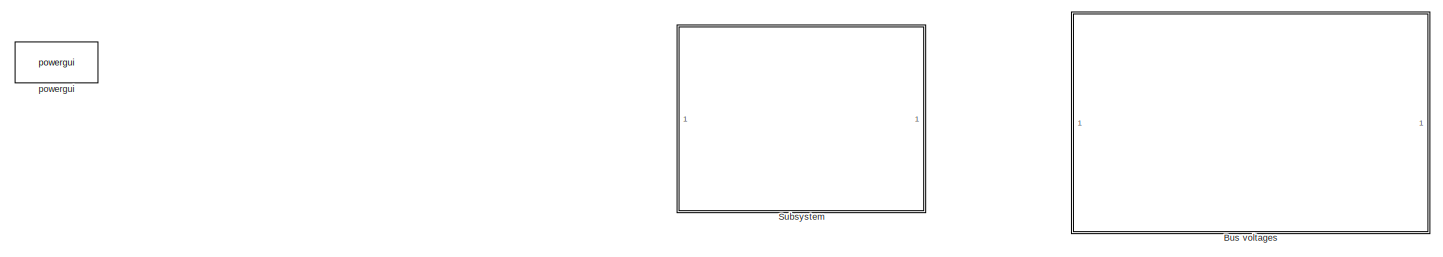
[diagram: root canvas - part 1/6, top left region]
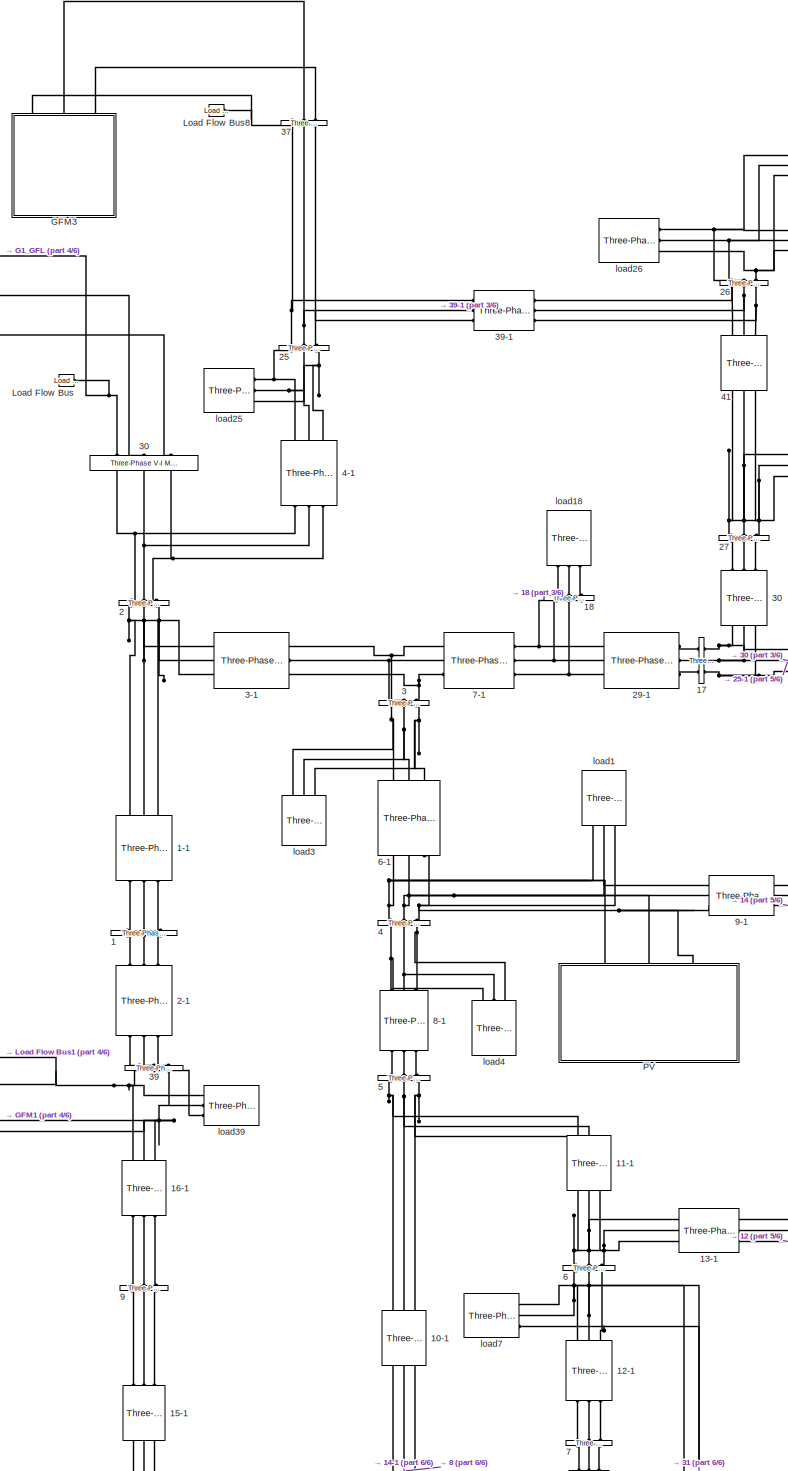
[diagram: root canvas - part 2/6, central region]
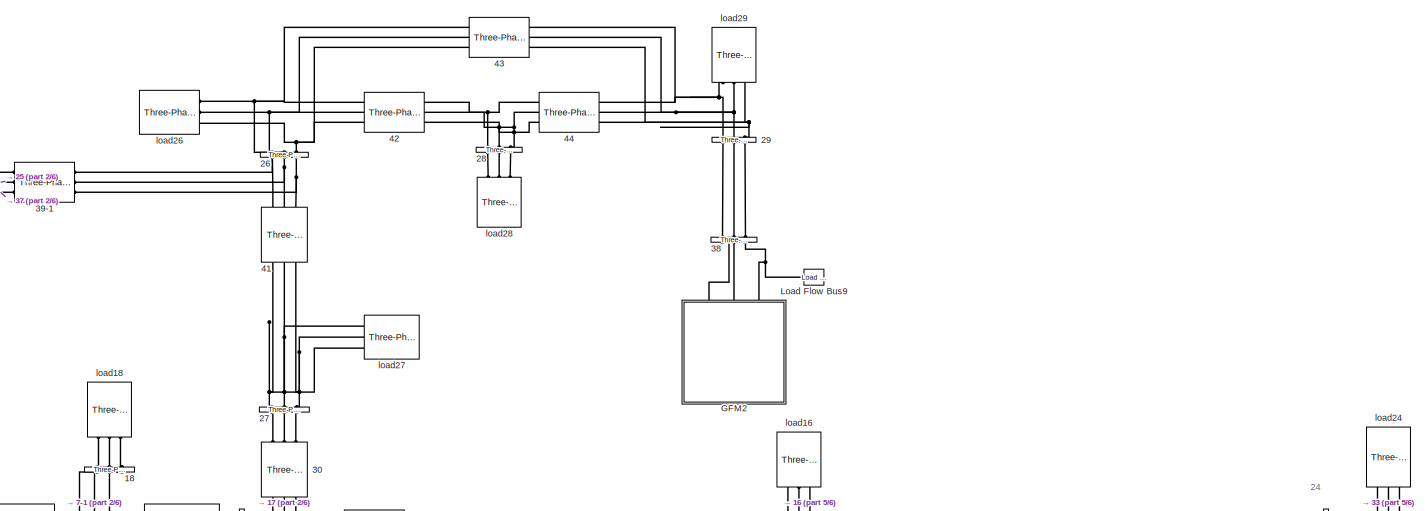
[diagram: root canvas - part 3/6, middle right region]
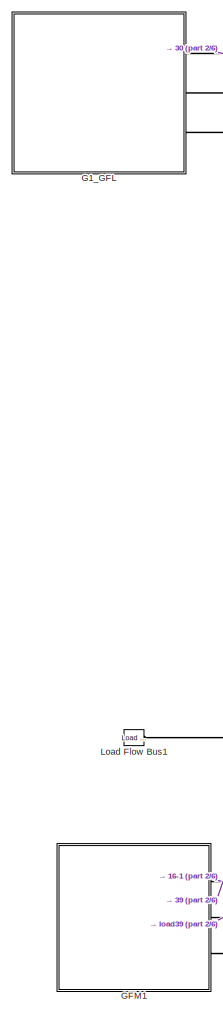
[diagram: root canvas - part 4/6, middle left region]
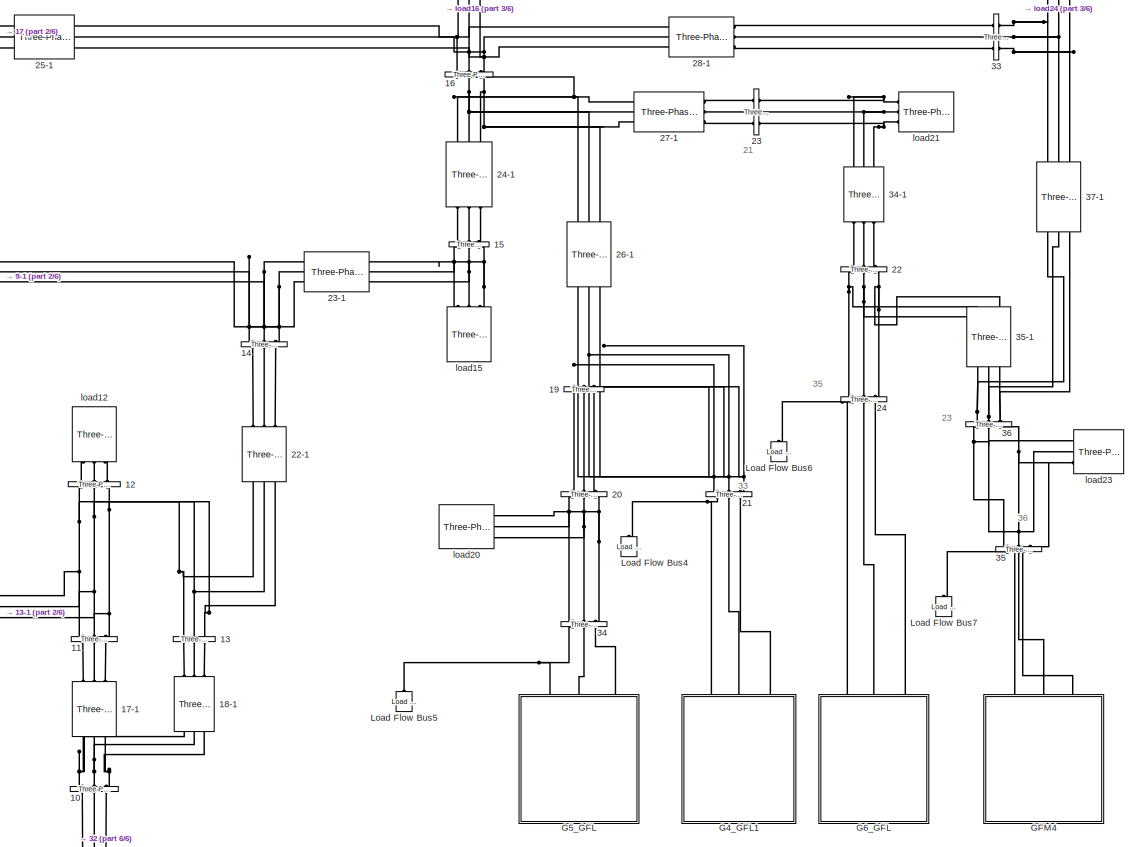
[diagram: root canvas - part 5/6, middle right region]
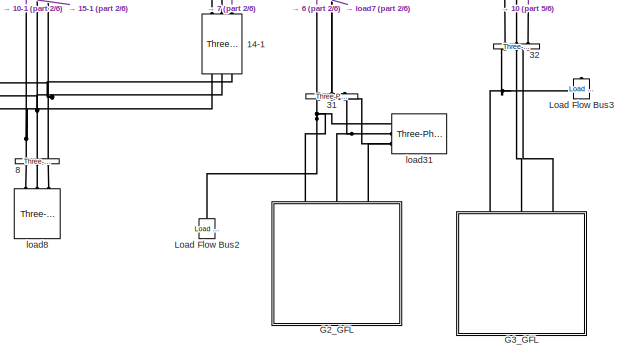
[diagram: root canvas - part 6/6, bottom center region]
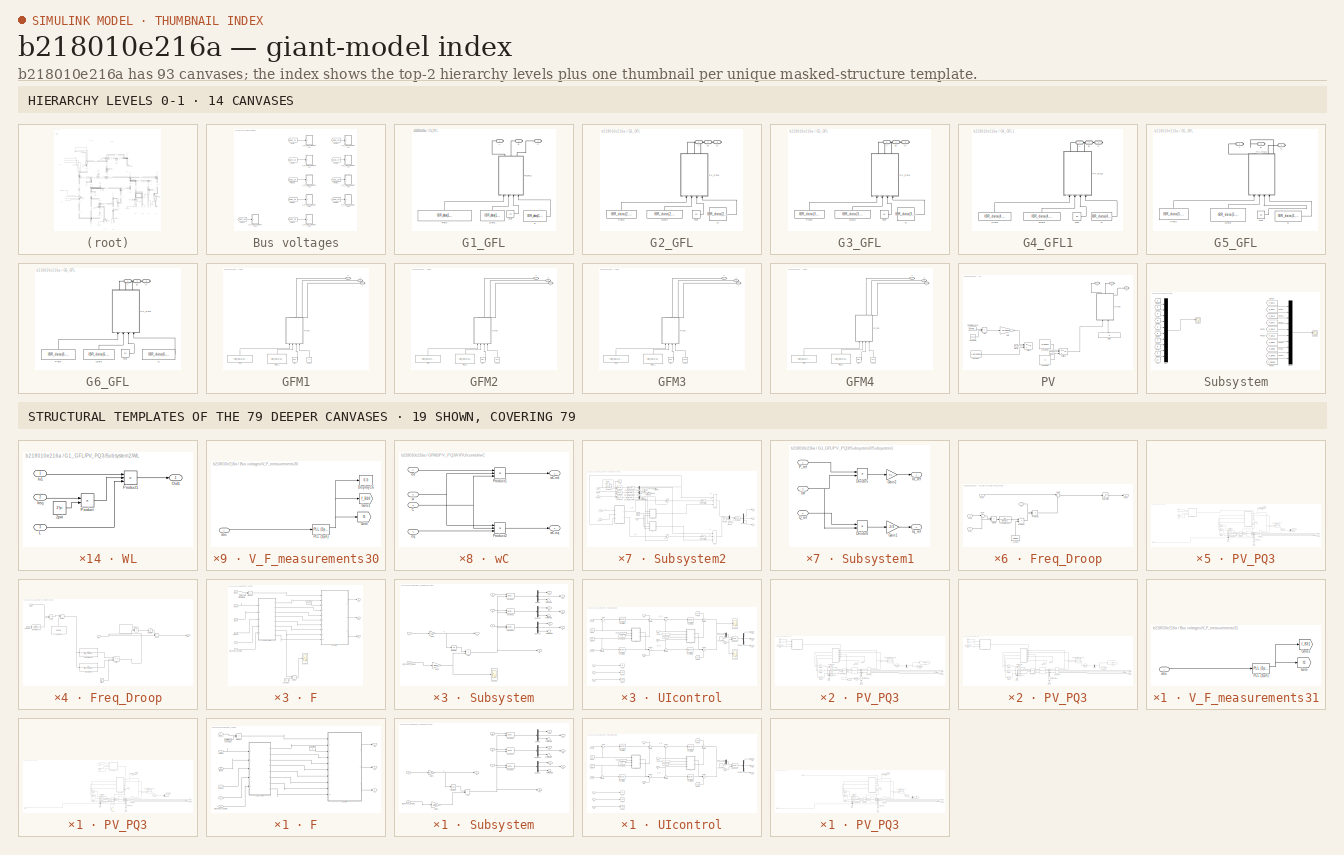
[diagram: thumbnail index - top-2 hierarchy levels (14 canvases) + 19 structural-template representatives of the remaining 79 canvases]
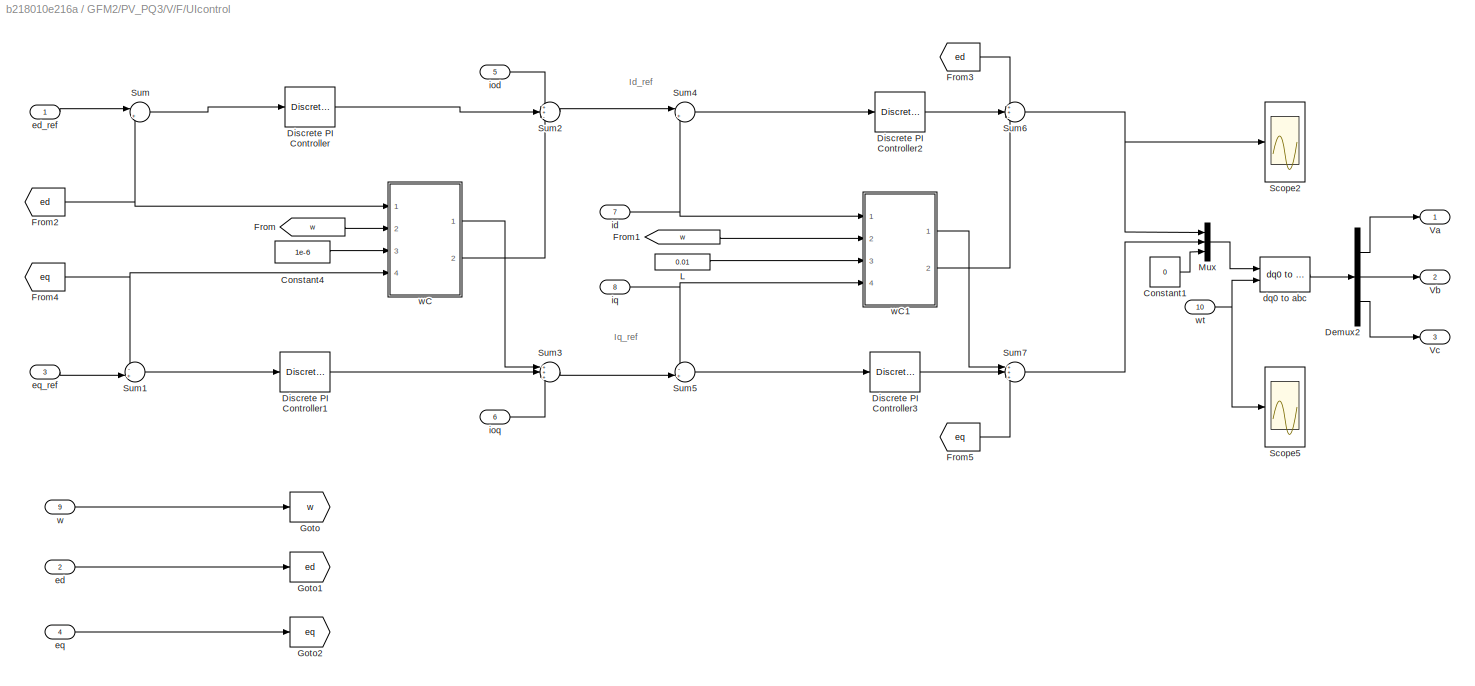
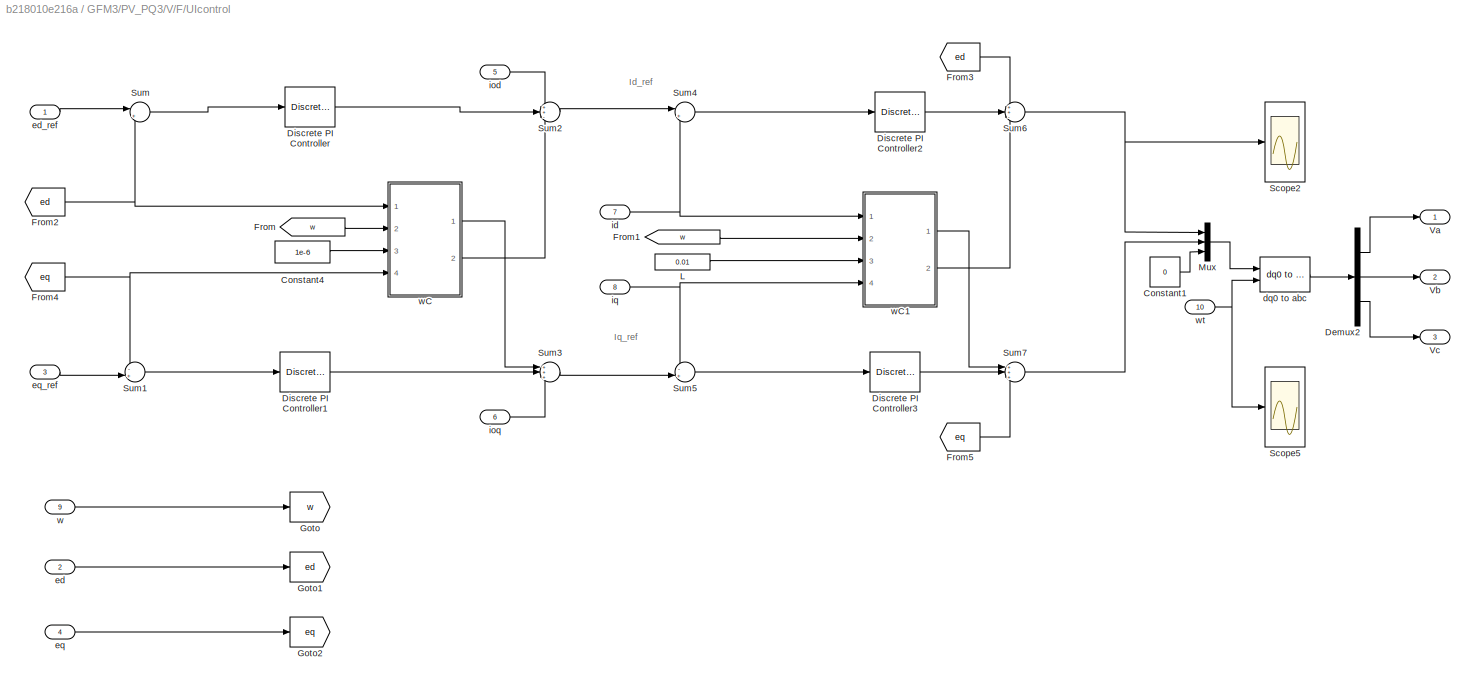
MODEL slx_b218010e216a
KIND model
CONFIG AbsTol = auto
CONFIG EnableMultiTasking = off
CONFIG FixedStep = auto
CONFIG InitFcn = IEEE39data_FrencyControl_primary;
CONFIG MaxStep = auto
CONFIG MinStep = auto
CONFIG RelTol = 1e-3
CONFIG SampleTimeConstraint = Unconstrained
CONFIG SolverName = VariableStepAuto
CONFIG StartTime = 0.0
CONFIG StopTime = 30
BLOCK [Reference]  30  REF=spsThreePhasePISectionLineLib/Three-Phase
PI Section Line
  AttributesFormatString = \n
  NameLocation = left
  Ports = [0, 0, 0, 0, 0, 3, 3]
  SourceBlock = spsThreePhasePISectionLineLib/Three-Phase\nPI Section Line
  SourceType = Three-Phase PI Section Line
BLOCK [Reference] 1  REF=spsThreePhaseVIMeasurementLib/Three-Phase
V-I Measurement
  NameLocation = left
  Ports = [0, 0, 0, 0, 0, 3, 3]
  SourceBlock = spsThreePhaseVIMeasurementLib/Three-Phase\nV-I Measurement
  SourceType = Three-Phase VI Measurement
BLOCK [Reference] 1-1  REF=spsThreePhasePISectionLineLib/Three-Phase
PI Section Line
  AttributesFormatString = \n
  NameLocation = left
  Ports = [0, 0, 0, 0, 0, 3, 3]
  SourceBlock = spsThreePhasePISectionLineLib/Three-Phase\nPI Section Line
  SourceType = Three-Phase PI Section Line
BLOCK [Reference] 10  REF=spsThreePhaseVIMeasurementLib/Three-Phase
V-I Measurement
  NameLocation = left
  Ports = [0, 0, 0, 0, 0, 3, 3]
  SourceBlock = spsThreePhaseVIMeasurementLib/Three-Phase\nV-I Measurement
  SourceType = Three-Phase VI Measurement
BLOCK [Reference] 10-1  REF=spsThreePhasePISectionLineLib/Three-Phase
PI Section Line
  AttributesFormatString = \n
  NameLocation = left
  Ports = [0, 0, 0, 0, 0, 3, 3]
  SourceBlock = spsThreePhasePISectionLineLib/Three-Phase\nPI Section Line
  SourceType = Three-Phase PI Section Line
BLOCK [Reference] 11  REF=spsThreePhaseVIMeasurementLib/Three-Phase
V-I Measurement
  NameLocation = left
  Ports = [0, 0, 0, 0, 0, 3, 3]
  SourceBlock = spsThreePhaseVIMeasurementLib/Three-Phase\nV-I Measurement
  SourceType = Three-Phase VI Measurement
BLOCK [Reference] 11-1  REF=spsThreePhasePISectionLineLib/Three-Phase
PI Section Line
  AttributesFormatString = \n
  NameLocation = left
  Ports = [0, 0, 0, 0, 0, 3, 3]
  SourceBlock = spsThreePhasePISectionLineLib/Three-Phase\nPI Section Line
  SourceType = Three-Phase PI Section Line
BLOCK [Reference] 12  REF=spsThreePhaseVIMeasurementLib/Three-Phase
V-I Measurement
  NameLocation = left
  Ports = [0, 0, 0, 0, 0, 3, 3]
  SourceBlock = spsThreePhaseVIMeasurementLib/Three-Phase\nV-I Measurement
  SourceType = Three-Phase VI Measurement
BLOCK [Reference] 12-1  REF=spsThreePhasePISectionLineLib/Three-Phase
PI Section Line
  AttributesFormatString = \n
  NameLocation = left
  Ports = [0, 0, 0, 0, 0, 3, 3]
  SourceBlock = spsThreePhasePISectionLineLib/Three-Phase\nPI Section Line
  SourceType = Three-Phase PI Section Line
BLOCK [Reference] 13  REF=spsThreePhaseVIMeasurementLib/Three-Phase
V-I Measurement
  NameLocation = left
  Ports = [0, 0, 0, 0, 0, 3, 3]
  SourceBlock = spsThreePhaseVIMeasurementLib/Three-Phase\nV-I Measurement
  SourceType = Three-Phase VI Measurement
BLOCK [Reference] 13-1  REF=spsThreePhasePISectionLineLib/Three-Phase
PI Section Line
  AttributesFormatString = \n
  Ports = [0, 0, 0, 0, 0, 3, 3]
  SourceBlock = spsThreePhasePISectionLineLib/Three-Phase\nPI Section Line
  SourceType = Three-Phase PI Section Line
BLOCK [Reference] 14  REF=spsThreePhaseVIMeasurementLib/Three-Phase
V-I Measurement
  NameLocation = right
  Ports = [0, 0, 0, 0, 0, 3, 3]
  SourceBlock = spsThreePhaseVIMeasurementLib/Three-Phase\nV-I Measurement
  SourceType = Three-Phase VI Measurement
BLOCK [Reference] 14-1  REF=spsThreePhasePISectionLineLib/Three-Phase
PI Section Line
  AttributesFormatString = \n
  NameLocation = left
  Ports = [0, 0, 0, 0, 0, 3, 3]
  SourceBlock = spsThreePhasePISectionLineLib/Three-Phase\nPI Section Line
  SourceType = Three-Phase PI Section Line
BLOCK [Reference] 15  REF=spsThreePhaseVIMeasurementLib/Three-Phase
V-I Measurement
  NameLocation = left
  Ports = [0, 0, 0, 0, 0, 3, 3]
  SourceBlock = spsThreePhaseVIMeasurementLib/Three-Phase\nV-I Measurement
  SourceType = Three-Phase VI Measurement
BLOCK [Reference] 15-1  REF=spsThreePhasePISectionLineLib/Three-Phase
PI Section Line
  AttributesFormatString = \n
  NameLocation = right
  Ports = [0, 0, 0, 0, 0, 3, 3]
  SourceBlock = spsThreePhasePISectionLineLib/Three-Phase\nPI Section Line
  SourceType = Three-Phase PI Section Line
BLOCK [Reference] 16  REF=spsThreePhaseVIMeasurementLib/Three-Phase
V-I Measurement
  NameLocation = right
  Ports = [0, 0, 0, 0, 0, 3, 3]
  SourceBlock = spsThreePhaseVIMeasurementLib/Three-Phase\nV-I Measurement
  SourceType = Three-Phase VI Measurement
BLOCK [Reference] 16-1  REF=spsThreePhasePISectionLineLib/Three-Phase
PI Section Line
  AttributesFormatString = \n
  NameLocation = left
  Ports = [0, 0, 0, 0, 0, 3, 3]
  SourceBlock = spsThreePhasePISectionLineLib/Three-Phase\nPI Section Line
  SourceType = Three-Phase PI Section Line
BLOCK [Reference] 17  REF=spsThreePhaseVIMeasurementLib/Three-Phase
V-I Measurement
  NameLocation = top
  Ports = [0, 0, 0, 0, 0, 3, 3]
  SourceBlock = spsThreePhaseVIMeasurementLib/Three-Phase\nV-I Measurement
  SourceType = Three-Phase VI Measurement
BLOCK [Reference] 17-1  REF=spsThreePhasePISectionLineLib/Three-Phase
PI Section Line
  AttributesFormatString = \n
  NameLocation = left
  Ports = [0, 0, 0, 0, 0, 3, 3]
  SourceBlock = spsThreePhasePISectionLineLib/Three-Phase\nPI Section Line
  SourceType = Three-Phase PI Section Line
BLOCK [Reference] 18  REF=spsThreePhaseVIMeasurementLib/Three-Phase
V-I Measurement
  NameLocation = left
  Ports = [0, 0, 0, 0, 0, 3, 3]
  SourceBlock = spsThreePhaseVIMeasurementLib/Three-Phase\nV-I Measurement
  SourceType = Three-Phase VI Measurement
BLOCK [Reference] 18-1  REF=spsThreePhasePISectionLineLib/Three-Phase
PI Section Line
  AttributesFormatString = \n
  NameLocation = left
  Ports = [0, 0, 0, 0, 0, 3, 3]
  SourceBlock = spsThreePhasePISectionLineLib/Three-Phase\nPI Section Line
  SourceType = Three-Phase PI Section Line
BLOCK [Reference] 19  REF=spsThreePhaseVIMeasurementLib/Three-Phase
V-I Measurement
  NameLocation = left
  Ports = [0, 0, 0, 0, 0, 3, 3]
  SourceBlock = spsThreePhaseVIMeasurementLib/Three-Phase\nV-I Measurement
  SourceType = Three-Phase VI Measurement
BLOCK [Reference] 2  REF=spsThreePhaseVIMeasurementLib/Three-Phase
V-I Measurement
  NameLocation = left
  Ports = [0, 0, 0, 0, 0, 3, 3]
  SourceBlock = spsThreePhaseVIMeasurementLib/Three-Phase\nV-I Measurement
  SourceType = Three-Phase VI Measurement
BLOCK [Reference] 2-1  REF=spsThreePhasePISectionLineLib/Three-Phase
PI Section Line
  AttributesFormatString = \n
  NameLocation = left
  Ports = [0, 0, 0, 0, 0, 3, 3]
  SourceBlock = spsThreePhasePISectionLineLib/Three-Phase\nPI Section Line
  SourceType = Three-Phase PI Section Line
BLOCK [Reference] 20  REF=spsThreePhaseVIMeasurementLib/Three-Phase
V-I Measurement
  NameLocation = left
  Ports = [0, 0, 0, 0, 0, 3, 3]
  SourceBlock = spsThreePhaseVIMeasurementLib/Three-Phase\nV-I Measurement
  SourceType = Three-Phase VI Measurement
BLOCK [Reference] 21  REF=spsThreePhaseVIMeasurementLib/Three-Phase
V-I Measurement
  NameLocation = right
  Ports = [0, 0, 0, 0, 0, 3, 3]
  SourceBlock = spsThreePhaseVIMeasurementLib/Three-Phase\nV-I Measurement
  SourceType = Three-Phase VI Measurement
BLOCK [Reference] 22  REF=spsThreePhaseVIMeasurementLib/Three-Phase
V-I Measurement
  NameLocation = left
  Ports = [0, 0, 0, 0, 0, 3, 3]
  SourceBlock = spsThreePhaseVIMeasurementLib/Three-Phase\nV-I Measurement
  SourceType = Three-Phase VI Measurement
BLOCK [Reference] 22-1  REF=spsThreePhasePISectionLineLib/Three-Phase
PI Section Line
  AttributesFormatString = \n
  NameLocation = left
  Ports = [0, 0, 0, 0, 0, 3, 3]
  SourceBlock = spsThreePhasePISectionLineLib/Three-Phase\nPI Section Line
  SourceType = Three-Phase PI Section Line
BLOCK [Reference] 23  REF=spsThreePhaseVIMeasurementLib/Three-Phase
V-I Measurement
  Ports = [0, 0, 0, 0, 0, 3, 3]
  SourceBlock = spsThreePhaseVIMeasurementLib/Three-Phase\nV-I Measurement
  SourceType = Three-Phase VI Measurement
BLOCK [Reference] 23-1  REF=spsThreePhasePISectionLineLib/Three-Phase
PI Section Line
  AttributesFormatString = \n
  NameLocation = top
  Ports = [0, 0, 0, 0, 0, 3, 3]
  SourceBlock = spsThreePhasePISectionLineLib/Three-Phase\nPI Section Line
  SourceType = Three-Phase PI Section Line
BLOCK [Reference] 24  REF=spsThreePhaseVIMeasurementLib/Three-Phase
V-I Measurement
  NameLocation = left
  Ports = [0, 0, 0, 0, 0, 3, 3]
  SourceBlock = spsThreePhaseVIMeasurementLib/Three-Phase\nV-I Measurement
  SourceType = Three-Phase VI Measurement
BLOCK [Reference] 24-1  REF=spsThreePhasePISectionLineLib/Three-Phase
PI Section Line
  AttributesFormatString = \n
  NameLocation = left
  Ports = [0, 0, 0, 0, 0, 3, 3]
  SourceBlock = spsThreePhasePISectionLineLib/Three-Phase\nPI Section Line
  SourceType = Three-Phase PI Section Line
BLOCK [Reference] 25  REF=spsThreePhaseVIMeasurementLib/Three-Phase
V-I Measurement
  NameLocation = left
  Ports = [0, 0, 0, 0, 0, 3, 3]
  SourceBlock = spsThreePhaseVIMeasurementLib/Three-Phase\nV-I Measurement
  SourceType = Three-Phase VI Measurement
BLOCK [Reference] 25-1  REF=spsThreePhasePISectionLineLib/Three-Phase
PI Section Line
  AttributesFormatString = \n
  NameLocation = top
  Ports = [0, 0, 0, 0, 0, 3, 3]
  SourceBlock = spsThreePhasePISectionLineLib/Three-Phase\nPI Section Line
  SourceType = Three-Phase PI Section Line
BLOCK [Reference] 26  REF=spsThreePhaseVIMeasurementLib/Three-Phase
V-I Measurement
  NameLocation = left
  Ports = [0, 0, 0, 0, 0, 3, 3]
  SourceBlock = spsThreePhaseVIMeasurementLib/Three-Phase\nV-I Measurement
  SourceType = Three-Phase VI Measurement
BLOCK [Reference] 26-1  REF=spsThreePhasePISectionLineLib/Three-Phase
PI Section Line
  AttributesFormatString = \n
  NameLocation = left
  Ports = [0, 0, 0, 0, 0, 3, 3]
  SourceBlock = spsThreePhasePISectionLineLib/Three-Phase\nPI Section Line
  SourceType = Three-Phase PI Section Line
BLOCK [Reference] 27  REF=spsThreePhaseVIMeasurementLib/Three-Phase
V-I Measurement
  NameLocation = left
  Ports = [0, 0, 0, 0, 0, 3, 3]
  SourceBlock = spsThreePhaseVIMeasurementLib/Three-Phase\nV-I Measurement
  SourceType = Three-Phase VI Measurement
BLOCK [Reference] 27-1  REF=spsThreePhasePISectionLineLib/Three-Phase
PI Section Line
  AttributesFormatString = \n
  NameLocation = top
  Ports = [0, 0, 0, 0, 0, 3, 3]
  SourceBlock = spsThreePhasePISectionLineLib/Three-Phase\nPI Section Line
  SourceType = Three-Phase PI Section Line
BLOCK [Reference] 28  REF=spsThreePhaseVIMeasurementLib/Three-Phase
V-I Measurement
  NameLocation = right
  Ports = [0, 0, 0, 0, 0, 3, 3]
  SourceBlock = spsThreePhaseVIMeasurementLib/Three-Phase\nV-I Measurement
  SourceType = Three-Phase VI Measurement
BLOCK [Reference] 28-1  REF=spsThreePhasePISectionLineLib/Three-Phase
PI Section Line
  AttributesFormatString = \n
  NameLocation = top
  Ports = [0, 0, 0, 0, 0, 3, 3]
  SourceBlock = spsThreePhasePISectionLineLib/Three-Phase\nPI Section Line
  SourceType = Three-Phase PI Section Line
BLOCK [Reference] 29  REF=spsThreePhaseVIMeasurementLib/Three-Phase
V-I Measurement
  NameLocation = right
  Ports = [0, 0, 0, 0, 0, 3, 3]
  SourceBlock = spsThreePhaseVIMeasurementLib/Three-Phase\nV-I Measurement
  SourceType = Three-Phase VI Measurement
BLOCK [Reference] 29-1  REF=spsThreePhasePISectionLineLib/Three-Phase
PI Section Line
  AttributesFormatString = \n
  NameLocation = top
  Ports = [0, 0, 0, 0, 0, 3, 3]
  SourceBlock = spsThreePhasePISectionLineLib/Three-Phase\nPI Section Line
  SourceType = Three-Phase PI Section Line
BLOCK [Reference] 3  REF=spsThreePhaseVIMeasurementLib/Three-Phase
V-I Measurement
  NameLocation = left
  Ports = [0, 0, 0, 0, 0, 3, 3]
  SourceBlock = spsThreePhaseVIMeasurementLib/Three-Phase\nV-I Measurement
  SourceType = Three-Phase VI Measurement
BLOCK [Reference] 3-1  REF=spsThreePhasePISectionLineLib/Three-Phase
PI Section Line
  AttributesFormatString = \n
  NameLocation = top
  Ports = [0, 0, 0, 0, 0, 3, 3]
  SourceBlock = spsThreePhasePISectionLineLib/Three-Phase\nPI Section Line
  SourceType = Three-Phase PI Section Line
BLOCK [Reference] 30  REF=spsThreePhaseVIMeasurementLib/Three-Phase
V-I Measurement
  NameLocation = left
  Ports = [0, 0, 0, 0, 0, 3, 3]
  SourceBlock = spsThreePhaseVIMeasurementLib/Three-Phase\nV-I Measurement
  SourceType = Three-Phase VI Measurement
BLOCK [Reference] 31  REF=spsThreePhaseVIMeasurementLib/Three-Phase
V-I Measurement
  NameLocation = left
  Ports = [0, 0, 0, 0, 0, 3, 3]
  SourceBlock = spsThreePhaseVIMeasurementLib/Three-Phase\nV-I Measurement
  SourceType = Three-Phase VI Measurement
BLOCK [Reference] 32  REF=spsThreePhaseVIMeasurementLib/Three-Phase
V-I Measurement
  NameLocation = left
  Ports = [0, 0, 0, 0, 0, 3, 3]
  SourceBlock = spsThreePhaseVIMeasurementLib/Three-Phase\nV-I Measurement
  SourceType = Three-Phase VI Measurement
BLOCK [Reference] 33  REF=spsThreePhaseVIMeasurementLib/Three-Phase
V-I Measurement
  Ports = [0, 0, 0, 0, 0, 3, 3]
  SourceBlock = spsThreePhaseVIMeasurementLib/Three-Phase\nV-I Measurement
  SourceType = Three-Phase VI Measurement
BLOCK [Reference] 34  REF=spsThreePhaseVIMeasurementLib/Three-Phase
V-I Measurement
  NameLocation = left
  Ports = [0, 0, 0, 0, 0, 3, 3]
  SourceBlock = spsThreePhaseVIMeasurementLib/Three-Phase\nV-I Measurement
  SourceType = Three-Phase VI Measurement
BLOCK [Reference] 34-1  REF=spsThreePhasePISectionLineLib/Three-Phase
PI Section Line
  AttributesFormatString = \n
  NameLocation = left
  Ports = [0, 0, 0, 0, 0, 3, 3]
  SourceBlock = spsThreePhasePISectionLineLib/Three-Phase\nPI Section Line
  SourceType = Three-Phase PI Section Line
BLOCK [Reference] 35  REF=spsThreePhaseVIMeasurementLib/Three-Phase
V-I Measurement
  NameLocation = left
  Ports = [0, 0, 0, 0, 0, 3, 3]
  SourceBlock = spsThreePhaseVIMeasurementLib/Three-Phase\nV-I Measurement
  SourceType = Three-Phase VI Measurement
BLOCK [Reference] 35-1  REF=spsThreePhasePISectionLineLib/Three-Phase
PI Section Line
  AttributesFormatString = \n
  NameLocation = left
  Ports = [0, 0, 0, 0, 0, 3, 3]
  SourceBlock = spsThreePhasePISectionLineLib/Three-Phase\nPI Section Line
  SourceType = Three-Phase PI Section Line
BLOCK [Reference] 36  REF=spsThreePhaseVIMeasurementLib/Three-Phase
V-I Measurement
  NameLocation = left
  Ports = [0, 0, 0, 0, 0, 3, 3]
  SourceBlock = spsThreePhaseVIMeasurementLib/Three-Phase\nV-I Measurement
  SourceType = Three-Phase VI Measurement
BLOCK [Reference] 37  REF=spsThreePhaseVIMeasurementLib/Three-Phase
V-I Measurement
  NameLocation = left
  Ports = [0, 0, 0, 0, 0, 3, 3]
  SourceBlock = spsThreePhaseVIMeasurementLib/Three-Phase\nV-I Measurement
  SourceType = Three-Phase VI Measurement
BLOCK [Reference] 37-1  REF=spsThreePhasePISectionLineLib/Three-Phase
PI Section Line
  AttributesFormatString = \n
  NameLocation = left
  Ports = [0, 0, 0, 0, 0, 3, 3]
  SourceBlock = spsThreePhasePISectionLineLib/Three-Phase\nPI Section Line
  SourceType = Three-Phase PI Section Line
BLOCK [Reference] 38  REF=spsThreePhaseVIMeasurementLib/Three-Phase
V-I Measurement
  NameLocation = left
  Ports = [0, 0, 0, 0, 0, 3, 3]
  SourceBlock = spsThreePhaseVIMeasurementLib/Three-Phase\nV-I Measurement
  SourceType = Three-Phase VI Measurement
BLOCK [Reference] 39  REF=spsThreePhaseVIMeasurementLib/Three-Phase
V-I Measurement
  NameLocation = left
  Ports = [0, 0, 0, 0, 0, 3, 3]
  SourceBlock = spsThreePhaseVIMeasurementLib/Three-Phase\nV-I Measurement
  SourceType = Three-Phase VI Measurement
BLOCK [Reference] 39-1  REF=spsThreePhasePISectionLineLib/Three-Phase
PI Section Line
  AttributesFormatString = \n
  NameLocation = top
  Ports = [0, 0, 0, 0, 0, 3, 3]
  SourceBlock = spsThreePhasePISectionLineLib/Three-Phase\nPI Section Line
  SourceType = Three-Phase PI Section Line
BLOCK [Reference] 4  REF=spsThreePhaseVIMeasurementLib/Three-Phase
V-I Measurement
  NameLocation = left
  Ports = [0, 0, 0, 0, 0, 3, 3]
  SourceBlock = spsThreePhaseVIMeasurementLib/Three-Phase\nV-I Measurement
  SourceType = Three-Phase VI Measurement
BLOCK [Reference] 4-1  REF=spsThreePhasePISectionLineLib/Three-Phase
PI Section Line
  AttributesFormatString = \n
  NameLocation = left
  Ports = [0, 0, 0, 0, 0, 3, 3]
  SourceBlock = spsThreePhasePISectionLineLib/Three-Phase\nPI Section Line
  SourceType = Three-Phase PI Section Line
BLOCK [Reference] 41  REF=spsThreePhasePISectionLineLib/Three-Phase
PI Section Line
  AttributesFormatString = \n
  NameLocation = right
  Ports = [0, 0, 0, 0, 0, 3, 3]
  SourceBlock = spsThreePhasePISectionLineLib/Three-Phase\nPI Section Line
  SourceType = Three-Phase PI Section Line
BLOCK [Reference] 42  REF=spsThreePhasePISectionLineLib/Three-Phase
PI Section Line
  AttributesFormatString = \n
  NameLocation = top
  Ports = [0, 0, 0, 0, 0, 3, 3]
  SourceBlock = spsThreePhasePISectionLineLib/Three-Phase\nPI Section Line
  SourceType = Three-Phase PI Section Line
BLOCK [Reference] 43  REF=spsThreePhasePISectionLineLib/Three-Phase
PI Section Line
  AttributesFormatString = \n
  NameLocation = top
  Ports = [0, 0, 0, 0, 0, 3, 3]
  SourceBlock = spsThreePhasePISectionLineLib/Three-Phase\nPI Section Line
  SourceType = Three-Phase PI Section Line
BLOCK [Reference] 44  REF=spsThreePhasePISectionLineLib/Three-Phase
PI Section Line
  AttributesFormatString = \n
  NameLocation = top
  Ports = [0, 0, 0, 0, 0, 3, 3]
  SourceBlock = spsThreePhasePISectionLineLib/Three-Phase\nPI Section Line
  SourceType = Three-Phase PI Section Line
BLOCK [Reference] 5  REF=spsThreePhaseVIMeasurementLib/Three-Phase
V-I Measurement
  NameLocation = left
  Ports = [0, 0, 0, 0, 0, 3, 3]
  SourceBlock = spsThreePhaseVIMeasurementLib/Three-Phase\nV-I Measurement
  SourceType = Three-Phase VI Measurement
BLOCK [Reference] 6  REF=spsThreePhaseVIMeasurementLib/Three-Phase
V-I Measurement
  NameLocation = left
  Ports = [0, 0, 0, 0, 0, 3, 3]
  SourceBlock = spsThreePhaseVIMeasurementLib/Three-Phase\nV-I Measurement
  SourceType = Three-Phase VI Measurement
BLOCK [Reference] 6-1  REF=spsThreePhasePISectionLineLib/Three-Phase
PI Section Line
  AttributesFormatString = \n
  NameLocation = left
  Ports = [0, 0, 0, 0, 0, 3, 3]
  SourceBlock = spsThreePhasePISectionLineLib/Three-Phase\nPI Section Line
  SourceType = Three-Phase PI Section Line
BLOCK [Reference] 7  REF=spsThreePhaseVIMeasurementLib/Three-Phase
V-I Measurement
  NameLocation = right
  Ports = [0, 0, 0, 0, 0, 3, 3]
  SourceBlock = spsThreePhaseVIMeasurementLib/Three-Phase\nV-I Measurement
  SourceType = Three-Phase VI Measurement
BLOCK [Reference] 7-1  REF=spsThreePhasePISectionLineLib/Three-Phase
PI Section Line
  AttributesFormatString = \n
  NameLocation = top
  Ports = [0, 0, 0, 0, 0, 3, 3]
  SourceBlock = spsThreePhasePISectionLineLib/Three-Phase\nPI Section Line
  SourceType = Three-Phase PI Section Line
BLOCK [Reference] 8  REF=spsThreePhaseVIMeasurementLib/Three-Phase
V-I Measurement
  NameLocation = left
  Ports = [0, 0, 0, 0, 0, 3, 3]
  SourceBlock = spsThreePhaseVIMeasurementLib/Three-Phase\nV-I Measurement
  SourceType = Three-Phase VI Measurement
BLOCK [Reference] 8-1  REF=spsThreePhasePISectionLineLib/Three-Phase
PI Section Line
  AttributesFormatString = \n
  NameLocation = left
  Ports = [0, 0, 0, 0, 0, 3, 3]
  SourceBlock = spsThreePhasePISectionLineLib/Three-Phase\nPI Section Line
  SourceType = Three-Phase PI Section Line
BLOCK [Reference] 9  REF=spsThreePhaseVIMeasurementLib/Three-Phase
V-I Measurement
  NameLocation = left
  Ports = [0, 0, 0, 0, 0, 3, 3]
  SourceBlock = spsThreePhaseVIMeasurementLib/Three-Phase\nV-I Measurement
  SourceType = Three-Phase VI Measurement
BLOCK [Reference] 9-1  REF=spsThreePhasePISectionLineLib/Three-Phase
PI Section Line
  AttributesFormatString = \n
  NameLocation = top
  Ports = [0, 0, 0, 0, 0, 3, 3]
  SourceBlock = spsThreePhasePISectionLineLib/Three-Phase\nPI Section Line
  SourceType = Three-Phase PI Section Line
BLOCK [SubSystem] Bus voltages
  Ports = []
BLOCK [From] Bus voltages/From10
  CloseFcn = tagdialog Close
  GotoTag = Vabc_33
  TagVisibility = global
BLOCK [From] Bus voltages/From30
  CloseFcn = tagdialog Close
  GotoTag = Vabc_30
  TagVisibility = global
BLOCK [From] Bus voltages/From31
  CloseFcn = tagdialog Close
  GotoTag = Vabc_38
  TagVisibility = global
BLOCK [From] Bus voltages/From32
  CloseFcn = tagdialog Close
  GotoTag = Vabc_39
  TagVisibility = global
BLOCK [From] Bus voltages/From34
  CloseFcn = tagdialog Close
  GotoTag = Vabc_36
  TagVisibility = global
BLOCK [From] Bus voltages/From35
  CloseFcn = tagdialog Close
  GotoTag = Vabc_37
  TagVisibility = global
BLOCK [From] Bus voltages/From39
  CloseFcn = tagdialog Close
  GotoTag = Vabc_34
  TagVisibility = global
BLOCK [From] Bus voltages/From40
  CloseFcn = tagdialog Close
  GotoTag = Vabc_35
  TagVisibility = global
BLOCK [From] Bus voltages/From5
  CloseFcn = tagdialog Close
  GotoTag = Vabc_31
  TagVisibility = global
BLOCK [From] Bus voltages/From6
  CloseFcn = tagdialog Close
  GotoTag = Vabc_32
  TagVisibility = global
BLOCK [SubSystem] Bus voltages/V_F_measurements30
  Ports = [1]
BLOCK [Display] Bus voltages/V_F_measurements30/Display16
  Decimation = 1
  Format = bank
  Ports = [1]
BLOCK [Goto] Bus voltages/V_F_measurements30/Goto
  GotoTag = f1
  TagVisibility = global
BLOCK [Goto] Bus voltages/V_F_measurements30/Goto1
  GotoTag = f_B30
  TagVisibility = global
BLOCK [Reference] Bus voltages/V_F_measurements30/PLL (3ph)  REF=spsPLL3phLib/PLL
(3ph)
  Ports = [1, 2]
  SourceBlock = spsPLL3phLib/PLL\n(3ph)
  SourceType = PLL (3ph)
BLOCK [Inport] Bus voltages/V_F_measurements30/abc
BLOCK [SubSystem] Bus voltages/V_F_measurements31
  Ports = [1]
BLOCK [Goto] Bus voltages/V_F_measurements31/Goto
  GotoTag = f2
  TagVisibility = global
BLOCK [Goto] Bus voltages/V_F_measurements31/Goto1
  GotoTag = f_B31
  TagVisibility = global
BLOCK [Reference] Bus voltages/V_F_measurements31/PLL (3ph)  REF=spsPLL3phLib/PLL
(3ph)
  Ports = [1, 2]
  SourceBlock = spsPLL3phLib/PLL\n(3ph)
  SourceType = PLL (3ph)
BLOCK [Inport] Bus voltages/V_F_measurements31/abc
BLOCK [SubSystem] Bus voltages/V_F_measurements32
  Ports = [1]
BLOCK [Display] Bus voltages/V_F_measurements32/Display16
  Decimation = 1
  Format = bank
  Ports = [1]
BLOCK [Goto] Bus voltages/V_F_measurements32/Goto
  GotoTag = f3
  TagVisibility = global
BLOCK [Goto] Bus voltages/V_F_measurements32/Goto1
  GotoTag = f_B32
  TagVisibility = global
BLOCK [Reference] Bus voltages/V_F_measurements32/PLL (3ph)  REF=spsPLL3phLib/PLL
(3ph)
  Ports = [1, 2]
  SourceBlock = spsPLL3phLib/PLL\n(3ph)
  SourceType = PLL (3ph)
BLOCK [Inport] Bus voltages/V_F_measurements32/abc
BLOCK [SubSystem] Bus voltages/V_F_measurements33
  Ports = [1]
BLOCK [Display] Bus voltages/V_F_measurements33/Display16
  Decimation = 1
  Format = bank
  Ports = [1]
BLOCK [Goto] Bus voltages/V_F_measurements33/Goto
  GotoTag = f4
  TagVisibility = global
BLOCK [Goto] Bus voltages/V_F_measurements33/Goto1
  GotoTag = f_B33
  TagVisibility = global
BLOCK [Reference] Bus voltages/V_F_measurements33/PLL (3ph)  REF=spsPLL3phLib/PLL
(3ph)
  Ports = [1, 2]
  SourceBlock = spsPLL3phLib/PLL\n(3ph)
  SourceType = PLL (3ph)
BLOCK [Inport] Bus voltages/V_F_measurements33/abc
BLOCK [SubSystem] Bus voltages/V_F_measurements34
  Ports = [1]
BLOCK [Display] Bus voltages/V_F_measurements34/Display16
  Decimation = 1
  Format = bank
  Ports = [1]
BLOCK [Goto] Bus voltages/V_F_measurements34/Goto
  GotoTag = f5
  TagVisibility = global
BLOCK [Goto] Bus voltages/V_F_measurements34/Goto1
  GotoTag = f_B34
  TagVisibility = global
BLOCK [Reference] Bus voltages/V_F_measurements34/PLL (3ph)  REF=spsPLL3phLib/PLL
(3ph)
  Ports = [1, 2]
  SourceBlock = spsPLL3phLib/PLL\n(3ph)
  SourceType = PLL (3ph)
BLOCK [Inport] Bus voltages/V_F_measurements34/abc
BLOCK [SubSystem] Bus voltages/V_F_measurements35
  Ports = [1]
BLOCK [Display] Bus voltages/V_F_measurements35/Display16
  Decimation = 1
  Format = bank
  Ports = [1]
BLOCK [Goto] Bus voltages/V_F_measurements35/Goto
  GotoTag = f6
  TagVisibility = global
BLOCK [Goto] Bus voltages/V_F_measurements35/Goto1
  GotoTag = f_B35
  TagVisibility = global
BLOCK [Reference] Bus voltages/V_F_measurements35/PLL (3ph)  REF=spsPLL3phLib/PLL
(3ph)
  Ports = [1, 2]
  SourceBlock = spsPLL3phLib/PLL\n(3ph)
  SourceType = PLL (3ph)
BLOCK [Inport] Bus voltages/V_F_measurements35/abc
BLOCK [SubSystem] Bus voltages/V_F_measurements36
  Ports = [1]
BLOCK [Display] Bus voltages/V_F_measurements36/Display16
  Decimation = 1
  Format = bank
  Ports = [1]
BLOCK [Goto] Bus voltages/V_F_measurements36/Goto
  GotoTag = f7
  TagVisibility = global
BLOCK [Goto] Bus voltages/V_F_measurements36/Goto1
  GotoTag = f_B36
  TagVisibility = global
BLOCK [Reference] Bus voltages/V_F_measurements36/PLL (3ph)  REF=spsPLL3phLib/PLL
(3ph)
  Ports = [1, 2]
  SourceBlock = spsPLL3phLib/PLL\n(3ph)
  SourceType = PLL (3ph)
BLOCK [Inport] Bus voltages/V_F_measurements36/abc
BLOCK [SubSystem] Bus voltages/V_F_measurements37
  Ports = [1]
BLOCK [Display] Bus voltages/V_F_measurements37/Display16
  Decimation = 1
  Format = bank
  Ports = [1]
BLOCK [Goto] Bus voltages/V_F_measurements37/Goto
  GotoTag = f8
  TagVisibility = global
BLOCK [Goto] Bus voltages/V_F_measurements37/Goto1
  GotoTag = f_B37
  TagVisibility = global
BLOCK [Reference] Bus voltages/V_F_measurements37/PLL (3ph)  REF=spsPLL3phLib/PLL
(3ph)
  Ports = [1, 2]
  SourceBlock = spsPLL3phLib/PLL\n(3ph)
  SourceType = PLL (3ph)
BLOCK [Inport] Bus voltages/V_F_measurements37/abc
BLOCK [SubSystem] Bus voltages/V_F_measurements38
  Ports = [1]
BLOCK [Display] Bus voltages/V_F_measurements38/Display16
  Decimation = 1
  Format = bank
  Ports = [1]
BLOCK [Goto] Bus voltages/V_F_measurements38/Goto
  GotoTag = f9
  TagVisibility = global
BLOCK [Goto] Bus voltages/V_F_measurements38/Goto1
  GotoTag = f_B38
  TagVisibility = global
BLOCK [Reference] Bus voltages/V_F_measurements38/PLL (3ph)  REF=spsPLL3phLib/PLL
(3ph)
  Ports = [1, 2]
  SourceBlock = spsPLL3phLib/PLL\n(3ph)
  SourceType = PLL (3ph)
BLOCK [Inport] Bus voltages/V_F_measurements38/abc
BLOCK [SubSystem] Bus voltages/V_F_measurements39
  Ports = [1]
BLOCK [Display] Bus voltages/V_F_measurements39/Display16
  Decimation = 1
  Format = bank
  Ports = [1]
BLOCK [Goto] Bus voltages/V_F_measurements39/Goto1
  GotoTag = f10
  TagVisibility = global
BLOCK [Goto] Bus voltages/V_F_measurements39/Goto2
  GotoTag = f_B39
  TagVisibility = global
BLOCK [Reference] Bus voltages/V_F_measurements39/PLL (3ph)  REF=spsPLL3phLib/PLL
(3ph)
  Ports = [1, 2]
  SourceBlock = spsPLL3phLib/PLL\n(3ph)
  SourceType = PLL (3ph)
BLOCK [Inport] Bus voltages/V_F_measurements39/abc
BLOCK [SubSystem] G1_GFL
  Ports = [0, 0, 0, 0, 0, 0, 3]
BLOCK [PMIOPort] G1_GFL/A
  Side = Right
BLOCK [PMIOPort] G1_GFL/B
  Port = 2
  Side = Right
BLOCK [PMIOPort] G1_GFL/C
  Port = 3
  Side = Right
BLOCK [Constant] G1_GFL/D
  Value = IBR_data(1,4)
BLOCK [Constant] G1_GFL/Fref
  Value = 60
BLOCK [SubSystem] G1_GFL/PV_PQ3
  NameLocation = right
  Ports = [4, 0, 0, 0, 0, 0, 3]
BLOCK [Reference] G1_GFL/PV_PQ3/3-phase Instantaneous Active & Reactive Power4  REF=powerlib_extras/Measurements/3-phase 
Instantaneous 
Active & Reactive Power
  Ports = [2, 1]
  SourceBlock = powerlib_extras/Measurements/3-phase \nInstantaneous \nActive & Reactive Power
  SourceType = 3-phase instantaneous active and reactive power
BLOCK [Reference] G1_GFL/PV_PQ3/Controlled Voltage Source  REF=spsControlledVoltageSourceLib/Controlled Voltage Source
  NameLocation = left
  Ports = [1, 0, 0, 0, 0, 1, 1]
  SourceBlock = spsControlledVoltageSourceLib/Controlled Voltage Source
  SourceType = Controlled Voltage Source
BLOCK [Reference] G1_GFL/PV_PQ3/Controlled Voltage Source1  REF=spsControlledVoltageSourceLib/Controlled Voltage Source
  NameLocation = left
  Ports = [1, 0, 0, 0, 0, 1, 1]
  SourceBlock = spsControlledVoltageSourceLib/Controlled Voltage Source
  SourceType = Controlled Voltage Source
BLOCK [Reference] G1_GFL/PV_PQ3/Controlled Voltage Source3  REF=spsControlledVoltageSourceLib/Controlled Voltage Source
  NameLocation = left
  Ports = [1, 0, 0, 0, 0, 1, 1]
  SourceBlock = spsControlledVoltageSourceLib/Controlled Voltage Source
  SourceType = Controlled Voltage Source
BLOCK [Inport] G1_GFL/PV_PQ3/D
  Port = 4
BLOCK [Demux] G1_GFL/PV_PQ3/Demux
  Outputs = 2
  Ports = [1, 2]
BLOCK [Inport] G1_GFL/PV_PQ3/Fref
  Port = 3
BLOCK [SubSystem] G1_GFL/PV_PQ3/Freq_Droop
  Ports = [4, 1]
BLOCK [Inport] G1_GFL/PV_PQ3/Freq_Droop/D
  Port = 4
BLOCK [Product] G1_GFL/PV_PQ3/Freq_Droop/Divide
  Inputs = */
  Ports = [2, 1]
BLOCK [Inport] G1_GFL/PV_PQ3/Freq_Droop/Fref
  Port = 2
BLOCK [Inport] G1_GFL/PV_PQ3/Freq_Droop/Freq
  Port = 3
BLOCK [Inport] G1_GFL/PV_PQ3/Freq_Droop/Pref
BLOCK [Product] G1_GFL/PV_PQ3/Freq_Droop/Product
  Ports = [2, 1]
BLOCK [Product] G1_GFL/PV_PQ3/Freq_Droop/Product1
  Ports = [2, 1]
BLOCK [Outport] G1_GFL/PV_PQ3/Freq_Droop/Pset
BLOCK [Constant] G1_GFL/PV_PQ3/Freq_Droop/S_base
  NameLocation = left
  Value = Sbase
BLOCK [Saturate] G1_GFL/PV_PQ3/Freq_Droop/Saturation
  LowerLimit = 0
  UpperLimit = 10*Sbase
  ZeroCross = off
BLOCK [Sum] G1_GFL/PV_PQ3/Freq_Droop/Sum
  Inputs = |+-
  Ports = [2, 1]
BLOCK [Sum] G1_GFL/PV_PQ3/Freq_Droop/Sum1
  Inputs = |+-
  Ports = [2, 1]
BLOCK [TransferFcn] G1_GFL/PV_PQ3/Freq_Droop/Transfer Fcn
  Denominator = [0.318 1]
BLOCK [From] G1_GFL/PV_PQ3/From
  GotoTag = Freq
BLOCK [Goto] G1_GFL/PV_PQ3/Goto
  GotoTag = Freq
BLOCK [Goto] G1_GFL/PV_PQ3/Goto1
  GotoTag = P_GFL1
  TagVisibility = global
BLOCK [Reference] G1_GFL/PV_PQ3/Ground  REF=spsGroundLib/Ground
  NameLocation = right
  Ports = [0, 0, 0, 0, 0, 1]
  SourceBlock = spsGroundLib/Ground
  SourceType = Ground
BLOCK [Reference] G1_GFL/PV_PQ3/Ground1  REF=spsGroundLib/Ground
  NameLocation = right
  Ports = [0, 0, 0, 0, 0, 1]
  SourceBlock = spsGroundLib/Ground
  SourceType = Ground
BLOCK [Reference] G1_GFL/PV_PQ3/L  REF=spsThreePhaseSeriesRLCBranchLib/Three-Phase
Series RLC Branch
  AttributesFormatString = \n
  Ports = [0, 0, 0, 0, 0, 3, 3]
  SourceBlock = spsThreePhaseSeriesRLCBranchLib/Three-Phase\nSeries RLC Branch
  SourceType = Three-Phase Series RLC Branch
BLOCK [Constant] G1_GFL/PV_PQ3/L1
  NameLocation = top
  Value = 10e-3
BLOCK [Reference] G1_GFL/PV_PQ3/Mean  REF=spsMeanLib/Mean
  Ports = [1, 1]
  SourceBlock = spsMeanLib/Mean
  SourceType = Mean
BLOCK [Reference] G1_GFL/PV_PQ3/PLL (3ph)  REF=spsPLL3phLib/PLL
(3ph)
  Ports = [1, 2]
  SourceBlock = spsPLL3phLib/PLL\n(3ph)
  SourceType = PLL (3ph)
BLOCK [PMIOPort] G1_GFL/PV_PQ3/PV_BatteryA
  Side = Right
BLOCK [PMIOPort] G1_GFL/PV_PQ3/PV_BatteryB
  Port = 2
  Side = Right
BLOCK [PMIOPort] G1_GFL/PV_PQ3/PV_BatteryC
  Port = 3
  Side = Right
BLOCK [Inport] G1_GFL/PV_PQ3/Pref
BLOCK [Inport] G1_GFL/PV_PQ3/Qref
  Port = 2
BLOCK [SubSystem] G1_GFL/PV_PQ3/Subsystem2
  NameLocation = top
  Ports = [6, 3]
BLOCK [Sum] G1_GFL/PV_PQ3/Subsystem2/Add
  IconShape = rectangular
  Inputs = ++-
  Ports = [3, 1]
BLOCK [Sum] G1_GFL/PV_PQ3/Subsystem2/Add1
  IconShape = rectangular
  Inputs = +++
  Ports = [3, 1]
BLOCK [Demux] G1_GFL/PV_PQ3/Subsystem2/Demux
  Outputs = 3
  Ports = [1, 3]
BLOCK [Demux] G1_GFL/PV_PQ3/Subsystem2/Demux1
  Outputs = 3
  Ports = [1, 3]
BLOCK [Demux] G1_GFL/PV_PQ3/Subsystem2/Demux2
  Outputs = 3
  Ports = [1, 3]
BLOCK [Demux] G1_GFL/PV_PQ3/Subsystem2/Demux3
  Outputs = 3
  Ports = [1, 3]
BLOCK [DiscreteTransferFcn] G1_GFL/PV_PQ3/Subsystem2/Discrete Transfer Fcn1
  Denominator = [1 -0.8]
  InitialStates = [1 1 1]
  InputPortMap = u0
  Numerator = [0.2 0]
  Ports = [1, 1]
  SampleTime = 5e-4
BLOCK [DiscreteTransferFcn] G1_GFL/PV_PQ3/Subsystem2/Discrete Transfer Fcn3
  Denominator = [1 -0.8]
  InputPortMap = u0
  Numerator = [0.2 0]
  Ports = [1, 1]
  SampleTime = 5e-4
BLOCK [DiscreteTransferFcn] G1_GFL/PV_PQ3/Subsystem2/Discrete Transfer Fcn4
  Denominator = [1 -0.8]
  InputPortMap = u0
  Numerator = [0.2 0]
  Ports = [1, 1]
  SampleTime = 5e-4
BLOCK [From] G1_GFL/PV_PQ3/Subsystem2/From10
  GotoTag = wt
BLOCK [From] G1_GFL/PV_PQ3/Subsystem2/From9
  GotoTag = freq
BLOCK [Goto] G1_GFL/PV_PQ3/Subsystem2/Goto
  GotoTag = freq
  NameLocation = top
BLOCK [Goto] G1_GFL/PV_PQ3/Subsystem2/Goto3
  GotoTag = wt
BLOCK [Inport] G1_GFL/PV_PQ3/Subsystem2/IFabcp
  Port = 3
BLOCK [Inport] G1_GFL/PV_PQ3/Subsystem2/Iabcp
  Port = 2
BLOCK [Inport] G1_GFL/PV_PQ3/Subsystem2/L1
  Port = 6
BLOCK [Mux] G1_GFL/PV_PQ3/Subsystem2/Mux
  DisplayOption = bar
  Inputs = 3
  Ports = [3, 1]
BLOCK [Reference] G1_GFL/PV_PQ3/Subsystem2/PID Controller1  REF=pid_lib/PID Controller
  Ports = [1, 1]
  SourceBlock = pid_lib/PID Controller
  SourceType = PID 1dof
BLOCK [Reference] G1_GFL/PV_PQ3/Subsystem2/PID Controller2  REF=pid_lib/PID Controller
  Ports = [1, 1]
  SourceBlock = pid_lib/PID Controller
  SourceType = PID 1dof
BLOCK [Reference] G1_GFL/PV_PQ3/Subsystem2/PLL (3ph)  REF=spsPLL3phLib/PLL
(3ph)
  Ports = [1, 2]
  SourceBlock = spsPLL3phLib/PLL\n(3ph)
  SourceType = PLL (3ph)
BLOCK [Inport] G1_GFL/PV_PQ3/Subsystem2/P_set
  Port = 4
BLOCK [Inport] G1_GFL/PV_PQ3/Subsystem2/Q_set
  Port = 5
BLOCK [SubSystem] G1_GFL/PV_PQ3/Subsystem2/Subsystem1
  Ports = [3, 2]
BLOCK [Product] G1_GFL/PV_PQ3/Subsystem2/Subsystem1/Divide5
  Inputs = */
  Ports = [2, 1]
BLOCK [Product] G1_GFL/PV_PQ3/Subsystem2/Subsystem1/Divide6
  Inputs = */
  Ports = [2, 1]
BLOCK [Gain] G1_GFL/PV_PQ3/Subsystem2/Subsystem1/Gain1
  Gain = -2/3
BLOCK [Gain] G1_GFL/PV_PQ3/Subsystem2/Subsystem1/Gain2
  Gain = 2/3
BLOCK [Outport] G1_GFL/PV_PQ3/Subsystem2/Subsystem1/Id_ref
  VectorParamsAs1DForOutWhenUnconnected = off
BLOCK [Outport] G1_GFL/PV_PQ3/Subsystem2/Subsystem1/Iq_ref
  Port = 2
  VectorParamsAs1DForOutWhenUnconnected = off
BLOCK [Inport] G1_GFL/PV_PQ3/Subsystem2/Subsystem1/P_ref
BLOCK [Inport] G1_GFL/PV_PQ3/Subsystem2/Subsystem1/Q_ref
  Port = 2
BLOCK [Inport] G1_GFL/PV_PQ3/Subsystem2/Subsystem1/Ud
  Port = 3
BLOCK [Sum] G1_GFL/PV_PQ3/Subsystem2/Sum1
  Inputs = |+-
  Ports = [2, 1]
BLOCK [Sum] G1_GFL/PV_PQ3/Subsystem2/Sum2
  Inputs = |+-
  Ports = [2, 1]
BLOCK [Terminator] G1_GFL/PV_PQ3/Subsystem2/Terminator
BLOCK [Terminator] G1_GFL/PV_PQ3/Subsystem2/Terminator1
BLOCK [Terminator] G1_GFL/PV_PQ3/Subsystem2/Terminator2
BLOCK [Terminator] G1_GFL/PV_PQ3/Subsystem2/Terminator3
BLOCK [Terminator] G1_GFL/PV_PQ3/Subsystem2/Terminator4
BLOCK [Outport] G1_GFL/PV_PQ3/Subsystem2/Va
  VectorParamsAs1DForOutWhenUnconnected = off
BLOCK [Inport] G1_GFL/PV_PQ3/Subsystem2/Vabcp
BLOCK [Outport] G1_GFL/PV_PQ3/Subsystem2/Vb
  Port = 2
  VectorParamsAs1DForOutWhenUnconnected = off
BLOCK [Outport] G1_GFL/PV_PQ3/Subsystem2/Vc
  Port = 3
  VectorParamsAs1DForOutWhenUnconnected = off
BLOCK [SubSystem] G1_GFL/PV_PQ3/Subsystem2/WL
  Ports = [3, 1]
BLOCK [Constant] G1_GFL/PV_PQ3/Subsystem2/WL/2pai
  Value = 2*pi
BLOCK [Inport] G1_GFL/PV_PQ3/Subsystem2/WL/In1
BLOCK [Inport] G1_GFL/PV_PQ3/Subsystem2/WL/L
  Port = 3
BLOCK [Outport] G1_GFL/PV_PQ3/Subsystem2/WL/Out1
  VectorParamsAs1DForOutWhenUnconnected = off
BLOCK [Product] G1_GFL/PV_PQ3/Subsystem2/WL/Product
  Inputs = **
  Ports = [2, 1]
BLOCK [Product] G1_GFL/PV_PQ3/Subsystem2/WL/Product1
  Inputs = ***
  Ports = [3, 1]
BLOCK [Inport] G1_GFL/PV_PQ3/Subsystem2/WL/freq
  Port = 2
BLOCK [SubSystem] G1_GFL/PV_PQ3/Subsystem2/WL1
  Ports = [3, 1]
BLOCK [Constant] G1_GFL/PV_PQ3/Subsystem2/WL1/2pai
  Value = 2*pi
BLOCK [Inport] G1_GFL/PV_PQ3/Subsystem2/WL1/In1
BLOCK [Inport] G1_GFL/PV_PQ3/Subsystem2/WL1/L
  Port = 3
BLOCK [Outport] G1_GFL/PV_PQ3/Subsystem2/WL1/Out1
  VectorParamsAs1DForOutWhenUnconnected = off
BLOCK [Product] G1_GFL/PV_PQ3/Subsystem2/WL1/Product
  Ports = [2, 1]
BLOCK [Product] G1_GFL/PV_PQ3/Subsystem2/WL1/Product1
  Inputs = 3
  Ports = [3, 1]
BLOCK [Inport] G1_GFL/PV_PQ3/Subsystem2/WL1/freq
  Port = 2
BLOCK [Reference] G1_GFL/PV_PQ3/Subsystem2/abc to dq0  REF=spsabctodq0Lib/abc to dq0
  Ports = [2, 1]
  SourceBlock = spsabctodq0Lib/abc to dq0
  SourceType = abc to dq0 Transformation
BLOCK [Reference] G1_GFL/PV_PQ3/Subsystem2/abc to dq1  REF=spsabctodq0Lib/abc to dq0
  Ports = [2, 1]
  SourceBlock = spsabctodq0Lib/abc to dq0
  SourceType = abc to dq0 Transformation
BLOCK [Reference] G1_GFL/PV_PQ3/Subsystem2/abc to dq2  REF=spsabctodq0Lib/abc to dq0
  Ports = [2, 1]
  SourceBlock = spsabctodq0Lib/abc to dq0
  SourceType = abc to dq0 Transformation
BLOCK [Constant] G1_GFL/PV_PQ3/Subsystem2/constant
  Value = 0
BLOCK [Reference] G1_GFL/PV_PQ3/Subsystem2/dq0 to abc  REF=spsdq0toabcLib/dq0 to abc
  Ports = [2, 1]
  SourceBlock = spsdq0toabcLib/dq0 to abc
  SourceType = dq0 to abc Transformation
BLOCK [Terminator] G1_GFL/PV_PQ3/Terminator
BLOCK [Terminator] G1_GFL/PV_PQ3/Terminator1
BLOCK [Reference] G1_GFL/PV_PQ3/Three-Phase Series RLC Branch  REF=spsThreePhaseSeriesRLCBranchLib/Three-Phase
Series RLC Branch
  AttributesFormatString = \n
  NameLocation = left
  Ports = [0, 0, 0, 0, 0, 3, 3]
  SourceBlock = spsThreePhaseSeriesRLCBranchLib/Three-Phase\nSeries RLC Branch
  SourceType = Three-Phase Series RLC Branch
BLOCK [Reference] G1_GFL/PV_PQ3/Three-Phase V-I Measurement  REF=spsThreePhaseVIMeasurementLib/Three-Phase
V-I Measurement
  NameLocation = top
  Ports = [0, 2, 0, 0, 0, 3, 3]
  SourceBlock = spsThreePhaseVIMeasurementLib/Three-Phase\nV-I Measurement
  SourceType = Three-Phase VI Measurement
BLOCK [Reference] G1_GFL/PV_PQ3/Three-Phase V-I Measurement4  REF=spsThreePhaseVIMeasurementLib/Three-Phase
V-I Measurement
  Ports = [0, 1, 0, 0, 0, 3, 3]
  SourceBlock = spsThreePhaseVIMeasurementLib/Three-Phase\nV-I Measurement
  SourceType = Three-Phase VI Measurement
BLOCK [UnitDelay] G1_GFL/PV_PQ3/Unit Delay
  HasFrameUpgradeWarning = on
  SampleTime = -1
BLOCK [UnitDelay] G1_GFL/PV_PQ3/Unit Delay1
  HasFrameUpgradeWarning = on
  SampleTime = -1
BLOCK [UnitDelay] G1_GFL/PV_PQ3/Unit Delay2
  HasFrameUpgradeWarning = on
  SampleTime = -1
BLOCK [Constant] G1_GFL/Pref3
  NameLocation = left
  Value = IBR_data(1,6)*Sbase
BLOCK [Constant] G1_GFL/Qref3
  NameLocation = left
  Value = IBR_data(1,7)*Sbase*0
BLOCK [SubSystem] G2_GFL
  NameLocation = right
  Ports = [0, 0, 0, 0, 0, 0, 3]
BLOCK [PMIOPort] G2_GFL/A
  Side = Right
BLOCK [PMIOPort] G2_GFL/B
  Port = 2
  Side = Right
BLOCK [PMIOPort] G2_GFL/C
  Port = 3
  Side = Right
BLOCK [Constant] G2_GFL/D
  Value = IBR_data(2,4)
BLOCK [Constant] G2_GFL/Fref
  Value = 60
BLOCK [SubSystem] G2_GFL/PV_PQ3
  NameLocation = right
  Ports = [4, 0, 0, 0, 0, 0, 3]
BLOCK [Reference] G2_GFL/PV_PQ3/3-phase Instantaneous Active & Reactive Power4  REF=powerlib_extras/Measurements/3-phase 
Instantaneous 
Active & Reactive Power
  Ports = [2, 1]
  SourceBlock = powerlib_extras/Measurements/3-phase \nInstantaneous \nActive & Reactive Power
  SourceType = 3-phase instantaneous active and reactive power
BLOCK [Reference] G2_GFL/PV_PQ3/Controlled Voltage Source  REF=spsControlledVoltageSourceLib/Controlled Voltage Source
  NameLocation = left
  Ports = [1, 0, 0, 0, 0, 1, 1]
  SourceBlock = spsControlledVoltageSourceLib/Controlled Voltage Source
  SourceType = Controlled Voltage Source
BLOCK [Reference] G2_GFL/PV_PQ3/Controlled Voltage Source1  REF=spsControlledVoltageSourceLib/Controlled Voltage Source
  NameLocation = left
  Ports = [1, 0, 0, 0, 0, 1, 1]
  SourceBlock = spsControlledVoltageSourceLib/Controlled Voltage Source
  SourceType = Controlled Voltage Source
BLOCK [Reference] G2_GFL/PV_PQ3/Controlled Voltage Source3  REF=spsControlledVoltageSourceLib/Controlled Voltage Source
  NameLocation = left
  Ports = [1, 0, 0, 0, 0, 1, 1]
  SourceBlock = spsControlledVoltageSourceLib/Controlled Voltage Source
  SourceType = Controlled Voltage Source
BLOCK [Inport] G2_GFL/PV_PQ3/D
  Port = 4
BLOCK [Demux] G2_GFL/PV_PQ3/Demux
  Outputs = 2
  Ports = [1, 2]
BLOCK [Inport] G2_GFL/PV_PQ3/Fref
  Port = 3
BLOCK [SubSystem] G2_GFL/PV_PQ3/Freq_Droop
  Ports = [4, 1]
BLOCK [Inport] G2_GFL/PV_PQ3/Freq_Droop/D
  Port = 4
BLOCK [Product] G2_GFL/PV_PQ3/Freq_Droop/Divide
  Inputs = */
  Ports = [2, 1]
BLOCK [Inport] G2_GFL/PV_PQ3/Freq_Droop/Fref
  Port = 2
BLOCK [Inport] G2_GFL/PV_PQ3/Freq_Droop/Freq
  Port = 3
BLOCK [Inport] G2_GFL/PV_PQ3/Freq_Droop/Pref
BLOCK [Product] G2_GFL/PV_PQ3/Freq_Droop/Product
  Ports = [2, 1]
BLOCK [Product] G2_GFL/PV_PQ3/Freq_Droop/Product1
  Ports = [2, 1]
BLOCK [Outport] G2_GFL/PV_PQ3/Freq_Droop/Pset
BLOCK [Constant] G2_GFL/PV_PQ3/Freq_Droop/S_base
  NameLocation = left
  Value = Sbase
BLOCK [Saturate] G2_GFL/PV_PQ3/Freq_Droop/Saturation
  LowerLimit = 0
  UpperLimit = 10*Sbase
  ZeroCross = off
BLOCK [Sum] G2_GFL/PV_PQ3/Freq_Droop/Sum
  Inputs = |+-
  Ports = [2, 1]
BLOCK [Sum] G2_GFL/PV_PQ3/Freq_Droop/Sum1
  Inputs = |+-
  Ports = [2, 1]
BLOCK [TransferFcn] G2_GFL/PV_PQ3/Freq_Droop/Transfer Fcn
  Denominator = [0.318 1]
BLOCK [From] G2_GFL/PV_PQ3/From
  GotoTag = Freq
BLOCK [Goto] G2_GFL/PV_PQ3/Goto
  GotoTag = Freq
BLOCK [Goto] G2_GFL/PV_PQ3/Goto1
  GotoTag = P_GFL2
  TagVisibility = global
BLOCK [Reference] G2_GFL/PV_PQ3/Ground  REF=spsGroundLib/Ground
  NameLocation = right
  Ports = [0, 0, 0, 0, 0, 1]
  SourceBlock = spsGroundLib/Ground
  SourceType = Ground
BLOCK [Reference] G2_GFL/PV_PQ3/Ground1  REF=spsGroundLib/Ground
  NameLocation = right
  Ports = [0, 0, 0, 0, 0, 1]
  SourceBlock = spsGroundLib/Ground
  SourceType = Ground
BLOCK [Reference] G2_GFL/PV_PQ3/L  REF=spsThreePhaseSeriesRLCBranchLib/Three-Phase
Series RLC Branch
  AttributesFormatString = \n
  Ports = [0, 0, 0, 0, 0, 3, 3]
  SourceBlock = spsThreePhaseSeriesRLCBranchLib/Three-Phase\nSeries RLC Branch
  SourceType = Three-Phase Series RLC Branch
BLOCK [Constant] G2_GFL/PV_PQ3/L1
  NameLocation = top
  Value = 10e-3
BLOCK [Reference] G2_GFL/PV_PQ3/Mean  REF=spsMeanLib/Mean
  Ports = [1, 1]
  SourceBlock = spsMeanLib/Mean
  SourceType = Mean
BLOCK [Reference] G2_GFL/PV_PQ3/PLL (3ph)  REF=spsPLL3phLib/PLL
(3ph)
  Ports = [1, 2]
  SourceBlock = spsPLL3phLib/PLL\n(3ph)
  SourceType = PLL (3ph)
BLOCK [PMIOPort] G2_GFL/PV_PQ3/PV_BatteryA
  Side = Right
BLOCK [PMIOPort] G2_GFL/PV_PQ3/PV_BatteryB
  Port = 2
  Side = Right
BLOCK [PMIOPort] G2_GFL/PV_PQ3/PV_BatteryC
  Port = 3
  Side = Right
BLOCK [Inport] G2_GFL/PV_PQ3/Pref
BLOCK [Inport] G2_GFL/PV_PQ3/Qref
  Port = 2
BLOCK [SubSystem] G2_GFL/PV_PQ3/Subsystem2
  NameLocation = top
  Ports = [6, 3]
BLOCK [Sum] G2_GFL/PV_PQ3/Subsystem2/Add
  IconShape = rectangular
  Inputs = ++-
  Ports = [3, 1]
BLOCK [Sum] G2_GFL/PV_PQ3/Subsystem2/Add1
  IconShape = rectangular
  Inputs = +++
  Ports = [3, 1]
BLOCK [Demux] G2_GFL/PV_PQ3/Subsystem2/Demux
  Outputs = 3
  Ports = [1, 3]
BLOCK [Demux] G2_GFL/PV_PQ3/Subsystem2/Demux1
  Outputs = 3
  Ports = [1, 3]
BLOCK [Demux] G2_GFL/PV_PQ3/Subsystem2/Demux2
  Outputs = 3
  Ports = [1, 3]
BLOCK [Demux] G2_GFL/PV_PQ3/Subsystem2/Demux3
  Outputs = 3
  Ports = [1, 3]
BLOCK [DiscreteTransferFcn] G2_GFL/PV_PQ3/Subsystem2/Discrete Transfer Fcn1
  Denominator = [1 -0.8]
  InitialStates = [1 1 1]
  InputPortMap = u0
  Numerator = [0.2 0]
  Ports = [1, 1]
  SampleTime = 5e-4
BLOCK [DiscreteTransferFcn] G2_GFL/PV_PQ3/Subsystem2/Discrete Transfer Fcn3
  Denominator = [1 -0.8]
  InputPortMap = u0
  Numerator = [0.2 0]
  Ports = [1, 1]
  SampleTime = 5e-4
BLOCK [DiscreteTransferFcn] G2_GFL/PV_PQ3/Subsystem2/Discrete Transfer Fcn4
  Denominator = [1 -0.8]
  InputPortMap = u0
  Numerator = [0.2 0]
  Ports = [1, 1]
  SampleTime = 5e-4
BLOCK [From] G2_GFL/PV_PQ3/Subsystem2/From10
  GotoTag = wt
BLOCK [From] G2_GFL/PV_PQ3/Subsystem2/From9
  GotoTag = freq
BLOCK [Goto] G2_GFL/PV_PQ3/Subsystem2/Goto
  GotoTag = freq
  NameLocation = top
BLOCK [Goto] G2_GFL/PV_PQ3/Subsystem2/Goto3
  GotoTag = wt
BLOCK [Inport] G2_GFL/PV_PQ3/Subsystem2/IFabcp
  Port = 3
BLOCK [Inport] G2_GFL/PV_PQ3/Subsystem2/Iabcp
  Port = 2
BLOCK [Inport] G2_GFL/PV_PQ3/Subsystem2/L1
  Port = 6
BLOCK [Mux] G2_GFL/PV_PQ3/Subsystem2/Mux
  DisplayOption = bar
  Inputs = 3
  Ports = [3, 1]
BLOCK [Reference] G2_GFL/PV_PQ3/Subsystem2/PID Controller1  REF=pid_lib/PID Controller
  Ports = [1, 1]
  SourceBlock = pid_lib/PID Controller
  SourceType = PID 1dof
BLOCK [Reference] G2_GFL/PV_PQ3/Subsystem2/PID Controller2  REF=pid_lib/PID Controller
  Ports = [1, 1]
  SourceBlock = pid_lib/PID Controller
  SourceType = PID 1dof
BLOCK [Reference] G2_GFL/PV_PQ3/Subsystem2/PLL (3ph)  REF=spsPLL3phLib/PLL
(3ph)
  Ports = [1, 2]
  SourceBlock = spsPLL3phLib/PLL\n(3ph)
  SourceType = PLL (3ph)
BLOCK [Inport] G2_GFL/PV_PQ3/Subsystem2/P_set
  Port = 4
BLOCK [Inport] G2_GFL/PV_PQ3/Subsystem2/Q_set
  Port = 5
BLOCK [SubSystem] G2_GFL/PV_PQ3/Subsystem2/Subsystem1
  Ports = [3, 2]
BLOCK [Product] G2_GFL/PV_PQ3/Subsystem2/Subsystem1/Divide5
  Inputs = */
  Ports = [2, 1]
BLOCK [Product] G2_GFL/PV_PQ3/Subsystem2/Subsystem1/Divide6
  Inputs = */
  Ports = [2, 1]
BLOCK [Gain] G2_GFL/PV_PQ3/Subsystem2/Subsystem1/Gain1
  Gain = -2/3
BLOCK [Gain] G2_GFL/PV_PQ3/Subsystem2/Subsystem1/Gain2
  Gain = 2/3
BLOCK [Outport] G2_GFL/PV_PQ3/Subsystem2/Subsystem1/Id_ref
  VectorParamsAs1DForOutWhenUnconnected = off
BLOCK [Outport] G2_GFL/PV_PQ3/Subsystem2/Subsystem1/Iq_ref
  Port = 2
  VectorParamsAs1DForOutWhenUnconnected = off
BLOCK [Inport] G2_GFL/PV_PQ3/Subsystem2/Subsystem1/P_ref
BLOCK [Inport] G2_GFL/PV_PQ3/Subsystem2/Subsystem1/Q_ref
  Port = 2
BLOCK [Inport] G2_GFL/PV_PQ3/Subsystem2/Subsystem1/Ud
  Port = 3
BLOCK [Sum] G2_GFL/PV_PQ3/Subsystem2/Sum1
  Inputs = |+-
  Ports = [2, 1]
BLOCK [Sum] G2_GFL/PV_PQ3/Subsystem2/Sum2
  Inputs = |+-
  Ports = [2, 1]
BLOCK [Terminator] G2_GFL/PV_PQ3/Subsystem2/Terminator
BLOCK [Terminator] G2_GFL/PV_PQ3/Subsystem2/Terminator1
BLOCK [Terminator] G2_GFL/PV_PQ3/Subsystem2/Terminator2
BLOCK [Terminator] G2_GFL/PV_PQ3/Subsystem2/Terminator3
BLOCK [Terminator] G2_GFL/PV_PQ3/Subsystem2/Terminator4
BLOCK [Outport] G2_GFL/PV_PQ3/Subsystem2/Va
  VectorParamsAs1DForOutWhenUnconnected = off
BLOCK [Inport] G2_GFL/PV_PQ3/Subsystem2/Vabcp
BLOCK [Outport] G2_GFL/PV_PQ3/Subsystem2/Vb
  Port = 2
  VectorParamsAs1DForOutWhenUnconnected = off
BLOCK [Outport] G2_GFL/PV_PQ3/Subsystem2/Vc
  Port = 3
  VectorParamsAs1DForOutWhenUnconnected = off
BLOCK [SubSystem] G2_GFL/PV_PQ3/Subsystem2/WL
  Ports = [3, 1]
BLOCK [Constant] G2_GFL/PV_PQ3/Subsystem2/WL/2pai
  Value = 2*pi
BLOCK [Inport] G2_GFL/PV_PQ3/Subsystem2/WL/In1
BLOCK [Inport] G2_GFL/PV_PQ3/Subsystem2/WL/L
  Port = 3
BLOCK [Outport] G2_GFL/PV_PQ3/Subsystem2/WL/Out1
  VectorParamsAs1DForOutWhenUnconnected = off
BLOCK [Product] G2_GFL/PV_PQ3/Subsystem2/WL/Product
  Inputs = **
  Ports = [2, 1]
BLOCK [Product] G2_GFL/PV_PQ3/Subsystem2/WL/Product1
  Inputs = ***
  Ports = [3, 1]
BLOCK [Inport] G2_GFL/PV_PQ3/Subsystem2/WL/freq
  Port = 2
BLOCK [SubSystem] G2_GFL/PV_PQ3/Subsystem2/WL1
  Ports = [3, 1]
BLOCK [Constant] G2_GFL/PV_PQ3/Subsystem2/WL1/2pai
  Value = 2*pi
BLOCK [Inport] G2_GFL/PV_PQ3/Subsystem2/WL1/In1
BLOCK [Inport] G2_GFL/PV_PQ3/Subsystem2/WL1/L
  Port = 3
BLOCK [Outport] G2_GFL/PV_PQ3/Subsystem2/WL1/Out1
  VectorParamsAs1DForOutWhenUnconnected = off
BLOCK [Product] G2_GFL/PV_PQ3/Subsystem2/WL1/Product
  Ports = [2, 1]
BLOCK [Product] G2_GFL/PV_PQ3/Subsystem2/WL1/Product1
  Inputs = 3
  Ports = [3, 1]
BLOCK [Inport] G2_GFL/PV_PQ3/Subsystem2/WL1/freq
  Port = 2
BLOCK [Reference] G2_GFL/PV_PQ3/Subsystem2/abc to dq0  REF=spsabctodq0Lib/abc to dq0
  Ports = [2, 1]
  SourceBlock = spsabctodq0Lib/abc to dq0
  SourceType = abc to dq0 Transformation
BLOCK [Reference] G2_GFL/PV_PQ3/Subsystem2/abc to dq1  REF=spsabctodq0Lib/abc to dq0
  Ports = [2, 1]
  SourceBlock = spsabctodq0Lib/abc to dq0
  SourceType = abc to dq0 Transformation
BLOCK [Reference] G2_GFL/PV_PQ3/Subsystem2/abc to dq2  REF=spsabctodq0Lib/abc to dq0
  Ports = [2, 1]
  SourceBlock = spsabctodq0Lib/abc to dq0
  SourceType = abc to dq0 Transformation
BLOCK [Constant] G2_GFL/PV_PQ3/Subsystem2/constant
  Value = 0
BLOCK [Reference] G2_GFL/PV_PQ3/Subsystem2/dq0 to abc  REF=spsdq0toabcLib/dq0 to abc
  Ports = [2, 1]
  SourceBlock = spsdq0toabcLib/dq0 to abc
  SourceType = dq0 to abc Transformation
BLOCK [Terminator] G2_GFL/PV_PQ3/Terminator
BLOCK [Terminator] G2_GFL/PV_PQ3/Terminator1
BLOCK [Reference] G2_GFL/PV_PQ3/Three-Phase Series RLC Branch  REF=spsThreePhaseSeriesRLCBranchLib/Three-Phase
Series RLC Branch
  AttributesFormatString = \n
  NameLocation = left
  Ports = [0, 0, 0, 0, 0, 3, 3]
  SourceBlock = spsThreePhaseSeriesRLCBranchLib/Three-Phase\nSeries RLC Branch
  SourceType = Three-Phase Series RLC Branch
BLOCK [Reference] G2_GFL/PV_PQ3/Three-Phase V-I Measurement  REF=spsThreePhaseVIMeasurementLib/Three-Phase
V-I Measurement
  NameLocation = top
  Ports = [0, 2, 0, 0, 0, 3, 3]
  SourceBlock = spsThreePhaseVIMeasurementLib/Three-Phase\nV-I Measurement
  SourceType = Three-Phase VI Measurement
BLOCK [Reference] G2_GFL/PV_PQ3/Three-Phase V-I Measurement4  REF=spsThreePhaseVIMeasurementLib/Three-Phase
V-I Measurement
  Ports = [0, 1, 0, 0, 0, 3, 3]
  SourceBlock = spsThreePhaseVIMeasurementLib/Three-Phase\nV-I Measurement
  SourceType = Three-Phase VI Measurement
BLOCK [UnitDelay] G2_GFL/PV_PQ3/Unit Delay
  HasFrameUpgradeWarning = on
  SampleTime = -1
BLOCK [UnitDelay] G2_GFL/PV_PQ3/Unit Delay1
  HasFrameUpgradeWarning = on
  SampleTime = -1
BLOCK [UnitDelay] G2_GFL/PV_PQ3/Unit Delay2
  HasFrameUpgradeWarning = on
  SampleTime = -1
BLOCK [Constant] G2_GFL/Pref3
  NameLocation = left
  Value = IBR_data(2,6)*Sbase
BLOCK [Constant] G2_GFL/Qref3
  NameLocation = left
  Value = IBR_data(2,7)*Sbase
BLOCK [SubSystem] G3_GFL
  NameLocation = right
  Ports = [0, 0, 0, 0, 0, 0, 3]
BLOCK [PMIOPort] G3_GFL/A
  Side = Right
BLOCK [PMIOPort] G3_GFL/B
  Port = 2
  Side = Right
BLOCK [PMIOPort] G3_GFL/C
  Port = 3
  Side = Right
BLOCK [Constant] G3_GFL/D
  Value = IBR_data(3,4)
BLOCK [Constant] G3_GFL/Fref
  Value = 60
BLOCK [SubSystem] G3_GFL/PV_PQ3
  NameLocation = right
  Ports = [4, 0, 0, 0, 0, 0, 3]
BLOCK [Reference] G3_GFL/PV_PQ3/3-phase Instantaneous Active & Reactive Power4  REF=powerlib_extras/Measurements/3-phase 
Instantaneous 
Active & Reactive Power
  Ports = [2, 1]
  SourceBlock = powerlib_extras/Measurements/3-phase \nInstantaneous \nActive & Reactive Power
  SourceType = 3-phase instantaneous active and reactive power
BLOCK [Reference] G3_GFL/PV_PQ3/Controlled Voltage Source  REF=spsControlledVoltageSourceLib/Controlled Voltage Source
  NameLocation = left
  Ports = [1, 0, 0, 0, 0, 1, 1]
  SourceBlock = spsControlledVoltageSourceLib/Controlled Voltage Source
  SourceType = Controlled Voltage Source
BLOCK [Reference] G3_GFL/PV_PQ3/Controlled Voltage Source1  REF=spsControlledVoltageSourceLib/Controlled Voltage Source
  NameLocation = left
  Ports = [1, 0, 0, 0, 0, 1, 1]
  SourceBlock = spsControlledVoltageSourceLib/Controlled Voltage Source
  SourceType = Controlled Voltage Source
BLOCK [Reference] G3_GFL/PV_PQ3/Controlled Voltage Source3  REF=spsControlledVoltageSourceLib/Controlled Voltage Source
  NameLocation = left
  Ports = [1, 0, 0, 0, 0, 1, 1]
  SourceBlock = spsControlledVoltageSourceLib/Controlled Voltage Source
  SourceType = Controlled Voltage Source
BLOCK [Inport] G3_GFL/PV_PQ3/D
  Port = 4
BLOCK [Demux] G3_GFL/PV_PQ3/Demux
  Outputs = 2
  Ports = [1, 2]
BLOCK [Inport] G3_GFL/PV_PQ3/Fref
  Port = 3
BLOCK [SubSystem] G3_GFL/PV_PQ3/Freq_Droop
  Ports = [4, 1]
BLOCK [Inport] G3_GFL/PV_PQ3/Freq_Droop/D
  Port = 4
BLOCK [Product] G3_GFL/PV_PQ3/Freq_Droop/Divide
  Inputs = */
  Ports = [2, 1]
BLOCK [Inport] G3_GFL/PV_PQ3/Freq_Droop/Fref
  Port = 2
BLOCK [Inport] G3_GFL/PV_PQ3/Freq_Droop/Freq
  Port = 3
BLOCK [Inport] G3_GFL/PV_PQ3/Freq_Droop/Pref
BLOCK [Product] G3_GFL/PV_PQ3/Freq_Droop/Product
  Ports = [2, 1]
BLOCK [Product] G3_GFL/PV_PQ3/Freq_Droop/Product1
  Ports = [2, 1]
BLOCK [Outport] G3_GFL/PV_PQ3/Freq_Droop/Pset
BLOCK [Constant] G3_GFL/PV_PQ3/Freq_Droop/S_base
  NameLocation = left
  Value = Sbase
BLOCK [Saturate] G3_GFL/PV_PQ3/Freq_Droop/Saturation
  LowerLimit = 0
  UpperLimit = 10*Sbase
  ZeroCross = off
BLOCK [Sum] G3_GFL/PV_PQ3/Freq_Droop/Sum
  Inputs = |+-
  Ports = [2, 1]
BLOCK [Sum] G3_GFL/PV_PQ3/Freq_Droop/Sum1
  Inputs = |+-
  Ports = [2, 1]
BLOCK [TransferFcn] G3_GFL/PV_PQ3/Freq_Droop/Transfer Fcn
  Denominator = [0.318 1]
BLOCK [From] G3_GFL/PV_PQ3/From1
  GotoTag = Freq
BLOCK [Goto] G3_GFL/PV_PQ3/Goto
  GotoTag = Freq
BLOCK [Goto] G3_GFL/PV_PQ3/Goto1
  GotoTag = P_GFL3
  TagVisibility = global
BLOCK [Reference] G3_GFL/PV_PQ3/Ground  REF=spsGroundLib/Ground
  NameLocation = right
  Ports = [0, 0, 0, 0, 0, 1]
  SourceBlock = spsGroundLib/Ground
  SourceType = Ground
BLOCK [Reference] G3_GFL/PV_PQ3/Ground1  REF=spsGroundLib/Ground
  NameLocation = right
  Ports = [0, 0, 0, 0, 0, 1]
  SourceBlock = spsGroundLib/Ground
  SourceType = Ground
BLOCK [Reference] G3_GFL/PV_PQ3/L  REF=spsThreePhaseSeriesRLCBranchLib/Three-Phase
Series RLC Branch
  AttributesFormatString = \n
  Ports = [0, 0, 0, 0, 0, 3, 3]
  SourceBlock = spsThreePhaseSeriesRLCBranchLib/Three-Phase\nSeries RLC Branch
  SourceType = Three-Phase Series RLC Branch
BLOCK [Constant] G3_GFL/PV_PQ3/L1
  NameLocation = top
  Value = 100e-3
BLOCK [Reference] G3_GFL/PV_PQ3/Mean  REF=spsMeanLib/Mean
  Ports = [1, 1]
  SourceBlock = spsMeanLib/Mean
  SourceType = Mean
BLOCK [Reference] G3_GFL/PV_PQ3/PLL (3ph)  REF=spsPLL3phLib/PLL
(3ph)
  Ports = [1, 2]
  SourceBlock = spsPLL3phLib/PLL\n(3ph)
  SourceType = PLL (3ph)
BLOCK [PMIOPort] G3_GFL/PV_PQ3/PV_BatteryA
  Side = Right
BLOCK [PMIOPort] G3_GFL/PV_PQ3/PV_BatteryB
  Port = 2
  Side = Right
BLOCK [PMIOPort] G3_GFL/PV_PQ3/PV_BatteryC
  Port = 3
  Side = Right
BLOCK [Inport] G3_GFL/PV_PQ3/Pref
BLOCK [Inport] G3_GFL/PV_PQ3/Qref
  Port = 2
BLOCK [SubSystem] G3_GFL/PV_PQ3/Subsystem2
  NameLocation = top
  Ports = [6, 3]
BLOCK [Sum] G3_GFL/PV_PQ3/Subsystem2/Add
  IconShape = rectangular
  Inputs = ++-
  Ports = [3, 1]
BLOCK [Sum] G3_GFL/PV_PQ3/Subsystem2/Add1
  IconShape = rectangular
  Inputs = +++
  Ports = [3, 1]
BLOCK [Demux] G3_GFL/PV_PQ3/Subsystem2/Demux
  Outputs = 3
  Ports = [1, 3]
BLOCK [Demux] G3_GFL/PV_PQ3/Subsystem2/Demux1
  Outputs = 3
  Ports = [1, 3]
BLOCK [Demux] G3_GFL/PV_PQ3/Subsystem2/Demux2
  Outputs = 3
  Ports = [1, 3]
BLOCK [Demux] G3_GFL/PV_PQ3/Subsystem2/Demux3
  Outputs = 3
  Ports = [1, 3]
BLOCK [DiscreteTransferFcn] G3_GFL/PV_PQ3/Subsystem2/Discrete Transfer Fcn1
  Denominator = [1 -0.8]
  InitialStates = [1 1 1]
  InputPortMap = u0
  Numerator = [0.2 0]
  Ports = [1, 1]
  SampleTime = 5e-4
BLOCK [DiscreteTransferFcn] G3_GFL/PV_PQ3/Subsystem2/Discrete Transfer Fcn3
  Denominator = [1 -0.8]
  InputPortMap = u0
  Numerator = [0.2 0]
  Ports = [1, 1]
  SampleTime = 5e-4
BLOCK [DiscreteTransferFcn] G3_GFL/PV_PQ3/Subsystem2/Discrete Transfer Fcn4
  Denominator = [1 -0.8]
  InputPortMap = u0
  Numerator = [0.2 0]
  Ports = [1, 1]
  SampleTime = 5e-4
BLOCK [From] G3_GFL/PV_PQ3/Subsystem2/From10
  GotoTag = wt
BLOCK [From] G3_GFL/PV_PQ3/Subsystem2/From9
  GotoTag = freq
BLOCK [Goto] G3_GFL/PV_PQ3/Subsystem2/Goto
  GotoTag = freq
  NameLocation = top
BLOCK [Goto] G3_GFL/PV_PQ3/Subsystem2/Goto3
  GotoTag = wt
BLOCK [Inport] G3_GFL/PV_PQ3/Subsystem2/IFabcp
  Port = 3
BLOCK [Inport] G3_GFL/PV_PQ3/Subsystem2/Iabcp
  Port = 2
BLOCK [Inport] G3_GFL/PV_PQ3/Subsystem2/L1
  Port = 6
BLOCK [Mux] G3_GFL/PV_PQ3/Subsystem2/Mux
  DisplayOption = bar
  Inputs = 3
  Ports = [3, 1]
BLOCK [Reference] G3_GFL/PV_PQ3/Subsystem2/PID Controller1  REF=pid_lib/PID Controller
  Ports = [1, 1]
  SourceBlock = pid_lib/PID Controller
  SourceType = PID 1dof
BLOCK [Reference] G3_GFL/PV_PQ3/Subsystem2/PID Controller2  REF=pid_lib/PID Controller
  Ports = [1, 1]
  SourceBlock = pid_lib/PID Controller
  SourceType = PID 1dof
BLOCK [Reference] G3_GFL/PV_PQ3/Subsystem2/PLL (3ph)  REF=spsPLL3phLib/PLL
(3ph)
  Ports = [1, 2]
  SourceBlock = spsPLL3phLib/PLL\n(3ph)
  SourceType = PLL (3ph)
BLOCK [Inport] G3_GFL/PV_PQ3/Subsystem2/P_set
  Port = 4
BLOCK [Inport] G3_GFL/PV_PQ3/Subsystem2/Q_set
  Port = 5
BLOCK [SubSystem] G3_GFL/PV_PQ3/Subsystem2/Subsystem1
  Ports = [3, 2]
BLOCK [Product] G3_GFL/PV_PQ3/Subsystem2/Subsystem1/Divide5
  Inputs = */
  Ports = [2, 1]
BLOCK [Product] G3_GFL/PV_PQ3/Subsystem2/Subsystem1/Divide6
  Inputs = */
  Ports = [2, 1]
BLOCK [Gain] G3_GFL/PV_PQ3/Subsystem2/Subsystem1/Gain1
  Gain = -2/3
BLOCK [Gain] G3_GFL/PV_PQ3/Subsystem2/Subsystem1/Gain2
  Gain = 2/3
BLOCK [Outport] G3_GFL/PV_PQ3/Subsystem2/Subsystem1/Id_ref
  VectorParamsAs1DForOutWhenUnconnected = off
BLOCK [Outport] G3_GFL/PV_PQ3/Subsystem2/Subsystem1/Iq_ref
  Port = 2
  VectorParamsAs1DForOutWhenUnconnected = off
BLOCK [Inport] G3_GFL/PV_PQ3/Subsystem2/Subsystem1/P_ref
BLOCK [Inport] G3_GFL/PV_PQ3/Subsystem2/Subsystem1/Q_ref
  Port = 2
BLOCK [Inport] G3_GFL/PV_PQ3/Subsystem2/Subsystem1/Ud
  Port = 3
BLOCK [Sum] G3_GFL/PV_PQ3/Subsystem2/Sum1
  Inputs = |+-
  Ports = [2, 1]
BLOCK [Sum] G3_GFL/PV_PQ3/Subsystem2/Sum2
  Inputs = |+-
  Ports = [2, 1]
BLOCK [Terminator] G3_GFL/PV_PQ3/Subsystem2/Terminator
BLOCK [Terminator] G3_GFL/PV_PQ3/Subsystem2/Terminator1
BLOCK [Terminator] G3_GFL/PV_PQ3/Subsystem2/Terminator2
BLOCK [Terminator] G3_GFL/PV_PQ3/Subsystem2/Terminator3
BLOCK [Terminator] G3_GFL/PV_PQ3/Subsystem2/Terminator4
BLOCK [Outport] G3_GFL/PV_PQ3/Subsystem2/Va
  VectorParamsAs1DForOutWhenUnconnected = off
BLOCK [Inport] G3_GFL/PV_PQ3/Subsystem2/Vabcp
BLOCK [Outport] G3_GFL/PV_PQ3/Subsystem2/Vb
  Port = 2
  VectorParamsAs1DForOutWhenUnconnected = off
BLOCK [Outport] G3_GFL/PV_PQ3/Subsystem2/Vc
  Port = 3
  VectorParamsAs1DForOutWhenUnconnected = off
BLOCK [SubSystem] G3_GFL/PV_PQ3/Subsystem2/WL
  Ports = [3, 1]
BLOCK [Constant] G3_GFL/PV_PQ3/Subsystem2/WL/2pai
  Value = 2*pi
BLOCK [Inport] G3_GFL/PV_PQ3/Subsystem2/WL/In1
BLOCK [Inport] G3_GFL/PV_PQ3/Subsystem2/WL/L
  Port = 3
BLOCK [Outport] G3_GFL/PV_PQ3/Subsystem2/WL/Out1
  VectorParamsAs1DForOutWhenUnconnected = off
BLOCK [Product] G3_GFL/PV_PQ3/Subsystem2/WL/Product
  Inputs = **
  Ports = [2, 1]
BLOCK [Product] G3_GFL/PV_PQ3/Subsystem2/WL/Product1
  Inputs = ***
  Ports = [3, 1]
BLOCK [Inport] G3_GFL/PV_PQ3/Subsystem2/WL/freq
  Port = 2
BLOCK [SubSystem] G3_GFL/PV_PQ3/Subsystem2/WL1
  Ports = [3, 1]
BLOCK [Constant] G3_GFL/PV_PQ3/Subsystem2/WL1/2pai
  Value = 2*pi
BLOCK [Inport] G3_GFL/PV_PQ3/Subsystem2/WL1/In1
BLOCK [Inport] G3_GFL/PV_PQ3/Subsystem2/WL1/L
  Port = 3
BLOCK [Outport] G3_GFL/PV_PQ3/Subsystem2/WL1/Out1
  VectorParamsAs1DForOutWhenUnconnected = off
BLOCK [Product] G3_GFL/PV_PQ3/Subsystem2/WL1/Product
  Ports = [2, 1]
BLOCK [Product] G3_GFL/PV_PQ3/Subsystem2/WL1/Product1
  Inputs = 3
  Ports = [3, 1]
BLOCK [Inport] G3_GFL/PV_PQ3/Subsystem2/WL1/freq
  Port = 2
BLOCK [Reference] G3_GFL/PV_PQ3/Subsystem2/abc to dq0  REF=spsabctodq0Lib/abc to dq0
  Ports = [2, 1]
  SourceBlock = spsabctodq0Lib/abc to dq0
  SourceType = abc to dq0 Transformation
BLOCK [Reference] G3_GFL/PV_PQ3/Subsystem2/abc to dq1  REF=spsabctodq0Lib/abc to dq0
  Ports = [2, 1]
  SourceBlock = spsabctodq0Lib/abc to dq0
  SourceType = abc to dq0 Transformation
BLOCK [Reference] G3_GFL/PV_PQ3/Subsystem2/abc to dq2  REF=spsabctodq0Lib/abc to dq0
  Ports = [2, 1]
  SourceBlock = spsabctodq0Lib/abc to dq0
  SourceType = abc to dq0 Transformation
BLOCK [Constant] G3_GFL/PV_PQ3/Subsystem2/constant
  Value = 0
BLOCK [Reference] G3_GFL/PV_PQ3/Subsystem2/dq0 to abc  REF=spsdq0toabcLib/dq0 to abc
  Ports = [2, 1]
  SourceBlock = spsdq0toabcLib/dq0 to abc
  SourceType = dq0 to abc Transformation
BLOCK [Terminator] G3_GFL/PV_PQ3/Terminator
BLOCK [Terminator] G3_GFL/PV_PQ3/Terminator1
BLOCK [Reference] G3_GFL/PV_PQ3/Three-Phase Series RLC Branch  REF=spsThreePhaseSeriesRLCBranchLib/Three-Phase
Series RLC Branch
  AttributesFormatString = \n
  NameLocation = left
  Ports = [0, 0, 0, 0, 0, 3, 3]
  SourceBlock = spsThreePhaseSeriesRLCBranchLib/Three-Phase\nSeries RLC Branch
  SourceType = Three-Phase Series RLC Branch
BLOCK [Reference] G3_GFL/PV_PQ3/Three-Phase V-I Measurement  REF=spsThreePhaseVIMeasurementLib/Three-Phase
V-I Measurement
  NameLocation = top
  Ports = [0, 2, 0, 0, 0, 3, 3]
  SourceBlock = spsThreePhaseVIMeasurementLib/Three-Phase\nV-I Measurement
  SourceType = Three-Phase VI Measurement
BLOCK [Reference] G3_GFL/PV_PQ3/Three-Phase V-I Measurement4  REF=spsThreePhaseVIMeasurementLib/Three-Phase
V-I Measurement
  Ports = [0, 1, 0, 0, 0, 3, 3]
  SourceBlock = spsThreePhaseVIMeasurementLib/Three-Phase\nV-I Measurement
  SourceType = Three-Phase VI Measurement
BLOCK [UnitDelay] G3_GFL/PV_PQ3/Unit Delay
  HasFrameUpgradeWarning = on
  SampleTime = -1
BLOCK [UnitDelay] G3_GFL/PV_PQ3/Unit Delay1
  HasFrameUpgradeWarning = on
  SampleTime = -1
BLOCK [UnitDelay] G3_GFL/PV_PQ3/Unit Delay2
  HasFrameUpgradeWarning = on
  SampleTime = -1
BLOCK [Constant] G3_GFL/Pref3
  NameLocation = left
  Value = IBR_data(3,6)*Sbase
BLOCK [Constant] G3_GFL/Qref3
  NameLocation = left
  Value = IBR_data(3,7)*Sbase
BLOCK [SubSystem] G4_GFL1
  NameLocation = left
  Ports = [0, 0, 0, 0, 0, 0, 3]
BLOCK [PMIOPort] G4_GFL1/A
  Side = Right
BLOCK [PMIOPort] G4_GFL1/B
  Port = 2
  Side = Right
BLOCK [PMIOPort] G4_GFL1/C
  Port = 3
  Side = Right
BLOCK [Constant] G4_GFL1/D
  Value = IBR_data(4,4)
BLOCK [Constant] G4_GFL1/Fref
  Value = 60
BLOCK [SubSystem] G4_GFL1/PV_PQ3
  NameLocation = right
  Ports = [4, 0, 0, 0, 0, 0, 3]
BLOCK [Reference] G4_GFL1/PV_PQ3/3-phase Instantaneous Active & Reactive Power4  REF=powerlib_extras/Measurements/3-phase 
Instantaneous 
Active & Reactive Power
  Ports = [2, 1]
  SourceBlock = powerlib_extras/Measurements/3-phase \nInstantaneous \nActive & Reactive Power
  SourceType = 3-phase instantaneous active and reactive power
BLOCK [Reference] G4_GFL1/PV_PQ3/Controlled Voltage Source  REF=spsControlledVoltageSourceLib/Controlled Voltage Source
  NameLocation = left
  Ports = [1, 0, 0, 0, 0, 1, 1]
  SourceBlock = spsControlledVoltageSourceLib/Controlled Voltage Source
  SourceType = Controlled Voltage Source
BLOCK [Reference] G4_GFL1/PV_PQ3/Controlled Voltage Source1  REF=spsControlledVoltageSourceLib/Controlled Voltage Source
  NameLocation = left
  Ports = [1, 0, 0, 0, 0, 1, 1]
  SourceBlock = spsControlledVoltageSourceLib/Controlled Voltage Source
  SourceType = Controlled Voltage Source
BLOCK [Reference] G4_GFL1/PV_PQ3/Controlled Voltage Source3  REF=spsControlledVoltageSourceLib/Controlled Voltage Source
  NameLocation = left
  Ports = [1, 0, 0, 0, 0, 1, 1]
  SourceBlock = spsControlledVoltageSourceLib/Controlled Voltage Source
  SourceType = Controlled Voltage Source
BLOCK [Inport] G4_GFL1/PV_PQ3/D
  Port = 4
BLOCK [Demux] G4_GFL1/PV_PQ3/Demux
  Outputs = 2
  Ports = [1, 2]
BLOCK [Inport] G4_GFL1/PV_PQ3/Fref
  Port = 3
BLOCK [SubSystem] G4_GFL1/PV_PQ3/Freq_Droop
  Ports = [4, 1]
BLOCK [Inport] G4_GFL1/PV_PQ3/Freq_Droop/D
  Port = 4
BLOCK [Product] G4_GFL1/PV_PQ3/Freq_Droop/Divide
  Inputs = */
  Ports = [2, 1]
BLOCK [Inport] G4_GFL1/PV_PQ3/Freq_Droop/Fref
  Port = 2
BLOCK [Inport] G4_GFL1/PV_PQ3/Freq_Droop/Freq
  Port = 3
BLOCK [Inport] G4_GFL1/PV_PQ3/Freq_Droop/Pref
BLOCK [Product] G4_GFL1/PV_PQ3/Freq_Droop/Product
  Ports = [2, 1]
BLOCK [Product] G4_GFL1/PV_PQ3/Freq_Droop/Product1
  Ports = [2, 1]
BLOCK [Outport] G4_GFL1/PV_PQ3/Freq_Droop/Pset
BLOCK [Constant] G4_GFL1/PV_PQ3/Freq_Droop/S_base
  NameLocation = left
  Value = Sbase
BLOCK [Saturate] G4_GFL1/PV_PQ3/Freq_Droop/Saturation
  LowerLimit = 0
  UpperLimit = 10*Sbase
  ZeroCross = off
BLOCK [Sum] G4_GFL1/PV_PQ3/Freq_Droop/Sum
  Inputs = |+-
  Ports = [2, 1]
BLOCK [Sum] G4_GFL1/PV_PQ3/Freq_Droop/Sum1
  Inputs = |+-
  Ports = [2, 1]
BLOCK [TransferFcn] G4_GFL1/PV_PQ3/Freq_Droop/Transfer Fcn
  Denominator = [0.318 1]
BLOCK [From] G4_GFL1/PV_PQ3/From
  GotoTag = Freq
BLOCK [Goto] G4_GFL1/PV_PQ3/Goto
  GotoTag = Freq
BLOCK [Goto] G4_GFL1/PV_PQ3/Goto1
  GotoTag = P_GFL4
  TagVisibility = global
BLOCK [Reference] G4_GFL1/PV_PQ3/Ground  REF=spsGroundLib/Ground
  NameLocation = right
  Ports = [0, 0, 0, 0, 0, 1]
  SourceBlock = spsGroundLib/Ground
  SourceType = Ground
BLOCK [Reference] G4_GFL1/PV_PQ3/Ground1  REF=spsGroundLib/Ground
  NameLocation = right
  Ports = [0, 0, 0, 0, 0, 1]
  SourceBlock = spsGroundLib/Ground
  SourceType = Ground
BLOCK [Reference] G4_GFL1/PV_PQ3/L  REF=spsThreePhaseSeriesRLCBranchLib/Three-Phase
Series RLC Branch
  AttributesFormatString = \n
  Ports = [0, 0, 0, 0, 0, 3, 3]
  SourceBlock = spsThreePhaseSeriesRLCBranchLib/Three-Phase\nSeries RLC Branch
  SourceType = Three-Phase Series RLC Branch
BLOCK [Constant] G4_GFL1/PV_PQ3/L1
  NameLocation = top
  Value = 10e-3
BLOCK [Reference] G4_GFL1/PV_PQ3/Mean  REF=spsMeanLib/Mean
  Ports = [1, 1]
  SourceBlock = spsMeanLib/Mean
  SourceType = Mean
BLOCK [Reference] G4_GFL1/PV_PQ3/PLL (3ph)  REF=spsPLL3phLib/PLL
(3ph)
  Ports = [1, 2]
  SourceBlock = spsPLL3phLib/PLL\n(3ph)
  SourceType = PLL (3ph)
BLOCK [PMIOPort] G4_GFL1/PV_PQ3/PV_BatteryA
  Side = Right
BLOCK [PMIOPort] G4_GFL1/PV_PQ3/PV_BatteryB
  Port = 2
  Side = Right
BLOCK [PMIOPort] G4_GFL1/PV_PQ3/PV_BatteryC
  Port = 3
  Side = Right
BLOCK [Inport] G4_GFL1/PV_PQ3/Pref
BLOCK [Inport] G4_GFL1/PV_PQ3/Qref
  Port = 2
BLOCK [SubSystem] G4_GFL1/PV_PQ3/Subsystem2
  NameLocation = top
  Ports = [6, 3]
BLOCK [Sum] G4_GFL1/PV_PQ3/Subsystem2/Add
  IconShape = rectangular
  Inputs = ++-
  Ports = [3, 1]
BLOCK [Sum] G4_GFL1/PV_PQ3/Subsystem2/Add1
  IconShape = rectangular
  Inputs = +++
  Ports = [3, 1]
BLOCK [Demux] G4_GFL1/PV_PQ3/Subsystem2/Demux
  Outputs = 3
  Ports = [1, 3]
BLOCK [Demux] G4_GFL1/PV_PQ3/Subsystem2/Demux1
  Outputs = 3
  Ports = [1, 3]
BLOCK [Demux] G4_GFL1/PV_PQ3/Subsystem2/Demux2
  Outputs = 3
  Ports = [1, 3]
BLOCK [Demux] G4_GFL1/PV_PQ3/Subsystem2/Demux3
  Outputs = 3
  Ports = [1, 3]
BLOCK [DiscreteTransferFcn] G4_GFL1/PV_PQ3/Subsystem2/Discrete Transfer Fcn1
  Denominator = [1 -0.8]
  InitialStates = [1 1 1]
  InputPortMap = u0
  Numerator = [0.2 0]
  Ports = [1, 1]
  SampleTime = 5e-4
BLOCK [DiscreteTransferFcn] G4_GFL1/PV_PQ3/Subsystem2/Discrete Transfer Fcn3
  Denominator = [1 -0.8]
  InputPortMap = u0
  Numerator = [0.2 0]
  Ports = [1, 1]
  SampleTime = 5e-4
BLOCK [DiscreteTransferFcn] G4_GFL1/PV_PQ3/Subsystem2/Discrete Transfer Fcn4
  Denominator = [1 -0.8]
  InputPortMap = u0
  Numerator = [0.2 0]
  Ports = [1, 1]
  SampleTime = 5e-4
BLOCK [From] G4_GFL1/PV_PQ3/Subsystem2/From10
  GotoTag = wt
BLOCK [From] G4_GFL1/PV_PQ3/Subsystem2/From9
  GotoTag = freq
BLOCK [Goto] G4_GFL1/PV_PQ3/Subsystem2/Goto
  GotoTag = freq
  NameLocation = top
BLOCK [Goto] G4_GFL1/PV_PQ3/Subsystem2/Goto3
  GotoTag = wt
BLOCK [Inport] G4_GFL1/PV_PQ3/Subsystem2/IFabcp
  Port = 3
BLOCK [Inport] G4_GFL1/PV_PQ3/Subsystem2/Iabcp
  Port = 2
BLOCK [Inport] G4_GFL1/PV_PQ3/Subsystem2/L1
  Port = 6
BLOCK [Mux] G4_GFL1/PV_PQ3/Subsystem2/Mux
  DisplayOption = bar
  Inputs = 3
  Ports = [3, 1]
BLOCK [Reference] G4_GFL1/PV_PQ3/Subsystem2/PID Controller1  REF=pid_lib/PID Controller
  Ports = [1, 1]
  SourceBlock = pid_lib/PID Controller
  SourceType = PID 1dof
BLOCK [Reference] G4_GFL1/PV_PQ3/Subsystem2/PID Controller2  REF=pid_lib/PID Controller
  Ports = [1, 1]
  SourceBlock = pid_lib/PID Controller
  SourceType = PID 1dof
BLOCK [Reference] G4_GFL1/PV_PQ3/Subsystem2/PLL (3ph)  REF=spsPLL3phLib/PLL
(3ph)
  Ports = [1, 2]
  SourceBlock = spsPLL3phLib/PLL\n(3ph)
  SourceType = PLL (3ph)
BLOCK [Inport] G4_GFL1/PV_PQ3/Subsystem2/P_set
  Port = 4
BLOCK [Inport] G4_GFL1/PV_PQ3/Subsystem2/Q_set
  Port = 5
BLOCK [SubSystem] G4_GFL1/PV_PQ3/Subsystem2/Subsystem1
  Ports = [3, 2]
BLOCK [Product] G4_GFL1/PV_PQ3/Subsystem2/Subsystem1/Divide5
  Inputs = */
  Ports = [2, 1]
BLOCK [Product] G4_GFL1/PV_PQ3/Subsystem2/Subsystem1/Divide6
  Inputs = */
  Ports = [2, 1]
BLOCK [Gain] G4_GFL1/PV_PQ3/Subsystem2/Subsystem1/Gain1
  Gain = -2/3
BLOCK [Gain] G4_GFL1/PV_PQ3/Subsystem2/Subsystem1/Gain2
  Gain = 2/3
BLOCK [Outport] G4_GFL1/PV_PQ3/Subsystem2/Subsystem1/Id_ref
  VectorParamsAs1DForOutWhenUnconnected = off
BLOCK [Outport] G4_GFL1/PV_PQ3/Subsystem2/Subsystem1/Iq_ref
  Port = 2
  VectorParamsAs1DForOutWhenUnconnected = off
BLOCK [Inport] G4_GFL1/PV_PQ3/Subsystem2/Subsystem1/P_ref
BLOCK [Inport] G4_GFL1/PV_PQ3/Subsystem2/Subsystem1/Q_ref
  Port = 2
BLOCK [Inport] G4_GFL1/PV_PQ3/Subsystem2/Subsystem1/Ud
  Port = 3
BLOCK [Sum] G4_GFL1/PV_PQ3/Subsystem2/Sum1
  Inputs = |+-
  Ports = [2, 1]
BLOCK [Sum] G4_GFL1/PV_PQ3/Subsystem2/Sum2
  Inputs = |+-
  Ports = [2, 1]
BLOCK [Terminator] G4_GFL1/PV_PQ3/Subsystem2/Terminator
BLOCK [Terminator] G4_GFL1/PV_PQ3/Subsystem2/Terminator1
BLOCK [Terminator] G4_GFL1/PV_PQ3/Subsystem2/Terminator2
BLOCK [Terminator] G4_GFL1/PV_PQ3/Subsystem2/Terminator3
BLOCK [Terminator] G4_GFL1/PV_PQ3/Subsystem2/Terminator4
BLOCK [Outport] G4_GFL1/PV_PQ3/Subsystem2/Va
  VectorParamsAs1DForOutWhenUnconnected = off
BLOCK [Inport] G4_GFL1/PV_PQ3/Subsystem2/Vabcp
BLOCK [Outport] G4_GFL1/PV_PQ3/Subsystem2/Vb
  Port = 2
  VectorParamsAs1DForOutWhenUnconnected = off
BLOCK [Outport] G4_GFL1/PV_PQ3/Subsystem2/Vc
  Port = 3
  VectorParamsAs1DForOutWhenUnconnected = off
BLOCK [SubSystem] G4_GFL1/PV_PQ3/Subsystem2/WL
  Ports = [3, 1]
BLOCK [Constant] G4_GFL1/PV_PQ3/Subsystem2/WL/2pai
  Value = 2*pi
BLOCK [Inport] G4_GFL1/PV_PQ3/Subsystem2/WL/In1
BLOCK [Inport] G4_GFL1/PV_PQ3/Subsystem2/WL/L
  Port = 3
BLOCK [Outport] G4_GFL1/PV_PQ3/Subsystem2/WL/Out1
  VectorParamsAs1DForOutWhenUnconnected = off
BLOCK [Product] G4_GFL1/PV_PQ3/Subsystem2/WL/Product
  Inputs = **
  Ports = [2, 1]
BLOCK [Product] G4_GFL1/PV_PQ3/Subsystem2/WL/Product1
  Inputs = ***
  Ports = [3, 1]
BLOCK [Inport] G4_GFL1/PV_PQ3/Subsystem2/WL/freq
  Port = 2
BLOCK [SubSystem] G4_GFL1/PV_PQ3/Subsystem2/WL1
  Ports = [3, 1]
BLOCK [Constant] G4_GFL1/PV_PQ3/Subsystem2/WL1/2pai
  Value = 2*pi
BLOCK [Inport] G4_GFL1/PV_PQ3/Subsystem2/WL1/In1
BLOCK [Inport] G4_GFL1/PV_PQ3/Subsystem2/WL1/L
  Port = 3
BLOCK [Outport] G4_GFL1/PV_PQ3/Subsystem2/WL1/Out1
  VectorParamsAs1DForOutWhenUnconnected = off
BLOCK [Product] G4_GFL1/PV_PQ3/Subsystem2/WL1/Product
  Ports = [2, 1]
BLOCK [Product] G4_GFL1/PV_PQ3/Subsystem2/WL1/Product1
  Inputs = 3
  Ports = [3, 1]
BLOCK [Inport] G4_GFL1/PV_PQ3/Subsystem2/WL1/freq
  Port = 2
BLOCK [Reference] G4_GFL1/PV_PQ3/Subsystem2/abc to dq0  REF=spsabctodq0Lib/abc to dq0
  Ports = [2, 1]
  SourceBlock = spsabctodq0Lib/abc to dq0
  SourceType = abc to dq0 Transformation
BLOCK [Reference] G4_GFL1/PV_PQ3/Subsystem2/abc to dq1  REF=spsabctodq0Lib/abc to dq0
  Ports = [2, 1]
  SourceBlock = spsabctodq0Lib/abc to dq0
  SourceType = abc to dq0 Transformation
BLOCK [Reference] G4_GFL1/PV_PQ3/Subsystem2/abc to dq2  REF=spsabctodq0Lib/abc to dq0
  Ports = [2, 1]
  SourceBlock = spsabctodq0Lib/abc to dq0
  SourceType = abc to dq0 Transformation
BLOCK [Constant] G4_GFL1/PV_PQ3/Subsystem2/constant
  Value = 0
BLOCK [Reference] G4_GFL1/PV_PQ3/Subsystem2/dq0 to abc  REF=spsdq0toabcLib/dq0 to abc
  Ports = [2, 1]
  SourceBlock = spsdq0toabcLib/dq0 to abc
  SourceType = dq0 to abc Transformation
BLOCK [Terminator] G4_GFL1/PV_PQ3/Terminator
BLOCK [Terminator] G4_GFL1/PV_PQ3/Terminator1
BLOCK [Reference] G4_GFL1/PV_PQ3/Three-Phase Series RLC Branch  REF=spsThreePhaseSeriesRLCBranchLib/Three-Phase
Series RLC Branch
  AttributesFormatString = \n
  NameLocation = left
  Ports = [0, 0, 0, 0, 0, 3, 3]
  SourceBlock = spsThreePhaseSeriesRLCBranchLib/Three-Phase\nSeries RLC Branch
  SourceType = Three-Phase Series RLC Branch
BLOCK [Reference] G4_GFL1/PV_PQ3/Three-Phase V-I Measurement  REF=spsThreePhaseVIMeasurementLib/Three-Phase
V-I Measurement
  NameLocation = top
  Ports = [0, 2, 0, 0, 0, 3, 3]
  SourceBlock = spsThreePhaseVIMeasurementLib/Three-Phase\nV-I Measurement
  SourceType = Three-Phase VI Measurement
BLOCK [Reference] G4_GFL1/PV_PQ3/Three-Phase V-I Measurement4  REF=spsThreePhaseVIMeasurementLib/Three-Phase
V-I Measurement
  Ports = [0, 1, 0, 0, 0, 3, 3]
  SourceBlock = spsThreePhaseVIMeasurementLib/Three-Phase\nV-I Measurement
  SourceType = Three-Phase VI Measurement
BLOCK [UnitDelay] G4_GFL1/PV_PQ3/Unit Delay
  HasFrameUpgradeWarning = on
  SampleTime = -1
BLOCK [UnitDelay] G4_GFL1/PV_PQ3/Unit Delay1
  HasFrameUpgradeWarning = on
  SampleTime = -1
BLOCK [UnitDelay] G4_GFL1/PV_PQ3/Unit Delay2
  HasFrameUpgradeWarning = on
  SampleTime = -1
BLOCK [Constant] G4_GFL1/Pref3
  NameLocation = left
  Value = IBR_data(4,6)*Sbase
BLOCK [Constant] G4_GFL1/Qref3
  NameLocation = left
  Value = IBR_data(4,7)*Sbase
  VectorParams1D = off
BLOCK [SubSystem] G5_GFL
  NameLocation = left
  Ports = [0, 0, 0, 0, 0, 0, 3]
BLOCK [PMIOPort] G5_GFL/A
  Side = Right
BLOCK [PMIOPort] G5_GFL/B
  Port = 2
  Side = Right
BLOCK [PMIOPort] G5_GFL/C
  Port = 3
  Side = Right
BLOCK [Constant] G5_GFL/D
  Value = IBR_data(5,4)
BLOCK [Constant] G5_GFL/Fref
  Value = 60
BLOCK [SubSystem] G5_GFL/PV_PQ3
  NameLocation = right
  Ports = [4, 0, 0, 0, 0, 0, 3]
BLOCK [Reference] G5_GFL/PV_PQ3/3-phase Instantaneous Active & Reactive Power4  REF=powerlib_extras/Measurements/3-phase 
Instantaneous 
Active & Reactive Power
  Ports = [2, 1]
  SourceBlock = powerlib_extras/Measurements/3-phase \nInstantaneous \nActive & Reactive Power
  SourceType = 3-phase instantaneous active and reactive power
BLOCK [Reference] G5_GFL/PV_PQ3/Controlled Voltage Source  REF=spsControlledVoltageSourceLib/Controlled Voltage Source
  NameLocation = left
  Ports = [1, 0, 0, 0, 0, 1, 1]
  SourceBlock = spsControlledVoltageSourceLib/Controlled Voltage Source
  SourceType = Controlled Voltage Source
BLOCK [Reference] G5_GFL/PV_PQ3/Controlled Voltage Source1  REF=spsControlledVoltageSourceLib/Controlled Voltage Source
  NameLocation = left
  Ports = [1, 0, 0, 0, 0, 1, 1]
  SourceBlock = spsControlledVoltageSourceLib/Controlled Voltage Source
  SourceType = Controlled Voltage Source
BLOCK [Reference] G5_GFL/PV_PQ3/Controlled Voltage Source3  REF=spsControlledVoltageSourceLib/Controlled Voltage Source
  NameLocation = left
  Ports = [1, 0, 0, 0, 0, 1, 1]
  SourceBlock = spsControlledVoltageSourceLib/Controlled Voltage Source
  SourceType = Controlled Voltage Source
BLOCK [Inport] G5_GFL/PV_PQ3/D
  Port = 4
BLOCK [Demux] G5_GFL/PV_PQ3/Demux
  Outputs = 2
  Ports = [1, 2]
BLOCK [Inport] G5_GFL/PV_PQ3/Fref
  Port = 3
BLOCK [SubSystem] G5_GFL/PV_PQ3/Freq_Droop
  Ports = [4, 1]
BLOCK [Inport] G5_GFL/PV_PQ3/Freq_Droop/D
  Port = 4
BLOCK [Product] G5_GFL/PV_PQ3/Freq_Droop/Divide
  Inputs = */
  Ports = [2, 1]
BLOCK [Inport] G5_GFL/PV_PQ3/Freq_Droop/Fref
  Port = 2
BLOCK [Inport] G5_GFL/PV_PQ3/Freq_Droop/Freq
  Port = 3
BLOCK [Inport] G5_GFL/PV_PQ3/Freq_Droop/Pref
BLOCK [Product] G5_GFL/PV_PQ3/Freq_Droop/Product
  Ports = [2, 1]
BLOCK [Product] G5_GFL/PV_PQ3/Freq_Droop/Product1
  Ports = [2, 1]
BLOCK [Outport] G5_GFL/PV_PQ3/Freq_Droop/Pset
BLOCK [Constant] G5_GFL/PV_PQ3/Freq_Droop/S_base
  NameLocation = left
  Value = Sbase
BLOCK [Saturate] G5_GFL/PV_PQ3/Freq_Droop/Saturation
  LowerLimit = 0
  UpperLimit = 10*Sbase
  ZeroCross = off
BLOCK [Sum] G5_GFL/PV_PQ3/Freq_Droop/Sum
  Inputs = |+-
  Ports = [2, 1]
BLOCK [Sum] G5_GFL/PV_PQ3/Freq_Droop/Sum1
  Inputs = |+-
  Ports = [2, 1]
BLOCK [TransferFcn] G5_GFL/PV_PQ3/Freq_Droop/Transfer Fcn
  Denominator = [0.318 1]
BLOCK [From] G5_GFL/PV_PQ3/From
  GotoTag = Freq
BLOCK [Goto] G5_GFL/PV_PQ3/Goto
  GotoTag = Freq
BLOCK [Goto] G5_GFL/PV_PQ3/Goto1
  GotoTag = P_GFL5
  TagVisibility = global
BLOCK [Reference] G5_GFL/PV_PQ3/Ground  REF=spsGroundLib/Ground
  NameLocation = right
  Ports = [0, 0, 0, 0, 0, 1]
  SourceBlock = spsGroundLib/Ground
  SourceType = Ground
BLOCK [Reference] G5_GFL/PV_PQ3/Ground1  REF=spsGroundLib/Ground
  NameLocation = right
  Ports = [0, 0, 0, 0, 0, 1]
  SourceBlock = spsGroundLib/Ground
  SourceType = Ground
BLOCK [Reference] G5_GFL/PV_PQ3/L  REF=spsThreePhaseSeriesRLCBranchLib/Three-Phase
Series RLC Branch
  AttributesFormatString = \n
  Ports = [0, 0, 0, 0, 0, 3, 3]
  SourceBlock = spsThreePhaseSeriesRLCBranchLib/Three-Phase\nSeries RLC Branch
  SourceType = Three-Phase Series RLC Branch
BLOCK [Constant] G5_GFL/PV_PQ3/L1
  NameLocation = top
  Value = 100e-3
BLOCK [Reference] G5_GFL/PV_PQ3/Mean  REF=spsMeanLib/Mean
  Ports = [1, 1]
  SourceBlock = spsMeanLib/Mean
  SourceType = Mean
BLOCK [Reference] G5_GFL/PV_PQ3/PLL (3ph)  REF=spsPLL3phLib/PLL
(3ph)
  Ports = [1, 2]
  SourceBlock = spsPLL3phLib/PLL\n(3ph)
  SourceType = PLL (3ph)
BLOCK [PMIOPort] G5_GFL/PV_PQ3/PV_BatteryA
  Side = Right
BLOCK [PMIOPort] G5_GFL/PV_PQ3/PV_BatteryB
  Port = 2
  Side = Right
BLOCK [PMIOPort] G5_GFL/PV_PQ3/PV_BatteryC
  Port = 3
  Side = Right
BLOCK [Inport] G5_GFL/PV_PQ3/Pref
BLOCK [Inport] G5_GFL/PV_PQ3/Qref
  Port = 2
BLOCK [SubSystem] G5_GFL/PV_PQ3/Subsystem2
  NameLocation = top
  Ports = [6, 3]
BLOCK [Sum] G5_GFL/PV_PQ3/Subsystem2/Add
  IconShape = rectangular
  Inputs = ++-
  Ports = [3, 1]
BLOCK [Sum] G5_GFL/PV_PQ3/Subsystem2/Add1
  IconShape = rectangular
  Inputs = +++
  Ports = [3, 1]
BLOCK [Demux] G5_GFL/PV_PQ3/Subsystem2/Demux
  Outputs = 3
  Ports = [1, 3]
BLOCK [Demux] G5_GFL/PV_PQ3/Subsystem2/Demux1
  Outputs = 3
  Ports = [1, 3]
BLOCK [Demux] G5_GFL/PV_PQ3/Subsystem2/Demux2
  Outputs = 3
  Ports = [1, 3]
BLOCK [Demux] G5_GFL/PV_PQ3/Subsystem2/Demux3
  Outputs = 3
  Ports = [1, 3]
BLOCK [DiscreteTransferFcn] G5_GFL/PV_PQ3/Subsystem2/Discrete Transfer Fcn1
  Denominator = [1 -0.8]
  InitialStates = [1 1 1]
  InputPortMap = u0
  Numerator = [0.2 0]
  Ports = [1, 1]
  SampleTime = 5e-4
BLOCK [DiscreteTransferFcn] G5_GFL/PV_PQ3/Subsystem2/Discrete Transfer Fcn3
  Denominator = [1 -0.8]
  InputPortMap = u0
  Numerator = [0.2 0]
  Ports = [1, 1]
  SampleTime = 5e-4
BLOCK [DiscreteTransferFcn] G5_GFL/PV_PQ3/Subsystem2/Discrete Transfer Fcn4
  Denominator = [1 -0.8]
  InputPortMap = u0
  Numerator = [0.2 0]
  Ports = [1, 1]
  SampleTime = 5e-4
BLOCK [From] G5_GFL/PV_PQ3/Subsystem2/From10
  GotoTag = wt
BLOCK [From] G5_GFL/PV_PQ3/Subsystem2/From9
  GotoTag = freq
BLOCK [Goto] G5_GFL/PV_PQ3/Subsystem2/Goto
  GotoTag = freq
  NameLocation = top
BLOCK [Goto] G5_GFL/PV_PQ3/Subsystem2/Goto3
  GotoTag = wt
BLOCK [Inport] G5_GFL/PV_PQ3/Subsystem2/IFabcp
  Port = 3
BLOCK [Inport] G5_GFL/PV_PQ3/Subsystem2/Iabcp
  Port = 2
BLOCK [Inport] G5_GFL/PV_PQ3/Subsystem2/L1
  Port = 6
BLOCK [Mux] G5_GFL/PV_PQ3/Subsystem2/Mux
  DisplayOption = bar
  Inputs = 3
  Ports = [3, 1]
BLOCK [Reference] G5_GFL/PV_PQ3/Subsystem2/PID Controller1  REF=pid_lib/PID Controller
  Ports = [1, 1]
  SourceBlock = pid_lib/PID Controller
  SourceType = PID 1dof
BLOCK [Reference] G5_GFL/PV_PQ3/Subsystem2/PID Controller2  REF=pid_lib/PID Controller
  Ports = [1, 1]
  SourceBlock = pid_lib/PID Controller
  SourceType = PID 1dof
BLOCK [Reference] G5_GFL/PV_PQ3/Subsystem2/PLL (3ph)  REF=spsPLL3phLib/PLL
(3ph)
  Ports = [1, 2]
  SourceBlock = spsPLL3phLib/PLL\n(3ph)
  SourceType = PLL (3ph)
BLOCK [Inport] G5_GFL/PV_PQ3/Subsystem2/P_set
  Port = 4
BLOCK [Inport] G5_GFL/PV_PQ3/Subsystem2/Q_set
  Port = 5
BLOCK [SubSystem] G5_GFL/PV_PQ3/Subsystem2/Subsystem1
  Ports = [3, 2]
BLOCK [Product] G5_GFL/PV_PQ3/Subsystem2/Subsystem1/Divide5
  Inputs = */
  Ports = [2, 1]
BLOCK [Product] G5_GFL/PV_PQ3/Subsystem2/Subsystem1/Divide6
  Inputs = */
  Ports = [2, 1]
BLOCK [Gain] G5_GFL/PV_PQ3/Subsystem2/Subsystem1/Gain1
  Gain = -2/3
BLOCK [Gain] G5_GFL/PV_PQ3/Subsystem2/Subsystem1/Gain2
  Gain = 2/3
BLOCK [Outport] G5_GFL/PV_PQ3/Subsystem2/Subsystem1/Id_ref
  VectorParamsAs1DForOutWhenUnconnected = off
BLOCK [Outport] G5_GFL/PV_PQ3/Subsystem2/Subsystem1/Iq_ref
  Port = 2
  VectorParamsAs1DForOutWhenUnconnected = off
BLOCK [Inport] G5_GFL/PV_PQ3/Subsystem2/Subsystem1/P_ref
BLOCK [Inport] G5_GFL/PV_PQ3/Subsystem2/Subsystem1/Q_ref
  Port = 2
BLOCK [Inport] G5_GFL/PV_PQ3/Subsystem2/Subsystem1/Ud
  Port = 3
BLOCK [Sum] G5_GFL/PV_PQ3/Subsystem2/Sum1
  Inputs = |+-
  Ports = [2, 1]
BLOCK [Sum] G5_GFL/PV_PQ3/Subsystem2/Sum2
  Inputs = |+-
  Ports = [2, 1]
BLOCK [Terminator] G5_GFL/PV_PQ3/Subsystem2/Terminator
BLOCK [Terminator] G5_GFL/PV_PQ3/Subsystem2/Terminator1
BLOCK [Terminator] G5_GFL/PV_PQ3/Subsystem2/Terminator2
BLOCK [Terminator] G5_GFL/PV_PQ3/Subsystem2/Terminator3
BLOCK [Terminator] G5_GFL/PV_PQ3/Subsystem2/Terminator4
BLOCK [Outport] G5_GFL/PV_PQ3/Subsystem2/Va
  VectorParamsAs1DForOutWhenUnconnected = off
BLOCK [Inport] G5_GFL/PV_PQ3/Subsystem2/Vabcp
BLOCK [Outport] G5_GFL/PV_PQ3/Subsystem2/Vb
  Port = 2
  VectorParamsAs1DForOutWhenUnconnected = off
BLOCK [Outport] G5_GFL/PV_PQ3/Subsystem2/Vc
  Port = 3
  VectorParamsAs1DForOutWhenUnconnected = off
BLOCK [SubSystem] G5_GFL/PV_PQ3/Subsystem2/WL
  Ports = [3, 1]
BLOCK [Constant] G5_GFL/PV_PQ3/Subsystem2/WL/2pai
  Value = 2*pi
BLOCK [Inport] G5_GFL/PV_PQ3/Subsystem2/WL/In1
BLOCK [Inport] G5_GFL/PV_PQ3/Subsystem2/WL/L
  Port = 3
BLOCK [Outport] G5_GFL/PV_PQ3/Subsystem2/WL/Out1
  VectorParamsAs1DForOutWhenUnconnected = off
BLOCK [Product] G5_GFL/PV_PQ3/Subsystem2/WL/Product
  Inputs = **
  Ports = [2, 1]
BLOCK [Product] G5_GFL/PV_PQ3/Subsystem2/WL/Product1
  Inputs = ***
  Ports = [3, 1]
BLOCK [Inport] G5_GFL/PV_PQ3/Subsystem2/WL/freq
  Port = 2
BLOCK [SubSystem] G5_GFL/PV_PQ3/Subsystem2/WL1
  Ports = [3, 1]
BLOCK [Constant] G5_GFL/PV_PQ3/Subsystem2/WL1/2pai
  Value = 2*pi
BLOCK [Inport] G5_GFL/PV_PQ3/Subsystem2/WL1/In1
BLOCK [Inport] G5_GFL/PV_PQ3/Subsystem2/WL1/L
  Port = 3
BLOCK [Outport] G5_GFL/PV_PQ3/Subsystem2/WL1/Out1
  VectorParamsAs1DForOutWhenUnconnected = off
BLOCK [Product] G5_GFL/PV_PQ3/Subsystem2/WL1/Product
  Ports = [2, 1]
BLOCK [Product] G5_GFL/PV_PQ3/Subsystem2/WL1/Product1
  Inputs = 3
  Ports = [3, 1]
BLOCK [Inport] G5_GFL/PV_PQ3/Subsystem2/WL1/freq
  Port = 2
BLOCK [Reference] G5_GFL/PV_PQ3/Subsystem2/abc to dq0  REF=spsabctodq0Lib/abc to dq0
  Ports = [2, 1]
  SourceBlock = spsabctodq0Lib/abc to dq0
  SourceType = abc to dq0 Transformation
BLOCK [Reference] G5_GFL/PV_PQ3/Subsystem2/abc to dq1  REF=spsabctodq0Lib/abc to dq0
  Ports = [2, 1]
  SourceBlock = spsabctodq0Lib/abc to dq0
  SourceType = abc to dq0 Transformation
BLOCK [Reference] G5_GFL/PV_PQ3/Subsystem2/abc to dq2  REF=spsabctodq0Lib/abc to dq0
  Ports = [2, 1]
  SourceBlock = spsabctodq0Lib/abc to dq0
  SourceType = abc to dq0 Transformation
BLOCK [Constant] G5_GFL/PV_PQ3/Subsystem2/constant
  Value = 0
BLOCK [Reference] G5_GFL/PV_PQ3/Subsystem2/dq0 to abc  REF=spsdq0toabcLib/dq0 to abc
  Ports = [2, 1]
  SourceBlock = spsdq0toabcLib/dq0 to abc
  SourceType = dq0 to abc Transformation
BLOCK [Terminator] G5_GFL/PV_PQ3/Terminator
BLOCK [Terminator] G5_GFL/PV_PQ3/Terminator1
BLOCK [Reference] G5_GFL/PV_PQ3/Three-Phase Series RLC Branch  REF=spsThreePhaseSeriesRLCBranchLib/Three-Phase
Series RLC Branch
  AttributesFormatString = \n
  NameLocation = left
  Ports = [0, 0, 0, 0, 0, 3, 3]
  SourceBlock = spsThreePhaseSeriesRLCBranchLib/Three-Phase\nSeries RLC Branch
  SourceType = Three-Phase Series RLC Branch
BLOCK [Reference] G5_GFL/PV_PQ3/Three-Phase V-I Measurement  REF=spsThreePhaseVIMeasurementLib/Three-Phase
V-I Measurement
  NameLocation = top
  Ports = [0, 2, 0, 0, 0, 3, 3]
  SourceBlock = spsThreePhaseVIMeasurementLib/Three-Phase\nV-I Measurement
  SourceType = Three-Phase VI Measurement
BLOCK [Reference] G5_GFL/PV_PQ3/Three-Phase V-I Measurement4  REF=spsThreePhaseVIMeasurementLib/Three-Phase
V-I Measurement
  Ports = [0, 1, 0, 0, 0, 3, 3]
  SourceBlock = spsThreePhaseVIMeasurementLib/Three-Phase\nV-I Measurement
  SourceType = Three-Phase VI Measurement
BLOCK [UnitDelay] G5_GFL/PV_PQ3/Unit Delay
  HasFrameUpgradeWarning = on
  SampleTime = -1
BLOCK [UnitDelay] G5_GFL/PV_PQ3/Unit Delay1
  HasFrameUpgradeWarning = on
  SampleTime = -1
BLOCK [UnitDelay] G5_GFL/PV_PQ3/Unit Delay2
  HasFrameUpgradeWarning = on
  SampleTime = -1
BLOCK [Constant] G5_GFL/Pref3
  NameLocation = left
  Value = IBR_data(5,6)*Sbase
BLOCK [Constant] G5_GFL/Qref3
  NameLocation = left
  Value = IBR_data(5,7)*Sbase
BLOCK [SubSystem] G6_GFL
  NameLocation = right
  Ports = [0, 0, 0, 0, 0, 0, 3]
BLOCK [PMIOPort] G6_GFL/A
  Side = Right
BLOCK [PMIOPort] G6_GFL/B
  Port = 2
  Side = Right
BLOCK [PMIOPort] G6_GFL/C
  Port = 3
  Side = Right
BLOCK [Constant] G6_GFL/D
  Value = IBR_data(6,4)
BLOCK [Constant] G6_GFL/Fref
  Value = 60
BLOCK [SubSystem] G6_GFL/PV_PQ3
  NameLocation = right
  Ports = [4, 0, 0, 0, 0, 0, 3]
BLOCK [Reference] G6_GFL/PV_PQ3/3-phase Instantaneous Active & Reactive Power4  REF=powerlib_extras/Measurements/3-phase 
Instantaneous 
Active & Reactive Power
  Ports = [2, 1]
  SourceBlock = powerlib_extras/Measurements/3-phase \nInstantaneous \nActive & Reactive Power
  SourceType = 3-phase instantaneous active and reactive power
BLOCK [Reference] G6_GFL/PV_PQ3/Controlled Voltage Source  REF=spsControlledVoltageSourceLib/Controlled Voltage Source
  NameLocation = left
  Ports = [1, 0, 0, 0, 0, 1, 1]
  SourceBlock = spsControlledVoltageSourceLib/Controlled Voltage Source
  SourceType = Controlled Voltage Source
BLOCK [Reference] G6_GFL/PV_PQ3/Controlled Voltage Source1  REF=spsControlledVoltageSourceLib/Controlled Voltage Source
  NameLocation = left
  Ports = [1, 0, 0, 0, 0, 1, 1]
  SourceBlock = spsControlledVoltageSourceLib/Controlled Voltage Source
  SourceType = Controlled Voltage Source
BLOCK [Reference] G6_GFL/PV_PQ3/Controlled Voltage Source3  REF=spsControlledVoltageSourceLib/Controlled Voltage Source
  NameLocation = left
  Ports = [1, 0, 0, 0, 0, 1, 1]
  SourceBlock = spsControlledVoltageSourceLib/Controlled Voltage Source
  SourceType = Controlled Voltage Source
BLOCK [Inport] G6_GFL/PV_PQ3/D
  Port = 4
BLOCK [Demux] G6_GFL/PV_PQ3/Demux
  Outputs = 2
  Ports = [1, 2]
BLOCK [Inport] G6_GFL/PV_PQ3/Fref
  Port = 3
BLOCK [SubSystem] G6_GFL/PV_PQ3/Freq_Droop
  Ports = [4, 1]
BLOCK [Inport] G6_GFL/PV_PQ3/Freq_Droop/D
  Port = 4
BLOCK [Product] G6_GFL/PV_PQ3/Freq_Droop/Divide
  Inputs = */
  Ports = [2, 1]
BLOCK [Inport] G6_GFL/PV_PQ3/Freq_Droop/Fref
  Port = 2
BLOCK [Inport] G6_GFL/PV_PQ3/Freq_Droop/Freq
  Port = 3
BLOCK [Inport] G6_GFL/PV_PQ3/Freq_Droop/Pref
BLOCK [Product] G6_GFL/PV_PQ3/Freq_Droop/Product
  Ports = [2, 1]
BLOCK [Product] G6_GFL/PV_PQ3/Freq_Droop/Product1
  Ports = [2, 1]
BLOCK [Outport] G6_GFL/PV_PQ3/Freq_Droop/Pset
BLOCK [Constant] G6_GFL/PV_PQ3/Freq_Droop/S_base
  NameLocation = left
  Value = Sbase
BLOCK [Saturate] G6_GFL/PV_PQ3/Freq_Droop/Saturation
  LowerLimit = 0
  UpperLimit = 10*Sbase
  ZeroCross = off
BLOCK [Sum] G6_GFL/PV_PQ3/Freq_Droop/Sum
  Inputs = |+-
  Ports = [2, 1]
BLOCK [Sum] G6_GFL/PV_PQ3/Freq_Droop/Sum1
  Inputs = |+-
  Ports = [2, 1]
BLOCK [TransferFcn] G6_GFL/PV_PQ3/Freq_Droop/Transfer Fcn
  Denominator = [0.318 1]
BLOCK [From] G6_GFL/PV_PQ3/From
  GotoTag = Freq
BLOCK [Goto] G6_GFL/PV_PQ3/Goto
  GotoTag = Freq
BLOCK [Goto] G6_GFL/PV_PQ3/Goto1
  GotoTag = P_GFL6
  TagVisibility = global
BLOCK [Reference] G6_GFL/PV_PQ3/Ground  REF=spsGroundLib/Ground
  NameLocation = right
  Ports = [0, 0, 0, 0, 0, 1]
  SourceBlock = spsGroundLib/Ground
  SourceType = Ground
BLOCK [Reference] G6_GFL/PV_PQ3/Ground1  REF=spsGroundLib/Ground
  NameLocation = right
  Ports = [0, 0, 0, 0, 0, 1]
  SourceBlock = spsGroundLib/Ground
  SourceType = Ground
BLOCK [Reference] G6_GFL/PV_PQ3/L  REF=spsThreePhaseSeriesRLCBranchLib/Three-Phase
Series RLC Branch
  AttributesFormatString = \n
  Ports = [0, 0, 0, 0, 0, 3, 3]
  SourceBlock = spsThreePhaseSeriesRLCBranchLib/Three-Phase\nSeries RLC Branch
  SourceType = Three-Phase Series RLC Branch
BLOCK [Constant] G6_GFL/PV_PQ3/L1
  NameLocation = top
  Value = 10e-3
BLOCK [Reference] G6_GFL/PV_PQ3/Mean  REF=spsMeanLib/Mean
  Ports = [1, 1]
  SourceBlock = spsMeanLib/Mean
  SourceType = Mean
BLOCK [Reference] G6_GFL/PV_PQ3/PLL (3ph)  REF=spsPLL3phLib/PLL
(3ph)
  Ports = [1, 2]
  SourceBlock = spsPLL3phLib/PLL\n(3ph)
  SourceType = PLL (3ph)
BLOCK [PMIOPort] G6_GFL/PV_PQ3/PV_BatteryA
  Side = Right
BLOCK [PMIOPort] G6_GFL/PV_PQ3/PV_BatteryB
  Port = 2
  Side = Right
BLOCK [PMIOPort] G6_GFL/PV_PQ3/PV_BatteryC
  Port = 3
  Side = Right
BLOCK [Inport] G6_GFL/PV_PQ3/Pref
BLOCK [Inport] G6_GFL/PV_PQ3/Qref
  Port = 2
BLOCK [Scope] G6_GFL/PV_PQ3/Scope2
  Floating = off
  NumInputPorts = 1
  Ports = [1]
  ScopeSpecificationString = Simulink.scopes.TimeScopeBlockCfg('CurrentConfiguration', extmgr.ConfigurationSet(extmgr.Configuration('Core','General UI',true,'FigureColor',[1 1 1]),extmgr.Configuration('Core','Source UI',true),extmgr.Configuration('Sources','WiredSimulink',true,'DataLoggingVariableName','ScopeData1','SampleTime','1e-4','DataLoggingSaveFormat','StructureWithTime','DataLoggingDecimation','1','DataLoggingDecimate...<+6572ch>
BLOCK [SubSystem] G6_GFL/PV_PQ3/Subsystem2
  NameLocation = top
  Ports = [6, 3]
BLOCK [Sum] G6_GFL/PV_PQ3/Subsystem2/Add
  IconShape = rectangular
  Inputs = ++-
  Ports = [3, 1]
BLOCK [Sum] G6_GFL/PV_PQ3/Subsystem2/Add1
  IconShape = rectangular
  Inputs = +++
  Ports = [3, 1]
BLOCK [Demux] G6_GFL/PV_PQ3/Subsystem2/Demux
  Outputs = 3
  Ports = [1, 3]
BLOCK [Demux] G6_GFL/PV_PQ3/Subsystem2/Demux1
  Outputs = 3
  Ports = [1, 3]
BLOCK [Demux] G6_GFL/PV_PQ3/Subsystem2/Demux2
  Outputs = 3
  Ports = [1, 3]
BLOCK [Demux] G6_GFL/PV_PQ3/Subsystem2/Demux3
  Outputs = 3
  Ports = [1, 3]
BLOCK [DiscreteTransferFcn] G6_GFL/PV_PQ3/Subsystem2/Discrete Transfer Fcn1
  Denominator = [1 -0.8]
  InitialStates = [1 1 1]
  InputPortMap = u0
  Numerator = [0.2 0]
  Ports = [1, 1]
  SampleTime = 5e-4
BLOCK [DiscreteTransferFcn] G6_GFL/PV_PQ3/Subsystem2/Discrete Transfer Fcn3
  Denominator = [1 -0.8]
  InputPortMap = u0
  Numerator = [0.2 0]
  Ports = [1, 1]
  SampleTime = 5e-4
BLOCK [DiscreteTransferFcn] G6_GFL/PV_PQ3/Subsystem2/Discrete Transfer Fcn4
  Denominator = [1 -0.8]
  InputPortMap = u0
  Numerator = [0.2 0]
  Ports = [1, 1]
  SampleTime = 5e-4
BLOCK [From] G6_GFL/PV_PQ3/Subsystem2/From10
  GotoTag = wt
BLOCK [From] G6_GFL/PV_PQ3/Subsystem2/From9
  GotoTag = freq
BLOCK [Goto] G6_GFL/PV_PQ3/Subsystem2/Goto
  GotoTag = freq
  NameLocation = top
BLOCK [Goto] G6_GFL/PV_PQ3/Subsystem2/Goto3
  GotoTag = wt
BLOCK [Inport] G6_GFL/PV_PQ3/Subsystem2/IFabcp
  Port = 3
BLOCK [Inport] G6_GFL/PV_PQ3/Subsystem2/Iabcp
  Port = 2
BLOCK [Inport] G6_GFL/PV_PQ3/Subsystem2/L1
  Port = 6
BLOCK [Mux] G6_GFL/PV_PQ3/Subsystem2/Mux
  DisplayOption = bar
  Inputs = 3
  Ports = [3, 1]
BLOCK [Reference] G6_GFL/PV_PQ3/Subsystem2/PID Controller1  REF=pid_lib/PID Controller
  Ports = [1, 1]
  SourceBlock = pid_lib/PID Controller
  SourceType = PID 1dof
BLOCK [Reference] G6_GFL/PV_PQ3/Subsystem2/PID Controller2  REF=pid_lib/PID Controller
  Ports = [1, 1]
  SourceBlock = pid_lib/PID Controller
  SourceType = PID 1dof
BLOCK [Reference] G6_GFL/PV_PQ3/Subsystem2/PLL (3ph)  REF=spsPLL3phLib/PLL
(3ph)
  Ports = [1, 2]
  SourceBlock = spsPLL3phLib/PLL\n(3ph)
  SourceType = PLL (3ph)
BLOCK [Inport] G6_GFL/PV_PQ3/Subsystem2/P_set
  Port = 4
BLOCK [Inport] G6_GFL/PV_PQ3/Subsystem2/Q_set
  Port = 5
BLOCK [SubSystem] G6_GFL/PV_PQ3/Subsystem2/Subsystem1
  Ports = [3, 2]
BLOCK [Product] G6_GFL/PV_PQ3/Subsystem2/Subsystem1/Divide5
  Inputs = */
  Ports = [2, 1]
BLOCK [Product] G6_GFL/PV_PQ3/Subsystem2/Subsystem1/Divide6
  Inputs = */
  Ports = [2, 1]
BLOCK [Gain] G6_GFL/PV_PQ3/Subsystem2/Subsystem1/Gain1
  Gain = -2/3
BLOCK [Gain] G6_GFL/PV_PQ3/Subsystem2/Subsystem1/Gain2
  Gain = 2/3
BLOCK [Outport] G6_GFL/PV_PQ3/Subsystem2/Subsystem1/Id_ref
  VectorParamsAs1DForOutWhenUnconnected = off
BLOCK [Outport] G6_GFL/PV_PQ3/Subsystem2/Subsystem1/Iq_ref
  Port = 2
  VectorParamsAs1DForOutWhenUnconnected = off
BLOCK [Inport] G6_GFL/PV_PQ3/Subsystem2/Subsystem1/P_ref
BLOCK [Inport] G6_GFL/PV_PQ3/Subsystem2/Subsystem1/Q_ref
  Port = 2
BLOCK [Inport] G6_GFL/PV_PQ3/Subsystem2/Subsystem1/Ud
  Port = 3
BLOCK [Sum] G6_GFL/PV_PQ3/Subsystem2/Sum1
  Inputs = |+-
  Ports = [2, 1]
BLOCK [Sum] G6_GFL/PV_PQ3/Subsystem2/Sum2
  Inputs = |+-
  Ports = [2, 1]
BLOCK [Terminator] G6_GFL/PV_PQ3/Subsystem2/Terminator
BLOCK [Terminator] G6_GFL/PV_PQ3/Subsystem2/Terminator1
BLOCK [Terminator] G6_GFL/PV_PQ3/Subsystem2/Terminator2
BLOCK [Terminator] G6_GFL/PV_PQ3/Subsystem2/Terminator3
BLOCK [Terminator] G6_GFL/PV_PQ3/Subsystem2/Terminator4
BLOCK [Outport] G6_GFL/PV_PQ3/Subsystem2/Va
  VectorParamsAs1DForOutWhenUnconnected = off
BLOCK [Inport] G6_GFL/PV_PQ3/Subsystem2/Vabcp
BLOCK [Outport] G6_GFL/PV_PQ3/Subsystem2/Vb
  Port = 2
  VectorParamsAs1DForOutWhenUnconnected = off
BLOCK [Outport] G6_GFL/PV_PQ3/Subsystem2/Vc
  Port = 3
  VectorParamsAs1DForOutWhenUnconnected = off
BLOCK [SubSystem] G6_GFL/PV_PQ3/Subsystem2/WL
  Ports = [3, 1]
BLOCK [Constant] G6_GFL/PV_PQ3/Subsystem2/WL/2pai
  Value = 2*pi
BLOCK [Inport] G6_GFL/PV_PQ3/Subsystem2/WL/In1
BLOCK [Inport] G6_GFL/PV_PQ3/Subsystem2/WL/L
  Port = 3
BLOCK [Outport] G6_GFL/PV_PQ3/Subsystem2/WL/Out1
  VectorParamsAs1DForOutWhenUnconnected = off
BLOCK [Product] G6_GFL/PV_PQ3/Subsystem2/WL/Product
  Inputs = **
  Ports = [2, 1]
BLOCK [Product] G6_GFL/PV_PQ3/Subsystem2/WL/Product1
  Inputs = ***
  Ports = [3, 1]
BLOCK [Inport] G6_GFL/PV_PQ3/Subsystem2/WL/freq
  Port = 2
BLOCK [SubSystem] G6_GFL/PV_PQ3/Subsystem2/WL1
  Ports = [3, 1]
BLOCK [Constant] G6_GFL/PV_PQ3/Subsystem2/WL1/2pai
  Value = 2*pi
BLOCK [Inport] G6_GFL/PV_PQ3/Subsystem2/WL1/In1
BLOCK [Inport] G6_GFL/PV_PQ3/Subsystem2/WL1/L
  Port = 3
BLOCK [Outport] G6_GFL/PV_PQ3/Subsystem2/WL1/Out1
  VectorParamsAs1DForOutWhenUnconnected = off
BLOCK [Product] G6_GFL/PV_PQ3/Subsystem2/WL1/Product
  Ports = [2, 1]
BLOCK [Product] G6_GFL/PV_PQ3/Subsystem2/WL1/Product1
  Inputs = 3
  Ports = [3, 1]
BLOCK [Inport] G6_GFL/PV_PQ3/Subsystem2/WL1/freq
  Port = 2
BLOCK [Reference] G6_GFL/PV_PQ3/Subsystem2/abc to dq0  REF=spsabctodq0Lib/abc to dq0
  Ports = [2, 1]
  SourceBlock = spsabctodq0Lib/abc to dq0
  SourceType = abc to dq0 Transformation
BLOCK [Reference] G6_GFL/PV_PQ3/Subsystem2/abc to dq1  REF=spsabctodq0Lib/abc to dq0
  Ports = [2, 1]
  SourceBlock = spsabctodq0Lib/abc to dq0
  SourceType = abc to dq0 Transformation
BLOCK [Reference] G6_GFL/PV_PQ3/Subsystem2/abc to dq2  REF=spsabctodq0Lib/abc to dq0
  Ports = [2, 1]
  SourceBlock = spsabctodq0Lib/abc to dq0
  SourceType = abc to dq0 Transformation
BLOCK [Constant] G6_GFL/PV_PQ3/Subsystem2/constant
  Value = 0
BLOCK [Reference] G6_GFL/PV_PQ3/Subsystem2/dq0 to abc  REF=spsdq0toabcLib/dq0 to abc
  Ports = [2, 1]
  SourceBlock = spsdq0toabcLib/dq0 to abc
  SourceType = dq0 to abc Transformation
BLOCK [Terminator] G6_GFL/PV_PQ3/Terminator
BLOCK [Terminator] G6_GFL/PV_PQ3/Terminator1
BLOCK [Reference] G6_GFL/PV_PQ3/Three-Phase Series RLC Branch  REF=spsThreePhaseSeriesRLCBranchLib/Three-Phase
Series RLC Branch
  AttributesFormatString = \n
  NameLocation = left
  Ports = [0, 0, 0, 0, 0, 3, 3]
  SourceBlock = spsThreePhaseSeriesRLCBranchLib/Three-Phase\nSeries RLC Branch
  SourceType = Three-Phase Series RLC Branch
BLOCK [Reference] G6_GFL/PV_PQ3/Three-Phase V-I Measurement  REF=spsThreePhaseVIMeasurementLib/Three-Phase
V-I Measurement
  NameLocation = top
  Ports = [0, 2, 0, 0, 0, 3, 3]
  SourceBlock = spsThreePhaseVIMeasurementLib/Three-Phase\nV-I Measurement
  SourceType = Three-Phase VI Measurement
BLOCK [Reference] G6_GFL/PV_PQ3/Three-Phase V-I Measurement4  REF=spsThreePhaseVIMeasurementLib/Three-Phase
V-I Measurement
  Ports = [0, 2, 0, 0, 0, 3, 3]
  SourceBlock = spsThreePhaseVIMeasurementLib/Three-Phase\nV-I Measurement
  SourceType = Three-Phase VI Measurement
BLOCK [UnitDelay] G6_GFL/PV_PQ3/Unit Delay
  HasFrameUpgradeWarning = on
  SampleTime = -1
BLOCK [UnitDelay] G6_GFL/PV_PQ3/Unit Delay1
  HasFrameUpgradeWarning = on
  SampleTime = -1
BLOCK [UnitDelay] G6_GFL/PV_PQ3/Unit Delay2
  HasFrameUpgradeWarning = on
  SampleTime = -1
BLOCK [Constant] G6_GFL/Pref3
  NameLocation = left
  Value = IBR_data(6,6)*Sbase
BLOCK [Constant] G6_GFL/Qref3
  NameLocation = left
  Value = IBR_data(6,7)*Sbase
BLOCK [SubSystem] GFM1
  Ports = [0, 0, 0, 0, 0, 0, 3]
BLOCK [Constant] GFM1/Fref
  Value = Fref
BLOCK [SubSystem] GFM1/PV_PQ3
  NameLocation = right
  Ports = [4, 0, 0, 0, 0, 0, 3]
BLOCK [Reference] GFM1/PV_PQ3/3-phase Instantaneous Active & Reactive Power4  REF=powerlib_extras/Measurements/3-phase 
Instantaneous 
Active & Reactive Power
  Ports = [2, 1]
  SourceBlock = powerlib_extras/Measurements/3-phase \nInstantaneous \nActive & Reactive Power
  SourceType = 3-phase instantaneous active and reactive power
BLOCK [Reference] GFM1/PV_PQ3/Controlled Voltage Source  REF=spsControlledVoltageSourceLib/Controlled Voltage Source
  NameLocation = left
  Ports = [1, 0, 0, 0, 0, 1, 1]
  SourceBlock = spsControlledVoltageSourceLib/Controlled Voltage Source
  SourceType = Controlled Voltage Source
BLOCK [Reference] GFM1/PV_PQ3/Controlled Voltage Source1  REF=spsControlledVoltageSourceLib/Controlled Voltage Source
  NameLocation = left
  Ports = [1, 0, 0, 0, 0, 1, 1]
  SourceBlock = spsControlledVoltageSourceLib/Controlled Voltage Source
  SourceType = Controlled Voltage Source
BLOCK [Reference] GFM1/PV_PQ3/Controlled Voltage Source3  REF=spsControlledVoltageSourceLib/Controlled Voltage Source
  NameLocation = left
  Ports = [1, 0, 0, 0, 0, 1, 1]
  SourceBlock = spsControlledVoltageSourceLib/Controlled Voltage Source
  SourceType = Controlled Voltage Source
BLOCK [Demux] GFM1/PV_PQ3/Demux
  Outputs = 2
  Ports = [1, 2]
BLOCK [Inport] GFM1/PV_PQ3/Fref
  Port = 3
BLOCK [SubSystem] GFM1/PV_PQ3/Freq_Droop
  Ports = [3, 1]
BLOCK [Sum] GFM1/PV_PQ3/Freq_Droop/Add
  IconShape = rectangular
  Inputs = +-
  Ports = [2, 1]
BLOCK [Sum] GFM1/PV_PQ3/Freq_Droop/Add1
  IconShape = rectangular
  Ports = [2, 1]
BLOCK [Product] GFM1/PV_PQ3/Freq_Droop/Divide
  Inputs = */
  Ports = [2, 1]
BLOCK [Inport] GFM1/PV_PQ3/Freq_Droop/Fref
  Port = 2
BLOCK [Inport] GFM1/PV_PQ3/Freq_Droop/Pmeans
  Port = 3
BLOCK [Inport] GFM1/PV_PQ3/Freq_Droop/Pref
BLOCK [Product] GFM1/PV_PQ3/Freq_Droop/Product
  Ports = [2, 1]
BLOCK [Constant] GFM1/PV_PQ3/Freq_Droop/S_base
  NameLocation = left
  Value = Sbase
BLOCK [Saturate] GFM1/PV_PQ3/Freq_Droop/Saturation
  LowerLimit = -2
  UpperLimit = 2
  ZeroCross = off
BLOCK [Step] GFM1/PV_PQ3/Freq_Droop/Step
  SampleTime = 0
  Time = 5
BLOCK [Switch] GFM1/PV_PQ3/Freq_Droop/Switch
  Criteria = u2 > Threshold
  InputSameDT = off
  SaturateOnIntegerOverflow = off
BLOCK [TransferFcn] GFM1/PV_PQ3/Freq_Droop/Transfer Fcn
  Denominator = [IBR_data(10,5) IBR_data(10,4)]
BLOCK [TransferFcn] GFM1/PV_PQ3/Freq_Droop/Transfer Fcn1
  Denominator = [1 20]
  Numerator = [20]
BLOCK [TransferFcn] GFM1/PV_PQ3/Freq_Droop/Transfer Fcn2
  Denominator = [IBR_data(10,5) IBR_data(10,4)]
BLOCK [Outport] GFM1/PV_PQ3/Freq_Droop/fset
BLOCK [From] GFM1/PV_PQ3/From
  GotoTag = P_meas
BLOCK [Goto] GFM1/PV_PQ3/Goto
  GotoTag = P_meas
BLOCK [Goto] GFM1/PV_PQ3/Goto1
  GotoTag = fre_GFM1_in
  TagVisibility = global
BLOCK [Goto] GFM1/PV_PQ3/Goto2
  GotoTag = P_GFM10
  TagVisibility = global
BLOCK [Reference] GFM1/PV_PQ3/Ground  REF=spsGroundLib/Ground
  NameLocation = right
  Ports = [0, 0, 0, 0, 0, 1]
  SourceBlock = spsGroundLib/Ground
  SourceType = Ground
BLOCK [Reference] GFM1/PV_PQ3/Ground1  REF=spsGroundLib/Ground
  NameLocation = right
  Ports = [0, 0, 0, 0, 0, 1]
  SourceBlock = spsGroundLib/Ground
  SourceType = Ground
BLOCK [Inport] GFM1/PV_PQ3/Initial_phase
  Port = 4
BLOCK [Reference] GFM1/PV_PQ3/L  REF=spsThreePhaseSeriesRLCBranchLib/Three-Phase
Series RLC Branch
  AttributesFormatString = \n
  Ports = [0, 0, 0, 0, 0, 3, 3]
  SourceBlock = spsThreePhaseSeriesRLCBranchLib/Three-Phase\nSeries RLC Branch
  SourceType = Three-Phase Series RLC Branch
BLOCK [Reference] GFM1/PV_PQ3/Mean  REF=spsMeanLib/Mean
  Ports = [1, 1]
  SourceBlock = spsMeanLib/Mean
  SourceType = Mean
BLOCK [Reference] GFM1/PV_PQ3/PLL (3ph)  REF=spsPLL3phLib/PLL
(3ph)
  Ports = [1, 2]
  SourceBlock = spsPLL3phLib/PLL\n(3ph)
  SourceType = PLL (3ph)
BLOCK [PMIOPort] GFM1/PV_PQ3/PV_BatteryA
  Side = Right
BLOCK [PMIOPort] GFM1/PV_PQ3/PV_BatteryB
  Port = 2
  Side = Right
BLOCK [PMIOPort] GFM1/PV_PQ3/PV_BatteryC
  Port = 3
  Side = Right
BLOCK [Inport] GFM1/PV_PQ3/Pref
BLOCK [Reference] GFM1/PV_PQ3/Three-Phase Series RLC Branch  REF=spsThreePhaseSeriesRLCBranchLib/Three-Phase
Series RLC Branch
  AttributesFormatString = \n
  NameLocation = left
  Ports = [0, 0, 0, 0, 0, 3, 3]
  SourceBlock = spsThreePhaseSeriesRLCBranchLib/Three-Phase\nSeries RLC Branch
  SourceType = Three-Phase Series RLC Branch
BLOCK [Reference] GFM1/PV_PQ3/Three-Phase V-I Measurement  REF=spsThreePhaseVIMeasurementLib/Three-Phase
V-I Measurement
  NameLocation = top
  Ports = [0, 2, 0, 0, 0, 3, 3]
  SourceBlock = spsThreePhaseVIMeasurementLib/Three-Phase\nV-I Measurement
  SourceType = Three-Phase VI Measurement
BLOCK [Reference] GFM1/PV_PQ3/Three-Phase V-I Measurement4  REF=spsThreePhaseVIMeasurementLib/Three-Phase
V-I Measurement
  Ports = [0, 2, 0, 0, 0, 3, 3]
  SourceBlock = spsThreePhaseVIMeasurementLib/Three-Phase\nV-I Measurement
  SourceType = Three-Phase VI Measurement
BLOCK [UnitDelay] GFM1/PV_PQ3/Unit Delay
  HasFrameUpgradeWarning = on
  SampleTime = -1
BLOCK [UnitDelay] GFM1/PV_PQ3/Unit Delay1
  HasFrameUpgradeWarning = on
  SampleTime = -1
BLOCK [UnitDelay] GFM1/PV_PQ3/Unit Delay2
  HasFrameUpgradeWarning = on
  SampleTime = -1
BLOCK [SubSystem] GFM1/PV_PQ3/V//F
  Ports = [6, 3]
BLOCK [Constant] GFM1/PV_PQ3/V//F/Constant1
  Value = 0
BLOCK [Constant] GFM1/PV_PQ3/V//F/Constant2
  Value = sqrt(2)/sqrt(3)
BLOCK [Inport] GFM1/PV_PQ3/V//F/Init_Phase_degree
  Port = 6
BLOCK [Product] GFM1/PV_PQ3/V//F/Product
  Ports = [2, 1]
BLOCK [SubSystem] GFM1/PV_PQ3/V//F/Subsystem
  Ports = [5, 8]
BLOCK [Sum] GFM1/PV_PQ3/V//F/Subsystem/Add
  IconShape = rectangular
  Ports = [2, 1]
BLOCK [Demux] GFM1/PV_PQ3/V//F/Subsystem/Demux
  Outputs = 3
  Ports = [1, 3]
BLOCK [Demux] GFM1/PV_PQ3/V//F/Subsystem/Demux1
  Outputs = 3
  Ports = [1, 3]
BLOCK [Demux] GFM1/PV_PQ3/V//F/Subsystem/Demux2
  Outputs = 3
  Ports = [1, 3]
BLOCK [Gain] GFM1/PV_PQ3/V//F/Subsystem/Gain1
  Gain = 2*pi
BLOCK [Gain] GFM1/PV_PQ3/V//F/Subsystem/Gain2
  Gain = pi/180
BLOCK [Inport] GFM1/PV_PQ3/V//F/Subsystem/Init_Phase_degree
  Port = 5
BLOCK [Integrator] GFM1/PV_PQ3/V//F/Subsystem/Integrator
  Ports = [1, 1]
BLOCK [Terminator] GFM1/PV_PQ3/V//F/Subsystem/Terminator1
BLOCK [Terminator] GFM1/PV_PQ3/V//F/Subsystem/Terminator2
BLOCK [Terminator] GFM1/PV_PQ3/V//F/Subsystem/Terminator3
BLOCK [Reference] GFM1/PV_PQ3/V//F/Subsystem/abc to dq0  REF=spsabctodq0Lib/abc to dq0
  Ports = [2, 1]
  SourceBlock = spsabctodq0Lib/abc to dq0
  SourceType = abc to dq0 Transformation
BLOCK [Reference] GFM1/PV_PQ3/V//F/Subsystem/abc to dq1  REF=spsabctodq0Lib/abc to dq0
  Ports = [2, 1]
  SourceBlock = spsabctodq0Lib/abc to dq0
  SourceType = abc to dq0 Transformation
BLOCK [Reference] GFM1/PV_PQ3/V//F/Subsystem/abc to dq2  REF=spsabctodq0Lib/abc to dq0
  Ports = [2, 1]
  SourceBlock = spsabctodq0Lib/abc to dq0
  SourceType = abc to dq0 Transformation
BLOCK [Inport] GFM1/PV_PQ3/V//F/Subsystem/eo
BLOCK [Outport] GFM1/PV_PQ3/V//F/Subsystem/eod
  VectorParamsAs1DForOutWhenUnconnected = off
BLOCK [Outport] GFM1/PV_PQ3/V//F/Subsystem/eoq
  Port = 2
  VectorParamsAs1DForOutWhenUnconnected = off
BLOCK [Inport] GFM1/PV_PQ3/V//F/Subsystem/f
  Port = 4
BLOCK [Inport] GFM1/PV_PQ3/V//F/Subsystem/i
  Port = 3
BLOCK [Outport] GFM1/PV_PQ3/V//F/Subsystem/id
  Port = 5
  VectorParamsAs1DForOutWhenUnconnected = off
BLOCK [Inport] GFM1/PV_PQ3/V//F/Subsystem/io
  Port = 2
BLOCK [Outport] GFM1/PV_PQ3/V//F/Subsystem/iod
  Port = 3
  VectorParamsAs1DForOutWhenUnconnected = off
BLOCK [Outport] GFM1/PV_PQ3/V//F/Subsystem/ioq
  Port = 4
  VectorParamsAs1DForOutWhenUnconnected = off
BLOCK [Outport] GFM1/PV_PQ3/V//F/Subsystem/iq
  Port = 6
  VectorParamsAs1DForOutWhenUnconnected = off
BLOCK [Outport] GFM1/PV_PQ3/V//F/Subsystem/w
  Port = 7
  VectorParamsAs1DForOutWhenUnconnected = off
BLOCK [Outport] GFM1/PV_PQ3/V//F/Subsystem/wt 
  Port = 8
  VectorParamsAs1DForOutWhenUnconnected = off
BLOCK [SubSystem] GFM1/PV_PQ3/V//F/UIcontrol
  Ports = [10, 3]
BLOCK [Constant] GFM1/PV_PQ3/V//F/UIcontrol/Constant1
  Value = 0
BLOCK [Constant] GFM1/PV_PQ3/V//F/UIcontrol/Constant4
  Value = 1e-6
BLOCK [Demux] GFM1/PV_PQ3/V//F/UIcontrol/Demux2
  Outputs = 3
  Ports = [1, 3]
BLOCK [Reference] GFM1/PV_PQ3/V//F/UIcontrol/Discrete PI Controller  REF=powerlib_extras/Discrete 
Control Blocks/Discrete
PI Controller
  Ports = [1, 1]
  SourceBlock = powerlib_extras/Discrete \nControl Blocks/Discrete\nPI Controller
  SourceType = Discrete PI Controller
BLOCK [Reference] GFM1/PV_PQ3/V//F/UIcontrol/Discrete PI Controller1  REF=powerlib_extras/Discrete 
Control Blocks/Discrete
PI Controller
  Ports = [1, 1]
  SourceBlock = powerlib_extras/Discrete \nControl Blocks/Discrete\nPI Controller
  SourceType = Discrete PI Controller
BLOCK [Reference] GFM1/PV_PQ3/V//F/UIcontrol/Discrete PI Controller2  REF=powerlib_extras/Discrete 
Control Blocks/Discrete
PI Controller
  Ports = [1, 1]
  SourceBlock = powerlib_extras/Discrete \nControl Blocks/Discrete\nPI Controller
  SourceType = Discrete PI Controller
BLOCK [Reference] GFM1/PV_PQ3/V//F/UIcontrol/Discrete PI Controller3  REF=powerlib_extras/Discrete 
Control Blocks/Discrete
PI Controller
  Ports = [1, 1]
  SourceBlock = powerlib_extras/Discrete \nControl Blocks/Discrete\nPI Controller
  SourceType = Discrete PI Controller
BLOCK [From] GFM1/PV_PQ3/V//F/UIcontrol/From
  GotoTag = w
BLOCK [From] GFM1/PV_PQ3/V//F/UIcontrol/From1
  GotoTag = w
BLOCK [From] GFM1/PV_PQ3/V//F/UIcontrol/From2
  GotoTag = ed
BLOCK [From] GFM1/PV_PQ3/V//F/UIcontrol/From3
  GotoTag = ed
BLOCK [From] GFM1/PV_PQ3/V//F/UIcontrol/From4
  GotoTag = eq
BLOCK [From] GFM1/PV_PQ3/V//F/UIcontrol/From5
  GotoTag = eq
BLOCK [Goto] GFM1/PV_PQ3/V//F/UIcontrol/Goto
  GotoTag = w
BLOCK [Goto] GFM1/PV_PQ3/V//F/UIcontrol/Goto1
  GotoTag = ed
BLOCK [Goto] GFM1/PV_PQ3/V//F/UIcontrol/Goto2
  GotoTag = eq
BLOCK [Constant] GFM1/PV_PQ3/V//F/UIcontrol/L
  Value = 0.01
BLOCK [Mux] GFM1/PV_PQ3/V//F/UIcontrol/Mux
  DisplayOption = bar
  Inputs = 3
  Ports = [3, 1]
BLOCK [Sum] GFM1/PV_PQ3/V//F/UIcontrol/Sum
  Inputs = |+-
  Ports = [2, 1]
BLOCK [Sum] GFM1/PV_PQ3/V//F/UIcontrol/Sum1
  Inputs = -+|
  Ports = [2, 1]
BLOCK [Sum] GFM1/PV_PQ3/V//F/UIcontrol/Sum2
  Inputs = ++-
  Ports = [3, 1]
BLOCK [Sum] GFM1/PV_PQ3/V//F/UIcontrol/Sum3
  Inputs = +++
  Ports = [3, 1]
BLOCK [Sum] GFM1/PV_PQ3/V//F/UIcontrol/Sum4
  Inputs = |+-
  Ports = [2, 1]
BLOCK [Sum] GFM1/PV_PQ3/V//F/UIcontrol/Sum5
  Inputs = -+|
  Ports = [2, 1]
BLOCK [Sum] GFM1/PV_PQ3/V//F/UIcontrol/Sum6
  Inputs = ++-
  Ports = [3, 1]
BLOCK [Sum] GFM1/PV_PQ3/V//F/UIcontrol/Sum7
  Inputs = +++
  Ports = [3, 1]
BLOCK [Outport] GFM1/PV_PQ3/V//F/UIcontrol/Va
BLOCK [Outport] GFM1/PV_PQ3/V//F/UIcontrol/Vb
  Port = 2
BLOCK [Outport] GFM1/PV_PQ3/V//F/UIcontrol/Vc
  Port = 3
BLOCK [Reference] GFM1/PV_PQ3/V//F/UIcontrol/dq0 to abc  REF=spsdq0toabcLib/dq0 to abc
  Ports = [2, 1]
  SourceBlock = spsdq0toabcLib/dq0 to abc
  SourceType = dq0 to abc Transformation
BLOCK [Inport] GFM1/PV_PQ3/V//F/UIcontrol/ed
  Port = 2
BLOCK [Inport] GFM1/PV_PQ3/V//F/UIcontrol/ed_ref
BLOCK [Inport] GFM1/PV_PQ3/V//F/UIcontrol/eq
  Port = 4
BLOCK [Inport] GFM1/PV_PQ3/V//F/UIcontrol/eq_ref
  Port = 3
BLOCK [Inport] GFM1/PV_PQ3/V//F/UIcontrol/id
  Port = 7
BLOCK [Inport] GFM1/PV_PQ3/V//F/UIcontrol/iod
  Port = 5
BLOCK [Inport] GFM1/PV_PQ3/V//F/UIcontrol/ioq
  Port = 6
BLOCK [Inport] GFM1/PV_PQ3/V//F/UIcontrol/iq
  Port = 8
BLOCK [Inport] GFM1/PV_PQ3/V//F/UIcontrol/w
  Port = 9
BLOCK [SubSystem] GFM1/PV_PQ3/V//F/UIcontrol/wC
  Ports = [4, 2]
BLOCK [Inport] GFM1/PV_PQ3/V//F/UIcontrol/wC/C
  Port = 3
BLOCK [Product] GFM1/PV_PQ3/V//F/UIcontrol/wC/Product1
  Inputs = 3
  Ports = [3, 1]
BLOCK [Product] GFM1/PV_PQ3/V//F/UIcontrol/wC/Product2
  Inputs = 3
  Ports = [3, 1]
BLOCK [Inport] GFM1/PV_PQ3/V//F/UIcontrol/wC/ed
BLOCK [Inport] GFM1/PV_PQ3/V//F/UIcontrol/wC/eq
  Port = 4
BLOCK [Inport] GFM1/PV_PQ3/V//F/UIcontrol/wC/w
  Port = 2
BLOCK [Outport] GFM1/PV_PQ3/V//F/UIcontrol/wC/wC ed
  VectorParamsAs1DForOutWhenUnconnected = off
BLOCK [Outport] GFM1/PV_PQ3/V//F/UIcontrol/wC/wC eq
  Port = 2
  VectorParamsAs1DForOutWhenUnconnected = off
BLOCK [SubSystem] GFM1/PV_PQ3/V//F/UIcontrol/wC1
  Ports = [4, 2]
BLOCK [Inport] GFM1/PV_PQ3/V//F/UIcontrol/wC1/L
  Port = 3
BLOCK [Product] GFM1/PV_PQ3/V//F/UIcontrol/wC1/Product1
  Inputs = ***
  Ports = [3, 1]
BLOCK [Product] GFM1/PV_PQ3/V//F/UIcontrol/wC1/Product2
  Inputs = ***
  Ports = [3, 1]
BLOCK [Inport] GFM1/PV_PQ3/V//F/UIcontrol/wC1/id
BLOCK [Inport] GFM1/PV_PQ3/V//F/UIcontrol/wC1/iq
  Port = 4
BLOCK [Inport] GFM1/PV_PQ3/V//F/UIcontrol/wC1/w
  Port = 2
BLOCK [Outport] GFM1/PV_PQ3/V//F/UIcontrol/wC1/wL id
  VectorParamsAs1DForOutWhenUnconnected = off
BLOCK [Outport] GFM1/PV_PQ3/V//F/UIcontrol/wC1/wL iq
  Port = 2
  VectorParamsAs1DForOutWhenUnconnected = off
BLOCK [Inport] GFM1/PV_PQ3/V//F/UIcontrol/wt 
  Port = 10
BLOCK [Outport] GFM1/PV_PQ3/V//F/Va
BLOCK [Outport] GFM1/PV_PQ3/V//F/Vb
  Port = 2
BLOCK [Outport] GFM1/PV_PQ3/V//F/Vc
  Port = 3
BLOCK [Inport] GFM1/PV_PQ3/V//F/Vref_LL
  Port = 4
BLOCK [Inport] GFM1/PV_PQ3/V//F/f
  Port = 5
BLOCK [Inport] GFM1/PV_PQ3/V//F/iFabcb
  Port = 3
BLOCK [Inport] GFM1/PV_PQ3/V//F/iabcb
  Port = 2
BLOCK [Inport] GFM1/PV_PQ3/V//F/vabcb
BLOCK [Inport] GFM1/PV_PQ3/Vref_LL
  Port = 2
BLOCK [Constant] GFM1/Phase
  NameLocation = right
  Value = 0
BLOCK [Constant] GFM1/Pref3
  NameLocation = left
  Value = IBR_data(10,6)*Sbase
BLOCK [Constant] GFM1/Vref_LL
  NameLocation = left
  Value = IBR_data(10,8)*Vbase
BLOCK [PMIOPort] GFM1/a
  Side = Right
BLOCK [PMIOPort] GFM1/b
  Port = 2
  Side = Right
BLOCK [PMIOPort] GFM1/c
  Port = 3
  Side = Right
BLOCK [SubSystem] GFM2
  NameLocation = right
  Ports = [0, 0, 0, 0, 0, 0, 3]
BLOCK [Constant] GFM2/Fref
  Value = Fref
BLOCK [SubSystem] GFM2/PV_PQ3
  NameLocation = right
  Ports = [4, 0, 0, 0, 0, 0, 3]
BLOCK [Reference] GFM2/PV_PQ3/3-phase Instantaneous Active & Reactive Power4  REF=powerlib_extras/Measurements/3-phase 
Instantaneous 
Active & Reactive Power
  Ports = [2, 1]
  SourceBlock = powerlib_extras/Measurements/3-phase \nInstantaneous \nActive & Reactive Power
  SourceType = 3-phase instantaneous active and reactive power
BLOCK [Reference] GFM2/PV_PQ3/Controlled Voltage Source  REF=spsControlledVoltageSourceLib/Controlled Voltage Source
  NameLocation = left
  Ports = [1, 0, 0, 0, 0, 1, 1]
  SourceBlock = spsControlledVoltageSourceLib/Controlled Voltage Source
  SourceType = Controlled Voltage Source
BLOCK [Reference] GFM2/PV_PQ3/Controlled Voltage Source1  REF=spsControlledVoltageSourceLib/Controlled Voltage Source
  NameLocation = left
  Ports = [1, 0, 0, 0, 0, 1, 1]
  SourceBlock = spsControlledVoltageSourceLib/Controlled Voltage Source
  SourceType = Controlled Voltage Source
BLOCK [Reference] GFM2/PV_PQ3/Controlled Voltage Source3  REF=spsControlledVoltageSourceLib/Controlled Voltage Source
  NameLocation = left
  Ports = [1, 0, 0, 0, 0, 1, 1]
  SourceBlock = spsControlledVoltageSourceLib/Controlled Voltage Source
  SourceType = Controlled Voltage Source
BLOCK [Demux] GFM2/PV_PQ3/Demux
  Outputs = 2
  Ports = [1, 2]
BLOCK [Inport] GFM2/PV_PQ3/Fref
  Port = 3
BLOCK [SubSystem] GFM2/PV_PQ3/Freq_Droop
  Ports = [3, 1]
BLOCK [Sum] GFM2/PV_PQ3/Freq_Droop/Add
  IconShape = rectangular
  Inputs = +-
  Ports = [2, 1]
BLOCK [Sum] GFM2/PV_PQ3/Freq_Droop/Add1
  IconShape = rectangular
  Ports = [2, 1]
BLOCK [Product] GFM2/PV_PQ3/Freq_Droop/Divide
  Inputs = */
  Ports = [2, 1]
BLOCK [Inport] GFM2/PV_PQ3/Freq_Droop/Fref
  Port = 2
BLOCK [Inport] GFM2/PV_PQ3/Freq_Droop/Pmeans
  Port = 3
BLOCK [Inport] GFM2/PV_PQ3/Freq_Droop/Pref
BLOCK [Product] GFM2/PV_PQ3/Freq_Droop/Product
  Ports = [2, 1]
BLOCK [Constant] GFM2/PV_PQ3/Freq_Droop/S_base
  NameLocation = left
  Value = Sbase
BLOCK [Saturate] GFM2/PV_PQ3/Freq_Droop/Saturation
  LowerLimit = -2
  UpperLimit = 2
  ZeroCross = off
BLOCK [Step] GFM2/PV_PQ3/Freq_Droop/Step
  SampleTime = 0
  Time = 5
BLOCK [Switch] GFM2/PV_PQ3/Freq_Droop/Switch
  Criteria = u2 > Threshold
  InputSameDT = off
  SaturateOnIntegerOverflow = off
BLOCK [TransferFcn] GFM2/PV_PQ3/Freq_Droop/Transfer Fcn
  Denominator = [IBR_data(9,5) IBR_data(9,4)]
BLOCK [TransferFcn] GFM2/PV_PQ3/Freq_Droop/Transfer Fcn1
  Denominator = [1 20]
  Numerator = [20]
BLOCK [TransferFcn] GFM2/PV_PQ3/Freq_Droop/Transfer Fcn2
  Denominator = [IBR_data(9,5) IBR_data(9,4)]
BLOCK [Outport] GFM2/PV_PQ3/Freq_Droop/fset
BLOCK [From] GFM2/PV_PQ3/From
  GotoTag = P_meas
BLOCK [Goto] GFM2/PV_PQ3/Goto
  GotoTag = P_meas
BLOCK [Goto] GFM2/PV_PQ3/Goto1
  GotoTag = fre_GFM_in
  TagVisibility = global
BLOCK [Goto] GFM2/PV_PQ3/Goto2
  GotoTag = P_GFM9
  TagVisibility = global
BLOCK [Reference] GFM2/PV_PQ3/Ground  REF=spsGroundLib/Ground
  NameLocation = right
  Ports = [0, 0, 0, 0, 0, 1]
  SourceBlock = spsGroundLib/Ground
  SourceType = Ground
BLOCK [Reference] GFM2/PV_PQ3/Ground1  REF=spsGroundLib/Ground
  NameLocation = right
  Ports = [0, 0, 0, 0, 0, 1]
  SourceBlock = spsGroundLib/Ground
  SourceType = Ground
BLOCK [Inport] GFM2/PV_PQ3/Initial_phase
  Port = 4
BLOCK [Reference] GFM2/PV_PQ3/L  REF=spsThreePhaseSeriesRLCBranchLib/Three-Phase
Series RLC Branch
  AttributesFormatString = \n
  Ports = [0, 0, 0, 0, 0, 3, 3]
  SourceBlock = spsThreePhaseSeriesRLCBranchLib/Three-Phase\nSeries RLC Branch
  SourceType = Three-Phase Series RLC Branch
BLOCK [Reference] GFM2/PV_PQ3/Mean  REF=spsMeanLib/Mean
  Ports = [1, 1]
  SourceBlock = spsMeanLib/Mean
  SourceType = Mean
BLOCK [Reference] GFM2/PV_PQ3/PLL (3ph)  REF=spsPLL3phLib/PLL
(3ph)
  Ports = [1, 2]
  SourceBlock = spsPLL3phLib/PLL\n(3ph)
  SourceType = PLL (3ph)
BLOCK [PMIOPort] GFM2/PV_PQ3/PV_BatteryA
  Side = Right
BLOCK [PMIOPort] GFM2/PV_PQ3/PV_BatteryB
  Port = 2
  Side = Right
BLOCK [PMIOPort] GFM2/PV_PQ3/PV_BatteryC
  Port = 3
  Side = Right
BLOCK [Inport] GFM2/PV_PQ3/Pref
BLOCK [Reference] GFM2/PV_PQ3/Three-Phase Series RLC Branch  REF=spsThreePhaseSeriesRLCBranchLib/Three-Phase
Series RLC Branch
  AttributesFormatString = \n
  NameLocation = left
  Ports = [0, 0, 0, 0, 0, 3, 3]
  SourceBlock = spsThreePhaseSeriesRLCBranchLib/Three-Phase\nSeries RLC Branch
  SourceType = Three-Phase Series RLC Branch
BLOCK [Reference] GFM2/PV_PQ3/Three-Phase V-I Measurement  REF=spsThreePhaseVIMeasurementLib/Three-Phase
V-I Measurement
  NameLocation = top
  Ports = [0, 2, 0, 0, 0, 3, 3]
  SourceBlock = spsThreePhaseVIMeasurementLib/Three-Phase\nV-I Measurement
  SourceType = Three-Phase VI Measurement
BLOCK [Reference] GFM2/PV_PQ3/Three-Phase V-I Measurement4  REF=spsThreePhaseVIMeasurementLib/Three-Phase
V-I Measurement
  Ports = [0, 2, 0, 0, 0, 3, 3]
  SourceBlock = spsThreePhaseVIMeasurementLib/Three-Phase\nV-I Measurement
  SourceType = Three-Phase VI Measurement
BLOCK [UnitDelay] GFM2/PV_PQ3/Unit Delay
  HasFrameUpgradeWarning = on
  SampleTime = -1
BLOCK [UnitDelay] GFM2/PV_PQ3/Unit Delay1
  HasFrameUpgradeWarning = on
  SampleTime = -1
BLOCK [UnitDelay] GFM2/PV_PQ3/Unit Delay2
  HasFrameUpgradeWarning = on
  SampleTime = -1
BLOCK [SubSystem] GFM2/PV_PQ3/V//F
  Ports = [6, 3]
BLOCK [Constant] GFM2/PV_PQ3/V//F/Constant
  Value = 2*pi
BLOCK [Constant] GFM2/PV_PQ3/V//F/Constant1
  Value = 0
BLOCK [Constant] GFM2/PV_PQ3/V//F/Constant2
  Value = sqrt(2)/sqrt(3)
BLOCK [Product] GFM2/PV_PQ3/V//F/Divide
  Inputs = */
  Ports = [2, 1]
BLOCK [Inport] GFM2/PV_PQ3/V//F/Init_Phase_degree
  Port = 6
BLOCK [Product] GFM2/PV_PQ3/V//F/Product
  Ports = [2, 1]
BLOCK [Scope] GFM2/PV_PQ3/V//F/Scope1
  Floating = off
  NumInputPorts = 1
  Ports = [1]
  ScopeSpecificationString = Simulink.scopes.TimeScopeBlockCfg('CurrentConfiguration', extmgr.ConfigurationSet(extmgr.Configuration('Core','General UI',true,'FigureColor',[0 0 0]),extmgr.Configuration('Core','Source UI',true),extmgr.Configuration('Sources','WiredSimulink',true,'DataLoggingVariableName','ScopeData3','SampleTime','1e-4','DataLoggingSaveFormat','StructureWithTime','DataLoggingDecimation','1','DataLoggingDecimate...<+2798ch>  <repeated x3 — deduplicated; at blocks: Scope1>
BLOCK [SubSystem] GFM2/PV_PQ3/V//F/Subsystem
  Ports = [5, 8]
BLOCK [Sum] GFM2/PV_PQ3/V//F/Subsystem/Add
  IconShape = rectangular
  Ports = [2, 1]
BLOCK [Demux] GFM2/PV_PQ3/V//F/Subsystem/Demux
  Outputs = 3
  Ports = [1, 3]
BLOCK [Demux] GFM2/PV_PQ3/V//F/Subsystem/Demux1
  Outputs = 3
  Ports = [1, 3]
BLOCK [Demux] GFM2/PV_PQ3/V//F/Subsystem/Demux2
  Outputs = 3
  Ports = [1, 3]
BLOCK [Gain] GFM2/PV_PQ3/V//F/Subsystem/Gain1
  Gain = 2*pi
BLOCK [Gain] GFM2/PV_PQ3/V//F/Subsystem/Gain2
  Gain = pi/180
BLOCK [Inport] GFM2/PV_PQ3/V//F/Subsystem/Init_Phase_degree
  Port = 5
BLOCK [Integrator] GFM2/PV_PQ3/V//F/Subsystem/Integrator
  Ports = [1, 1]
BLOCK [Scope] GFM2/PV_PQ3/V//F/Subsystem/Scope2
  Floating = off
  NumInputPorts = 1
  Ports = [1]
  ScopeSpecificationString = Simulink.scopes.TimeScopeBlockCfg('CurrentConfiguration', extmgr.ConfigurationSet(extmgr.Configuration('Core','General UI',true,'FigureColor',[1 1 1]),extmgr.Configuration('Core','Source UI',true),extmgr.Configuration('Sources','WiredSimulink',true,'DataLoggingVariableName','ScopeData2','SampleTime','1e-4','DataLoggingSaveFormat','StructureWithTime','DataLoggingDecimation','1','DataLoggingDecimate...<+2802ch>  <repeated x3 — deduplicated; at blocks: Scope2>
BLOCK [Terminator] GFM2/PV_PQ3/V//F/Subsystem/Terminator1
BLOCK [Terminator] GFM2/PV_PQ3/V//F/Subsystem/Terminator2
BLOCK [Terminator] GFM2/PV_PQ3/V//F/Subsystem/Terminator3
BLOCK [Reference] GFM2/PV_PQ3/V//F/Subsystem/abc to dq0  REF=spsabctodq0Lib/abc to dq0
  Ports = [2, 1]
  SourceBlock = spsabctodq0Lib/abc to dq0
  SourceType = abc to dq0 Transformation
BLOCK [Reference] GFM2/PV_PQ3/V//F/Subsystem/abc to dq1  REF=spsabctodq0Lib/abc to dq0
  Ports = [2, 1]
  SourceBlock = spsabctodq0Lib/abc to dq0
  SourceType = abc to dq0 Transformation
BLOCK [Reference] GFM2/PV_PQ3/V//F/Subsystem/abc to dq2  REF=spsabctodq0Lib/abc to dq0
  Ports = [2, 1]
  SourceBlock = spsabctodq0Lib/abc to dq0
  SourceType = abc to dq0 Transformation
BLOCK [Inport] GFM2/PV_PQ3/V//F/Subsystem/eo
BLOCK [Outport] GFM2/PV_PQ3/V//F/Subsystem/eod
  VectorParamsAs1DForOutWhenUnconnected = off
BLOCK [Outport] GFM2/PV_PQ3/V//F/Subsystem/eoq
  Port = 2
  VectorParamsAs1DForOutWhenUnconnected = off
BLOCK [Inport] GFM2/PV_PQ3/V//F/Subsystem/f
  Port = 4
BLOCK [Inport] GFM2/PV_PQ3/V//F/Subsystem/i
  Port = 3
BLOCK [Outport] GFM2/PV_PQ3/V//F/Subsystem/id
  Port = 5
  VectorParamsAs1DForOutWhenUnconnected = off
BLOCK [Inport] GFM2/PV_PQ3/V//F/Subsystem/io
  Port = 2
BLOCK [Outport] GFM2/PV_PQ3/V//F/Subsystem/iod
  Port = 3
  VectorParamsAs1DForOutWhenUnconnected = off
BLOCK [Outport] GFM2/PV_PQ3/V//F/Subsystem/ioq
  Port = 4
  VectorParamsAs1DForOutWhenUnconnected = off
BLOCK [Outport] GFM2/PV_PQ3/V//F/Subsystem/iq
  Port = 6
  VectorParamsAs1DForOutWhenUnconnected = off
BLOCK [Outport] GFM2/PV_PQ3/V//F/Subsystem/w
  Port = 7
  VectorParamsAs1DForOutWhenUnconnected = off
BLOCK [Outport] GFM2/PV_PQ3/V//F/Subsystem/wt 
  Port = 8
  VectorParamsAs1DForOutWhenUnconnected = off
BLOCK [SubSystem] GFM2/PV_PQ3/V//F/UIcontrol
  Ports = [10, 3]
BLOCK [Constant] GFM2/PV_PQ3/V//F/UIcontrol/Constant1
  Value = 0
BLOCK [Constant] GFM2/PV_PQ3/V//F/UIcontrol/Constant4
  Value = 1e-6
BLOCK [Demux] GFM2/PV_PQ3/V//F/UIcontrol/Demux2
  Outputs = 3
  Ports = [1, 3]
BLOCK [Reference] GFM2/PV_PQ3/V//F/UIcontrol/Discrete PI Controller  REF=powerlib_extras/Discrete 
Control Blocks/Discrete
PI Controller
  Ports = [1, 1]
  SourceBlock = powerlib_extras/Discrete \nControl Blocks/Discrete\nPI Controller
  SourceType = Discrete PI Controller
BLOCK [Reference] GFM2/PV_PQ3/V//F/UIcontrol/Discrete PI Controller1  REF=powerlib_extras/Discrete 
Control Blocks/Discrete
PI Controller
  Ports = [1, 1]
  SourceBlock = powerlib_extras/Discrete \nControl Blocks/Discrete\nPI Controller
  SourceType = Discrete PI Controller
BLOCK [Reference] GFM2/PV_PQ3/V//F/UIcontrol/Discrete PI Controller2  REF=powerlib_extras/Discrete 
Control Blocks/Discrete
PI Controller
  Ports = [1, 1]
  SourceBlock = powerlib_extras/Discrete \nControl Blocks/Discrete\nPI Controller
  SourceType = Discrete PI Controller
BLOCK [Reference] GFM2/PV_PQ3/V//F/UIcontrol/Discrete PI Controller3  REF=powerlib_extras/Discrete 
Control Blocks/Discrete
PI Controller
  Ports = [1, 1]
  SourceBlock = powerlib_extras/Discrete \nControl Blocks/Discrete\nPI Controller
  SourceType = Discrete PI Controller
BLOCK [From] GFM2/PV_PQ3/V//F/UIcontrol/From
  GotoTag = w
BLOCK [From] GFM2/PV_PQ3/V//F/UIcontrol/From1
  GotoTag = w
BLOCK [From] GFM2/PV_PQ3/V//F/UIcontrol/From2
  GotoTag = ed
BLOCK [From] GFM2/PV_PQ3/V//F/UIcontrol/From3
  GotoTag = ed
BLOCK [From] GFM2/PV_PQ3/V//F/UIcontrol/From4
  GotoTag = eq
BLOCK [From] GFM2/PV_PQ3/V//F/UIcontrol/From5
  GotoTag = eq
BLOCK [Goto] GFM2/PV_PQ3/V//F/UIcontrol/Goto
  GotoTag = w
BLOCK [Goto] GFM2/PV_PQ3/V//F/UIcontrol/Goto1
  GotoTag = ed
BLOCK [Goto] GFM2/PV_PQ3/V//F/UIcontrol/Goto2
  GotoTag = eq
BLOCK [Constant] GFM2/PV_PQ3/V//F/UIcontrol/L
  Value = 0.01
BLOCK [Mux] GFM2/PV_PQ3/V//F/UIcontrol/Mux
  DisplayOption = bar
  Inputs = 3
  Ports = [3, 1]
BLOCK [Scope] GFM2/PV_PQ3/V//F/UIcontrol/Scope2
  Floating = off
  NumInputPorts = 1
  Ports = [1]
  ScopeSpecificationString = Simulink.scopes.TimeScopeBlockCfg('CurrentConfiguration', extmgr.ConfigurationSet(extmgr.Configuration('Core','General UI',true,'FigureColor',[1 1 1]),extmgr.Configuration('Core','Source UI',true),extmgr.Configuration('Sources','WiredSimulink',true,'DataLoggingVariableName','ScopeData1','SampleTime','1e-4','DataLoggingSaveFormat','StructureWithTime','DataLoggingDecimation','1','DataLoggingDecimate...<+6438ch>  <repeated x3 — deduplicated; at blocks: Scope2>
BLOCK [Scope] GFM2/PV_PQ3/V//F/UIcontrol/Scope5
  Floating = off
  NumInputPorts = 1
  Ports = [1]
  ScopeSpecificationString = Simulink.scopes.TimeScopeBlockCfg('CurrentConfiguration', extmgr.ConfigurationSet(extmgr.Configuration('Core','General UI',true,'FigureColor',[1 1 1]),extmgr.Configuration('Core','Source UI',true),extmgr.Configuration('Sources','WiredSimulink',true,'DataLoggingVariableName','ScopeData6','SampleTime','1e-4','DataLoggingSaveFormat','StructureWithTime','DataLoggingDecimation','1','DataLoggingDecimate...<+6396ch>  <repeated x3 — deduplicated; at blocks: Scope5>
BLOCK [Sum] GFM2/PV_PQ3/V//F/UIcontrol/Sum
  Inputs = |+-
  Ports = [2, 1]
BLOCK [Sum] GFM2/PV_PQ3/V//F/UIcontrol/Sum1
  Inputs = -+|
  Ports = [2, 1]
BLOCK [Sum] GFM2/PV_PQ3/V//F/UIcontrol/Sum2
  Inputs = ++-
  Ports = [3, 1]
BLOCK [Sum] GFM2/PV_PQ3/V//F/UIcontrol/Sum3
  Inputs = +++
  Ports = [3, 1]
BLOCK [Sum] GFM2/PV_PQ3/V//F/UIcontrol/Sum4
  Inputs = |+-
  Ports = [2, 1]
BLOCK [Sum] GFM2/PV_PQ3/V//F/UIcontrol/Sum5
  Inputs = -+|
  Ports = [2, 1]
BLOCK [Sum] GFM2/PV_PQ3/V//F/UIcontrol/Sum6
  Inputs = ++-
  Ports = [3, 1]
BLOCK [Sum] GFM2/PV_PQ3/V//F/UIcontrol/Sum7
  Inputs = +++
  Ports = [3, 1]
BLOCK [Outport] GFM2/PV_PQ3/V//F/UIcontrol/Va
BLOCK [Outport] GFM2/PV_PQ3/V//F/UIcontrol/Vb
  Port = 2
BLOCK [Outport] GFM2/PV_PQ3/V//F/UIcontrol/Vc
  Port = 3
BLOCK [Reference] GFM2/PV_PQ3/V//F/UIcontrol/dq0 to abc  REF=spsdq0toabcLib/dq0 to abc
  Ports = [2, 1]
  SourceBlock = spsdq0toabcLib/dq0 to abc
  SourceType = dq0 to abc Transformation
BLOCK [Inport] GFM2/PV_PQ3/V//F/UIcontrol/ed
  Port = 2
BLOCK [Inport] GFM2/PV_PQ3/V//F/UIcontrol/ed_ref
BLOCK [Inport] GFM2/PV_PQ3/V//F/UIcontrol/eq
  Port = 4
BLOCK [Inport] GFM2/PV_PQ3/V//F/UIcontrol/eq_ref
  Port = 3
BLOCK [Inport] GFM2/PV_PQ3/V//F/UIcontrol/id
  Port = 7
BLOCK [Inport] GFM2/PV_PQ3/V//F/UIcontrol/iod
  Port = 5
BLOCK [Inport] GFM2/PV_PQ3/V//F/UIcontrol/ioq
  Port = 6
BLOCK [Inport] GFM2/PV_PQ3/V//F/UIcontrol/iq
  Port = 8
BLOCK [Inport] GFM2/PV_PQ3/V//F/UIcontrol/w
  Port = 9
BLOCK [SubSystem] GFM2/PV_PQ3/V//F/UIcontrol/wC
  Ports = [4, 2]
BLOCK [Inport] GFM2/PV_PQ3/V//F/UIcontrol/wC/C
  Port = 3
BLOCK [Product] GFM2/PV_PQ3/V//F/UIcontrol/wC/Product1
  Inputs = 3
  Ports = [3, 1]
BLOCK [Product] GFM2/PV_PQ3/V//F/UIcontrol/wC/Product2
  Inputs = 3
  Ports = [3, 1]
BLOCK [Inport] GFM2/PV_PQ3/V//F/UIcontrol/wC/ed
BLOCK [Inport] GFM2/PV_PQ3/V//F/UIcontrol/wC/eq
  Port = 4
BLOCK [Inport] GFM2/PV_PQ3/V//F/UIcontrol/wC/w
  Port = 2
BLOCK [Outport] GFM2/PV_PQ3/V//F/UIcontrol/wC/wC ed
  VectorParamsAs1DForOutWhenUnconnected = off
BLOCK [Outport] GFM2/PV_PQ3/V//F/UIcontrol/wC/wC eq
  Port = 2
  VectorParamsAs1DForOutWhenUnconnected = off
BLOCK [SubSystem] GFM2/PV_PQ3/V//F/UIcontrol/wC1
  Ports = [4, 2]
BLOCK [Inport] GFM2/PV_PQ3/V//F/UIcontrol/wC1/L
  Port = 3
BLOCK [Product] GFM2/PV_PQ3/V//F/UIcontrol/wC1/Product1
  Inputs = ***
  Ports = [3, 1]
BLOCK [Product] GFM2/PV_PQ3/V//F/UIcontrol/wC1/Product2
  Inputs = ***
  Ports = [3, 1]
BLOCK [Inport] GFM2/PV_PQ3/V//F/UIcontrol/wC1/id
BLOCK [Inport] GFM2/PV_PQ3/V//F/UIcontrol/wC1/iq
  Port = 4
BLOCK [Inport] GFM2/PV_PQ3/V//F/UIcontrol/wC1/w
  Port = 2
BLOCK [Outport] GFM2/PV_PQ3/V//F/UIcontrol/wC1/wL id
  VectorParamsAs1DForOutWhenUnconnected = off
BLOCK [Outport] GFM2/PV_PQ3/V//F/UIcontrol/wC1/wL iq
  Port = 2
  VectorParamsAs1DForOutWhenUnconnected = off
BLOCK [Inport] GFM2/PV_PQ3/V//F/UIcontrol/wt 
  Port = 10
BLOCK [Outport] GFM2/PV_PQ3/V//F/Va
BLOCK [Outport] GFM2/PV_PQ3/V//F/Vb
  Port = 2
BLOCK [Outport] GFM2/PV_PQ3/V//F/Vc
  Port = 3
BLOCK [Inport] GFM2/PV_PQ3/V//F/Vref_LL
  Port = 4
BLOCK [Inport] GFM2/PV_PQ3/V//F/f
  Port = 5
BLOCK [Inport] GFM2/PV_PQ3/V//F/iFabcb
  Port = 3
BLOCK [Inport] GFM2/PV_PQ3/V//F/iabcb
  Port = 2
BLOCK [Inport] GFM2/PV_PQ3/V//F/vabcb
BLOCK [Inport] GFM2/PV_PQ3/Vref_LL
  Port = 2
BLOCK [Constant] GFM2/Phase
  NameLocation = right
  Value = 0.02
BLOCK [Constant] GFM2/Pref3
  NameLocation = left
  Value = IBR_data(9,6)*Sbase
BLOCK [Constant] GFM2/Vref_LL
  NameLocation = left
  Value = IBR_data(10,8)*Vbase
BLOCK [PMIOPort] GFM2/a
  Side = Right
BLOCK [PMIOPort] GFM2/b
  Port = 2
  Side = Right
BLOCK [PMIOPort] GFM2/c
  Port = 3
  Side = Right
BLOCK [SubSystem] GFM3
  NameLocation = right
  Ports = [0, 0, 0, 0, 0, 0, 3]
BLOCK [Constant] GFM3/Fref
  Value = Fref
BLOCK [SubSystem] GFM3/PV_PQ3
  NameLocation = right
  Ports = [4, 0, 0, 0, 0, 0, 3]
BLOCK [Reference] GFM3/PV_PQ3/3-phase Instantaneous Active & Reactive Power4  REF=powerlib_extras/Measurements/3-phase 
Instantaneous 
Active & Reactive Power
  Ports = [2, 1]
  SourceBlock = powerlib_extras/Measurements/3-phase \nInstantaneous \nActive & Reactive Power
  SourceType = 3-phase instantaneous active and reactive power
BLOCK [Reference] GFM3/PV_PQ3/Controlled Voltage Source  REF=spsControlledVoltageSourceLib/Controlled Voltage Source
  NameLocation = left
  Ports = [1, 0, 0, 0, 0, 1, 1]
  SourceBlock = spsControlledVoltageSourceLib/Controlled Voltage Source
  SourceType = Controlled Voltage Source
BLOCK [Reference] GFM3/PV_PQ3/Controlled Voltage Source1  REF=spsControlledVoltageSourceLib/Controlled Voltage Source
  NameLocation = left
  Ports = [1, 0, 0, 0, 0, 1, 1]
  SourceBlock = spsControlledVoltageSourceLib/Controlled Voltage Source
  SourceType = Controlled Voltage Source
BLOCK [Reference] GFM3/PV_PQ3/Controlled Voltage Source3  REF=spsControlledVoltageSourceLib/Controlled Voltage Source
  NameLocation = left
  Ports = [1, 0, 0, 0, 0, 1, 1]
  SourceBlock = spsControlledVoltageSourceLib/Controlled Voltage Source
  SourceType = Controlled Voltage Source
BLOCK [Demux] GFM3/PV_PQ3/Demux
  Outputs = 2
  Ports = [1, 2]
BLOCK [Inport] GFM3/PV_PQ3/Fref
  Port = 3
BLOCK [SubSystem] GFM3/PV_PQ3/Freq_Droop
  Ports = [3, 1]
BLOCK [Sum] GFM3/PV_PQ3/Freq_Droop/Add
  IconShape = rectangular
  Inputs = +-
  Ports = [2, 1]
BLOCK [Sum] GFM3/PV_PQ3/Freq_Droop/Add1
  IconShape = rectangular
  Ports = [2, 1]
BLOCK [Product] GFM3/PV_PQ3/Freq_Droop/Divide
  Inputs = */
  Ports = [2, 1]
BLOCK [Inport] GFM3/PV_PQ3/Freq_Droop/Fref
  Port = 2
BLOCK [Inport] GFM3/PV_PQ3/Freq_Droop/Pmeans
  Port = 3
BLOCK [Inport] GFM3/PV_PQ3/Freq_Droop/Pref
BLOCK [Product] GFM3/PV_PQ3/Freq_Droop/Product
  Ports = [2, 1]
BLOCK [Constant] GFM3/PV_PQ3/Freq_Droop/S_base
  NameLocation = left
  Value = Sbase
BLOCK [Saturate] GFM3/PV_PQ3/Freq_Droop/Saturation
  LowerLimit = -2
  UpperLimit = 2
  ZeroCross = off
BLOCK [Step] GFM3/PV_PQ3/Freq_Droop/Step
  SampleTime = 0
  Time = 5
BLOCK [Switch] GFM3/PV_PQ3/Freq_Droop/Switch
  Criteria = u2 > Threshold
  InputSameDT = off
  SaturateOnIntegerOverflow = off
BLOCK [TransferFcn] GFM3/PV_PQ3/Freq_Droop/Transfer Fcn
  Denominator = [IBR_data(8,5) IBR_data(8,4)]
BLOCK [TransferFcn] GFM3/PV_PQ3/Freq_Droop/Transfer Fcn1
  Denominator = [1 20]
  Numerator = [20]
BLOCK [TransferFcn] GFM3/PV_PQ3/Freq_Droop/Transfer Fcn2
  Denominator = [IBR_data(8,5) IBR_data(8,4)]
BLOCK [Outport] GFM3/PV_PQ3/Freq_Droop/fset
BLOCK [From] GFM3/PV_PQ3/From
  GotoTag = P_meas
BLOCK [Goto] GFM3/PV_PQ3/Goto
  GotoTag = P_meas
BLOCK [Goto] GFM3/PV_PQ3/Goto1
  GotoTag = P_GFM8
  TagVisibility = global
BLOCK [Reference] GFM3/PV_PQ3/Ground  REF=spsGroundLib/Ground
  NameLocation = right
  Ports = [0, 0, 0, 0, 0, 1]
  SourceBlock = spsGroundLib/Ground
  SourceType = Ground
BLOCK [Reference] GFM3/PV_PQ3/Ground1  REF=spsGroundLib/Ground
  NameLocation = right
  Ports = [0, 0, 0, 0, 0, 1]
  SourceBlock = spsGroundLib/Ground
  SourceType = Ground
BLOCK [Inport] GFM3/PV_PQ3/Initial_phase
  Port = 4
BLOCK [Reference] GFM3/PV_PQ3/L  REF=spsThreePhaseSeriesRLCBranchLib/Three-Phase
Series RLC Branch
  AttributesFormatString = \n
  Ports = [0, 0, 0, 0, 0, 3, 3]
  SourceBlock = spsThreePhaseSeriesRLCBranchLib/Three-Phase\nSeries RLC Branch
  SourceType = Three-Phase Series RLC Branch
BLOCK [Reference] GFM3/PV_PQ3/Mean  REF=spsMeanLib/Mean
  Ports = [1, 1]
  SourceBlock = spsMeanLib/Mean
  SourceType = Mean
BLOCK [PMIOPort] GFM3/PV_PQ3/PV_BatteryA
  Side = Right
BLOCK [PMIOPort] GFM3/PV_PQ3/PV_BatteryB
  Port = 2
  Side = Right
BLOCK [PMIOPort] GFM3/PV_PQ3/PV_BatteryC
  Port = 3
  Side = Right
BLOCK [Inport] GFM3/PV_PQ3/Pref
BLOCK [Reference] GFM3/PV_PQ3/Three-Phase Series RLC Branch  REF=spsThreePhaseSeriesRLCBranchLib/Three-Phase
Series RLC Branch
  AttributesFormatString = \n
  NameLocation = left
  Ports = [0, 0, 0, 0, 0, 3, 3]
  SourceBlock = spsThreePhaseSeriesRLCBranchLib/Three-Phase\nSeries RLC Branch
  SourceType = Three-Phase Series RLC Branch
BLOCK [Reference] GFM3/PV_PQ3/Three-Phase V-I Measurement  REF=spsThreePhaseVIMeasurementLib/Three-Phase
V-I Measurement
  NameLocation = top
  Ports = [0, 2, 0, 0, 0, 3, 3]
  SourceBlock = spsThreePhaseVIMeasurementLib/Three-Phase\nV-I Measurement
  SourceType = Three-Phase VI Measurement
BLOCK [Reference] GFM3/PV_PQ3/Three-Phase V-I Measurement4  REF=spsThreePhaseVIMeasurementLib/Three-Phase
V-I Measurement
  Ports = [0, 1, 0, 0, 0, 3, 3]
  SourceBlock = spsThreePhaseVIMeasurementLib/Three-Phase\nV-I Measurement
  SourceType = Three-Phase VI Measurement
BLOCK [UnitDelay] GFM3/PV_PQ3/Unit Delay
  HasFrameUpgradeWarning = on
  SampleTime = -1
BLOCK [UnitDelay] GFM3/PV_PQ3/Unit Delay1
  HasFrameUpgradeWarning = on
  SampleTime = -1
BLOCK [UnitDelay] GFM3/PV_PQ3/Unit Delay2
  HasFrameUpgradeWarning = on
  SampleTime = -1
BLOCK [SubSystem] GFM3/PV_PQ3/V//F
  Ports = [6, 3]
BLOCK [Constant] GFM3/PV_PQ3/V//F/Constant
  Value = 2*pi
BLOCK [Constant] GFM3/PV_PQ3/V//F/Constant1
  Value = 0
BLOCK [Constant] GFM3/PV_PQ3/V//F/Constant2
  Value = sqrt(2)/sqrt(3)
BLOCK [Product] GFM3/PV_PQ3/V//F/Divide
  Inputs = */
  Ports = [2, 1]
BLOCK [Inport] GFM3/PV_PQ3/V//F/Init_Phase_degree
  Port = 6
BLOCK [Product] GFM3/PV_PQ3/V//F/Product
  Ports = [2, 1]
BLOCK [Scope] GFM3/PV_PQ3/V//F/Scope1
  Floating = off
  NumInputPorts = 1
  Ports = [1]
BLOCK [SubSystem] GFM3/PV_PQ3/V//F/Subsystem
  Ports = [5, 8]
BLOCK [Sum] GFM3/PV_PQ3/V//F/Subsystem/Add
  IconShape = rectangular
  Ports = [2, 1]
BLOCK [Demux] GFM3/PV_PQ3/V//F/Subsystem/Demux
  Outputs = 3
  Ports = [1, 3]
BLOCK [Demux] GFM3/PV_PQ3/V//F/Subsystem/Demux1
  Outputs = 3
  Ports = [1, 3]
BLOCK [Demux] GFM3/PV_PQ3/V//F/Subsystem/Demux2
  Outputs = 3
  Ports = [1, 3]
BLOCK [Gain] GFM3/PV_PQ3/V//F/Subsystem/Gain1
  Gain = 2*pi
BLOCK [Gain] GFM3/PV_PQ3/V//F/Subsystem/Gain2
  Gain = pi/180
BLOCK [Inport] GFM3/PV_PQ3/V//F/Subsystem/Init_Phase_degree
  Port = 5
BLOCK [Integrator] GFM3/PV_PQ3/V//F/Subsystem/Integrator
  Ports = [1, 1]
BLOCK [Scope] GFM3/PV_PQ3/V//F/Subsystem/Scope2
  Floating = off
  NumInputPorts = 1
  Ports = [1]
BLOCK [Terminator] GFM3/PV_PQ3/V//F/Subsystem/Terminator1
BLOCK [Terminator] GFM3/PV_PQ3/V//F/Subsystem/Terminator2
BLOCK [Terminator] GFM3/PV_PQ3/V//F/Subsystem/Terminator3
BLOCK [Reference] GFM3/PV_PQ3/V//F/Subsystem/abc to dq0  REF=spsabctodq0Lib/abc to dq0
  Ports = [2, 1]
  SourceBlock = spsabctodq0Lib/abc to dq0
  SourceType = abc to dq0 Transformation
BLOCK [Reference] GFM3/PV_PQ3/V//F/Subsystem/abc to dq1  REF=spsabctodq0Lib/abc to dq0
  Ports = [2, 1]
  SourceBlock = spsabctodq0Lib/abc to dq0
  SourceType = abc to dq0 Transformation
BLOCK [Reference] GFM3/PV_PQ3/V//F/Subsystem/abc to dq2  REF=spsabctodq0Lib/abc to dq0
  Ports = [2, 1]
  SourceBlock = spsabctodq0Lib/abc to dq0
  SourceType = abc to dq0 Transformation
BLOCK [Inport] GFM3/PV_PQ3/V//F/Subsystem/eo
BLOCK [Outport] GFM3/PV_PQ3/V//F/Subsystem/eod
  VectorParamsAs1DForOutWhenUnconnected = off
BLOCK [Outport] GFM3/PV_PQ3/V//F/Subsystem/eoq
  Port = 2
  VectorParamsAs1DForOutWhenUnconnected = off
BLOCK [Inport] GFM3/PV_PQ3/V//F/Subsystem/f
  Port = 4
BLOCK [Inport] GFM3/PV_PQ3/V//F/Subsystem/i
  Port = 3
BLOCK [Outport] GFM3/PV_PQ3/V//F/Subsystem/id
  Port = 5
  VectorParamsAs1DForOutWhenUnconnected = off
BLOCK [Inport] GFM3/PV_PQ3/V//F/Subsystem/io
  Port = 2
BLOCK [Outport] GFM3/PV_PQ3/V//F/Subsystem/iod
  Port = 3
  VectorParamsAs1DForOutWhenUnconnected = off
BLOCK [Outport] GFM3/PV_PQ3/V//F/Subsystem/ioq
  Port = 4
  VectorParamsAs1DForOutWhenUnconnected = off
BLOCK [Outport] GFM3/PV_PQ3/V//F/Subsystem/iq
  Port = 6
  VectorParamsAs1DForOutWhenUnconnected = off
BLOCK [Outport] GFM3/PV_PQ3/V//F/Subsystem/w
  Port = 7
  VectorParamsAs1DForOutWhenUnconnected = off
BLOCK [Outport] GFM3/PV_PQ3/V//F/Subsystem/wt 
  Port = 8
  VectorParamsAs1DForOutWhenUnconnected = off
BLOCK [SubSystem] GFM3/PV_PQ3/V//F/UIcontrol
  Ports = [10, 3]
BLOCK [Constant] GFM3/PV_PQ3/V//F/UIcontrol/Constant1
  Value = 0
BLOCK [Constant] GFM3/PV_PQ3/V//F/UIcontrol/Constant4
  Value = 1e-6
BLOCK [Demux] GFM3/PV_PQ3/V//F/UIcontrol/Demux2
  Outputs = 3
  Ports = [1, 3]
BLOCK [Reference] GFM3/PV_PQ3/V//F/UIcontrol/Discrete PI Controller  REF=powerlib_extras/Discrete 
Control Blocks/Discrete
PI Controller
  Ports = [1, 1]
  SourceBlock = powerlib_extras/Discrete \nControl Blocks/Discrete\nPI Controller
  SourceType = Discrete PI Controller
BLOCK [Reference] GFM3/PV_PQ3/V//F/UIcontrol/Discrete PI Controller1  REF=powerlib_extras/Discrete 
Control Blocks/Discrete
PI Controller
  Ports = [1, 1]
  SourceBlock = powerlib_extras/Discrete \nControl Blocks/Discrete\nPI Controller
  SourceType = Discrete PI Controller
BLOCK [Reference] GFM3/PV_PQ3/V//F/UIcontrol/Discrete PI Controller2  REF=powerlib_extras/Discrete 
Control Blocks/Discrete
PI Controller
  Ports = [1, 1]
  SourceBlock = powerlib_extras/Discrete \nControl Blocks/Discrete\nPI Controller
  SourceType = Discrete PI Controller
BLOCK [Reference] GFM3/PV_PQ3/V//F/UIcontrol/Discrete PI Controller3  REF=powerlib_extras/Discrete 
Control Blocks/Discrete
PI Controller
  Ports = [1, 1]
  SourceBlock = powerlib_extras/Discrete \nControl Blocks/Discrete\nPI Controller
  SourceType = Discrete PI Controller
BLOCK [From] GFM3/PV_PQ3/V//F/UIcontrol/From
  GotoTag = w
BLOCK [From] GFM3/PV_PQ3/V//F/UIcontrol/From1
  GotoTag = w
BLOCK [From] GFM3/PV_PQ3/V//F/UIcontrol/From2
  GotoTag = ed
BLOCK [From] GFM3/PV_PQ3/V//F/UIcontrol/From3
  GotoTag = ed
BLOCK [From] GFM3/PV_PQ3/V//F/UIcontrol/From4
  GotoTag = eq
BLOCK [From] GFM3/PV_PQ3/V//F/UIcontrol/From5
  GotoTag = eq
BLOCK [Goto] GFM3/PV_PQ3/V//F/UIcontrol/Goto
  GotoTag = w
BLOCK [Goto] GFM3/PV_PQ3/V//F/UIcontrol/Goto1
  GotoTag = ed
BLOCK [Goto] GFM3/PV_PQ3/V//F/UIcontrol/Goto2
  GotoTag = eq
BLOCK [Constant] GFM3/PV_PQ3/V//F/UIcontrol/L
  Value = 0.01
BLOCK [Mux] GFM3/PV_PQ3/V//F/UIcontrol/Mux
  DisplayOption = bar
  Inputs = 3
  Ports = [3, 1]
BLOCK [Scope] GFM3/PV_PQ3/V//F/UIcontrol/Scope2
  Floating = off
  NumInputPorts = 1
  Ports = [1]
BLOCK [Scope] GFM3/PV_PQ3/V//F/UIcontrol/Scope5
  Floating = off
  NumInputPorts = 1
  Ports = [1]
BLOCK [Sum] GFM3/PV_PQ3/V//F/UIcontrol/Sum
  Inputs = |+-
  Ports = [2, 1]
BLOCK [Sum] GFM3/PV_PQ3/V//F/UIcontrol/Sum1
  Inputs = -+|
  Ports = [2, 1]
BLOCK [Sum] GFM3/PV_PQ3/V//F/UIcontrol/Sum2
  Inputs = ++-
  Ports = [3, 1]
BLOCK [Sum] GFM3/PV_PQ3/V//F/UIcontrol/Sum3
  Inputs = +++
  Ports = [3, 1]
BLOCK [Sum] GFM3/PV_PQ3/V//F/UIcontrol/Sum4
  Inputs = |+-
  Ports = [2, 1]
BLOCK [Sum] GFM3/PV_PQ3/V//F/UIcontrol/Sum5
  Inputs = -+|
  Ports = [2, 1]
BLOCK [Sum] GFM3/PV_PQ3/V//F/UIcontrol/Sum6
  Inputs = ++-
  Ports = [3, 1]
BLOCK [Sum] GFM3/PV_PQ3/V//F/UIcontrol/Sum7
  Inputs = +++
  Ports = [3, 1]
BLOCK [Outport] GFM3/PV_PQ3/V//F/UIcontrol/Va
BLOCK [Outport] GFM3/PV_PQ3/V//F/UIcontrol/Vb
  Port = 2
BLOCK [Outport] GFM3/PV_PQ3/V//F/UIcontrol/Vc
  Port = 3
BLOCK [Reference] GFM3/PV_PQ3/V//F/UIcontrol/dq0 to abc  REF=spsdq0toabcLib/dq0 to abc
  Ports = [2, 1]
  SourceBlock = spsdq0toabcLib/dq0 to abc
  SourceType = dq0 to abc Transformation
BLOCK [Inport] GFM3/PV_PQ3/V//F/UIcontrol/ed
  Port = 2
BLOCK [Inport] GFM3/PV_PQ3/V//F/UIcontrol/ed_ref
BLOCK [Inport] GFM3/PV_PQ3/V//F/UIcontrol/eq
  Port = 4
BLOCK [Inport] GFM3/PV_PQ3/V//F/UIcontrol/eq_ref
  Port = 3
BLOCK [Inport] GFM3/PV_PQ3/V//F/UIcontrol/id
  Port = 7
BLOCK [Inport] GFM3/PV_PQ3/V//F/UIcontrol/iod
  Port = 5
BLOCK [Inport] GFM3/PV_PQ3/V//F/UIcontrol/ioq
  Port = 6
BLOCK [Inport] GFM3/PV_PQ3/V//F/UIcontrol/iq
  Port = 8
BLOCK [Inport] GFM3/PV_PQ3/V//F/UIcontrol/w
  Port = 9
BLOCK [SubSystem] GFM3/PV_PQ3/V//F/UIcontrol/wC
  Ports = [4, 2]
BLOCK [Inport] GFM3/PV_PQ3/V//F/UIcontrol/wC/C
  Port = 3
BLOCK [Product] GFM3/PV_PQ3/V//F/UIcontrol/wC/Product1
  Inputs = 3
  Ports = [3, 1]
BLOCK [Product] GFM3/PV_PQ3/V//F/UIcontrol/wC/Product2
  Inputs = 3
  Ports = [3, 1]
BLOCK [Inport] GFM3/PV_PQ3/V//F/UIcontrol/wC/ed
BLOCK [Inport] GFM3/PV_PQ3/V//F/UIcontrol/wC/eq
  Port = 4
BLOCK [Inport] GFM3/PV_PQ3/V//F/UIcontrol/wC/w
  Port = 2
BLOCK [Outport] GFM3/PV_PQ3/V//F/UIcontrol/wC/wC ed
  VectorParamsAs1DForOutWhenUnconnected = off
BLOCK [Outport] GFM3/PV_PQ3/V//F/UIcontrol/wC/wC eq
  Port = 2
  VectorParamsAs1DForOutWhenUnconnected = off
BLOCK [SubSystem] GFM3/PV_PQ3/V//F/UIcontrol/wC1
  Ports = [4, 2]
BLOCK [Inport] GFM3/PV_PQ3/V//F/UIcontrol/wC1/L
  Port = 3
BLOCK [Product] GFM3/PV_PQ3/V//F/UIcontrol/wC1/Product1
  Inputs = ***
  Ports = [3, 1]
BLOCK [Product] GFM3/PV_PQ3/V//F/UIcontrol/wC1/Product2
  Inputs = ***
  Ports = [3, 1]
BLOCK [Inport] GFM3/PV_PQ3/V//F/UIcontrol/wC1/id
BLOCK [Inport] GFM3/PV_PQ3/V//F/UIcontrol/wC1/iq
  Port = 4
BLOCK [Inport] GFM3/PV_PQ3/V//F/UIcontrol/wC1/w
  Port = 2
BLOCK [Outport] GFM3/PV_PQ3/V//F/UIcontrol/wC1/wL id
  VectorParamsAs1DForOutWhenUnconnected = off
BLOCK [Outport] GFM3/PV_PQ3/V//F/UIcontrol/wC1/wL iq
  Port = 2
  VectorParamsAs1DForOutWhenUnconnected = off
BLOCK [Inport] GFM3/PV_PQ3/V//F/UIcontrol/wt 
  Port = 10
BLOCK [Outport] GFM3/PV_PQ3/V//F/Va
BLOCK [Outport] GFM3/PV_PQ3/V//F/Vb
  Port = 2
BLOCK [Outport] GFM3/PV_PQ3/V//F/Vc
  Port = 3
BLOCK [Inport] GFM3/PV_PQ3/V//F/Vref_LL
  Port = 4
BLOCK [Inport] GFM3/PV_PQ3/V//F/f
  Port = 5
BLOCK [Inport] GFM3/PV_PQ3/V//F/iFabcb
  Port = 3
BLOCK [Inport] GFM3/PV_PQ3/V//F/iabcb
  Port = 2
BLOCK [Inport] GFM3/PV_PQ3/V//F/vabcb
BLOCK [Inport] GFM3/PV_PQ3/Vref_LL
  Port = 2
BLOCK [Constant] GFM3/Phase
  NameLocation = right
  Value = 0.002
BLOCK [Constant] GFM3/Pref3
  NameLocation = left
  Value = IBR_data(8,6)*Sbase
BLOCK [Constant] GFM3/Vref_LL
  NameLocation = left
  Value = IBR_data(10,8)*Vbase
BLOCK [PMIOPort] GFM3/a
  Side = Right
BLOCK [PMIOPort] GFM3/b
  Port = 2
  Side = Right
BLOCK [PMIOPort] GFM3/c
  Port = 3
  Side = Right
BLOCK [SubSystem] GFM4
  NameLocation = right
  Ports = [0, 0, 0, 0, 0, 0, 3]
BLOCK [Constant] GFM4/Fref
  Value = Fref
BLOCK [SubSystem] GFM4/PV_PQ3
  NameLocation = right
  Ports = [4, 0, 0, 0, 0, 0, 3]
BLOCK [Reference] GFM4/PV_PQ3/3-phase Instantaneous Active & Reactive Power4  REF=powerlib_extras/Measurements/3-phase 
Instantaneous 
Active & Reactive Power
  Ports = [2, 1]
  SourceBlock = powerlib_extras/Measurements/3-phase \nInstantaneous \nActive & Reactive Power
  SourceType = 3-phase instantaneous active and reactive power
BLOCK [Reference] GFM4/PV_PQ3/Controlled Voltage Source  REF=spsControlledVoltageSourceLib/Controlled Voltage Source
  NameLocation = left
  Ports = [1, 0, 0, 0, 0, 1, 1]
  SourceBlock = spsControlledVoltageSourceLib/Controlled Voltage Source
  SourceType = Controlled Voltage Source
BLOCK [Reference] GFM4/PV_PQ3/Controlled Voltage Source1  REF=spsControlledVoltageSourceLib/Controlled Voltage Source
  NameLocation = left
  Ports = [1, 0, 0, 0, 0, 1, 1]
  SourceBlock = spsControlledVoltageSourceLib/Controlled Voltage Source
  SourceType = Controlled Voltage Source
BLOCK [Reference] GFM4/PV_PQ3/Controlled Voltage Source3  REF=spsControlledVoltageSourceLib/Controlled Voltage Source
  NameLocation = left
  Ports = [1, 0, 0, 0, 0, 1, 1]
  SourceBlock = spsControlledVoltageSourceLib/Controlled Voltage Source
  SourceType = Controlled Voltage Source
BLOCK [Demux] GFM4/PV_PQ3/Demux
  Outputs = 2
  Ports = [1, 2]
BLOCK [Inport] GFM4/PV_PQ3/Fref
  Port = 3
BLOCK [SubSystem] GFM4/PV_PQ3/Freq_Droop
  Ports = [3, 1]
BLOCK [Sum] GFM4/PV_PQ3/Freq_Droop/Add
  IconShape = rectangular
  Inputs = +-
  Ports = [2, 1]
BLOCK [Sum] GFM4/PV_PQ3/Freq_Droop/Add1
  IconShape = rectangular
  Ports = [2, 1]
BLOCK [Product] GFM4/PV_PQ3/Freq_Droop/Divide
  Inputs = */
  Ports = [2, 1]
BLOCK [Inport] GFM4/PV_PQ3/Freq_Droop/Fref
  Port = 2
BLOCK [Inport] GFM4/PV_PQ3/Freq_Droop/Pmeans
  Port = 3
BLOCK [Inport] GFM4/PV_PQ3/Freq_Droop/Pref
BLOCK [Product] GFM4/PV_PQ3/Freq_Droop/Product
  Ports = [2, 1]
BLOCK [Constant] GFM4/PV_PQ3/Freq_Droop/S_base
  NameLocation = left
  Value = Sbase
BLOCK [Saturate] GFM4/PV_PQ3/Freq_Droop/Saturation
  LowerLimit = -2
  UpperLimit = 2
  ZeroCross = off
BLOCK [Step] GFM4/PV_PQ3/Freq_Droop/Step
  SampleTime = 0
  Time = 5
BLOCK [Switch] GFM4/PV_PQ3/Freq_Droop/Switch
  Criteria = u2 > Threshold
  InputSameDT = off
  SaturateOnIntegerOverflow = off
BLOCK [TransferFcn] GFM4/PV_PQ3/Freq_Droop/Transfer Fcn
  Denominator = [IBR_data(7,5) IBR_data(7,4)]
BLOCK [TransferFcn] GFM4/PV_PQ3/Freq_Droop/Transfer Fcn1
  Denominator = [1 20]
  Numerator = [20]
BLOCK [TransferFcn] GFM4/PV_PQ3/Freq_Droop/Transfer Fcn2
  Denominator = [IBR_data(7,5) IBR_data(7,4)]
BLOCK [Outport] GFM4/PV_PQ3/Freq_Droop/fset
BLOCK [From] GFM4/PV_PQ3/From
  GotoTag = P_meas
BLOCK [Goto] GFM4/PV_PQ3/Goto
  GotoTag = P_meas
BLOCK [Goto] GFM4/PV_PQ3/Goto1
  GotoTag = P_GFM7
  TagVisibility = global
BLOCK [Reference] GFM4/PV_PQ3/Ground  REF=spsGroundLib/Ground
  NameLocation = right
  Ports = [0, 0, 0, 0, 0, 1]
  SourceBlock = spsGroundLib/Ground
  SourceType = Ground
BLOCK [Reference] GFM4/PV_PQ3/Ground1  REF=spsGroundLib/Ground
  NameLocation = right
  Ports = [0, 0, 0, 0, 0, 1]
  SourceBlock = spsGroundLib/Ground
  SourceType = Ground
BLOCK [Inport] GFM4/PV_PQ3/Initial_phase
  Port = 4
BLOCK [Reference] GFM4/PV_PQ3/L  REF=spsThreePhaseSeriesRLCBranchLib/Three-Phase
Series RLC Branch
  AttributesFormatString = \n
  Ports = [0, 0, 0, 0, 0, 3, 3]
  SourceBlock = spsThreePhaseSeriesRLCBranchLib/Three-Phase\nSeries RLC Branch
  SourceType = Three-Phase Series RLC Branch
BLOCK [Reference] GFM4/PV_PQ3/Mean  REF=spsMeanLib/Mean
  Ports = [1, 1]
  SourceBlock = spsMeanLib/Mean
  SourceType = Mean
BLOCK [PMIOPort] GFM4/PV_PQ3/PV_BatteryA
  Side = Right
BLOCK [PMIOPort] GFM4/PV_PQ3/PV_BatteryB
  Port = 2
  Side = Right
BLOCK [PMIOPort] GFM4/PV_PQ3/PV_BatteryC
  Port = 3
  Side = Right
BLOCK [Inport] GFM4/PV_PQ3/Pref
BLOCK [Reference] GFM4/PV_PQ3/Three-Phase Series RLC Branch  REF=spsThreePhaseSeriesRLCBranchLib/Three-Phase
Series RLC Branch
  AttributesFormatString = \n
  NameLocation = left
  Ports = [0, 0, 0, 0, 0, 3, 3]
  SourceBlock = spsThreePhaseSeriesRLCBranchLib/Three-Phase\nSeries RLC Branch
  SourceType = Three-Phase Series RLC Branch
BLOCK [Reference] GFM4/PV_PQ3/Three-Phase V-I Measurement  REF=spsThreePhaseVIMeasurementLib/Three-Phase
V-I Measurement
  NameLocation = top
  Ports = [0, 2, 0, 0, 0, 3, 3]
  SourceBlock = spsThreePhaseVIMeasurementLib/Three-Phase\nV-I Measurement
  SourceType = Three-Phase VI Measurement
BLOCK [Reference] GFM4/PV_PQ3/Three-Phase V-I Measurement4  REF=spsThreePhaseVIMeasurementLib/Three-Phase
V-I Measurement
  Ports = [0, 1, 0, 0, 0, 3, 3]
  SourceBlock = spsThreePhaseVIMeasurementLib/Three-Phase\nV-I Measurement
  SourceType = Three-Phase VI Measurement
BLOCK [UnitDelay] GFM4/PV_PQ3/Unit Delay
  HasFrameUpgradeWarning = on
  SampleTime = -1
BLOCK [UnitDelay] GFM4/PV_PQ3/Unit Delay1
  HasFrameUpgradeWarning = on
  SampleTime = -1
BLOCK [UnitDelay] GFM4/PV_PQ3/Unit Delay2
  HasFrameUpgradeWarning = on
  SampleTime = -1
BLOCK [SubSystem] GFM4/PV_PQ3/V//F
  Ports = [6, 3]
BLOCK [Constant] GFM4/PV_PQ3/V//F/Constant
  Value = 2*pi
BLOCK [Constant] GFM4/PV_PQ3/V//F/Constant1
  Value = 0
BLOCK [Constant] GFM4/PV_PQ3/V//F/Constant2
  Value = sqrt(2)/sqrt(3)
BLOCK [Product] GFM4/PV_PQ3/V//F/Divide
  Inputs = */
  Ports = [2, 1]
BLOCK [Inport] GFM4/PV_PQ3/V//F/Init_Phase_degree
  Port = 6
BLOCK [Product] GFM4/PV_PQ3/V//F/Product
  Ports = [2, 1]
BLOCK [Scope] GFM4/PV_PQ3/V//F/Scope1
  Floating = off
  NumInputPorts = 1
  Ports = [1]
BLOCK [SubSystem] GFM4/PV_PQ3/V//F/Subsystem
  Ports = [5, 8]
BLOCK [Sum] GFM4/PV_PQ3/V//F/Subsystem/Add
  IconShape = rectangular
  Ports = [2, 1]
BLOCK [Demux] GFM4/PV_PQ3/V//F/Subsystem/Demux
  Outputs = 3
  Ports = [1, 3]
BLOCK [Demux] GFM4/PV_PQ3/V//F/Subsystem/Demux1
  Outputs = 3
  Ports = [1, 3]
BLOCK [Demux] GFM4/PV_PQ3/V//F/Subsystem/Demux2
  Outputs = 3
  Ports = [1, 3]
BLOCK [Gain] GFM4/PV_PQ3/V//F/Subsystem/Gain1
  Gain = 2*pi
BLOCK [Gain] GFM4/PV_PQ3/V//F/Subsystem/Gain2
  Gain = pi/180
BLOCK [Inport] GFM4/PV_PQ3/V//F/Subsystem/Init_Phase_degree
  Port = 5
BLOCK [Integrator] GFM4/PV_PQ3/V//F/Subsystem/Integrator
  Ports = [1, 1]
BLOCK [Scope] GFM4/PV_PQ3/V//F/Subsystem/Scope2
  Floating = off
  NumInputPorts = 1
  Ports = [1]
BLOCK [Terminator] GFM4/PV_PQ3/V//F/Subsystem/Terminator1
BLOCK [Terminator] GFM4/PV_PQ3/V//F/Subsystem/Terminator2
BLOCK [Terminator] GFM4/PV_PQ3/V//F/Subsystem/Terminator3
BLOCK [Reference] GFM4/PV_PQ3/V//F/Subsystem/abc to dq0  REF=spsabctodq0Lib/abc to dq0
  Ports = [2, 1]
  SourceBlock = spsabctodq0Lib/abc to dq0
  SourceType = abc to dq0 Transformation
BLOCK [Reference] GFM4/PV_PQ3/V//F/Subsystem/abc to dq1  REF=spsabctodq0Lib/abc to dq0
  Ports = [2, 1]
  SourceBlock = spsabctodq0Lib/abc to dq0
  SourceType = abc to dq0 Transformation
BLOCK [Reference] GFM4/PV_PQ3/V//F/Subsystem/abc to dq2  REF=spsabctodq0Lib/abc to dq0
  Ports = [2, 1]
  SourceBlock = spsabctodq0Lib/abc to dq0
  SourceType = abc to dq0 Transformation
BLOCK [Inport] GFM4/PV_PQ3/V//F/Subsystem/eo
BLOCK [Outport] GFM4/PV_PQ3/V//F/Subsystem/eod
  VectorParamsAs1DForOutWhenUnconnected = off
BLOCK [Outport] GFM4/PV_PQ3/V//F/Subsystem/eoq
  Port = 2
  VectorParamsAs1DForOutWhenUnconnected = off
BLOCK [Inport] GFM4/PV_PQ3/V//F/Subsystem/f
  Port = 4
BLOCK [Inport] GFM4/PV_PQ3/V//F/Subsystem/i
  Port = 3
BLOCK [Outport] GFM4/PV_PQ3/V//F/Subsystem/id
  Port = 5
  VectorParamsAs1DForOutWhenUnconnected = off
BLOCK [Inport] GFM4/PV_PQ3/V//F/Subsystem/io
  Port = 2
BLOCK [Outport] GFM4/PV_PQ3/V//F/Subsystem/iod
  Port = 3
  VectorParamsAs1DForOutWhenUnconnected = off
BLOCK [Outport] GFM4/PV_PQ3/V//F/Subsystem/ioq
  Port = 4
  VectorParamsAs1DForOutWhenUnconnected = off
BLOCK [Outport] GFM4/PV_PQ3/V//F/Subsystem/iq
  Port = 6
  VectorParamsAs1DForOutWhenUnconnected = off
BLOCK [Outport] GFM4/PV_PQ3/V//F/Subsystem/w
  Port = 7
  VectorParamsAs1DForOutWhenUnconnected = off
BLOCK [Outport] GFM4/PV_PQ3/V//F/Subsystem/wt 
  Port = 8
  VectorParamsAs1DForOutWhenUnconnected = off
BLOCK [SubSystem] GFM4/PV_PQ3/V//F/UIcontrol
  Ports = [10, 3]
BLOCK [Constant] GFM4/PV_PQ3/V//F/UIcontrol/Constant1
  Value = 0
BLOCK [Constant] GFM4/PV_PQ3/V//F/UIcontrol/Constant4
  Value = 1e-6
BLOCK [Demux] GFM4/PV_PQ3/V//F/UIcontrol/Demux2
  Outputs = 3
  Ports = [1, 3]
BLOCK [Reference] GFM4/PV_PQ3/V//F/UIcontrol/Discrete PI Controller  REF=powerlib_extras/Discrete 
Control Blocks/Discrete
PI Controller
  Ports = [1, 1]
  SourceBlock = powerlib_extras/Discrete \nControl Blocks/Discrete\nPI Controller
  SourceType = Discrete PI Controller
BLOCK [Reference] GFM4/PV_PQ3/V//F/UIcontrol/Discrete PI Controller1  REF=powerlib_extras/Discrete 
Control Blocks/Discrete
PI Controller
  Ports = [1, 1]
  SourceBlock = powerlib_extras/Discrete \nControl Blocks/Discrete\nPI Controller
  SourceType = Discrete PI Controller
BLOCK [Reference] GFM4/PV_PQ3/V//F/UIcontrol/Discrete PI Controller2  REF=powerlib_extras/Discrete 
Control Blocks/Discrete
PI Controller
  Ports = [1, 1]
  SourceBlock = powerlib_extras/Discrete \nControl Blocks/Discrete\nPI Controller
  SourceType = Discrete PI Controller
BLOCK [Reference] GFM4/PV_PQ3/V//F/UIcontrol/Discrete PI Controller3  REF=powerlib_extras/Discrete 
Control Blocks/Discrete
PI Controller
  Ports = [1, 1]
  SourceBlock = powerlib_extras/Discrete \nControl Blocks/Discrete\nPI Controller
  SourceType = Discrete PI Controller
BLOCK [From] GFM4/PV_PQ3/V//F/UIcontrol/From
  GotoTag = w
BLOCK [From] GFM4/PV_PQ3/V//F/UIcontrol/From1
  GotoTag = w
BLOCK [From] GFM4/PV_PQ3/V//F/UIcontrol/From2
  GotoTag = ed
BLOCK [From] GFM4/PV_PQ3/V//F/UIcontrol/From3
  GotoTag = ed
BLOCK [From] GFM4/PV_PQ3/V//F/UIcontrol/From4
  GotoTag = eq
BLOCK [From] GFM4/PV_PQ3/V//F/UIcontrol/From5
  GotoTag = eq
BLOCK [Goto] GFM4/PV_PQ3/V//F/UIcontrol/Goto
  GotoTag = w
BLOCK [Goto] GFM4/PV_PQ3/V//F/UIcontrol/Goto1
  GotoTag = ed
BLOCK [Goto] GFM4/PV_PQ3/V//F/UIcontrol/Goto2
  GotoTag = eq
BLOCK [Constant] GFM4/PV_PQ3/V//F/UIcontrol/L
  Value = 0.01
BLOCK [Mux] GFM4/PV_PQ3/V//F/UIcontrol/Mux
  DisplayOption = bar
  Inputs = 3
  Ports = [3, 1]
BLOCK [Scope] GFM4/PV_PQ3/V//F/UIcontrol/Scope2
  Floating = off
  NumInputPorts = 1
  Ports = [1]
BLOCK [Scope] GFM4/PV_PQ3/V//F/UIcontrol/Scope5
  Floating = off
  NumInputPorts = 1
  Ports = [1]
BLOCK [Sum] GFM4/PV_PQ3/V//F/UIcontrol/Sum
  Inputs = |+-
  Ports = [2, 1]
BLOCK [Sum] GFM4/PV_PQ3/V//F/UIcontrol/Sum1
  Inputs = -+|
  Ports = [2, 1]
BLOCK [Sum] GFM4/PV_PQ3/V//F/UIcontrol/Sum2
  Inputs = ++-
  Ports = [3, 1]
BLOCK [Sum] GFM4/PV_PQ3/V//F/UIcontrol/Sum3
  Inputs = +++
  Ports = [3, 1]
BLOCK [Sum] GFM4/PV_PQ3/V//F/UIcontrol/Sum4
  Inputs = |+-
  Ports = [2, 1]
BLOCK [Sum] GFM4/PV_PQ3/V//F/UIcontrol/Sum5
  Inputs = -+|
  Ports = [2, 1]
BLOCK [Sum] GFM4/PV_PQ3/V//F/UIcontrol/Sum6
  Inputs = ++-
  Ports = [3, 1]
BLOCK [Sum] GFM4/PV_PQ3/V//F/UIcontrol/Sum7
  Inputs = +++
  Ports = [3, 1]
BLOCK [Outport] GFM4/PV_PQ3/V//F/UIcontrol/Va
BLOCK [Outport] GFM4/PV_PQ3/V//F/UIcontrol/Vb
  Port = 2
BLOCK [Outport] GFM4/PV_PQ3/V//F/UIcontrol/Vc
  Port = 3
BLOCK [Reference] GFM4/PV_PQ3/V//F/UIcontrol/dq0 to abc  REF=spsdq0toabcLib/dq0 to abc
  Ports = [2, 1]
  SourceBlock = spsdq0toabcLib/dq0 to abc
  SourceType = dq0 to abc Transformation
BLOCK [Inport] GFM4/PV_PQ3/V//F/UIcontrol/ed
  Port = 2
BLOCK [Inport] GFM4/PV_PQ3/V//F/UIcontrol/ed_ref
BLOCK [Inport] GFM4/PV_PQ3/V//F/UIcontrol/eq
  Port = 4
BLOCK [Inport] GFM4/PV_PQ3/V//F/UIcontrol/eq_ref
  Port = 3
BLOCK [Inport] GFM4/PV_PQ3/V//F/UIcontrol/id
  Port = 7
BLOCK [Inport] GFM4/PV_PQ3/V//F/UIcontrol/iod
  Port = 5
BLOCK [Inport] GFM4/PV_PQ3/V//F/UIcontrol/ioq
  Port = 6
BLOCK [Inport] GFM4/PV_PQ3/V//F/UIcontrol/iq
  Port = 8
BLOCK [Inport] GFM4/PV_PQ3/V//F/UIcontrol/w
  Port = 9
BLOCK [SubSystem] GFM4/PV_PQ3/V//F/UIcontrol/wC
  Ports = [4, 2]
BLOCK [Inport] GFM4/PV_PQ3/V//F/UIcontrol/wC/C
  Port = 3
BLOCK [Product] GFM4/PV_PQ3/V//F/UIcontrol/wC/Product1
  Inputs = 3
  Ports = [3, 1]
BLOCK [Product] GFM4/PV_PQ3/V//F/UIcontrol/wC/Product2
  Inputs = 3
  Ports = [3, 1]
BLOCK [Inport] GFM4/PV_PQ3/V//F/UIcontrol/wC/ed
BLOCK [Inport] GFM4/PV_PQ3/V//F/UIcontrol/wC/eq
  Port = 4
BLOCK [Inport] GFM4/PV_PQ3/V//F/UIcontrol/wC/w
  Port = 2
BLOCK [Outport] GFM4/PV_PQ3/V//F/UIcontrol/wC/wC ed
  VectorParamsAs1DForOutWhenUnconnected = off
BLOCK [Outport] GFM4/PV_PQ3/V//F/UIcontrol/wC/wC eq
  Port = 2
  VectorParamsAs1DForOutWhenUnconnected = off
BLOCK [SubSystem] GFM4/PV_PQ3/V//F/UIcontrol/wC1
  Ports = [4, 2]
BLOCK [Inport] GFM4/PV_PQ3/V//F/UIcontrol/wC1/L
  Port = 3
BLOCK [Product] GFM4/PV_PQ3/V//F/UIcontrol/wC1/Product1
  Inputs = ***
  Ports = [3, 1]
BLOCK [Product] GFM4/PV_PQ3/V//F/UIcontrol/wC1/Product2
  Inputs = ***
  Ports = [3, 1]
BLOCK [Inport] GFM4/PV_PQ3/V//F/UIcontrol/wC1/id
BLOCK [Inport] GFM4/PV_PQ3/V//F/UIcontrol/wC1/iq
  Port = 4
BLOCK [Inport] GFM4/PV_PQ3/V//F/UIcontrol/wC1/w
  Port = 2
BLOCK [Outport] GFM4/PV_PQ3/V//F/UIcontrol/wC1/wL id
  VectorParamsAs1DForOutWhenUnconnected = off
BLOCK [Outport] GFM4/PV_PQ3/V//F/UIcontrol/wC1/wL iq
  Port = 2
  VectorParamsAs1DForOutWhenUnconnected = off
BLOCK [Inport] GFM4/PV_PQ3/V//F/UIcontrol/wt 
  Port = 10
BLOCK [Outport] GFM4/PV_PQ3/V//F/Va
BLOCK [Outport] GFM4/PV_PQ3/V//F/Vb
  Port = 2
BLOCK [Outport] GFM4/PV_PQ3/V//F/Vc
  Port = 3
BLOCK [Inport] GFM4/PV_PQ3/V//F/Vref_LL
  Port = 4
BLOCK [Inport] GFM4/PV_PQ3/V//F/f
  Port = 5
BLOCK [Inport] GFM4/PV_PQ3/V//F/iFabcb
  Port = 3
BLOCK [Inport] GFM4/PV_PQ3/V//F/iabcb
  Port = 2
BLOCK [Inport] GFM4/PV_PQ3/V//F/vabcb
BLOCK [Inport] GFM4/PV_PQ3/Vref_LL
  Port = 2
BLOCK [Constant] GFM4/Phase
  NameLocation = right
  Value = -0.01
BLOCK [Constant] GFM4/Pref3
  NameLocation = left
  Value = IBR_data(7,6)*Sbase
BLOCK [Constant] GFM4/Vref_LL
  NameLocation = left
  Value = IBR_data(10,8)*Vbase
BLOCK [PMIOPort] GFM4/a
  Side = Right
BLOCK [PMIOPort] GFM4/b
  Port = 2
  Side = Right
BLOCK [PMIOPort] GFM4/c
  Port = 3
  Side = Right
BLOCK [Reference] Load Flow Bus  REF=spsLoadFlowBusLib/Load Flow Bus
  AttributesFormatString = %<ID>\n%<Vbase>\n%<VLF>pu\n%<angleLF>deg.
  Ports = [0, 0, 0, 0, 0, 1]
  SourceBlock = spsLoadFlowBusLib/Load Flow Bus
  SourceType = Load Flow Bus
BLOCK [Reference] Load Flow Bus1  REF=spsLoadFlowBusLib/Load Flow Bus
  AttributesFormatString = %<ID>\n%<Vbase>V\n%<VLF>pu\n%<angleLF>deg.
  Ports = [0, 0, 0, 0, 0, 1]
  SourceBlock = spsLoadFlowBusLib/Load Flow Bus
  SourceType = Load Flow Bus
BLOCK [Reference] Load Flow Bus2  REF=spsLoadFlowBusLib/Load Flow Bus
  AttributesFormatString = %<ID>\n%<Vbase>V\n%<VLF>pu\n%<angleLF>deg.
  NameLocation = right
  Ports = [0, 0, 0, 0, 0, 1]
  SourceBlock = spsLoadFlowBusLib/Load Flow Bus
  SourceType = Load Flow Bus
BLOCK [Reference] Load Flow Bus3  REF=spsLoadFlowBusLib/Load Flow Bus
  AttributesFormatString = %<ID>\n%<Vbase>V\n%<VLF>pu\n%<angleLF>deg.
  NameLocation = right
  Ports = [0, 0, 0, 0, 0, 1]
  SourceBlock = spsLoadFlowBusLib/Load Flow Bus
  SourceType = Load Flow Bus
BLOCK [Reference] Load Flow Bus4  REF=spsLoadFlowBusLib/Load Flow Bus
  AttributesFormatString = %<ID>\n%<Vbase>V\n%<VLF>pu\n%<angleLF>deg.
  NameLocation = right
  Ports = [0, 0, 0, 0, 0, 1]
  SourceBlock = spsLoadFlowBusLib/Load Flow Bus
  SourceType = Load Flow Bus
BLOCK [Reference] Load Flow Bus5  REF=spsLoadFlowBusLib/Load Flow Bus
  AttributesFormatString = %<ID>\n%<Vbase>V\n%<VLF>pu\n%<angleLF>deg.
  NameLocation = right
  Ports = [0, 0, 0, 0, 0, 1]
  SourceBlock = spsLoadFlowBusLib/Load Flow Bus
  SourceType = Load Flow Bus
BLOCK [Reference] Load Flow Bus6  REF=spsLoadFlowBusLib/Load Flow Bus
  AttributesFormatString = %<ID>\n%<Vbase>V\n%<VLF>pu\n%<angleLF>deg.
  NameLocation = right
  Ports = [0, 0, 0, 0, 0, 1]
  SourceBlock = spsLoadFlowBusLib/Load Flow Bus
  SourceType = Load Flow Bus
BLOCK [Reference] Load Flow Bus7  REF=spsLoadFlowBusLib/Load Flow Bus
  AttributesFormatString = %<ID>\n%<Vbase>V\n%<VLF>pu\n%<angleLF>deg.
  NameLocation = right
  Ports = [0, 0, 0, 0, 0, 1]
  SourceBlock = spsLoadFlowBusLib/Load Flow Bus
  SourceType = Load Flow Bus
BLOCK [Reference] Load Flow Bus8  REF=spsLoadFlowBusLib/Load Flow Bus
  AttributesFormatString = %<ID>\n%<Vbase>V\n%<VLF>pu\n%<angleLF>deg.
  Ports = [0, 0, 0, 0, 0, 1]
  SourceBlock = spsLoadFlowBusLib/Load Flow Bus
  SourceType = Load Flow Bus
BLOCK [Reference] Load Flow Bus9  REF=spsLoadFlowBusLib/Load Flow Bus
  AttributesFormatString = %<ID>\n%<Vbase>V\n%<VLF>pu\n%<angleLF>deg.
  NameLocation = top
  Ports = [0, 0, 0, 0, 0, 1]
  SourceBlock = spsLoadFlowBusLib/Load Flow Bus
  SourceType = Load Flow Bus
BLOCK [SubSystem] PV
  NameLocation = right
  Ports = [0, 0, 0, 0, 0, 0, 3]
BLOCK [PMIOPort] PV/A
  Side = Right
BLOCK [Sum] PV/Add
  Commented = on
  IconShape = rectangular
  Inputs = +-
  Ports = [2, 1]
BLOCK [PMIOPort] PV/B
  Port = 2
  Side = Right
BLOCK [PMIOPort] PV/C
  Port = 3
  Side = Right
BLOCK [Clock] PV/Clock
  Commented = on
BLOCK [Clock] PV/Clock1
BLOCK [Constant] PV/Constant
  Commented = on
  Value = 4.95*Sbase
BLOCK [Constant] PV/Constant1
  Commented = on
  Value = 0.162
BLOCK [Constant] PV/Constant2
  Value = 5*Sbase
BLOCK [Constant] PV/Constant3
  Value = 0
BLOCK [FromWorkspace] PV/From Workspace
  Commented = on
  OutputAfterFinalValue = Setting to zero
  VariableName = PV_sim
BLOCK [Gain] PV/Gain
  Commented = on
  Gain = 10*Sbase
BLOCK [SubSystem] PV/PV_PQ3
  NameLocation = right
  Ports = [2, 0, 0, 0, 0, 0, 3]
BLOCK [Reference] PV/PV_PQ3/3-phase Instantaneous Active & Reactive Power4  REF=powerlib_extras/Measurements/3-phase 
Instantaneous 
Active & Reactive Power
  Ports = [2, 1]
  SourceBlock = powerlib_extras/Measurements/3-phase \nInstantaneous \nActive & Reactive Power
  SourceType = 3-phase instantaneous active and reactive power
BLOCK [Reference] PV/PV_PQ3/Controlled Voltage Source  REF=spsControlledVoltageSourceLib/Controlled Voltage Source
  NameLocation = left
  Ports = [1, 0, 0, 0, 0, 1, 1]
  SourceBlock = spsControlledVoltageSourceLib/Controlled Voltage Source
  SourceType = Controlled Voltage Source
BLOCK [Reference] PV/PV_PQ3/Controlled Voltage Source1  REF=spsControlledVoltageSourceLib/Controlled Voltage Source
  NameLocation = left
  Ports = [1, 0, 0, 0, 0, 1, 1]
  SourceBlock = spsControlledVoltageSourceLib/Controlled Voltage Source
  SourceType = Controlled Voltage Source
BLOCK [Reference] PV/PV_PQ3/Controlled Voltage Source3  REF=spsControlledVoltageSourceLib/Controlled Voltage Source
  NameLocation = left
  Ports = [1, 0, 0, 0, 0, 1, 1]
  SourceBlock = spsControlledVoltageSourceLib/Controlled Voltage Source
  SourceType = Controlled Voltage Source
BLOCK [Demux] PV/PV_PQ3/Demux
  Outputs = 2
  Ports = [1, 2]
BLOCK [Goto] PV/PV_PQ3/Goto
  GotoTag = Freq
BLOCK [Reference] PV/PV_PQ3/Ground  REF=spsGroundLib/Ground
  NameLocation = right
  Ports = [0, 0, 0, 0, 0, 1]
  SourceBlock = spsGroundLib/Ground
  SourceType = Ground
BLOCK [Reference] PV/PV_PQ3/Ground1  REF=spsGroundLib/Ground
  NameLocation = right
  Ports = [0, 0, 0, 0, 0, 1]
  SourceBlock = spsGroundLib/Ground
  SourceType = Ground
BLOCK [Reference] PV/PV_PQ3/L  REF=spsThreePhaseSeriesRLCBranchLib/Three-Phase
Series RLC Branch
  AttributesFormatString = \n
  Ports = [0, 0, 0, 0, 0, 3, 3]
  SourceBlock = spsThreePhaseSeriesRLCBranchLib/Three-Phase\nSeries RLC Branch
  SourceType = Three-Phase Series RLC Branch
BLOCK [Constant] PV/PV_PQ3/L1
  NameLocation = top
  Value = 10e-3
BLOCK [Reference] PV/PV_PQ3/Mean  REF=spsMeanLib/Mean
  Ports = [1, 1]
  SourceBlock = spsMeanLib/Mean
  SourceType = Mean
BLOCK [Reference] PV/PV_PQ3/PLL (3ph)  REF=spsPLL3phLib/PLL
(3ph)
  Ports = [1, 2]
  SourceBlock = spsPLL3phLib/PLL\n(3ph)
  SourceType = PLL (3ph)
BLOCK [PMIOPort] PV/PV_PQ3/PV_BatteryA
  Side = Right
BLOCK [PMIOPort] PV/PV_PQ3/PV_BatteryB
  Port = 2
  Side = Right
BLOCK [PMIOPort] PV/PV_PQ3/PV_BatteryC
  Port = 3
  Side = Right
BLOCK [Inport] PV/PV_PQ3/Pref
BLOCK [Inport] PV/PV_PQ3/Qref
  Port = 2
BLOCK [Scope] PV/PV_PQ3/Scope1
  Floating = off
  NumInputPorts = 1
  Ports = [1]
  ScopeSpecificationString = Simulink.scopes.TimeScopeBlockCfg('CurrentConfiguration', extmgr.ConfigurationSet(extmgr.Configuration('Core','General UI',true),extmgr.Configuration('Core','Source UI',true),extmgr.Configuration('Sources','WiredSimulink',true,'DataLoggingVariableName','ScopeData1','SampleTime','0.1'),extmgr.Configuration('Visuals','Time Domain',true,'SerializedDisplays',{struct('MinYLimReal','2185611.04136','MaxY...<+1656ch>
BLOCK [SubSystem] PV/PV_PQ3/Subsystem2
  NameLocation = top
  Ports = [6, 3]
BLOCK [Sum] PV/PV_PQ3/Subsystem2/Add
  IconShape = rectangular
  Inputs = ++-
  Ports = [3, 1]
BLOCK [Sum] PV/PV_PQ3/Subsystem2/Add1
  IconShape = rectangular
  Inputs = +++
  Ports = [3, 1]
BLOCK [Demux] PV/PV_PQ3/Subsystem2/Demux
  Outputs = 3
  Ports = [1, 3]
BLOCK [Demux] PV/PV_PQ3/Subsystem2/Demux1
  Outputs = 3
  Ports = [1, 3]
BLOCK [Demux] PV/PV_PQ3/Subsystem2/Demux2
  Outputs = 3
  Ports = [1, 3]
BLOCK [Demux] PV/PV_PQ3/Subsystem2/Demux3
  Outputs = 3
  Ports = [1, 3]
BLOCK [DiscreteTransferFcn] PV/PV_PQ3/Subsystem2/Discrete Transfer Fcn1
  Denominator = [1 -0.8]
  InitialStates = [1 1 1]
  InputPortMap = u0
  Numerator = [0.2 0]
  Ports = [1, 1]
  SampleTime = 5e-4
BLOCK [DiscreteTransferFcn] PV/PV_PQ3/Subsystem2/Discrete Transfer Fcn3
  Denominator = [1 -0.8]
  InputPortMap = u0
  Numerator = [0.2 0]
  Ports = [1, 1]
  SampleTime = 5e-4
BLOCK [DiscreteTransferFcn] PV/PV_PQ3/Subsystem2/Discrete Transfer Fcn4
  Denominator = [1 -0.8]
  InputPortMap = u0
  Numerator = [0.2 0]
  Ports = [1, 1]
  SampleTime = 5e-4
BLOCK [From] PV/PV_PQ3/Subsystem2/From10
  GotoTag = wt
BLOCK [From] PV/PV_PQ3/Subsystem2/From9
  GotoTag = freq
BLOCK [Goto] PV/PV_PQ3/Subsystem2/Goto
  GotoTag = freq
  NameLocation = top
BLOCK [Goto] PV/PV_PQ3/Subsystem2/Goto3
  GotoTag = wt
BLOCK [Inport] PV/PV_PQ3/Subsystem2/IFabcp
  Port = 3
BLOCK [Inport] PV/PV_PQ3/Subsystem2/Iabcp
  Port = 2
BLOCK [Inport] PV/PV_PQ3/Subsystem2/L1
  Port = 6
BLOCK [Mux] PV/PV_PQ3/Subsystem2/Mux
  DisplayOption = bar
  Inputs = 3
  Ports = [3, 1]
BLOCK [Reference] PV/PV_PQ3/Subsystem2/PID Controller1  REF=pid_lib/PID Controller
  Ports = [1, 1]
  SourceBlock = pid_lib/PID Controller
  SourceType = PID 1dof
BLOCK [Reference] PV/PV_PQ3/Subsystem2/PID Controller2  REF=pid_lib/PID Controller
  Ports = [1, 1]
  SourceBlock = pid_lib/PID Controller
  SourceType = PID 1dof
BLOCK [Reference] PV/PV_PQ3/Subsystem2/PLL (3ph)  REF=spsPLL3phLib/PLL
(3ph)
  Ports = [1, 2]
  SourceBlock = spsPLL3phLib/PLL\n(3ph)
  SourceType = PLL (3ph)
BLOCK [Inport] PV/PV_PQ3/Subsystem2/P_set
  Port = 4
BLOCK [Inport] PV/PV_PQ3/Subsystem2/Q_set
  Port = 5
BLOCK [SubSystem] PV/PV_PQ3/Subsystem2/Subsystem1
  Ports = [3, 2]
BLOCK [Product] PV/PV_PQ3/Subsystem2/Subsystem1/Divide5
  Inputs = */
  Ports = [2, 1]
BLOCK [Product] PV/PV_PQ3/Subsystem2/Subsystem1/Divide6
  Inputs = */
  Ports = [2, 1]
BLOCK [Gain] PV/PV_PQ3/Subsystem2/Subsystem1/Gain1
  Gain = -2/3
BLOCK [Gain] PV/PV_PQ3/Subsystem2/Subsystem1/Gain2
  Gain = 2/3
BLOCK [Outport] PV/PV_PQ3/Subsystem2/Subsystem1/Id_ref
  VectorParamsAs1DForOutWhenUnconnected = off
BLOCK [Outport] PV/PV_PQ3/Subsystem2/Subsystem1/Iq_ref
  Port = 2
  VectorParamsAs1DForOutWhenUnconnected = off
BLOCK [Inport] PV/PV_PQ3/Subsystem2/Subsystem1/P_ref
BLOCK [Inport] PV/PV_PQ3/Subsystem2/Subsystem1/Q_ref
  Port = 2
BLOCK [Inport] PV/PV_PQ3/Subsystem2/Subsystem1/Ud
  Port = 3
BLOCK [Sum] PV/PV_PQ3/Subsystem2/Sum1
  Inputs = |+-
  Ports = [2, 1]
BLOCK [Sum] PV/PV_PQ3/Subsystem2/Sum2
  Inputs = |+-
  Ports = [2, 1]
BLOCK [Terminator] PV/PV_PQ3/Subsystem2/Terminator
BLOCK [Terminator] PV/PV_PQ3/Subsystem2/Terminator1
BLOCK [Terminator] PV/PV_PQ3/Subsystem2/Terminator2
BLOCK [Terminator] PV/PV_PQ3/Subsystem2/Terminator3
BLOCK [Terminator] PV/PV_PQ3/Subsystem2/Terminator4
BLOCK [Outport] PV/PV_PQ3/Subsystem2/Va
  VectorParamsAs1DForOutWhenUnconnected = off
BLOCK [Inport] PV/PV_PQ3/Subsystem2/Vabcp
BLOCK [Outport] PV/PV_PQ3/Subsystem2/Vb
  Port = 2
  VectorParamsAs1DForOutWhenUnconnected = off
BLOCK [Outport] PV/PV_PQ3/Subsystem2/Vc
  Port = 3
  VectorParamsAs1DForOutWhenUnconnected = off
BLOCK [SubSystem] PV/PV_PQ3/Subsystem2/WL
  Ports = [3, 1]
BLOCK [Constant] PV/PV_PQ3/Subsystem2/WL/2pai
  Value = 2*pi
BLOCK [Inport] PV/PV_PQ3/Subsystem2/WL/In1
BLOCK [Inport] PV/PV_PQ3/Subsystem2/WL/L
  Port = 3
BLOCK [Outport] PV/PV_PQ3/Subsystem2/WL/Out1
  VectorParamsAs1DForOutWhenUnconnected = off
BLOCK [Product] PV/PV_PQ3/Subsystem2/WL/Product
  Inputs = **
  Ports = [2, 1]
BLOCK [Product] PV/PV_PQ3/Subsystem2/WL/Product1
  Inputs = ***
  Ports = [3, 1]
BLOCK [Inport] PV/PV_PQ3/Subsystem2/WL/freq
  Port = 2
BLOCK [SubSystem] PV/PV_PQ3/Subsystem2/WL1
  Ports = [3, 1]
BLOCK [Constant] PV/PV_PQ3/Subsystem2/WL1/2pai
  Value = 2*pi
BLOCK [Inport] PV/PV_PQ3/Subsystem2/WL1/In1
BLOCK [Inport] PV/PV_PQ3/Subsystem2/WL1/L
  Port = 3
BLOCK [Outport] PV/PV_PQ3/Subsystem2/WL1/Out1
  VectorParamsAs1DForOutWhenUnconnected = off
BLOCK [Product] PV/PV_PQ3/Subsystem2/WL1/Product
  Ports = [2, 1]
BLOCK [Product] PV/PV_PQ3/Subsystem2/WL1/Product1
  Inputs = 3
  Ports = [3, 1]
BLOCK [Inport] PV/PV_PQ3/Subsystem2/WL1/freq
  Port = 2
BLOCK [Reference] PV/PV_PQ3/Subsystem2/abc to dq0  REF=spsabctodq0Lib/abc to dq0
  Ports = [2, 1]
  SourceBlock = spsabctodq0Lib/abc to dq0
  SourceType = abc to dq0 Transformation
BLOCK [Reference] PV/PV_PQ3/Subsystem2/abc to dq1  REF=spsabctodq0Lib/abc to dq0
  Ports = [2, 1]
  SourceBlock = spsabctodq0Lib/abc to dq0
  SourceType = abc to dq0 Transformation
BLOCK [Reference] PV/PV_PQ3/Subsystem2/abc to dq2  REF=spsabctodq0Lib/abc to dq0
  Ports = [2, 1]
  SourceBlock = spsabctodq0Lib/abc to dq0
  SourceType = abc to dq0 Transformation
BLOCK [Constant] PV/PV_PQ3/Subsystem2/constant
  Value = 0
BLOCK [Reference] PV/PV_PQ3/Subsystem2/dq0 to abc  REF=spsdq0toabcLib/dq0 to abc
  Ports = [2, 1]
  SourceBlock = spsdq0toabcLib/dq0 to abc
  SourceType = dq0 to abc Transformation
BLOCK [Terminator] PV/PV_PQ3/Terminator
BLOCK [Terminator] PV/PV_PQ3/Terminator1
BLOCK [Reference] PV/PV_PQ3/Three-Phase Series RLC Branch  REF=spsThreePhaseSeriesRLCBranchLib/Three-Phase
Series RLC Branch
  AttributesFormatString = \n
  NameLocation = left
  Ports = [0, 0, 0, 0, 0, 3, 3]
  SourceBlock = spsThreePhaseSeriesRLCBranchLib/Three-Phase\nSeries RLC Branch
  SourceType = Three-Phase Series RLC Branch
BLOCK [Reference] PV/PV_PQ3/Three-Phase V-I Measurement  REF=spsThreePhaseVIMeasurementLib/Three-Phase
V-I Measurement
  NameLocation = top
  Ports = [0, 2, 0, 0, 0, 3, 3]
  SourceBlock = spsThreePhaseVIMeasurementLib/Three-Phase\nV-I Measurement
  SourceType = Three-Phase VI Measurement
BLOCK [Reference] PV/PV_PQ3/Three-Phase V-I Measurement4  REF=spsThreePhaseVIMeasurementLib/Three-Phase
V-I Measurement
  Ports = [0, 1, 0, 0, 0, 3, 3]
  SourceBlock = spsThreePhaseVIMeasurementLib/Three-Phase\nV-I Measurement
  SourceType = Three-Phase VI Measurement
BLOCK [UnitDelay] PV/PV_PQ3/Unit Delay
  HasFrameUpgradeWarning = on
  SampleTime = -1
BLOCK [UnitDelay] PV/PV_PQ3/Unit Delay1
  HasFrameUpgradeWarning = on
  SampleTime = -1
BLOCK [UnitDelay] PV/PV_PQ3/Unit Delay2
  HasFrameUpgradeWarning = on
  SampleTime = -1
BLOCK [Constant] PV/Qref3
  NameLocation = left
  Value = 0
BLOCK [Switch] PV/Switch
  Commented = on
  Criteria = u2 > Threshold
  InputSameDT = off
  SaturateOnIntegerOverflow = off
  Threshold = t_start_disturbance
  ZeroCross = off
BLOCK [Switch] PV/Switch1
  Criteria = u2 > Threshold
  InputSameDT = off
  SaturateOnIntegerOverflow = off
  Threshold = t_start_disturbance
  ZeroCross = off
BLOCK [SubSystem] Subsystem
  Ports = []
BLOCK [From] Subsystem/From
  GotoTag = f10
  TagVisibility = global
BLOCK [From] Subsystem/From1
  GotoTag = f9
  TagVisibility = global
BLOCK [From] Subsystem/From2
  GotoTag = f8
  TagVisibility = global
BLOCK [From] Subsystem/From20
  GotoTag = P_GFL1
  TagVisibility = global
BLOCK [From] Subsystem/From21
  GotoTag = P_GFL2
  TagVisibility = global
BLOCK [From] Subsystem/From22
  GotoTag = P_GFL3
  TagVisibility = global
BLOCK [From] Subsystem/From23
  GotoTag = P_GFL4
  TagVisibility = global
BLOCK [From] Subsystem/From24
  GotoTag = P_GFL5
  TagVisibility = global
BLOCK [From] Subsystem/From25
  GotoTag = P_GFL6
  TagVisibility = global
BLOCK [From] Subsystem/From26
  GotoTag = P_GFM7
  TagVisibility = global
BLOCK [From] Subsystem/From27
  GotoTag = P_GFM8
  TagVisibility = global
BLOCK [From] Subsystem/From28
  GotoTag = P_GFM9
  TagVisibility = global
BLOCK [From] Subsystem/From29
  GotoTag = P_GFM10
  TagVisibility = global
BLOCK [From] Subsystem/From3
  GotoTag = f7
  TagVisibility = global
BLOCK [From] Subsystem/From4
  GotoTag = f6
  TagVisibility = global
BLOCK [From] Subsystem/From5
  GotoTag = f5
  TagVisibility = global
BLOCK [From] Subsystem/From6
  GotoTag = f4
  TagVisibility = global
BLOCK [From] Subsystem/From7
  GotoTag = f3
  TagVisibility = global
BLOCK [From] Subsystem/From8
  GotoTag = f2
  TagVisibility = global
BLOCK [From] Subsystem/From9
  GotoTag = f1
  TagVisibility = global
BLOCK [Mux] Subsystem/Mux
  DisplayOption = bar
  Inputs = 10
  Ports = [10, 1]
BLOCK [Mux] Subsystem/Mux2
  DisplayOption = bar
  Inputs = 10
  Ports = [10, 1]
BLOCK [Scope] Subsystem/Scope2
  Floating = off
  NumInputPorts = 1
  Ports = [1]
  ScopeSpecificationString = Simulink.scopes.TimeScopeBlockCfg('CurrentConfiguration', extmgr.ConfigurationSet(extmgr.Configuration('Core','General UI',true),extmgr.Configuration('Core','Source UI',true),extmgr.Configuration('Sources','WiredSimulink',true,'DataLoggingVariableName','f_NoControl','DataLogging',true,'DataLoggingSaveFormat','StructureWithTime','SampleTime','0.01'),extmgr.Configuration('Visuals','Time Domain',true...<+2062ch>
BLOCK [Scope] Subsystem/Scope3
  Floating = off
  NumInputPorts = 1
  Ports = [1]
  ScopeSpecificationString = Simulink.scopes.TimeScopeBlockCfg('CurrentConfiguration', extmgr.ConfigurationSet(extmgr.Configuration('Core','General UI',true),extmgr.Configuration('Core','Source UI',true),extmgr.Configuration('Sources','WiredSimulink',true,'DataLoggingVariableName','P_withcontrol','DataLogging',true,'DataLoggingSaveFormat','StructureWithTime','SampleTime','0.1'),extmgr.Configuration('Visuals','Time Domain',tru...<+2099ch>
BLOCK [Reference] load1  REF=spsThreePhaseParallelRLCLoadLib/Three-Phase
Parallel RLC Load
  AttributesFormatString = \n
  Commented = on
  NameLocation = right
  Ports = [0, 0, 0, 0, 0, 3]
  SourceBlock = spsThreePhaseParallelRLCLoadLib/Three-Phase\nParallel RLC Load
  SourceType = Three-Phase Parallel RLC Load
BLOCK [Reference] load12  REF=spsThreePhaseParallelRLCLoadLib/Three-Phase
Parallel RLC Load
  AttributesFormatString = \n
  NameLocation = right
  Ports = [0, 0, 0, 0, 0, 3]
  SourceBlock = spsThreePhaseParallelRLCLoadLib/Three-Phase\nParallel RLC Load
  SourceType = Three-Phase Parallel RLC Load
BLOCK [Reference] load15  REF=spsThreePhaseParallelRLCLoadLib/Three-Phase
Parallel RLC Load
  AttributesFormatString = \n
  NameLocation = left
  Ports = [0, 0, 0, 0, 0, 3]
  SourceBlock = spsThreePhaseParallelRLCLoadLib/Three-Phase\nParallel RLC Load
  SourceType = Three-Phase Parallel RLC Load
BLOCK [Reference] load16  REF=spsThreePhaseParallelRLCLoadLib/Three-Phase
Parallel RLC Load
  AttributesFormatString = \n
  NameLocation = right
  Ports = [0, 0, 0, 0, 0, 3]
  SourceBlock = spsThreePhaseParallelRLCLoadLib/Three-Phase\nParallel RLC Load
  SourceType = Three-Phase Parallel RLC Load
BLOCK [Reference] load18  REF=spsThreePhaseParallelRLCLoadLib/Three-Phase
Parallel RLC Load
  AttributesFormatString = \n
  NameLocation = right
  Ports = [0, 0, 0, 0, 0, 3]
  SourceBlock = spsThreePhaseParallelRLCLoadLib/Three-Phase\nParallel RLC Load
  SourceType = Three-Phase Parallel RLC Load
BLOCK [Reference] load20  REF=spsThreePhaseParallelRLCLoadLib/Three-Phase
Parallel RLC Load
  AttributesFormatString = \n
  NameLocation = top
  Ports = [0, 0, 0, 0, 0, 3]
  SourceBlock = spsThreePhaseParallelRLCLoadLib/Three-Phase\nParallel RLC Load
  SourceType = Three-Phase Parallel RLC Load
BLOCK [Reference] load21  REF=spsThreePhaseParallelRLCLoadLib/Three-Phase
Parallel RLC Load
  AttributesFormatString = \n
  Ports = [0, 0, 0, 0, 0, 3]
  SourceBlock = spsThreePhaseParallelRLCLoadLib/Three-Phase\nParallel RLC Load
  SourceType = Three-Phase Parallel RLC Load
BLOCK [Reference] load23  REF=spsThreePhaseParallelRLCLoadLib/Three-Phase
Parallel RLC Load
  AttributesFormatString = \n
  Ports = [0, 0, 0, 0, 0, 3]
  SourceBlock = spsThreePhaseParallelRLCLoadLib/Three-Phase\nParallel RLC Load
  SourceType = Three-Phase Parallel RLC Load
BLOCK [Reference] load24  REF=spsThreePhaseParallelRLCLoadLib/Three-Phase
Parallel RLC Load
  AttributesFormatString = \n
  NameLocation = right
  Ports = [0, 0, 0, 0, 0, 3]
  SourceBlock = spsThreePhaseParallelRLCLoadLib/Three-Phase\nParallel RLC Load
  SourceType = Three-Phase Parallel RLC Load
BLOCK [Reference] load25  REF=spsThreePhaseParallelRLCLoadLib/Three-Phase
Parallel RLC Load
  AttributesFormatString = \n
  NameLocation = top
  Ports = [0, 0, 0, 0, 0, 3]
  SourceBlock = spsThreePhaseParallelRLCLoadLib/Three-Phase\nParallel RLC Load
  SourceType = Three-Phase Parallel RLC Load
BLOCK [Reference] load26  REF=spsThreePhaseParallelRLCLoadLib/Three-Phase
Parallel RLC Load
  AttributesFormatString = \n
  NameLocation = top
  Ports = [0, 0, 0, 0, 0, 3]
  SourceBlock = spsThreePhaseParallelRLCLoadLib/Three-Phase\nParallel RLC Load
  SourceType = Three-Phase Parallel RLC Load
BLOCK [Reference] load27  REF=spsThreePhaseParallelRLCLoadLib/Three-Phase
Parallel RLC Load
  AttributesFormatString = \n
  Ports = [0, 0, 0, 0, 0, 3]
  SourceBlock = spsThreePhaseParallelRLCLoadLib/Three-Phase\nParallel RLC Load
  SourceType = Three-Phase Parallel RLC Load
BLOCK [Reference] load28  REF=spsThreePhaseParallelRLCLoadLib/Three-Phase
Parallel RLC Load
  AttributesFormatString = \n
  NameLocation = left
  Ports = [0, 0, 0, 0, 0, 3]
  SourceBlock = spsThreePhaseParallelRLCLoadLib/Three-Phase\nParallel RLC Load
  SourceType = Three-Phase Parallel RLC Load
BLOCK [Reference] load29  REF=spsThreePhaseParallelRLCLoadLib/Three-Phase
Parallel RLC Load
  AttributesFormatString = \n
  NameLocation = right
  Ports = [0, 0, 0, 0, 0, 3]
  SourceBlock = spsThreePhaseParallelRLCLoadLib/Three-Phase\nParallel RLC Load
  SourceType = Three-Phase Parallel RLC Load
BLOCK [Reference] load3  REF=spsThreePhaseParallelRLCLoadLib/Three-Phase
Parallel RLC Load
  AttributesFormatString = \n
  NameLocation = left
  Ports = [0, 0, 0, 0, 0, 3]
  SourceBlock = spsThreePhaseParallelRLCLoadLib/Three-Phase\nParallel RLC Load
  SourceType = Three-Phase Parallel RLC Load
BLOCK [Reference] load31  REF=spsThreePhaseParallelRLCLoadLib/Three-Phase
Parallel RLC Load
  AttributesFormatString = \n
  Ports = [0, 0, 0, 0, 0, 3]
  SourceBlock = spsThreePhaseParallelRLCLoadLib/Three-Phase\nParallel RLC Load
  SourceType = Three-Phase Parallel RLC Load
BLOCK [Reference] load39  REF=spsThreePhaseParallelRLCLoadLib/Three-Phase
Parallel RLC Load
  AttributesFormatString = \n
  Ports = [0, 0, 0, 0, 0, 3]
  SourceBlock = spsThreePhaseParallelRLCLoadLib/Three-Phase\nParallel RLC Load
  SourceType = Three-Phase Parallel RLC Load
BLOCK [Reference] load4  REF=spsThreePhaseParallelRLCLoadLib/Three-Phase
Parallel RLC Load
  AttributesFormatString = \n
  NameLocation = left
  Ports = [0, 0, 0, 0, 0, 3]
  SourceBlock = spsThreePhaseParallelRLCLoadLib/Three-Phase\nParallel RLC Load
  SourceType = Three-Phase Parallel RLC Load
BLOCK [Reference] load7  REF=spsThreePhaseParallelRLCLoadLib/Three-Phase
Parallel RLC Load
  AttributesFormatString = \n
  NameLocation = top
  Ports = [0, 0, 0, 0, 0, 3]
  SourceBlock = spsThreePhaseParallelRLCLoadLib/Three-Phase\nParallel RLC Load
  SourceType = Three-Phase Parallel RLC Load
BLOCK [Reference] load8  REF=spsThreePhaseParallelRLCLoadLib/Three-Phase
Parallel RLC Load
  AttributesFormatString = \n
  NameLocation = left
  Ports = [0, 0, 0, 0, 0, 3]
  SourceBlock = spsThreePhaseParallelRLCLoadLib/Three-Phase\nParallel RLC Load
  SourceType = Three-Phase Parallel RLC Load
BLOCK [Reference] powergui  REF=spspowerguiLib/powergui
  Ports = []
  Priority = 2
  SourceBlock = spspowerguiLib/powergui
  SourceType = PSB option menu block
ANNOTATION (root): 21
ANNOTATION (root): 23
ANNOTATION (root): 24
ANNOTATION (root): 33
ANNOTATION (root): 35
ANNOTATION (root): 36
ANNOTATION G1_GFL/PV_PQ3/Subsystem2: Id
ANNOTATION G1_GFL/PV_PQ3/Subsystem2: Id_ref
ANNOTATION G1_GFL/PV_PQ3/Subsystem2: Ioq
ANNOTATION G1_GFL/PV_PQ3/Subsystem2: Iq_ref
ANNOTATION G1_GFL/PV_PQ3/Subsystem2: Ud
ANNOTATION G1_GFL/PV_PQ3/Subsystem2: Uq
ANNOTATION G1_GFL/PV_PQ3/Subsystem2: ed
ANNOTATION G1_GFL/PV_PQ3/Subsystem2: eq
ANNOTATION G2_GFL/PV_PQ3/Subsystem2: Id
ANNOTATION G2_GFL/PV_PQ3/Subsystem2: Id_ref
ANNOTATION G2_GFL/PV_PQ3/Subsystem2: Ioq
ANNOTATION G2_GFL/PV_PQ3/Subsystem2: Iq_ref
ANNOTATION G2_GFL/PV_PQ3/Subsystem2: Ud
ANNOTATION G2_GFL/PV_PQ3/Subsystem2: Uq
ANNOTATION G2_GFL/PV_PQ3/Subsystem2: ed
ANNOTATION G2_GFL/PV_PQ3/Subsystem2: eq
ANNOTATION G3_GFL/PV_PQ3/Subsystem2: Id
ANNOTATION G3_GFL/PV_PQ3/Subsystem2: Id_ref
ANNOTATION G3_GFL/PV_PQ3/Subsystem2: Ioq
ANNOTATION G3_GFL/PV_PQ3/Subsystem2: Iq_ref
ANNOTATION G3_GFL/PV_PQ3/Subsystem2: Ud
ANNOTATION G3_GFL/PV_PQ3/Subsystem2: Uq
ANNOTATION G3_GFL/PV_PQ3/Subsystem2: ed
ANNOTATION G3_GFL/PV_PQ3/Subsystem2: eq
ANNOTATION G4_GFL1/PV_PQ3/Subsystem2: Id
ANNOTATION G4_GFL1/PV_PQ3/Subsystem2: Id_ref
ANNOTATION G4_GFL1/PV_PQ3/Subsystem2: Ioq
ANNOTATION G4_GFL1/PV_PQ3/Subsystem2: Iq_ref
ANNOTATION G4_GFL1/PV_PQ3/Subsystem2: Ud
ANNOTATION G4_GFL1/PV_PQ3/Subsystem2: Uq
ANNOTATION G4_GFL1/PV_PQ3/Subsystem2: ed
ANNOTATION G4_GFL1/PV_PQ3/Subsystem2: eq
ANNOTATION G5_GFL/PV_PQ3/Subsystem2: Id
ANNOTATION G5_GFL/PV_PQ3/Subsystem2: Id_ref
ANNOTATION G5_GFL/PV_PQ3/Subsystem2: Ioq
ANNOTATION G5_GFL/PV_PQ3/Subsystem2: Iq_ref
ANNOTATION G5_GFL/PV_PQ3/Subsystem2: Ud
ANNOTATION G5_GFL/PV_PQ3/Subsystem2: Uq
ANNOTATION G5_GFL/PV_PQ3/Subsystem2: ed
ANNOTATION G5_GFL/PV_PQ3/Subsystem2: eq
ANNOTATION G6_GFL/PV_PQ3/Subsystem2: Id
ANNOTATION G6_GFL/PV_PQ3/Subsystem2: Id_ref
ANNOTATION G6_GFL/PV_PQ3/Subsystem2: Ioq
ANNOTATION G6_GFL/PV_PQ3/Subsystem2: Iq_ref
ANNOTATION G6_GFL/PV_PQ3/Subsystem2: Ud
ANNOTATION G6_GFL/PV_PQ3/Subsystem2: Uq
ANNOTATION G6_GFL/PV_PQ3/Subsystem2: ed
ANNOTATION G6_GFL/PV_PQ3/Subsystem2: eq
ANNOTATION GFM1/PV_PQ3/V//F/Subsystem: w
ANNOTATION GFM1/PV_PQ3/V//F/UIcontrol: Id_ref
ANNOTATION GFM1/PV_PQ3/V//F/UIcontrol: Iq_ref
ANNOTATION GFM2/PV_PQ3/V//F/Subsystem: w
ANNOTATION GFM2/PV_PQ3/V//F/UIcontrol: Id_ref
ANNOTATION GFM2/PV_PQ3/V//F/UIcontrol: Iq_ref
ANNOTATION GFM3/PV_PQ3/V//F/Subsystem: w
ANNOTATION GFM3/PV_PQ3/V//F/UIcontrol: Id_ref
ANNOTATION GFM3/PV_PQ3/V//F/UIcontrol: Iq_ref
ANNOTATION GFM4/PV_PQ3/V//F/Subsystem: w
ANNOTATION GFM4/PV_PQ3/V//F/UIcontrol: Id_ref
ANNOTATION GFM4/PV_PQ3/V//F/UIcontrol: Iq_ref
ANNOTATION PV/PV_PQ3/Subsystem2: Id
ANNOTATION PV/PV_PQ3/Subsystem2: Id_ref
ANNOTATION PV/PV_PQ3/Subsystem2: Ioq
ANNOTATION PV/PV_PQ3/Subsystem2: Iq_ref
ANNOTATION PV/PV_PQ3/Subsystem2: Ud
ANNOTATION PV/PV_PQ3/Subsystem2: Uq
ANNOTATION PV/PV_PQ3/Subsystem2: ed
ANNOTATION PV/PV_PQ3/Subsystem2: eq
LINE Bus voltages/From10:1 -> Bus voltages/V_F_measurements33:1
LINE Bus voltages/From30:1 -> Bus voltages/V_F_measurements30:1
LINE Bus voltages/From31:1 -> Bus voltages/V_F_measurements38:1
LINE Bus voltages/From32:1 -> Bus voltages/V_F_measurements39:1
LINE Bus voltages/From34:1 -> Bus voltages/V_F_measurements36:1
LINE Bus voltages/From35:1 -> Bus voltages/V_F_measurements37:1
LINE Bus voltages/From39:1 -> Bus voltages/V_F_measurements34:1
LINE Bus voltages/From40:1 -> Bus voltages/V_F_measurements35:1
LINE Bus voltages/From5:1 -> Bus voltages/V_F_measurements31:1
LINE Bus voltages/From6:1 -> Bus voltages/V_F_measurements32:1
NET Bus voltages/V_F_measurements30/PLL (3ph):1 -> Bus voltages/V_F_measurements30/Display16:1, Bus voltages/V_F_measurements30/Goto1:1, Bus voltages/V_F_measurements30/Goto:1
LINE Bus voltages/V_F_measurements30/abc:1 -> Bus voltages/V_F_measurements30/PLL (3ph):1
NET Bus voltages/V_F_measurements31/PLL (3ph):1 -> Bus voltages/V_F_measurements31/Goto1:1, Bus voltages/V_F_measurements31/Goto:1
LINE Bus voltages/V_F_measurements31/abc:1 -> Bus voltages/V_F_measurements31/PLL (3ph):1
NET Bus voltages/V_F_measurements32/PLL (3ph):1 -> Bus voltages/V_F_measurements32/Display16:1, Bus voltages/V_F_measurements32/Goto1:1, Bus voltages/V_F_measurements32/Goto:1
LINE Bus voltages/V_F_measurements32/abc:1 -> Bus voltages/V_F_measurements32/PLL (3ph):1
NET Bus voltages/V_F_measurements33/PLL (3ph):1 -> Bus voltages/V_F_measurements33/Display16:1, Bus voltages/V_F_measurements33/Goto1:1, Bus voltages/V_F_measurements33/Goto:1
LINE Bus voltages/V_F_measurements33/abc:1 -> Bus voltages/V_F_measurements33/PLL (3ph):1
NET Bus voltages/V_F_measurements34/PLL (3ph):1 -> Bus voltages/V_F_measurements34/Display16:1, Bus voltages/V_F_measurements34/Goto1:1, Bus voltages/V_F_measurements34/Goto:1
LINE Bus voltages/V_F_measurements34/abc:1 -> Bus voltages/V_F_measurements34/PLL (3ph):1
NET Bus voltages/V_F_measurements35/PLL (3ph):1 -> Bus voltages/V_F_measurements35/Display16:1, Bus voltages/V_F_measurements35/Goto1:1, Bus voltages/V_F_measurements35/Goto:1
LINE Bus voltages/V_F_measurements35/abc:1 -> Bus voltages/V_F_measurements35/PLL (3ph):1
NET Bus voltages/V_F_measurements36/PLL (3ph):1 -> Bus voltages/V_F_measurements36/Display16:1, Bus voltages/V_F_measurements36/Goto1:1, Bus voltages/V_F_measurements36/Goto:1
LINE Bus voltages/V_F_measurements36/abc:1 -> Bus voltages/V_F_measurements36/PLL (3ph):1
NET Bus voltages/V_F_measurements37/PLL (3ph):1 -> Bus voltages/V_F_measurements37/Display16:1, Bus voltages/V_F_measurements37/Goto1:1, Bus voltages/V_F_measurements37/Goto:1
LINE Bus voltages/V_F_measurements37/abc:1 -> Bus voltages/V_F_measurements37/PLL (3ph):1
NET Bus voltages/V_F_measurements38/PLL (3ph):1 -> Bus voltages/V_F_measurements38/Display16:1, Bus voltages/V_F_measurements38/Goto1:1, Bus voltages/V_F_measurements38/Goto:1
LINE Bus voltages/V_F_measurements38/abc:1 -> Bus voltages/V_F_measurements38/PLL (3ph):1
NET Bus voltages/V_F_measurements39/PLL (3ph):1 -> Bus voltages/V_F_measurements39/Display16:1, Bus voltages/V_F_measurements39/Goto1:1, Bus voltages/V_F_measurements39/Goto2:1
LINE Bus voltages/V_F_measurements39/abc:1 -> Bus voltages/V_F_measurements39/PLL (3ph):1
LINE G1_GFL/D:1 -> G1_GFL/PV_PQ3:4
LINE G1_GFL/Fref:1 -> G1_GFL/PV_PQ3:3
LINE G1_GFL/PV_PQ3/3-phase Instantaneous Active & Reactive Power4:1 -> G1_GFL/PV_PQ3/Mean:1
LINE G1_GFL/PV_PQ3/D:1 -> G1_GFL/PV_PQ3/Freq_Droop:4
LINE G1_GFL/PV_PQ3/Demux:1 -> G1_GFL/PV_PQ3/Goto1:1
LINE G1_GFL/PV_PQ3/Demux:2 -> G1_GFL/PV_PQ3/Terminator1:1
LINE G1_GFL/PV_PQ3/Fref:1 -> G1_GFL/PV_PQ3/Freq_Droop:2
LINE G1_GFL/PV_PQ3/Freq_Droop/D:1 -> G1_GFL/PV_PQ3/Freq_Droop/Product1:1
LINE G1_GFL/PV_PQ3/Freq_Droop/Divide:1 -> G1_GFL/PV_PQ3/Freq_Droop/Transfer Fcn:1
NET G1_GFL/PV_PQ3/Freq_Droop/Fref:1 -> G1_GFL/PV_PQ3/Freq_Droop/Divide:2, G1_GFL/PV_PQ3/Freq_Droop/Sum:2
LINE G1_GFL/PV_PQ3/Freq_Droop/Freq:1 -> G1_GFL/PV_PQ3/Freq_Droop/Sum:1
LINE G1_GFL/PV_PQ3/Freq_Droop/Pref:1 -> G1_GFL/PV_PQ3/Freq_Droop/Sum1:1
LINE G1_GFL/PV_PQ3/Freq_Droop/Product1:1 -> G1_GFL/PV_PQ3/Freq_Droop/Sum1:2
LINE G1_GFL/PV_PQ3/Freq_Droop/Product:1 -> G1_GFL/PV_PQ3/Freq_Droop/Product1:2
LINE G1_GFL/PV_PQ3/Freq_Droop/S_base:1 -> G1_GFL/PV_PQ3/Freq_Droop/Product:2
LINE G1_GFL/PV_PQ3/Freq_Droop/Saturation:1 -> G1_GFL/PV_PQ3/Freq_Droop/Pset:1
LINE G1_GFL/PV_PQ3/Freq_Droop/Sum1:1 -> G1_GFL/PV_PQ3/Freq_Droop/Saturation:1
LINE G1_GFL/PV_PQ3/Freq_Droop/Sum:1 -> G1_GFL/PV_PQ3/Freq_Droop/Divide:1
LINE G1_GFL/PV_PQ3/Freq_Droop/Transfer Fcn:1 -> G1_GFL/PV_PQ3/Freq_Droop/Product:1
LINE G1_GFL/PV_PQ3/Freq_Droop:1 -> G1_GFL/PV_PQ3/Subsystem2:4
LINE G1_GFL/PV_PQ3/From:1 -> G1_GFL/PV_PQ3/Freq_Droop:3
LINE G1_GFL/PV_PQ3/L1:1 -> G1_GFL/PV_PQ3/Subsystem2:6
LINE G1_GFL/PV_PQ3/Mean:1 -> G1_GFL/PV_PQ3/Demux:1
LINE G1_GFL/PV_PQ3/PLL (3ph):1 -> G1_GFL/PV_PQ3/Goto:1
LINE G1_GFL/PV_PQ3/PLL (3ph):2 -> G1_GFL/PV_PQ3/Terminator:1
LINE G1_GFL/PV_PQ3/Pref:1 -> G1_GFL/PV_PQ3/Freq_Droop:1
LINE G1_GFL/PV_PQ3/Qref:1 -> G1_GFL/PV_PQ3/Subsystem2:5
LINE G1_GFL/PV_PQ3/Subsystem2/Add1:1 -> G1_GFL/PV_PQ3/Subsystem2/Mux:2
LINE G1_GFL/PV_PQ3/Subsystem2/Add:1 -> G1_GFL/PV_PQ3/Subsystem2/Mux:1
NET G1_GFL/PV_PQ3/Subsystem2/Demux1:1 -> G1_GFL/PV_PQ3/Subsystem2/Add:1, G1_GFL/PV_PQ3/Subsystem2/Subsystem1:3
LINE G1_GFL/PV_PQ3/Subsystem2/Demux1:2 -> G1_GFL/PV_PQ3/Subsystem2/Add1:1
LINE G1_GFL/PV_PQ3/Subsystem2/Demux1:3 -> G1_GFL/PV_PQ3/Subsystem2/Terminator:1
LINE G1_GFL/PV_PQ3/Subsystem2/Demux2:1 -> G1_GFL/PV_PQ3/Subsystem2/Va:1
LINE G1_GFL/PV_PQ3/Subsystem2/Demux2:2 -> G1_GFL/PV_PQ3/Subsystem2/Vb:1
LINE G1_GFL/PV_PQ3/Subsystem2/Demux2:3 -> G1_GFL/PV_PQ3/Subsystem2/Vc:1
NET G1_GFL/PV_PQ3/Subsystem2/Demux3:1 -> G1_GFL/PV_PQ3/Subsystem2/Sum1:2, G1_GFL/PV_PQ3/Subsystem2/WL1:1
NET G1_GFL/PV_PQ3/Subsystem2/Demux3:2 -> G1_GFL/PV_PQ3/Subsystem2/Sum2:2, G1_GFL/PV_PQ3/Subsystem2/WL:1
LINE G1_GFL/PV_PQ3/Subsystem2/Demux3:3 -> G1_GFL/PV_PQ3/Subsystem2/Terminator2:1
LINE G1_GFL/PV_PQ3/Subsystem2/Demux:1 -> G1_GFL/PV_PQ3/Subsystem2/Terminator3:1
LINE G1_GFL/PV_PQ3/Subsystem2/Demux:2 -> G1_GFL/PV_PQ3/Subsystem2/Terminator4:1
LINE G1_GFL/PV_PQ3/Subsystem2/Demux:3 -> G1_GFL/PV_PQ3/Subsystem2/Terminator1:1
LINE G1_GFL/PV_PQ3/Subsystem2/Discrete Transfer Fcn1:1 -> G1_GFL/PV_PQ3/Subsystem2/Demux1:1
LINE G1_GFL/PV_PQ3/Subsystem2/Discrete Transfer Fcn3:1 -> G1_GFL/PV_PQ3/Subsystem2/Demux:1
LINE G1_GFL/PV_PQ3/Subsystem2/Discrete Transfer Fcn4:1 -> G1_GFL/PV_PQ3/Subsystem2/Demux3:1
LINE G1_GFL/PV_PQ3/Subsystem2/From10:1 -> G1_GFL/PV_PQ3/Subsystem2/dq0 to abc:2
NET G1_GFL/PV_PQ3/Subsystem2/From9:1 -> G1_GFL/PV_PQ3/Subsystem2/WL1:2, G1_GFL/PV_PQ3/Subsystem2/WL:2
LINE G1_GFL/PV_PQ3/Subsystem2/IFabcp:1 -> G1_GFL/PV_PQ3/Subsystem2/abc to dq2:1
LINE G1_GFL/PV_PQ3/Subsystem2/Iabcp:1 -> G1_GFL/PV_PQ3/Subsystem2/abc to dq0:1
NET G1_GFL/PV_PQ3/Subsystem2/L1:1 -> G1_GFL/PV_PQ3/Subsystem2/WL1:3, G1_GFL/PV_PQ3/Subsystem2/WL:3
LINE G1_GFL/PV_PQ3/Subsystem2/Mux:1 -> G1_GFL/PV_PQ3/Subsystem2/dq0 to abc:1
LINE G1_GFL/PV_PQ3/Subsystem2/PID Controller1:1 -> G1_GFL/PV_PQ3/Subsystem2/Add:2
LINE G1_GFL/PV_PQ3/Subsystem2/PID Controller2:1 -> G1_GFL/PV_PQ3/Subsystem2/Add1:2
LINE G1_GFL/PV_PQ3/Subsystem2/PLL (3ph):1 -> G1_GFL/PV_PQ3/Subsystem2/Goto:1
NET G1_GFL/PV_PQ3/Subsystem2/PLL (3ph):2 -> G1_GFL/PV_PQ3/Subsystem2/Goto3:1, G1_GFL/PV_PQ3/Subsystem2/abc to dq0:2, G1_GFL/PV_PQ3/Subsystem2/abc to dq1:2, G1_GFL/PV_PQ3/Subsystem2/abc to dq2:2
LINE G1_GFL/PV_PQ3/Subsystem2/P_set:1 -> G1_GFL/PV_PQ3/Subsystem2/Subsystem1:1
LINE G1_GFL/PV_PQ3/Subsystem2/Q_set:1 -> G1_GFL/PV_PQ3/Subsystem2/Subsystem1:2
LINE G1_GFL/PV_PQ3/Subsystem2/Subsystem1/Divide5:1 -> G1_GFL/PV_PQ3/Subsystem2/Subsystem1/Gain2:1
LINE G1_GFL/PV_PQ3/Subsystem2/Subsystem1/Divide6:1 -> G1_GFL/PV_PQ3/Subsystem2/Subsystem1/Gain1:1
LINE G1_GFL/PV_PQ3/Subsystem2/Subsystem1/Gain1:1 -> G1_GFL/PV_PQ3/Subsystem2/Subsystem1/Iq_ref:1
LINE G1_GFL/PV_PQ3/Subsystem2/Subsystem1/Gain2:1 -> G1_GFL/PV_PQ3/Subsystem2/Subsystem1/Id_ref:1
LINE G1_GFL/PV_PQ3/Subsystem2/Subsystem1/P_ref:1 -> G1_GFL/PV_PQ3/Subsystem2/Subsystem1/Divide5:1
LINE G1_GFL/PV_PQ3/Subsystem2/Subsystem1/Q_ref:1 -> G1_GFL/PV_PQ3/Subsystem2/Subsystem1/Divide6:1
NET G1_GFL/PV_PQ3/Subsystem2/Subsystem1/Ud:1 -> G1_GFL/PV_PQ3/Subsystem2/Subsystem1/Divide5:2, G1_GFL/PV_PQ3/Subsystem2/Subsystem1/Divide6:2
LINE G1_GFL/PV_PQ3/Subsystem2/Subsystem1:1 -> G1_GFL/PV_PQ3/Subsystem2/Sum1:1
LINE G1_GFL/PV_PQ3/Subsystem2/Subsystem1:2 -> G1_GFL/PV_PQ3/Subsystem2/Sum2:1
LINE G1_GFL/PV_PQ3/Subsystem2/Sum1:1 -> G1_GFL/PV_PQ3/Subsystem2/PID Controller1:1
LINE G1_GFL/PV_PQ3/Subsystem2/Sum2:1 -> G1_GFL/PV_PQ3/Subsystem2/PID Controller2:1
NET G1_GFL/PV_PQ3/Subsystem2/Vabcp:1 -> G1_GFL/PV_PQ3/Subsystem2/PLL (3ph):1, G1_GFL/PV_PQ3/Subsystem2/abc to dq1:1
LINE G1_GFL/PV_PQ3/Subsystem2/WL/2pai:1 -> G1_GFL/PV_PQ3/Subsystem2/WL/Product:2
LINE G1_GFL/PV_PQ3/Subsystem2/WL/In1:1 -> G1_GFL/PV_PQ3/Subsystem2/WL/Product1:1
LINE G1_GFL/PV_PQ3/Subsystem2/WL/L:1 -> G1_GFL/PV_PQ3/Subsystem2/WL/Product1:3
LINE G1_GFL/PV_PQ3/Subsystem2/WL/Product1:1 -> G1_GFL/PV_PQ3/Subsystem2/WL/Out1:1
LINE G1_GFL/PV_PQ3/Subsystem2/WL/Product:1 -> G1_GFL/PV_PQ3/Subsystem2/WL/Product1:2
LINE G1_GFL/PV_PQ3/Subsystem2/WL/freq:1 -> G1_GFL/PV_PQ3/Subsystem2/WL/Product:1
LINE G1_GFL/PV_PQ3/Subsystem2/WL1/2pai:1 -> G1_GFL/PV_PQ3/Subsystem2/WL1/Product:2
LINE G1_GFL/PV_PQ3/Subsystem2/WL1/In1:1 -> G1_GFL/PV_PQ3/Subsystem2/WL1/Product1:1
LINE G1_GFL/PV_PQ3/Subsystem2/WL1/L:1 -> G1_GFL/PV_PQ3/Subsystem2/WL1/Product1:3
LINE G1_GFL/PV_PQ3/Subsystem2/WL1/Product1:1 -> G1_GFL/PV_PQ3/Subsystem2/WL1/Out1:1
LINE G1_GFL/PV_PQ3/Subsystem2/WL1/Product:1 -> G1_GFL/PV_PQ3/Subsystem2/WL1/Product1:2
LINE G1_GFL/PV_PQ3/Subsystem2/WL1/freq:1 -> G1_GFL/PV_PQ3/Subsystem2/WL1/Product:1
LINE G1_GFL/PV_PQ3/Subsystem2/WL1:1 -> G1_GFL/PV_PQ3/Subsystem2/Add1:3
LINE G1_GFL/PV_PQ3/Subsystem2/WL:1 -> G1_GFL/PV_PQ3/Subsystem2/Add:3
LINE G1_GFL/PV_PQ3/Subsystem2/abc to dq0:1 -> G1_GFL/PV_PQ3/Subsystem2/Discrete Transfer Fcn3:1
LINE G1_GFL/PV_PQ3/Subsystem2/abc to dq1:1 -> G1_GFL/PV_PQ3/Subsystem2/Discrete Transfer Fcn1:1
LINE G1_GFL/PV_PQ3/Subsystem2/abc to dq2:1 -> G1_GFL/PV_PQ3/Subsystem2/Discrete Transfer Fcn4:1
LINE G1_GFL/PV_PQ3/Subsystem2/constant:1 -> G1_GFL/PV_PQ3/Subsystem2/Mux:3
LINE G1_GFL/PV_PQ3/Subsystem2/dq0 to abc:1 -> G1_GFL/PV_PQ3/Subsystem2/Demux2:1
LINE G1_GFL/PV_PQ3/Subsystem2:1 -> G1_GFL/PV_PQ3/Unit Delay:1
LINE G1_GFL/PV_PQ3/Subsystem2:2 -> G1_GFL/PV_PQ3/Unit Delay1:1
LINE G1_GFL/PV_PQ3/Subsystem2:3 -> G1_GFL/PV_PQ3/Unit Delay2:1
LINE G1_GFL/PV_PQ3/Three-Phase V-I Measurement4:1 -> G1_GFL/PV_PQ3/Subsystem2:3
NET G1_GFL/PV_PQ3/Three-Phase V-I Measurement:1 -> G1_GFL/PV_PQ3/3-phase Instantaneous Active & Reactive Power4:1, G1_GFL/PV_PQ3/PLL (3ph):1, G1_GFL/PV_PQ3/Subsystem2:1
NET G1_GFL/PV_PQ3/Three-Phase V-I Measurement:2 -> G1_GFL/PV_PQ3/3-phase Instantaneous Active & Reactive Power4:2, G1_GFL/PV_PQ3/Subsystem2:2
LINE G1_GFL/PV_PQ3/Unit Delay1:1 -> G1_GFL/PV_PQ3/Controlled Voltage Source1:1
LINE G1_GFL/PV_PQ3/Unit Delay2:1 -> G1_GFL/PV_PQ3/Controlled Voltage Source3:1
LINE G1_GFL/PV_PQ3/Unit Delay:1 -> G1_GFL/PV_PQ3/Controlled Voltage Source:1
LINE G1_GFL/Pref3:1 -> G1_GFL/PV_PQ3:1
LINE G1_GFL/Qref3:1 -> G1_GFL/PV_PQ3:2
LINE G2_GFL/D:1 -> G2_GFL/PV_PQ3:4
LINE G2_GFL/Fref:1 -> G2_GFL/PV_PQ3:3
LINE G2_GFL/PV_PQ3/3-phase Instantaneous Active & Reactive Power4:1 -> G2_GFL/PV_PQ3/Mean:1
LINE G2_GFL/PV_PQ3/D:1 -> G2_GFL/PV_PQ3/Freq_Droop:4
LINE G2_GFL/PV_PQ3/Demux:1 -> G2_GFL/PV_PQ3/Goto1:1
LINE G2_GFL/PV_PQ3/Demux:2 -> G2_GFL/PV_PQ3/Terminator1:1
LINE G2_GFL/PV_PQ3/Fref:1 -> G2_GFL/PV_PQ3/Freq_Droop:2
LINE G2_GFL/PV_PQ3/Freq_Droop/D:1 -> G2_GFL/PV_PQ3/Freq_Droop/Product1:1
LINE G2_GFL/PV_PQ3/Freq_Droop/Divide:1 -> G2_GFL/PV_PQ3/Freq_Droop/Transfer Fcn:1
NET G2_GFL/PV_PQ3/Freq_Droop/Fref:1 -> G2_GFL/PV_PQ3/Freq_Droop/Divide:2, G2_GFL/PV_PQ3/Freq_Droop/Sum:2
LINE G2_GFL/PV_PQ3/Freq_Droop/Freq:1 -> G2_GFL/PV_PQ3/Freq_Droop/Sum:1
LINE G2_GFL/PV_PQ3/Freq_Droop/Pref:1 -> G2_GFL/PV_PQ3/Freq_Droop/Sum1:1
LINE G2_GFL/PV_PQ3/Freq_Droop/Product1:1 -> G2_GFL/PV_PQ3/Freq_Droop/Sum1:2
LINE G2_GFL/PV_PQ3/Freq_Droop/Product:1 -> G2_GFL/PV_PQ3/Freq_Droop/Product1:2
LINE G2_GFL/PV_PQ3/Freq_Droop/S_base:1 -> G2_GFL/PV_PQ3/Freq_Droop/Product:2
LINE G2_GFL/PV_PQ3/Freq_Droop/Saturation:1 -> G2_GFL/PV_PQ3/Freq_Droop/Pset:1
LINE G2_GFL/PV_PQ3/Freq_Droop/Sum1:1 -> G2_GFL/PV_PQ3/Freq_Droop/Saturation:1
LINE G2_GFL/PV_PQ3/Freq_Droop/Sum:1 -> G2_GFL/PV_PQ3/Freq_Droop/Divide:1
LINE G2_GFL/PV_PQ3/Freq_Droop/Transfer Fcn:1 -> G2_GFL/PV_PQ3/Freq_Droop/Product:1
LINE G2_GFL/PV_PQ3/Freq_Droop:1 -> G2_GFL/PV_PQ3/Subsystem2:4
LINE G2_GFL/PV_PQ3/From:1 -> G2_GFL/PV_PQ3/Freq_Droop:3
LINE G2_GFL/PV_PQ3/L1:1 -> G2_GFL/PV_PQ3/Subsystem2:6
LINE G2_GFL/PV_PQ3/Mean:1 -> G2_GFL/PV_PQ3/Demux:1
LINE G2_GFL/PV_PQ3/PLL (3ph):1 -> G2_GFL/PV_PQ3/Goto:1
LINE G2_GFL/PV_PQ3/PLL (3ph):2 -> G2_GFL/PV_PQ3/Terminator:1
LINE G2_GFL/PV_PQ3/Pref:1 -> G2_GFL/PV_PQ3/Freq_Droop:1
LINE G2_GFL/PV_PQ3/Qref:1 -> G2_GFL/PV_PQ3/Subsystem2:5
LINE G2_GFL/PV_PQ3/Subsystem2/Add1:1 -> G2_GFL/PV_PQ3/Subsystem2/Mux:2
LINE G2_GFL/PV_PQ3/Subsystem2/Add:1 -> G2_GFL/PV_PQ3/Subsystem2/Mux:1
NET G2_GFL/PV_PQ3/Subsystem2/Demux1:1 -> G2_GFL/PV_PQ3/Subsystem2/Add:1, G2_GFL/PV_PQ3/Subsystem2/Subsystem1:3
LINE G2_GFL/PV_PQ3/Subsystem2/Demux1:2 -> G2_GFL/PV_PQ3/Subsystem2/Add1:1
LINE G2_GFL/PV_PQ3/Subsystem2/Demux1:3 -> G2_GFL/PV_PQ3/Subsystem2/Terminator:1
LINE G2_GFL/PV_PQ3/Subsystem2/Demux2:1 -> G2_GFL/PV_PQ3/Subsystem2/Va:1
LINE G2_GFL/PV_PQ3/Subsystem2/Demux2:2 -> G2_GFL/PV_PQ3/Subsystem2/Vb:1
LINE G2_GFL/PV_PQ3/Subsystem2/Demux2:3 -> G2_GFL/PV_PQ3/Subsystem2/Vc:1
NET G2_GFL/PV_PQ3/Subsystem2/Demux3:1 -> G2_GFL/PV_PQ3/Subsystem2/Sum1:2, G2_GFL/PV_PQ3/Subsystem2/WL1:1
NET G2_GFL/PV_PQ3/Subsystem2/Demux3:2 -> G2_GFL/PV_PQ3/Subsystem2/Sum2:2, G2_GFL/PV_PQ3/Subsystem2/WL:1
LINE G2_GFL/PV_PQ3/Subsystem2/Demux3:3 -> G2_GFL/PV_PQ3/Subsystem2/Terminator2:1
LINE G2_GFL/PV_PQ3/Subsystem2/Demux:1 -> G2_GFL/PV_PQ3/Subsystem2/Terminator3:1
LINE G2_GFL/PV_PQ3/Subsystem2/Demux:2 -> G2_GFL/PV_PQ3/Subsystem2/Terminator4:1
LINE G2_GFL/PV_PQ3/Subsystem2/Demux:3 -> G2_GFL/PV_PQ3/Subsystem2/Terminator1:1
LINE G2_GFL/PV_PQ3/Subsystem2/Discrete Transfer Fcn1:1 -> G2_GFL/PV_PQ3/Subsystem2/Demux1:1
LINE G2_GFL/PV_PQ3/Subsystem2/Discrete Transfer Fcn3:1 -> G2_GFL/PV_PQ3/Subsystem2/Demux:1
LINE G2_GFL/PV_PQ3/Subsystem2/Discrete Transfer Fcn4:1 -> G2_GFL/PV_PQ3/Subsystem2/Demux3:1
LINE G2_GFL/PV_PQ3/Subsystem2/From10:1 -> G2_GFL/PV_PQ3/Subsystem2/dq0 to abc:2
NET G2_GFL/PV_PQ3/Subsystem2/From9:1 -> G2_GFL/PV_PQ3/Subsystem2/WL1:2, G2_GFL/PV_PQ3/Subsystem2/WL:2
LINE G2_GFL/PV_PQ3/Subsystem2/IFabcp:1 -> G2_GFL/PV_PQ3/Subsystem2/abc to dq2:1
LINE G2_GFL/PV_PQ3/Subsystem2/Iabcp:1 -> G2_GFL/PV_PQ3/Subsystem2/abc to dq0:1
NET G2_GFL/PV_PQ3/Subsystem2/L1:1 -> G2_GFL/PV_PQ3/Subsystem2/WL1:3, G2_GFL/PV_PQ3/Subsystem2/WL:3
LINE G2_GFL/PV_PQ3/Subsystem2/Mux:1 -> G2_GFL/PV_PQ3/Subsystem2/dq0 to abc:1
LINE G2_GFL/PV_PQ3/Subsystem2/PID Controller1:1 -> G2_GFL/PV_PQ3/Subsystem2/Add:2
LINE G2_GFL/PV_PQ3/Subsystem2/PID Controller2:1 -> G2_GFL/PV_PQ3/Subsystem2/Add1:2
LINE G2_GFL/PV_PQ3/Subsystem2/PLL (3ph):1 -> G2_GFL/PV_PQ3/Subsystem2/Goto:1
NET G2_GFL/PV_PQ3/Subsystem2/PLL (3ph):2 -> G2_GFL/PV_PQ3/Subsystem2/Goto3:1, G2_GFL/PV_PQ3/Subsystem2/abc to dq0:2, G2_GFL/PV_PQ3/Subsystem2/abc to dq1:2, G2_GFL/PV_PQ3/Subsystem2/abc to dq2:2
LINE G2_GFL/PV_PQ3/Subsystem2/P_set:1 -> G2_GFL/PV_PQ3/Subsystem2/Subsystem1:1
LINE G2_GFL/PV_PQ3/Subsystem2/Q_set:1 -> G2_GFL/PV_PQ3/Subsystem2/Subsystem1:2
LINE G2_GFL/PV_PQ3/Subsystem2/Subsystem1/Divide5:1 -> G2_GFL/PV_PQ3/Subsystem2/Subsystem1/Gain2:1
LINE G2_GFL/PV_PQ3/Subsystem2/Subsystem1/Divide6:1 -> G2_GFL/PV_PQ3/Subsystem2/Subsystem1/Gain1:1
LINE G2_GFL/PV_PQ3/Subsystem2/Subsystem1/Gain1:1 -> G2_GFL/PV_PQ3/Subsystem2/Subsystem1/Iq_ref:1
LINE G2_GFL/PV_PQ3/Subsystem2/Subsystem1/Gain2:1 -> G2_GFL/PV_PQ3/Subsystem2/Subsystem1/Id_ref:1
LINE G2_GFL/PV_PQ3/Subsystem2/Subsystem1/P_ref:1 -> G2_GFL/PV_PQ3/Subsystem2/Subsystem1/Divide5:1
LINE G2_GFL/PV_PQ3/Subsystem2/Subsystem1/Q_ref:1 -> G2_GFL/PV_PQ3/Subsystem2/Subsystem1/Divide6:1
NET G2_GFL/PV_PQ3/Subsystem2/Subsystem1/Ud:1 -> G2_GFL/PV_PQ3/Subsystem2/Subsystem1/Divide5:2, G2_GFL/PV_PQ3/Subsystem2/Subsystem1/Divide6:2
LINE G2_GFL/PV_PQ3/Subsystem2/Subsystem1:1 -> G2_GFL/PV_PQ3/Subsystem2/Sum1:1
LINE G2_GFL/PV_PQ3/Subsystem2/Subsystem1:2 -> G2_GFL/PV_PQ3/Subsystem2/Sum2:1
LINE G2_GFL/PV_PQ3/Subsystem2/Sum1:1 -> G2_GFL/PV_PQ3/Subsystem2/PID Controller1:1
LINE G2_GFL/PV_PQ3/Subsystem2/Sum2:1 -> G2_GFL/PV_PQ3/Subsystem2/PID Controller2:1
NET G2_GFL/PV_PQ3/Subsystem2/Vabcp:1 -> G2_GFL/PV_PQ3/Subsystem2/PLL (3ph):1, G2_GFL/PV_PQ3/Subsystem2/abc to dq1:1
LINE G2_GFL/PV_PQ3/Subsystem2/WL/2pai:1 -> G2_GFL/PV_PQ3/Subsystem2/WL/Product:2
LINE G2_GFL/PV_PQ3/Subsystem2/WL/In1:1 -> G2_GFL/PV_PQ3/Subsystem2/WL/Product1:1
LINE G2_GFL/PV_PQ3/Subsystem2/WL/L:1 -> G2_GFL/PV_PQ3/Subsystem2/WL/Product1:3
LINE G2_GFL/PV_PQ3/Subsystem2/WL/Product1:1 -> G2_GFL/PV_PQ3/Subsystem2/WL/Out1:1
LINE G2_GFL/PV_PQ3/Subsystem2/WL/Product:1 -> G2_GFL/PV_PQ3/Subsystem2/WL/Product1:2
LINE G2_GFL/PV_PQ3/Subsystem2/WL/freq:1 -> G2_GFL/PV_PQ3/Subsystem2/WL/Product:1
LINE G2_GFL/PV_PQ3/Subsystem2/WL1/2pai:1 -> G2_GFL/PV_PQ3/Subsystem2/WL1/Product:2
LINE G2_GFL/PV_PQ3/Subsystem2/WL1/In1:1 -> G2_GFL/PV_PQ3/Subsystem2/WL1/Product1:1
LINE G2_GFL/PV_PQ3/Subsystem2/WL1/L:1 -> G2_GFL/PV_PQ3/Subsystem2/WL1/Product1:3
LINE G2_GFL/PV_PQ3/Subsystem2/WL1/Product1:1 -> G2_GFL/PV_PQ3/Subsystem2/WL1/Out1:1
LINE G2_GFL/PV_PQ3/Subsystem2/WL1/Product:1 -> G2_GFL/PV_PQ3/Subsystem2/WL1/Product1:2
LINE G2_GFL/PV_PQ3/Subsystem2/WL1/freq:1 -> G2_GFL/PV_PQ3/Subsystem2/WL1/Product:1
LINE G2_GFL/PV_PQ3/Subsystem2/WL1:1 -> G2_GFL/PV_PQ3/Subsystem2/Add1:3
LINE G2_GFL/PV_PQ3/Subsystem2/WL:1 -> G2_GFL/PV_PQ3/Subsystem2/Add:3
LINE G2_GFL/PV_PQ3/Subsystem2/abc to dq0:1 -> G2_GFL/PV_PQ3/Subsystem2/Discrete Transfer Fcn3:1
LINE G2_GFL/PV_PQ3/Subsystem2/abc to dq1:1 -> G2_GFL/PV_PQ3/Subsystem2/Discrete Transfer Fcn1:1
LINE G2_GFL/PV_PQ3/Subsystem2/abc to dq2:1 -> G2_GFL/PV_PQ3/Subsystem2/Discrete Transfer Fcn4:1
LINE G2_GFL/PV_PQ3/Subsystem2/constant:1 -> G2_GFL/PV_PQ3/Subsystem2/Mux:3
LINE G2_GFL/PV_PQ3/Subsystem2/dq0 to abc:1 -> G2_GFL/PV_PQ3/Subsystem2/Demux2:1
LINE G2_GFL/PV_PQ3/Subsystem2:1 -> G2_GFL/PV_PQ3/Unit Delay:1
LINE G2_GFL/PV_PQ3/Subsystem2:2 -> G2_GFL/PV_PQ3/Unit Delay1:1
LINE G2_GFL/PV_PQ3/Subsystem2:3 -> G2_GFL/PV_PQ3/Unit Delay2:1
LINE G2_GFL/PV_PQ3/Three-Phase V-I Measurement4:1 -> G2_GFL/PV_PQ3/Subsystem2:3
NET G2_GFL/PV_PQ3/Three-Phase V-I Measurement:1 -> G2_GFL/PV_PQ3/3-phase Instantaneous Active & Reactive Power4:1, G2_GFL/PV_PQ3/PLL (3ph):1, G2_GFL/PV_PQ3/Subsystem2:1
NET G2_GFL/PV_PQ3/Three-Phase V-I Measurement:2 -> G2_GFL/PV_PQ3/3-phase Instantaneous Active & Reactive Power4:2, G2_GFL/PV_PQ3/Subsystem2:2
LINE G2_GFL/PV_PQ3/Unit Delay1:1 -> G2_GFL/PV_PQ3/Controlled Voltage Source1:1
LINE G2_GFL/PV_PQ3/Unit Delay2:1 -> G2_GFL/PV_PQ3/Controlled Voltage Source3:1
LINE G2_GFL/PV_PQ3/Unit Delay:1 -> G2_GFL/PV_PQ3/Controlled Voltage Source:1
LINE G2_GFL/Pref3:1 -> G2_GFL/PV_PQ3:1
LINE G2_GFL/Qref3:1 -> G2_GFL/PV_PQ3:2
LINE G3_GFL/D:1 -> G3_GFL/PV_PQ3:4
LINE G3_GFL/Fref:1 -> G3_GFL/PV_PQ3:3
LINE G3_GFL/PV_PQ3/3-phase Instantaneous Active & Reactive Power4:1 -> G3_GFL/PV_PQ3/Mean:1
LINE G3_GFL/PV_PQ3/D:1 -> G3_GFL/PV_PQ3/Freq_Droop:4
LINE G3_GFL/PV_PQ3/Demux:1 -> G3_GFL/PV_PQ3/Goto1:1
LINE G3_GFL/PV_PQ3/Demux:2 -> G3_GFL/PV_PQ3/Terminator1:1
LINE G3_GFL/PV_PQ3/Fref:1 -> G3_GFL/PV_PQ3/Freq_Droop:2
LINE G3_GFL/PV_PQ3/Freq_Droop/D:1 -> G3_GFL/PV_PQ3/Freq_Droop/Product1:1
LINE G3_GFL/PV_PQ3/Freq_Droop/Divide:1 -> G3_GFL/PV_PQ3/Freq_Droop/Transfer Fcn:1
NET G3_GFL/PV_PQ3/Freq_Droop/Fref:1 -> G3_GFL/PV_PQ3/Freq_Droop/Divide:2, G3_GFL/PV_PQ3/Freq_Droop/Sum:2
LINE G3_GFL/PV_PQ3/Freq_Droop/Freq:1 -> G3_GFL/PV_PQ3/Freq_Droop/Sum:1
LINE G3_GFL/PV_PQ3/Freq_Droop/Pref:1 -> G3_GFL/PV_PQ3/Freq_Droop/Sum1:1
LINE G3_GFL/PV_PQ3/Freq_Droop/Product1:1 -> G3_GFL/PV_PQ3/Freq_Droop/Sum1:2
LINE G3_GFL/PV_PQ3/Freq_Droop/Product:1 -> G3_GFL/PV_PQ3/Freq_Droop/Product1:2
LINE G3_GFL/PV_PQ3/Freq_Droop/S_base:1 -> G3_GFL/PV_PQ3/Freq_Droop/Product:2
LINE G3_GFL/PV_PQ3/Freq_Droop/Saturation:1 -> G3_GFL/PV_PQ3/Freq_Droop/Pset:1
LINE G3_GFL/PV_PQ3/Freq_Droop/Sum1:1 -> G3_GFL/PV_PQ3/Freq_Droop/Saturation:1
LINE G3_GFL/PV_PQ3/Freq_Droop/Sum:1 -> G3_GFL/PV_PQ3/Freq_Droop/Divide:1
LINE G3_GFL/PV_PQ3/Freq_Droop/Transfer Fcn:1 -> G3_GFL/PV_PQ3/Freq_Droop/Product:1
LINE G3_GFL/PV_PQ3/Freq_Droop:1 -> G3_GFL/PV_PQ3/Subsystem2:4
LINE G3_GFL/PV_PQ3/From1:1 -> G3_GFL/PV_PQ3/Freq_Droop:3
LINE G3_GFL/PV_PQ3/L1:1 -> G3_GFL/PV_PQ3/Subsystem2:6
LINE G3_GFL/PV_PQ3/Mean:1 -> G3_GFL/PV_PQ3/Demux:1
LINE G3_GFL/PV_PQ3/PLL (3ph):1 -> G3_GFL/PV_PQ3/Goto:1
LINE G3_GFL/PV_PQ3/PLL (3ph):2 -> G3_GFL/PV_PQ3/Terminator:1
LINE G3_GFL/PV_PQ3/Pref:1 -> G3_GFL/PV_PQ3/Freq_Droop:1
LINE G3_GFL/PV_PQ3/Qref:1 -> G3_GFL/PV_PQ3/Subsystem2:5
LINE G3_GFL/PV_PQ3/Subsystem2/Add1:1 -> G3_GFL/PV_PQ3/Subsystem2/Mux:2
LINE G3_GFL/PV_PQ3/Subsystem2/Add:1 -> G3_GFL/PV_PQ3/Subsystem2/Mux:1
NET G3_GFL/PV_PQ3/Subsystem2/Demux1:1 -> G3_GFL/PV_PQ3/Subsystem2/Add:1, G3_GFL/PV_PQ3/Subsystem2/Subsystem1:3
LINE G3_GFL/PV_PQ3/Subsystem2/Demux1:2 -> G3_GFL/PV_PQ3/Subsystem2/Add1:1
LINE G3_GFL/PV_PQ3/Subsystem2/Demux1:3 -> G3_GFL/PV_PQ3/Subsystem2/Terminator:1
LINE G3_GFL/PV_PQ3/Subsystem2/Demux2:1 -> G3_GFL/PV_PQ3/Subsystem2/Va:1
LINE G3_GFL/PV_PQ3/Subsystem2/Demux2:2 -> G3_GFL/PV_PQ3/Subsystem2/Vb:1
LINE G3_GFL/PV_PQ3/Subsystem2/Demux2:3 -> G3_GFL/PV_PQ3/Subsystem2/Vc:1
NET G3_GFL/PV_PQ3/Subsystem2/Demux3:1 -> G3_GFL/PV_PQ3/Subsystem2/Sum1:2, G3_GFL/PV_PQ3/Subsystem2/WL1:1
NET G3_GFL/PV_PQ3/Subsystem2/Demux3:2 -> G3_GFL/PV_PQ3/Subsystem2/Sum2:2, G3_GFL/PV_PQ3/Subsystem2/WL:1
LINE G3_GFL/PV_PQ3/Subsystem2/Demux3:3 -> G3_GFL/PV_PQ3/Subsystem2/Terminator2:1
LINE G3_GFL/PV_PQ3/Subsystem2/Demux:1 -> G3_GFL/PV_PQ3/Subsystem2/Terminator3:1
LINE G3_GFL/PV_PQ3/Subsystem2/Demux:2 -> G3_GFL/PV_PQ3/Subsystem2/Terminator4:1
LINE G3_GFL/PV_PQ3/Subsystem2/Demux:3 -> G3_GFL/PV_PQ3/Subsystem2/Terminator1:1
LINE G3_GFL/PV_PQ3/Subsystem2/Discrete Transfer Fcn1:1 -> G3_GFL/PV_PQ3/Subsystem2/Demux1:1
LINE G3_GFL/PV_PQ3/Subsystem2/Discrete Transfer Fcn3:1 -> G3_GFL/PV_PQ3/Subsystem2/Demux:1
LINE G3_GFL/PV_PQ3/Subsystem2/Discrete Transfer Fcn4:1 -> G3_GFL/PV_PQ3/Subsystem2/Demux3:1
LINE G3_GFL/PV_PQ3/Subsystem2/From10:1 -> G3_GFL/PV_PQ3/Subsystem2/dq0 to abc:2
NET G3_GFL/PV_PQ3/Subsystem2/From9:1 -> G3_GFL/PV_PQ3/Subsystem2/WL1:2, G3_GFL/PV_PQ3/Subsystem2/WL:2
LINE G3_GFL/PV_PQ3/Subsystem2/IFabcp:1 -> G3_GFL/PV_PQ3/Subsystem2/abc to dq2:1
LINE G3_GFL/PV_PQ3/Subsystem2/Iabcp:1 -> G3_GFL/PV_PQ3/Subsystem2/abc to dq0:1
NET G3_GFL/PV_PQ3/Subsystem2/L1:1 -> G3_GFL/PV_PQ3/Subsystem2/WL1:3, G3_GFL/PV_PQ3/Subsystem2/WL:3
LINE G3_GFL/PV_PQ3/Subsystem2/Mux:1 -> G3_GFL/PV_PQ3/Subsystem2/dq0 to abc:1
LINE G3_GFL/PV_PQ3/Subsystem2/PID Controller1:1 -> G3_GFL/PV_PQ3/Subsystem2/Add:2
LINE G3_GFL/PV_PQ3/Subsystem2/PID Controller2:1 -> G3_GFL/PV_PQ3/Subsystem2/Add1:2
LINE G3_GFL/PV_PQ3/Subsystem2/PLL (3ph):1 -> G3_GFL/PV_PQ3/Subsystem2/Goto:1
NET G3_GFL/PV_PQ3/Subsystem2/PLL (3ph):2 -> G3_GFL/PV_PQ3/Subsystem2/Goto3:1, G3_GFL/PV_PQ3/Subsystem2/abc to dq0:2, G3_GFL/PV_PQ3/Subsystem2/abc to dq1:2, G3_GFL/PV_PQ3/Subsystem2/abc to dq2:2
LINE G3_GFL/PV_PQ3/Subsystem2/P_set:1 -> G3_GFL/PV_PQ3/Subsystem2/Subsystem1:1
LINE G3_GFL/PV_PQ3/Subsystem2/Q_set:1 -> G3_GFL/PV_PQ3/Subsystem2/Subsystem1:2
LINE G3_GFL/PV_PQ3/Subsystem2/Subsystem1/Divide5:1 -> G3_GFL/PV_PQ3/Subsystem2/Subsystem1/Gain2:1
LINE G3_GFL/PV_PQ3/Subsystem2/Subsystem1/Divide6:1 -> G3_GFL/PV_PQ3/Subsystem2/Subsystem1/Gain1:1
LINE G3_GFL/PV_PQ3/Subsystem2/Subsystem1/Gain1:1 -> G3_GFL/PV_PQ3/Subsystem2/Subsystem1/Iq_ref:1
LINE G3_GFL/PV_PQ3/Subsystem2/Subsystem1/Gain2:1 -> G3_GFL/PV_PQ3/Subsystem2/Subsystem1/Id_ref:1
LINE G3_GFL/PV_PQ3/Subsystem2/Subsystem1/P_ref:1 -> G3_GFL/PV_PQ3/Subsystem2/Subsystem1/Divide5:1
LINE G3_GFL/PV_PQ3/Subsystem2/Subsystem1/Q_ref:1 -> G3_GFL/PV_PQ3/Subsystem2/Subsystem1/Divide6:1
NET G3_GFL/PV_PQ3/Subsystem2/Subsystem1/Ud:1 -> G3_GFL/PV_PQ3/Subsystem2/Subsystem1/Divide5:2, G3_GFL/PV_PQ3/Subsystem2/Subsystem1/Divide6:2
LINE G3_GFL/PV_PQ3/Subsystem2/Subsystem1:1 -> G3_GFL/PV_PQ3/Subsystem2/Sum1:1
LINE G3_GFL/PV_PQ3/Subsystem2/Subsystem1:2 -> G3_GFL/PV_PQ3/Subsystem2/Sum2:1
LINE G3_GFL/PV_PQ3/Subsystem2/Sum1:1 -> G3_GFL/PV_PQ3/Subsystem2/PID Controller1:1
LINE G3_GFL/PV_PQ3/Subsystem2/Sum2:1 -> G3_GFL/PV_PQ3/Subsystem2/PID Controller2:1
NET G3_GFL/PV_PQ3/Subsystem2/Vabcp:1 -> G3_GFL/PV_PQ3/Subsystem2/PLL (3ph):1, G3_GFL/PV_PQ3/Subsystem2/abc to dq1:1
LINE G3_GFL/PV_PQ3/Subsystem2/WL/2pai:1 -> G3_GFL/PV_PQ3/Subsystem2/WL/Product:2
LINE G3_GFL/PV_PQ3/Subsystem2/WL/In1:1 -> G3_GFL/PV_PQ3/Subsystem2/WL/Product1:1
LINE G3_GFL/PV_PQ3/Subsystem2/WL/L:1 -> G3_GFL/PV_PQ3/Subsystem2/WL/Product1:3
LINE G3_GFL/PV_PQ3/Subsystem2/WL/Product1:1 -> G3_GFL/PV_PQ3/Subsystem2/WL/Out1:1
LINE G3_GFL/PV_PQ3/Subsystem2/WL/Product:1 -> G3_GFL/PV_PQ3/Subsystem2/WL/Product1:2
LINE G3_GFL/PV_PQ3/Subsystem2/WL/freq:1 -> G3_GFL/PV_PQ3/Subsystem2/WL/Product:1
LINE G3_GFL/PV_PQ3/Subsystem2/WL1/2pai:1 -> G3_GFL/PV_PQ3/Subsystem2/WL1/Product:2
LINE G3_GFL/PV_PQ3/Subsystem2/WL1/In1:1 -> G3_GFL/PV_PQ3/Subsystem2/WL1/Product1:1
LINE G3_GFL/PV_PQ3/Subsystem2/WL1/L:1 -> G3_GFL/PV_PQ3/Subsystem2/WL1/Product1:3
LINE G3_GFL/PV_PQ3/Subsystem2/WL1/Product1:1 -> G3_GFL/PV_PQ3/Subsystem2/WL1/Out1:1
LINE G3_GFL/PV_PQ3/Subsystem2/WL1/Product:1 -> G3_GFL/PV_PQ3/Subsystem2/WL1/Product1:2
LINE G3_GFL/PV_PQ3/Subsystem2/WL1/freq:1 -> G3_GFL/PV_PQ3/Subsystem2/WL1/Product:1
LINE G3_GFL/PV_PQ3/Subsystem2/WL1:1 -> G3_GFL/PV_PQ3/Subsystem2/Add1:3
LINE G3_GFL/PV_PQ3/Subsystem2/WL:1 -> G3_GFL/PV_PQ3/Subsystem2/Add:3
LINE G3_GFL/PV_PQ3/Subsystem2/abc to dq0:1 -> G3_GFL/PV_PQ3/Subsystem2/Discrete Transfer Fcn3:1
LINE G3_GFL/PV_PQ3/Subsystem2/abc to dq1:1 -> G3_GFL/PV_PQ3/Subsystem2/Discrete Transfer Fcn1:1
LINE G3_GFL/PV_PQ3/Subsystem2/abc to dq2:1 -> G3_GFL/PV_PQ3/Subsystem2/Discrete Transfer Fcn4:1
LINE G3_GFL/PV_PQ3/Subsystem2/constant:1 -> G3_GFL/PV_PQ3/Subsystem2/Mux:3
LINE G3_GFL/PV_PQ3/Subsystem2/dq0 to abc:1 -> G3_GFL/PV_PQ3/Subsystem2/Demux2:1
LINE G3_GFL/PV_PQ3/Subsystem2:1 -> G3_GFL/PV_PQ3/Unit Delay:1
LINE G3_GFL/PV_PQ3/Subsystem2:2 -> G3_GFL/PV_PQ3/Unit Delay1:1
LINE G3_GFL/PV_PQ3/Subsystem2:3 -> G3_GFL/PV_PQ3/Unit Delay2:1
LINE G3_GFL/PV_PQ3/Three-Phase V-I Measurement4:1 -> G3_GFL/PV_PQ3/Subsystem2:3
NET G3_GFL/PV_PQ3/Three-Phase V-I Measurement:1 -> G3_GFL/PV_PQ3/3-phase Instantaneous Active & Reactive Power4:1, G3_GFL/PV_PQ3/PLL (3ph):1, G3_GFL/PV_PQ3/Subsystem2:1
NET G3_GFL/PV_PQ3/Three-Phase V-I Measurement:2 -> G3_GFL/PV_PQ3/3-phase Instantaneous Active & Reactive Power4:2, G3_GFL/PV_PQ3/Subsystem2:2
LINE G3_GFL/PV_PQ3/Unit Delay1:1 -> G3_GFL/PV_PQ3/Controlled Voltage Source1:1
LINE G3_GFL/PV_PQ3/Unit Delay2:1 -> G3_GFL/PV_PQ3/Controlled Voltage Source3:1
LINE G3_GFL/PV_PQ3/Unit Delay:1 -> G3_GFL/PV_PQ3/Controlled Voltage Source:1
LINE G3_GFL/Pref3:1 -> G3_GFL/PV_PQ3:1
LINE G3_GFL/Qref3:1 -> G3_GFL/PV_PQ3:2
LINE G4_GFL1/D:1 -> G4_GFL1/PV_PQ3:4
LINE G4_GFL1/Fref:1 -> G4_GFL1/PV_PQ3:3
LINE G4_GFL1/PV_PQ3/3-phase Instantaneous Active & Reactive Power4:1 -> G4_GFL1/PV_PQ3/Mean:1
LINE G4_GFL1/PV_PQ3/D:1 -> G4_GFL1/PV_PQ3/Freq_Droop:4
LINE G4_GFL1/PV_PQ3/Demux:1 -> G4_GFL1/PV_PQ3/Goto1:1
LINE G4_GFL1/PV_PQ3/Demux:2 -> G4_GFL1/PV_PQ3/Terminator1:1
LINE G4_GFL1/PV_PQ3/Fref:1 -> G4_GFL1/PV_PQ3/Freq_Droop:2
LINE G4_GFL1/PV_PQ3/Freq_Droop/D:1 -> G4_GFL1/PV_PQ3/Freq_Droop/Product1:1
LINE G4_GFL1/PV_PQ3/Freq_Droop/Divide:1 -> G4_GFL1/PV_PQ3/Freq_Droop/Transfer Fcn:1
NET G4_GFL1/PV_PQ3/Freq_Droop/Fref:1 -> G4_GFL1/PV_PQ3/Freq_Droop/Divide:2, G4_GFL1/PV_PQ3/Freq_Droop/Sum:2
LINE G4_GFL1/PV_PQ3/Freq_Droop/Freq:1 -> G4_GFL1/PV_PQ3/Freq_Droop/Sum:1
LINE G4_GFL1/PV_PQ3/Freq_Droop/Pref:1 -> G4_GFL1/PV_PQ3/Freq_Droop/Sum1:1
LINE G4_GFL1/PV_PQ3/Freq_Droop/Product1:1 -> G4_GFL1/PV_PQ3/Freq_Droop/Sum1:2
LINE G4_GFL1/PV_PQ3/Freq_Droop/Product:1 -> G4_GFL1/PV_PQ3/Freq_Droop/Product1:2
LINE G4_GFL1/PV_PQ3/Freq_Droop/S_base:1 -> G4_GFL1/PV_PQ3/Freq_Droop/Product:2
LINE G4_GFL1/PV_PQ3/Freq_Droop/Saturation:1 -> G4_GFL1/PV_PQ3/Freq_Droop/Pset:1
LINE G4_GFL1/PV_PQ3/Freq_Droop/Sum1:1 -> G4_GFL1/PV_PQ3/Freq_Droop/Saturation:1
LINE G4_GFL1/PV_PQ3/Freq_Droop/Sum:1 -> G4_GFL1/PV_PQ3/Freq_Droop/Divide:1
LINE G4_GFL1/PV_PQ3/Freq_Droop/Transfer Fcn:1 -> G4_GFL1/PV_PQ3/Freq_Droop/Product:1
LINE G4_GFL1/PV_PQ3/Freq_Droop:1 -> G4_GFL1/PV_PQ3/Subsystem2:4
LINE G4_GFL1/PV_PQ3/From:1 -> G4_GFL1/PV_PQ3/Freq_Droop:3
LINE G4_GFL1/PV_PQ3/L1:1 -> G4_GFL1/PV_PQ3/Subsystem2:6
LINE G4_GFL1/PV_PQ3/Mean:1 -> G4_GFL1/PV_PQ3/Demux:1
LINE G4_GFL1/PV_PQ3/PLL (3ph):1 -> G4_GFL1/PV_PQ3/Goto:1
LINE G4_GFL1/PV_PQ3/PLL (3ph):2 -> G4_GFL1/PV_PQ3/Terminator:1
LINE G4_GFL1/PV_PQ3/Pref:1 -> G4_GFL1/PV_PQ3/Freq_Droop:1
LINE G4_GFL1/PV_PQ3/Qref:1 -> G4_GFL1/PV_PQ3/Subsystem2:5
LINE G4_GFL1/PV_PQ3/Subsystem2/Add1:1 -> G4_GFL1/PV_PQ3/Subsystem2/Mux:2
LINE G4_GFL1/PV_PQ3/Subsystem2/Add:1 -> G4_GFL1/PV_PQ3/Subsystem2/Mux:1
NET G4_GFL1/PV_PQ3/Subsystem2/Demux1:1 -> G4_GFL1/PV_PQ3/Subsystem2/Add:1, G4_GFL1/PV_PQ3/Subsystem2/Subsystem1:3
LINE G4_GFL1/PV_PQ3/Subsystem2/Demux1:2 -> G4_GFL1/PV_PQ3/Subsystem2/Add1:1
LINE G4_GFL1/PV_PQ3/Subsystem2/Demux1:3 -> G4_GFL1/PV_PQ3/Subsystem2/Terminator:1
LINE G4_GFL1/PV_PQ3/Subsystem2/Demux2:1 -> G4_GFL1/PV_PQ3/Subsystem2/Va:1
LINE G4_GFL1/PV_PQ3/Subsystem2/Demux2:2 -> G4_GFL1/PV_PQ3/Subsystem2/Vb:1
LINE G4_GFL1/PV_PQ3/Subsystem2/Demux2:3 -> G4_GFL1/PV_PQ3/Subsystem2/Vc:1
NET G4_GFL1/PV_PQ3/Subsystem2/Demux3:1 -> G4_GFL1/PV_PQ3/Subsystem2/Sum1:2, G4_GFL1/PV_PQ3/Subsystem2/WL1:1
NET G4_GFL1/PV_PQ3/Subsystem2/Demux3:2 -> G4_GFL1/PV_PQ3/Subsystem2/Sum2:2, G4_GFL1/PV_PQ3/Subsystem2/WL:1
LINE G4_GFL1/PV_PQ3/Subsystem2/Demux3:3 -> G4_GFL1/PV_PQ3/Subsystem2/Terminator2:1
LINE G4_GFL1/PV_PQ3/Subsystem2/Demux:1 -> G4_GFL1/PV_PQ3/Subsystem2/Terminator3:1
LINE G4_GFL1/PV_PQ3/Subsystem2/Demux:2 -> G4_GFL1/PV_PQ3/Subsystem2/Terminator4:1
LINE G4_GFL1/PV_PQ3/Subsystem2/Demux:3 -> G4_GFL1/PV_PQ3/Subsystem2/Terminator1:1
LINE G4_GFL1/PV_PQ3/Subsystem2/Discrete Transfer Fcn1:1 -> G4_GFL1/PV_PQ3/Subsystem2/Demux1:1
LINE G4_GFL1/PV_PQ3/Subsystem2/Discrete Transfer Fcn3:1 -> G4_GFL1/PV_PQ3/Subsystem2/Demux:1
LINE G4_GFL1/PV_PQ3/Subsystem2/Discrete Transfer Fcn4:1 -> G4_GFL1/PV_PQ3/Subsystem2/Demux3:1
LINE G4_GFL1/PV_PQ3/Subsystem2/From10:1 -> G4_GFL1/PV_PQ3/Subsystem2/dq0 to abc:2
NET G4_GFL1/PV_PQ3/Subsystem2/From9:1 -> G4_GFL1/PV_PQ3/Subsystem2/WL1:2, G4_GFL1/PV_PQ3/Subsystem2/WL:2
LINE G4_GFL1/PV_PQ3/Subsystem2/IFabcp:1 -> G4_GFL1/PV_PQ3/Subsystem2/abc to dq2:1
LINE G4_GFL1/PV_PQ3/Subsystem2/Iabcp:1 -> G4_GFL1/PV_PQ3/Subsystem2/abc to dq0:1
NET G4_GFL1/PV_PQ3/Subsystem2/L1:1 -> G4_GFL1/PV_PQ3/Subsystem2/WL1:3, G4_GFL1/PV_PQ3/Subsystem2/WL:3
LINE G4_GFL1/PV_PQ3/Subsystem2/Mux:1 -> G4_GFL1/PV_PQ3/Subsystem2/dq0 to abc:1
LINE G4_GFL1/PV_PQ3/Subsystem2/PID Controller1:1 -> G4_GFL1/PV_PQ3/Subsystem2/Add:2
LINE G4_GFL1/PV_PQ3/Subsystem2/PID Controller2:1 -> G4_GFL1/PV_PQ3/Subsystem2/Add1:2
LINE G4_GFL1/PV_PQ3/Subsystem2/PLL (3ph):1 -> G4_GFL1/PV_PQ3/Subsystem2/Goto:1
NET G4_GFL1/PV_PQ3/Subsystem2/PLL (3ph):2 -> G4_GFL1/PV_PQ3/Subsystem2/Goto3:1, G4_GFL1/PV_PQ3/Subsystem2/abc to dq0:2, G4_GFL1/PV_PQ3/Subsystem2/abc to dq1:2, G4_GFL1/PV_PQ3/Subsystem2/abc to dq2:2
LINE G4_GFL1/PV_PQ3/Subsystem2/P_set:1 -> G4_GFL1/PV_PQ3/Subsystem2/Subsystem1:1
LINE G4_GFL1/PV_PQ3/Subsystem2/Q_set:1 -> G4_GFL1/PV_PQ3/Subsystem2/Subsystem1:2
LINE G4_GFL1/PV_PQ3/Subsystem2/Subsystem1/Divide5:1 -> G4_GFL1/PV_PQ3/Subsystem2/Subsystem1/Gain2:1
LINE G4_GFL1/PV_PQ3/Subsystem2/Subsystem1/Divide6:1 -> G4_GFL1/PV_PQ3/Subsystem2/Subsystem1/Gain1:1
LINE G4_GFL1/PV_PQ3/Subsystem2/Subsystem1/Gain1:1 -> G4_GFL1/PV_PQ3/Subsystem2/Subsystem1/Iq_ref:1
LINE G4_GFL1/PV_PQ3/Subsystem2/Subsystem1/Gain2:1 -> G4_GFL1/PV_PQ3/Subsystem2/Subsystem1/Id_ref:1
LINE G4_GFL1/PV_PQ3/Subsystem2/Subsystem1/P_ref:1 -> G4_GFL1/PV_PQ3/Subsystem2/Subsystem1/Divide5:1
LINE G4_GFL1/PV_PQ3/Subsystem2/Subsystem1/Q_ref:1 -> G4_GFL1/PV_PQ3/Subsystem2/Subsystem1/Divide6:1
NET G4_GFL1/PV_PQ3/Subsystem2/Subsystem1/Ud:1 -> G4_GFL1/PV_PQ3/Subsystem2/Subsystem1/Divide5:2, G4_GFL1/PV_PQ3/Subsystem2/Subsystem1/Divide6:2
LINE G4_GFL1/PV_PQ3/Subsystem2/Subsystem1:1 -> G4_GFL1/PV_PQ3/Subsystem2/Sum1:1
LINE G4_GFL1/PV_PQ3/Subsystem2/Subsystem1:2 -> G4_GFL1/PV_PQ3/Subsystem2/Sum2:1
LINE G4_GFL1/PV_PQ3/Subsystem2/Sum1:1 -> G4_GFL1/PV_PQ3/Subsystem2/PID Controller1:1
LINE G4_GFL1/PV_PQ3/Subsystem2/Sum2:1 -> G4_GFL1/PV_PQ3/Subsystem2/PID Controller2:1
NET G4_GFL1/PV_PQ3/Subsystem2/Vabcp:1 -> G4_GFL1/PV_PQ3/Subsystem2/PLL (3ph):1, G4_GFL1/PV_PQ3/Subsystem2/abc to dq1:1
LINE G4_GFL1/PV_PQ3/Subsystem2/WL/2pai:1 -> G4_GFL1/PV_PQ3/Subsystem2/WL/Product:2
LINE G4_GFL1/PV_PQ3/Subsystem2/WL/In1:1 -> G4_GFL1/PV_PQ3/Subsystem2/WL/Product1:1
LINE G4_GFL1/PV_PQ3/Subsystem2/WL/L:1 -> G4_GFL1/PV_PQ3/Subsystem2/WL/Product1:3
LINE G4_GFL1/PV_PQ3/Subsystem2/WL/Product1:1 -> G4_GFL1/PV_PQ3/Subsystem2/WL/Out1:1
LINE G4_GFL1/PV_PQ3/Subsystem2/WL/Product:1 -> G4_GFL1/PV_PQ3/Subsystem2/WL/Product1:2
LINE G4_GFL1/PV_PQ3/Subsystem2/WL/freq:1 -> G4_GFL1/PV_PQ3/Subsystem2/WL/Product:1
LINE G4_GFL1/PV_PQ3/Subsystem2/WL1/2pai:1 -> G4_GFL1/PV_PQ3/Subsystem2/WL1/Product:2
LINE G4_GFL1/PV_PQ3/Subsystem2/WL1/In1:1 -> G4_GFL1/PV_PQ3/Subsystem2/WL1/Product1:1
LINE G4_GFL1/PV_PQ3/Subsystem2/WL1/L:1 -> G4_GFL1/PV_PQ3/Subsystem2/WL1/Product1:3
LINE G4_GFL1/PV_PQ3/Subsystem2/WL1/Product1:1 -> G4_GFL1/PV_PQ3/Subsystem2/WL1/Out1:1
LINE G4_GFL1/PV_PQ3/Subsystem2/WL1/Product:1 -> G4_GFL1/PV_PQ3/Subsystem2/WL1/Product1:2
LINE G4_GFL1/PV_PQ3/Subsystem2/WL1/freq:1 -> G4_GFL1/PV_PQ3/Subsystem2/WL1/Product:1
LINE G4_GFL1/PV_PQ3/Subsystem2/WL1:1 -> G4_GFL1/PV_PQ3/Subsystem2/Add1:3
LINE G4_GFL1/PV_PQ3/Subsystem2/WL:1 -> G4_GFL1/PV_PQ3/Subsystem2/Add:3
LINE G4_GFL1/PV_PQ3/Subsystem2/abc to dq0:1 -> G4_GFL1/PV_PQ3/Subsystem2/Discrete Transfer Fcn3:1
LINE G4_GFL1/PV_PQ3/Subsystem2/abc to dq1:1 -> G4_GFL1/PV_PQ3/Subsystem2/Discrete Transfer Fcn1:1
LINE G4_GFL1/PV_PQ3/Subsystem2/abc to dq2:1 -> G4_GFL1/PV_PQ3/Subsystem2/Discrete Transfer Fcn4:1
LINE G4_GFL1/PV_PQ3/Subsystem2/constant:1 -> G4_GFL1/PV_PQ3/Subsystem2/Mux:3
LINE G4_GFL1/PV_PQ3/Subsystem2/dq0 to abc:1 -> G4_GFL1/PV_PQ3/Subsystem2/Demux2:1
LINE G4_GFL1/PV_PQ3/Subsystem2:1 -> G4_GFL1/PV_PQ3/Unit Delay:1
LINE G4_GFL1/PV_PQ3/Subsystem2:2 -> G4_GFL1/PV_PQ3/Unit Delay1:1
LINE G4_GFL1/PV_PQ3/Subsystem2:3 -> G4_GFL1/PV_PQ3/Unit Delay2:1
LINE G4_GFL1/PV_PQ3/Three-Phase V-I Measurement4:1 -> G4_GFL1/PV_PQ3/Subsystem2:3
NET G4_GFL1/PV_PQ3/Three-Phase V-I Measurement:1 -> G4_GFL1/PV_PQ3/3-phase Instantaneous Active & Reactive Power4:1, G4_GFL1/PV_PQ3/PLL (3ph):1, G4_GFL1/PV_PQ3/Subsystem2:1
NET G4_GFL1/PV_PQ3/Three-Phase V-I Measurement:2 -> G4_GFL1/PV_PQ3/3-phase Instantaneous Active & Reactive Power4:2, G4_GFL1/PV_PQ3/Subsystem2:2
LINE G4_GFL1/PV_PQ3/Unit Delay1:1 -> G4_GFL1/PV_PQ3/Controlled Voltage Source1:1
LINE G4_GFL1/PV_PQ3/Unit Delay2:1 -> G4_GFL1/PV_PQ3/Controlled Voltage Source3:1
LINE G4_GFL1/PV_PQ3/Unit Delay:1 -> G4_GFL1/PV_PQ3/Controlled Voltage Source:1
LINE G4_GFL1/Pref3:1 -> G4_GFL1/PV_PQ3:1
LINE G4_GFL1/Qref3:1 -> G4_GFL1/PV_PQ3:2
LINE G5_GFL/D:1 -> G5_GFL/PV_PQ3:4
LINE G5_GFL/Fref:1 -> G5_GFL/PV_PQ3:3
LINE G5_GFL/PV_PQ3/3-phase Instantaneous Active & Reactive Power4:1 -> G5_GFL/PV_PQ3/Mean:1
LINE G5_GFL/PV_PQ3/D:1 -> G5_GFL/PV_PQ3/Freq_Droop:4
LINE G5_GFL/PV_PQ3/Demux:1 -> G5_GFL/PV_PQ3/Goto1:1
LINE G5_GFL/PV_PQ3/Demux:2 -> G5_GFL/PV_PQ3/Terminator1:1
LINE G5_GFL/PV_PQ3/Fref:1 -> G5_GFL/PV_PQ3/Freq_Droop:2
LINE G5_GFL/PV_PQ3/Freq_Droop/D:1 -> G5_GFL/PV_PQ3/Freq_Droop/Product1:1
LINE G5_GFL/PV_PQ3/Freq_Droop/Divide:1 -> G5_GFL/PV_PQ3/Freq_Droop/Transfer Fcn:1
NET G5_GFL/PV_PQ3/Freq_Droop/Fref:1 -> G5_GFL/PV_PQ3/Freq_Droop/Divide:2, G5_GFL/PV_PQ3/Freq_Droop/Sum:2
LINE G5_GFL/PV_PQ3/Freq_Droop/Freq:1 -> G5_GFL/PV_PQ3/Freq_Droop/Sum:1
LINE G5_GFL/PV_PQ3/Freq_Droop/Pref:1 -> G5_GFL/PV_PQ3/Freq_Droop/Sum1:1
LINE G5_GFL/PV_PQ3/Freq_Droop/Product1:1 -> G5_GFL/PV_PQ3/Freq_Droop/Sum1:2
LINE G5_GFL/PV_PQ3/Freq_Droop/Product:1 -> G5_GFL/PV_PQ3/Freq_Droop/Product1:2
LINE G5_GFL/PV_PQ3/Freq_Droop/S_base:1 -> G5_GFL/PV_PQ3/Freq_Droop/Product:2
LINE G5_GFL/PV_PQ3/Freq_Droop/Saturation:1 -> G5_GFL/PV_PQ3/Freq_Droop/Pset:1
LINE G5_GFL/PV_PQ3/Freq_Droop/Sum1:1 -> G5_GFL/PV_PQ3/Freq_Droop/Saturation:1
LINE G5_GFL/PV_PQ3/Freq_Droop/Sum:1 -> G5_GFL/PV_PQ3/Freq_Droop/Divide:1
LINE G5_GFL/PV_PQ3/Freq_Droop/Transfer Fcn:1 -> G5_GFL/PV_PQ3/Freq_Droop/Product:1
LINE G5_GFL/PV_PQ3/Freq_Droop:1 -> G5_GFL/PV_PQ3/Subsystem2:4
LINE G5_GFL/PV_PQ3/From:1 -> G5_GFL/PV_PQ3/Freq_Droop:3
LINE G5_GFL/PV_PQ3/L1:1 -> G5_GFL/PV_PQ3/Subsystem2:6
LINE G5_GFL/PV_PQ3/Mean:1 -> G5_GFL/PV_PQ3/Demux:1
LINE G5_GFL/PV_PQ3/PLL (3ph):1 -> G5_GFL/PV_PQ3/Goto:1
LINE G5_GFL/PV_PQ3/PLL (3ph):2 -> G5_GFL/PV_PQ3/Terminator:1
LINE G5_GFL/PV_PQ3/Pref:1 -> G5_GFL/PV_PQ3/Freq_Droop:1
LINE G5_GFL/PV_PQ3/Qref:1 -> G5_GFL/PV_PQ3/Subsystem2:5
LINE G5_GFL/PV_PQ3/Subsystem2/Add1:1 -> G5_GFL/PV_PQ3/Subsystem2/Mux:2
LINE G5_GFL/PV_PQ3/Subsystem2/Add:1 -> G5_GFL/PV_PQ3/Subsystem2/Mux:1
NET G5_GFL/PV_PQ3/Subsystem2/Demux1:1 -> G5_GFL/PV_PQ3/Subsystem2/Add:1, G5_GFL/PV_PQ3/Subsystem2/Subsystem1:3
LINE G5_GFL/PV_PQ3/Subsystem2/Demux1:2 -> G5_GFL/PV_PQ3/Subsystem2/Add1:1
LINE G5_GFL/PV_PQ3/Subsystem2/Demux1:3 -> G5_GFL/PV_PQ3/Subsystem2/Terminator:1
LINE G5_GFL/PV_PQ3/Subsystem2/Demux2:1 -> G5_GFL/PV_PQ3/Subsystem2/Va:1
LINE G5_GFL/PV_PQ3/Subsystem2/Demux2:2 -> G5_GFL/PV_PQ3/Subsystem2/Vb:1
LINE G5_GFL/PV_PQ3/Subsystem2/Demux2:3 -> G5_GFL/PV_PQ3/Subsystem2/Vc:1
NET G5_GFL/PV_PQ3/Subsystem2/Demux3:1 -> G5_GFL/PV_PQ3/Subsystem2/Sum1:2, G5_GFL/PV_PQ3/Subsystem2/WL1:1
NET G5_GFL/PV_PQ3/Subsystem2/Demux3:2 -> G5_GFL/PV_PQ3/Subsystem2/Sum2:2, G5_GFL/PV_PQ3/Subsystem2/WL:1
LINE G5_GFL/PV_PQ3/Subsystem2/Demux3:3 -> G5_GFL/PV_PQ3/Subsystem2/Terminator2:1
LINE G5_GFL/PV_PQ3/Subsystem2/Demux:1 -> G5_GFL/PV_PQ3/Subsystem2/Terminator3:1
LINE G5_GFL/PV_PQ3/Subsystem2/Demux:2 -> G5_GFL/PV_PQ3/Subsystem2/Terminator4:1
LINE G5_GFL/PV_PQ3/Subsystem2/Demux:3 -> G5_GFL/PV_PQ3/Subsystem2/Terminator1:1
LINE G5_GFL/PV_PQ3/Subsystem2/Discrete Transfer Fcn1:1 -> G5_GFL/PV_PQ3/Subsystem2/Demux1:1
LINE G5_GFL/PV_PQ3/Subsystem2/Discrete Transfer Fcn3:1 -> G5_GFL/PV_PQ3/Subsystem2/Demux:1
LINE G5_GFL/PV_PQ3/Subsystem2/Discrete Transfer Fcn4:1 -> G5_GFL/PV_PQ3/Subsystem2/Demux3:1
LINE G5_GFL/PV_PQ3/Subsystem2/From10:1 -> G5_GFL/PV_PQ3/Subsystem2/dq0 to abc:2
NET G5_GFL/PV_PQ3/Subsystem2/From9:1 -> G5_GFL/PV_PQ3/Subsystem2/WL1:2, G5_GFL/PV_PQ3/Subsystem2/WL:2
LINE G5_GFL/PV_PQ3/Subsystem2/IFabcp:1 -> G5_GFL/PV_PQ3/Subsystem2/abc to dq2:1
LINE G5_GFL/PV_PQ3/Subsystem2/Iabcp:1 -> G5_GFL/PV_PQ3/Subsystem2/abc to dq0:1
NET G5_GFL/PV_PQ3/Subsystem2/L1:1 -> G5_GFL/PV_PQ3/Subsystem2/WL1:3, G5_GFL/PV_PQ3/Subsystem2/WL:3
LINE G5_GFL/PV_PQ3/Subsystem2/Mux:1 -> G5_GFL/PV_PQ3/Subsystem2/dq0 to abc:1
LINE G5_GFL/PV_PQ3/Subsystem2/PID Controller1:1 -> G5_GFL/PV_PQ3/Subsystem2/Add:2
LINE G5_GFL/PV_PQ3/Subsystem2/PID Controller2:1 -> G5_GFL/PV_PQ3/Subsystem2/Add1:2
LINE G5_GFL/PV_PQ3/Subsystem2/PLL (3ph):1 -> G5_GFL/PV_PQ3/Subsystem2/Goto:1
NET G5_GFL/PV_PQ3/Subsystem2/PLL (3ph):2 -> G5_GFL/PV_PQ3/Subsystem2/Goto3:1, G5_GFL/PV_PQ3/Subsystem2/abc to dq0:2, G5_GFL/PV_PQ3/Subsystem2/abc to dq1:2, G5_GFL/PV_PQ3/Subsystem2/abc to dq2:2
LINE G5_GFL/PV_PQ3/Subsystem2/P_set:1 -> G5_GFL/PV_PQ3/Subsystem2/Subsystem1:1
LINE G5_GFL/PV_PQ3/Subsystem2/Q_set:1 -> G5_GFL/PV_PQ3/Subsystem2/Subsystem1:2
LINE G5_GFL/PV_PQ3/Subsystem2/Subsystem1/Divide5:1 -> G5_GFL/PV_PQ3/Subsystem2/Subsystem1/Gain2:1
LINE G5_GFL/PV_PQ3/Subsystem2/Subsystem1/Divide6:1 -> G5_GFL/PV_PQ3/Subsystem2/Subsystem1/Gain1:1
LINE G5_GFL/PV_PQ3/Subsystem2/Subsystem1/Gain1:1 -> G5_GFL/PV_PQ3/Subsystem2/Subsystem1/Iq_ref:1
LINE G5_GFL/PV_PQ3/Subsystem2/Subsystem1/Gain2:1 -> G5_GFL/PV_PQ3/Subsystem2/Subsystem1/Id_ref:1
LINE G5_GFL/PV_PQ3/Subsystem2/Subsystem1/P_ref:1 -> G5_GFL/PV_PQ3/Subsystem2/Subsystem1/Divide5:1
LINE G5_GFL/PV_PQ3/Subsystem2/Subsystem1/Q_ref:1 -> G5_GFL/PV_PQ3/Subsystem2/Subsystem1/Divide6:1
NET G5_GFL/PV_PQ3/Subsystem2/Subsystem1/Ud:1 -> G5_GFL/PV_PQ3/Subsystem2/Subsystem1/Divide5:2, G5_GFL/PV_PQ3/Subsystem2/Subsystem1/Divide6:2
LINE G5_GFL/PV_PQ3/Subsystem2/Subsystem1:1 -> G5_GFL/PV_PQ3/Subsystem2/Sum1:1
LINE G5_GFL/PV_PQ3/Subsystem2/Subsystem1:2 -> G5_GFL/PV_PQ3/Subsystem2/Sum2:1
LINE G5_GFL/PV_PQ3/Subsystem2/Sum1:1 -> G5_GFL/PV_PQ3/Subsystem2/PID Controller1:1
LINE G5_GFL/PV_PQ3/Subsystem2/Sum2:1 -> G5_GFL/PV_PQ3/Subsystem2/PID Controller2:1
NET G5_GFL/PV_PQ3/Subsystem2/Vabcp:1 -> G5_GFL/PV_PQ3/Subsystem2/PLL (3ph):1, G5_GFL/PV_PQ3/Subsystem2/abc to dq1:1
LINE G5_GFL/PV_PQ3/Subsystem2/WL/2pai:1 -> G5_GFL/PV_PQ3/Subsystem2/WL/Product:2
LINE G5_GFL/PV_PQ3/Subsystem2/WL/In1:1 -> G5_GFL/PV_PQ3/Subsystem2/WL/Product1:1
LINE G5_GFL/PV_PQ3/Subsystem2/WL/L:1 -> G5_GFL/PV_PQ3/Subsystem2/WL/Product1:3
LINE G5_GFL/PV_PQ3/Subsystem2/WL/Product1:1 -> G5_GFL/PV_PQ3/Subsystem2/WL/Out1:1
LINE G5_GFL/PV_PQ3/Subsystem2/WL/Product:1 -> G5_GFL/PV_PQ3/Subsystem2/WL/Product1:2
LINE G5_GFL/PV_PQ3/Subsystem2/WL/freq:1 -> G5_GFL/PV_PQ3/Subsystem2/WL/Product:1
LINE G5_GFL/PV_PQ3/Subsystem2/WL1/2pai:1 -> G5_GFL/PV_PQ3/Subsystem2/WL1/Product:2
LINE G5_GFL/PV_PQ3/Subsystem2/WL1/In1:1 -> G5_GFL/PV_PQ3/Subsystem2/WL1/Product1:1
LINE G5_GFL/PV_PQ3/Subsystem2/WL1/L:1 -> G5_GFL/PV_PQ3/Subsystem2/WL1/Product1:3
LINE G5_GFL/PV_PQ3/Subsystem2/WL1/Product1:1 -> G5_GFL/PV_PQ3/Subsystem2/WL1/Out1:1
LINE G5_GFL/PV_PQ3/Subsystem2/WL1/Product:1 -> G5_GFL/PV_PQ3/Subsystem2/WL1/Product1:2
LINE G5_GFL/PV_PQ3/Subsystem2/WL1/freq:1 -> G5_GFL/PV_PQ3/Subsystem2/WL1/Product:1
LINE G5_GFL/PV_PQ3/Subsystem2/WL1:1 -> G5_GFL/PV_PQ3/Subsystem2/Add1:3
LINE G5_GFL/PV_PQ3/Subsystem2/WL:1 -> G5_GFL/PV_PQ3/Subsystem2/Add:3
LINE G5_GFL/PV_PQ3/Subsystem2/abc to dq0:1 -> G5_GFL/PV_PQ3/Subsystem2/Discrete Transfer Fcn3:1
LINE G5_GFL/PV_PQ3/Subsystem2/abc to dq1:1 -> G5_GFL/PV_PQ3/Subsystem2/Discrete Transfer Fcn1:1
LINE G5_GFL/PV_PQ3/Subsystem2/abc to dq2:1 -> G5_GFL/PV_PQ3/Subsystem2/Discrete Transfer Fcn4:1
LINE G5_GFL/PV_PQ3/Subsystem2/constant:1 -> G5_GFL/PV_PQ3/Subsystem2/Mux:3
LINE G5_GFL/PV_PQ3/Subsystem2/dq0 to abc:1 -> G5_GFL/PV_PQ3/Subsystem2/Demux2:1
LINE G5_GFL/PV_PQ3/Subsystem2:1 -> G5_GFL/PV_PQ3/Unit Delay:1
LINE G5_GFL/PV_PQ3/Subsystem2:2 -> G5_GFL/PV_PQ3/Unit Delay1:1
LINE G5_GFL/PV_PQ3/Subsystem2:3 -> G5_GFL/PV_PQ3/Unit Delay2:1
LINE G5_GFL/PV_PQ3/Three-Phase V-I Measurement4:1 -> G5_GFL/PV_PQ3/Subsystem2:3
NET G5_GFL/PV_PQ3/Three-Phase V-I Measurement:1 -> G5_GFL/PV_PQ3/3-phase Instantaneous Active & Reactive Power4:1, G5_GFL/PV_PQ3/PLL (3ph):1, G5_GFL/PV_PQ3/Subsystem2:1
NET G5_GFL/PV_PQ3/Three-Phase V-I Measurement:2 -> G5_GFL/PV_PQ3/3-phase Instantaneous Active & Reactive Power4:2, G5_GFL/PV_PQ3/Subsystem2:2
LINE G5_GFL/PV_PQ3/Unit Delay1:1 -> G5_GFL/PV_PQ3/Controlled Voltage Source1:1
LINE G5_GFL/PV_PQ3/Unit Delay2:1 -> G5_GFL/PV_PQ3/Controlled Voltage Source3:1
LINE G5_GFL/PV_PQ3/Unit Delay:1 -> G5_GFL/PV_PQ3/Controlled Voltage Source:1
LINE G5_GFL/Pref3:1 -> G5_GFL/PV_PQ3:1
LINE G5_GFL/Qref3:1 -> G5_GFL/PV_PQ3:2
LINE G6_GFL/D:1 -> G6_GFL/PV_PQ3:4
LINE G6_GFL/Fref:1 -> G6_GFL/PV_PQ3:3
LINE G6_GFL/PV_PQ3/3-phase Instantaneous Active & Reactive Power4:1 -> G6_GFL/PV_PQ3/Mean:1
LINE G6_GFL/PV_PQ3/D:1 -> G6_GFL/PV_PQ3/Freq_Droop:4
LINE G6_GFL/PV_PQ3/Demux:1 -> G6_GFL/PV_PQ3/Goto1:1
LINE G6_GFL/PV_PQ3/Demux:2 -> G6_GFL/PV_PQ3/Terminator1:1
LINE G6_GFL/PV_PQ3/Fref:1 -> G6_GFL/PV_PQ3/Freq_Droop:2
LINE G6_GFL/PV_PQ3/Freq_Droop/D:1 -> G6_GFL/PV_PQ3/Freq_Droop/Product1:1
LINE G6_GFL/PV_PQ3/Freq_Droop/Divide:1 -> G6_GFL/PV_PQ3/Freq_Droop/Transfer Fcn:1
NET G6_GFL/PV_PQ3/Freq_Droop/Fref:1 -> G6_GFL/PV_PQ3/Freq_Droop/Divide:2, G6_GFL/PV_PQ3/Freq_Droop/Sum:2
LINE G6_GFL/PV_PQ3/Freq_Droop/Freq:1 -> G6_GFL/PV_PQ3/Freq_Droop/Sum:1
LINE G6_GFL/PV_PQ3/Freq_Droop/Pref:1 -> G6_GFL/PV_PQ3/Freq_Droop/Sum1:1
LINE G6_GFL/PV_PQ3/Freq_Droop/Product1:1 -> G6_GFL/PV_PQ3/Freq_Droop/Sum1:2
LINE G6_GFL/PV_PQ3/Freq_Droop/Product:1 -> G6_GFL/PV_PQ3/Freq_Droop/Product1:2
LINE G6_GFL/PV_PQ3/Freq_Droop/S_base:1 -> G6_GFL/PV_PQ3/Freq_Droop/Product:2
LINE G6_GFL/PV_PQ3/Freq_Droop/Saturation:1 -> G6_GFL/PV_PQ3/Freq_Droop/Pset:1
LINE G6_GFL/PV_PQ3/Freq_Droop/Sum1:1 -> G6_GFL/PV_PQ3/Freq_Droop/Saturation:1
LINE G6_GFL/PV_PQ3/Freq_Droop/Sum:1 -> G6_GFL/PV_PQ3/Freq_Droop/Divide:1
LINE G6_GFL/PV_PQ3/Freq_Droop/Transfer Fcn:1 -> G6_GFL/PV_PQ3/Freq_Droop/Product:1
LINE G6_GFL/PV_PQ3/Freq_Droop:1 -> G6_GFL/PV_PQ3/Subsystem2:4
LINE G6_GFL/PV_PQ3/From:1 -> G6_GFL/PV_PQ3/Freq_Droop:3
LINE G6_GFL/PV_PQ3/L1:1 -> G6_GFL/PV_PQ3/Subsystem2:6
LINE G6_GFL/PV_PQ3/Mean:1 -> G6_GFL/PV_PQ3/Demux:1
LINE G6_GFL/PV_PQ3/PLL (3ph):1 -> G6_GFL/PV_PQ3/Goto:1
LINE G6_GFL/PV_PQ3/PLL (3ph):2 -> G6_GFL/PV_PQ3/Terminator:1
LINE G6_GFL/PV_PQ3/Pref:1 -> G6_GFL/PV_PQ3/Freq_Droop:1
LINE G6_GFL/PV_PQ3/Qref:1 -> G6_GFL/PV_PQ3/Subsystem2:5
LINE G6_GFL/PV_PQ3/Subsystem2/Add1:1 -> G6_GFL/PV_PQ3/Subsystem2/Mux:2
LINE G6_GFL/PV_PQ3/Subsystem2/Add:1 -> G6_GFL/PV_PQ3/Subsystem2/Mux:1
NET G6_GFL/PV_PQ3/Subsystem2/Demux1:1 -> G6_GFL/PV_PQ3/Subsystem2/Add:1, G6_GFL/PV_PQ3/Subsystem2/Subsystem1:3
LINE G6_GFL/PV_PQ3/Subsystem2/Demux1:2 -> G6_GFL/PV_PQ3/Subsystem2/Add1:1
LINE G6_GFL/PV_PQ3/Subsystem2/Demux1:3 -> G6_GFL/PV_PQ3/Subsystem2/Terminator:1
LINE G6_GFL/PV_PQ3/Subsystem2/Demux2:1 -> G6_GFL/PV_PQ3/Subsystem2/Va:1
LINE G6_GFL/PV_PQ3/Subsystem2/Demux2:2 -> G6_GFL/PV_PQ3/Subsystem2/Vb:1
LINE G6_GFL/PV_PQ3/Subsystem2/Demux2:3 -> G6_GFL/PV_PQ3/Subsystem2/Vc:1
NET G6_GFL/PV_PQ3/Subsystem2/Demux3:1 -> G6_GFL/PV_PQ3/Subsystem2/Sum1:2, G6_GFL/PV_PQ3/Subsystem2/WL1:1
NET G6_GFL/PV_PQ3/Subsystem2/Demux3:2 -> G6_GFL/PV_PQ3/Subsystem2/Sum2:2, G6_GFL/PV_PQ3/Subsystem2/WL:1
LINE G6_GFL/PV_PQ3/Subsystem2/Demux3:3 -> G6_GFL/PV_PQ3/Subsystem2/Terminator2:1
LINE G6_GFL/PV_PQ3/Subsystem2/Demux:1 -> G6_GFL/PV_PQ3/Subsystem2/Terminator3:1
LINE G6_GFL/PV_PQ3/Subsystem2/Demux:2 -> G6_GFL/PV_PQ3/Subsystem2/Terminator4:1
LINE G6_GFL/PV_PQ3/Subsystem2/Demux:3 -> G6_GFL/PV_PQ3/Subsystem2/Terminator1:1
LINE G6_GFL/PV_PQ3/Subsystem2/Discrete Transfer Fcn1:1 -> G6_GFL/PV_PQ3/Subsystem2/Demux1:1
LINE G6_GFL/PV_PQ3/Subsystem2/Discrete Transfer Fcn3:1 -> G6_GFL/PV_PQ3/Subsystem2/Demux:1
LINE G6_GFL/PV_PQ3/Subsystem2/Discrete Transfer Fcn4:1 -> G6_GFL/PV_PQ3/Subsystem2/Demux3:1
LINE G6_GFL/PV_PQ3/Subsystem2/From10:1 -> G6_GFL/PV_PQ3/Subsystem2/dq0 to abc:2
NET G6_GFL/PV_PQ3/Subsystem2/From9:1 -> G6_GFL/PV_PQ3/Subsystem2/WL1:2, G6_GFL/PV_PQ3/Subsystem2/WL:2
LINE G6_GFL/PV_PQ3/Subsystem2/IFabcp:1 -> G6_GFL/PV_PQ3/Subsystem2/abc to dq2:1
LINE G6_GFL/PV_PQ3/Subsystem2/Iabcp:1 -> G6_GFL/PV_PQ3/Subsystem2/abc to dq0:1
NET G6_GFL/PV_PQ3/Subsystem2/L1:1 -> G6_GFL/PV_PQ3/Subsystem2/WL1:3, G6_GFL/PV_PQ3/Subsystem2/WL:3
LINE G6_GFL/PV_PQ3/Subsystem2/Mux:1 -> G6_GFL/PV_PQ3/Subsystem2/dq0 to abc:1
LINE G6_GFL/PV_PQ3/Subsystem2/PID Controller1:1 -> G6_GFL/PV_PQ3/Subsystem2/Add:2
LINE G6_GFL/PV_PQ3/Subsystem2/PID Controller2:1 -> G6_GFL/PV_PQ3/Subsystem2/Add1:2
LINE G6_GFL/PV_PQ3/Subsystem2/PLL (3ph):1 -> G6_GFL/PV_PQ3/Subsystem2/Goto:1
NET G6_GFL/PV_PQ3/Subsystem2/PLL (3ph):2 -> G6_GFL/PV_PQ3/Subsystem2/Goto3:1, G6_GFL/PV_PQ3/Subsystem2/abc to dq0:2, G6_GFL/PV_PQ3/Subsystem2/abc to dq1:2, G6_GFL/PV_PQ3/Subsystem2/abc to dq2:2
LINE G6_GFL/PV_PQ3/Subsystem2/P_set:1 -> G6_GFL/PV_PQ3/Subsystem2/Subsystem1:1
LINE G6_GFL/PV_PQ3/Subsystem2/Q_set:1 -> G6_GFL/PV_PQ3/Subsystem2/Subsystem1:2
LINE G6_GFL/PV_PQ3/Subsystem2/Subsystem1/Divide5:1 -> G6_GFL/PV_PQ3/Subsystem2/Subsystem1/Gain2:1
LINE G6_GFL/PV_PQ3/Subsystem2/Subsystem1/Divide6:1 -> G6_GFL/PV_PQ3/Subsystem2/Subsystem1/Gain1:1
LINE G6_GFL/PV_PQ3/Subsystem2/Subsystem1/Gain1:1 -> G6_GFL/PV_PQ3/Subsystem2/Subsystem1/Iq_ref:1
LINE G6_GFL/PV_PQ3/Subsystem2/Subsystem1/Gain2:1 -> G6_GFL/PV_PQ3/Subsystem2/Subsystem1/Id_ref:1
LINE G6_GFL/PV_PQ3/Subsystem2/Subsystem1/P_ref:1 -> G6_GFL/PV_PQ3/Subsystem2/Subsystem1/Divide5:1
LINE G6_GFL/PV_PQ3/Subsystem2/Subsystem1/Q_ref:1 -> G6_GFL/PV_PQ3/Subsystem2/Subsystem1/Divide6:1
NET G6_GFL/PV_PQ3/Subsystem2/Subsystem1/Ud:1 -> G6_GFL/PV_PQ3/Subsystem2/Subsystem1/Divide5:2, G6_GFL/PV_PQ3/Subsystem2/Subsystem1/Divide6:2
LINE G6_GFL/PV_PQ3/Subsystem2/Subsystem1:1 -> G6_GFL/PV_PQ3/Subsystem2/Sum1:1
LINE G6_GFL/PV_PQ3/Subsystem2/Subsystem1:2 -> G6_GFL/PV_PQ3/Subsystem2/Sum2:1
LINE G6_GFL/PV_PQ3/Subsystem2/Sum1:1 -> G6_GFL/PV_PQ3/Subsystem2/PID Controller1:1
LINE G6_GFL/PV_PQ3/Subsystem2/Sum2:1 -> G6_GFL/PV_PQ3/Subsystem2/PID Controller2:1
NET G6_GFL/PV_PQ3/Subsystem2/Vabcp:1 -> G6_GFL/PV_PQ3/Subsystem2/PLL (3ph):1, G6_GFL/PV_PQ3/Subsystem2/abc to dq1:1
LINE G6_GFL/PV_PQ3/Subsystem2/WL/2pai:1 -> G6_GFL/PV_PQ3/Subsystem2/WL/Product:2
LINE G6_GFL/PV_PQ3/Subsystem2/WL/In1:1 -> G6_GFL/PV_PQ3/Subsystem2/WL/Product1:1
LINE G6_GFL/PV_PQ3/Subsystem2/WL/L:1 -> G6_GFL/PV_PQ3/Subsystem2/WL/Product1:3
LINE G6_GFL/PV_PQ3/Subsystem2/WL/Product1:1 -> G6_GFL/PV_PQ3/Subsystem2/WL/Out1:1
LINE G6_GFL/PV_PQ3/Subsystem2/WL/Product:1 -> G6_GFL/PV_PQ3/Subsystem2/WL/Product1:2
LINE G6_GFL/PV_PQ3/Subsystem2/WL/freq:1 -> G6_GFL/PV_PQ3/Subsystem2/WL/Product:1
LINE G6_GFL/PV_PQ3/Subsystem2/WL1/2pai:1 -> G6_GFL/PV_PQ3/Subsystem2/WL1/Product:2
LINE G6_GFL/PV_PQ3/Subsystem2/WL1/In1:1 -> G6_GFL/PV_PQ3/Subsystem2/WL1/Product1:1
LINE G6_GFL/PV_PQ3/Subsystem2/WL1/L:1 -> G6_GFL/PV_PQ3/Subsystem2/WL1/Product1:3
LINE G6_GFL/PV_PQ3/Subsystem2/WL1/Product1:1 -> G6_GFL/PV_PQ3/Subsystem2/WL1/Out1:1
LINE G6_GFL/PV_PQ3/Subsystem2/WL1/Product:1 -> G6_GFL/PV_PQ3/Subsystem2/WL1/Product1:2
LINE G6_GFL/PV_PQ3/Subsystem2/WL1/freq:1 -> G6_GFL/PV_PQ3/Subsystem2/WL1/Product:1
LINE G6_GFL/PV_PQ3/Subsystem2/WL1:1 -> G6_GFL/PV_PQ3/Subsystem2/Add1:3
LINE G6_GFL/PV_PQ3/Subsystem2/WL:1 -> G6_GFL/PV_PQ3/Subsystem2/Add:3
LINE G6_GFL/PV_PQ3/Subsystem2/abc to dq0:1 -> G6_GFL/PV_PQ3/Subsystem2/Discrete Transfer Fcn3:1
LINE G6_GFL/PV_PQ3/Subsystem2/abc to dq1:1 -> G6_GFL/PV_PQ3/Subsystem2/Discrete Transfer Fcn1:1
LINE G6_GFL/PV_PQ3/Subsystem2/abc to dq2:1 -> G6_GFL/PV_PQ3/Subsystem2/Discrete Transfer Fcn4:1
LINE G6_GFL/PV_PQ3/Subsystem2/constant:1 -> G6_GFL/PV_PQ3/Subsystem2/Mux:3
LINE G6_GFL/PV_PQ3/Subsystem2/dq0 to abc:1 -> G6_GFL/PV_PQ3/Subsystem2/Demux2:1
LINE G6_GFL/PV_PQ3/Subsystem2:1 -> G6_GFL/PV_PQ3/Unit Delay:1
LINE G6_GFL/PV_PQ3/Subsystem2:2 -> G6_GFL/PV_PQ3/Unit Delay1:1
LINE G6_GFL/PV_PQ3/Subsystem2:3 -> G6_GFL/PV_PQ3/Unit Delay2:1
LINE G6_GFL/PV_PQ3/Three-Phase V-I Measurement4:1 -> G6_GFL/PV_PQ3/Scope2:1
LINE G6_GFL/PV_PQ3/Three-Phase V-I Measurement4:2 -> G6_GFL/PV_PQ3/Subsystem2:3
NET G6_GFL/PV_PQ3/Three-Phase V-I Measurement:1 -> G6_GFL/PV_PQ3/3-phase Instantaneous Active & Reactive Power4:1, G6_GFL/PV_PQ3/PLL (3ph):1, G6_GFL/PV_PQ3/Subsystem2:1
NET G6_GFL/PV_PQ3/Three-Phase V-I Measurement:2 -> G6_GFL/PV_PQ3/3-phase Instantaneous Active & Reactive Power4:2, G6_GFL/PV_PQ3/Subsystem2:2
LINE G6_GFL/PV_PQ3/Unit Delay1:1 -> G6_GFL/PV_PQ3/Controlled Voltage Source1:1
LINE G6_GFL/PV_PQ3/Unit Delay2:1 -> G6_GFL/PV_PQ3/Controlled Voltage Source3:1
LINE G6_GFL/PV_PQ3/Unit Delay:1 -> G6_GFL/PV_PQ3/Controlled Voltage Source:1
LINE G6_GFL/Pref3:1 -> G6_GFL/PV_PQ3:1
LINE G6_GFL/Qref3:1 -> G6_GFL/PV_PQ3:2
LINE GFM1/Fref:1 -> GFM1/PV_PQ3:3
LINE GFM1/PV_PQ3/3-phase Instantaneous Active & Reactive Power4:1 -> GFM1/PV_PQ3/Mean:1
NET GFM1/PV_PQ3/Demux:1 -> GFM1/PV_PQ3/Goto2:1, GFM1/PV_PQ3/Goto:1
LINE GFM1/PV_PQ3/Fref:1 -> GFM1/PV_PQ3/Freq_Droop:2
LINE GFM1/PV_PQ3/Freq_Droop/Add1:1 -> GFM1/PV_PQ3/Freq_Droop/fset:1
LINE GFM1/PV_PQ3/Freq_Droop/Add:1 -> GFM1/PV_PQ3/Freq_Droop/Divide:1
NET GFM1/PV_PQ3/Freq_Droop/Divide:1 -> GFM1/PV_PQ3/Freq_Droop/Transfer Fcn2:1, GFM1/PV_PQ3/Freq_Droop/Transfer Fcn:1
NET GFM1/PV_PQ3/Freq_Droop/Fref:1 -> GFM1/PV_PQ3/Freq_Droop/Add1:2, GFM1/PV_PQ3/Freq_Droop/Product:2
LINE GFM1/PV_PQ3/Freq_Droop/Pmeans:1 -> GFM1/PV_PQ3/Freq_Droop/Transfer Fcn1:1
LINE GFM1/PV_PQ3/Freq_Droop/Pref:1 -> GFM1/PV_PQ3/Freq_Droop/Add:1
LINE GFM1/PV_PQ3/Freq_Droop/Product:1 -> GFM1/PV_PQ3/Freq_Droop/Saturation:1
LINE GFM1/PV_PQ3/Freq_Droop/S_base:1 -> GFM1/PV_PQ3/Freq_Droop/Divide:2
LINE GFM1/PV_PQ3/Freq_Droop/Saturation:1 -> GFM1/PV_PQ3/Freq_Droop/Add1:1
LINE GFM1/PV_PQ3/Freq_Droop/Step:1 -> GFM1/PV_PQ3/Freq_Droop/Switch:2
LINE GFM1/PV_PQ3/Freq_Droop/Switch:1 -> GFM1/PV_PQ3/Freq_Droop/Product:1
LINE GFM1/PV_PQ3/Freq_Droop/Transfer Fcn1:1 -> GFM1/PV_PQ3/Freq_Droop/Add:2
LINE GFM1/PV_PQ3/Freq_Droop/Transfer Fcn2:1 -> GFM1/PV_PQ3/Freq_Droop/Switch:1
LINE GFM1/PV_PQ3/Freq_Droop/Transfer Fcn:1 -> GFM1/PV_PQ3/Freq_Droop/Switch:3
LINE GFM1/PV_PQ3/Freq_Droop:1 -> GFM1/PV_PQ3/V//F:5
LINE GFM1/PV_PQ3/From:1 -> GFM1/PV_PQ3/Freq_Droop:3
LINE GFM1/PV_PQ3/Initial_phase:1 -> GFM1/PV_PQ3/V//F:6
LINE GFM1/PV_PQ3/Mean:1 -> GFM1/PV_PQ3/Demux:1
LINE GFM1/PV_PQ3/PLL (3ph):1 -> GFM1/PV_PQ3/Goto1:1
LINE GFM1/PV_PQ3/Pref:1 -> GFM1/PV_PQ3/Freq_Droop:1
LINE GFM1/PV_PQ3/Three-Phase V-I Measurement4:1 -> GFM1/PV_PQ3/PLL (3ph):1
LINE GFM1/PV_PQ3/Three-Phase V-I Measurement4:2 -> GFM1/PV_PQ3/V//F:3
NET GFM1/PV_PQ3/Three-Phase V-I Measurement:1 -> GFM1/PV_PQ3/3-phase Instantaneous Active & Reactive Power4:1, GFM1/PV_PQ3/V//F:1
NET GFM1/PV_PQ3/Three-Phase V-I Measurement:2 -> GFM1/PV_PQ3/3-phase Instantaneous Active & Reactive Power4:2, GFM1/PV_PQ3/V//F:2
LINE GFM1/PV_PQ3/Unit Delay1:1 -> GFM1/PV_PQ3/Controlled Voltage Source1:1
LINE GFM1/PV_PQ3/Unit Delay2:1 -> GFM1/PV_PQ3/Controlled Voltage Source3:1
LINE GFM1/PV_PQ3/Unit Delay:1 -> GFM1/PV_PQ3/Controlled Voltage Source:1
LINE GFM1/PV_PQ3/V//F/Constant1:1 -> GFM1/PV_PQ3/V//F/UIcontrol:3
LINE GFM1/PV_PQ3/V//F/Constant2:1 -> GFM1/PV_PQ3/V//F/Product:2
LINE GFM1/PV_PQ3/V//F/Init_Phase_degree:1 -> GFM1/PV_PQ3/V//F/Subsystem:5
LINE GFM1/PV_PQ3/V//F/Product:1 -> GFM1/PV_PQ3/V//F/UIcontrol:1
NET GFM1/PV_PQ3/V//F/Subsystem/Add:1 -> GFM1/PV_PQ3/V//F/Subsystem/abc to dq0:2, GFM1/PV_PQ3/V//F/Subsystem/abc to dq1:2, GFM1/PV_PQ3/V//F/Subsystem/abc to dq2:2, GFM1/PV_PQ3/V//F/Subsystem/wt :1
LINE GFM1/PV_PQ3/V//F/Subsystem/Demux1:1 -> GFM1/PV_PQ3/V//F/Subsystem/id:1
LINE GFM1/PV_PQ3/V//F/Subsystem/Demux1:2 -> GFM1/PV_PQ3/V//F/Subsystem/iq:1
LINE GFM1/PV_PQ3/V//F/Subsystem/Demux1:3 -> GFM1/PV_PQ3/V//F/Subsystem/Terminator3:1
LINE GFM1/PV_PQ3/V//F/Subsystem/Demux2:1 -> GFM1/PV_PQ3/V//F/Subsystem/iod:1
LINE GFM1/PV_PQ3/V//F/Subsystem/Demux2:2 -> GFM1/PV_PQ3/V//F/Subsystem/ioq:1
LINE GFM1/PV_PQ3/V//F/Subsystem/Demux2:3 -> GFM1/PV_PQ3/V//F/Subsystem/Terminator2:1
LINE GFM1/PV_PQ3/V//F/Subsystem/Demux:1 -> GFM1/PV_PQ3/V//F/Subsystem/eod:1
LINE GFM1/PV_PQ3/V//F/Subsystem/Demux:2 -> GFM1/PV_PQ3/V//F/Subsystem/eoq:1
LINE GFM1/PV_PQ3/V//F/Subsystem/Demux:3 -> GFM1/PV_PQ3/V//F/Subsystem/Terminator1:1
NET GFM1/PV_PQ3/V//F/Subsystem/Gain1:1 -> GFM1/PV_PQ3/V//F/Subsystem/Integrator:1, GFM1/PV_PQ3/V//F/Subsystem/w:1
LINE GFM1/PV_PQ3/V//F/Subsystem/Gain2:1 -> GFM1/PV_PQ3/V//F/Subsystem/Add:2
LINE GFM1/PV_PQ3/V//F/Subsystem/Init_Phase_degree:1 -> GFM1/PV_PQ3/V//F/Subsystem/Gain2:1
LINE GFM1/PV_PQ3/V//F/Subsystem/Integrator:1 -> GFM1/PV_PQ3/V//F/Subsystem/Add:1
LINE GFM1/PV_PQ3/V//F/Subsystem/abc to dq0:1 -> GFM1/PV_PQ3/V//F/Subsystem/Demux:1
LINE GFM1/PV_PQ3/V//F/Subsystem/abc to dq1:1 -> GFM1/PV_PQ3/V//F/Subsystem/Demux1:1
LINE GFM1/PV_PQ3/V//F/Subsystem/abc to dq2:1 -> GFM1/PV_PQ3/V//F/Subsystem/Demux2:1
LINE GFM1/PV_PQ3/V//F/Subsystem/eo:1 -> GFM1/PV_PQ3/V//F/Subsystem/abc to dq0:1
LINE GFM1/PV_PQ3/V//F/Subsystem/f:1 -> GFM1/PV_PQ3/V//F/Subsystem/Gain1:1
LINE GFM1/PV_PQ3/V//F/Subsystem/i:1 -> GFM1/PV_PQ3/V//F/Subsystem/abc to dq1:1
LINE GFM1/PV_PQ3/V//F/Subsystem/io:1 -> GFM1/PV_PQ3/V//F/Subsystem/abc to dq2:1
LINE GFM1/PV_PQ3/V//F/Subsystem:1 -> GFM1/PV_PQ3/V//F/UIcontrol:2
LINE GFM1/PV_PQ3/V//F/Subsystem:2 -> GFM1/PV_PQ3/V//F/UIcontrol:4
LINE GFM1/PV_PQ3/V//F/Subsystem:3 -> GFM1/PV_PQ3/V//F/UIcontrol:5
LINE GFM1/PV_PQ3/V//F/Subsystem:4 -> GFM1/PV_PQ3/V//F/UIcontrol:6
LINE GFM1/PV_PQ3/V//F/Subsystem:5 -> GFM1/PV_PQ3/V//F/UIcontrol:7
LINE GFM1/PV_PQ3/V//F/Subsystem:6 -> GFM1/PV_PQ3/V//F/UIcontrol:8
LINE GFM1/PV_PQ3/V//F/Subsystem:7 -> GFM1/PV_PQ3/V//F/UIcontrol:9
LINE GFM1/PV_PQ3/V//F/Subsystem:8 -> GFM1/PV_PQ3/V//F/UIcontrol:10
LINE GFM1/PV_PQ3/V//F/UIcontrol/Constant1:1 -> GFM1/PV_PQ3/V//F/UIcontrol/Mux:3
LINE GFM1/PV_PQ3/V//F/UIcontrol/Constant4:1 -> GFM1/PV_PQ3/V//F/UIcontrol/wC:3
LINE GFM1/PV_PQ3/V//F/UIcontrol/Demux2:1 -> GFM1/PV_PQ3/V//F/UIcontrol/Va:1
LINE GFM1/PV_PQ3/V//F/UIcontrol/Demux2:2 -> GFM1/PV_PQ3/V//F/UIcontrol/Vb:1
LINE GFM1/PV_PQ3/V//F/UIcontrol/Demux2:3 -> GFM1/PV_PQ3/V//F/UIcontrol/Vc:1
LINE GFM1/PV_PQ3/V//F/UIcontrol/Discrete PI Controller1:1 -> GFM1/PV_PQ3/V//F/UIcontrol/Sum3:2
LINE GFM1/PV_PQ3/V//F/UIcontrol/Discrete PI Controller2:1 -> GFM1/PV_PQ3/V//F/UIcontrol/Sum6:2
LINE GFM1/PV_PQ3/V//F/UIcontrol/Discrete PI Controller3:1 -> GFM1/PV_PQ3/V//F/UIcontrol/Sum7:2
LINE GFM1/PV_PQ3/V//F/UIcontrol/Discrete PI Controller:1 -> GFM1/PV_PQ3/V//F/UIcontrol/Sum2:2
LINE GFM1/PV_PQ3/V//F/UIcontrol/From1:1 -> GFM1/PV_PQ3/V//F/UIcontrol/wC1:2
NET GFM1/PV_PQ3/V//F/UIcontrol/From2:1 -> GFM1/PV_PQ3/V//F/UIcontrol/Sum:2, GFM1/PV_PQ3/V//F/UIcontrol/wC:1
LINE GFM1/PV_PQ3/V//F/UIcontrol/From3:1 -> GFM1/PV_PQ3/V//F/UIcontrol/Sum6:1
NET GFM1/PV_PQ3/V//F/UIcontrol/From4:1 -> GFM1/PV_PQ3/V//F/UIcontrol/Sum1:1, GFM1/PV_PQ3/V//F/UIcontrol/wC:4
LINE GFM1/PV_PQ3/V//F/UIcontrol/From5:1 -> GFM1/PV_PQ3/V//F/UIcontrol/Sum7:3
LINE GFM1/PV_PQ3/V//F/UIcontrol/From:1 -> GFM1/PV_PQ3/V//F/UIcontrol/wC:2
LINE GFM1/PV_PQ3/V//F/UIcontrol/L:1 -> GFM1/PV_PQ3/V//F/UIcontrol/wC1:3
LINE GFM1/PV_PQ3/V//F/UIcontrol/Mux:1 -> GFM1/PV_PQ3/V//F/UIcontrol/dq0 to abc:1
LINE GFM1/PV_PQ3/V//F/UIcontrol/Sum1:1 -> GFM1/PV_PQ3/V//F/UIcontrol/Discrete PI Controller1:1
LINE GFM1/PV_PQ3/V//F/UIcontrol/Sum2:1 -> GFM1/PV_PQ3/V//F/UIcontrol/Sum4:1
LINE GFM1/PV_PQ3/V//F/UIcontrol/Sum3:1 -> GFM1/PV_PQ3/V//F/UIcontrol/Sum5:2
LINE GFM1/PV_PQ3/V//F/UIcontrol/Sum4:1 -> GFM1/PV_PQ3/V//F/UIcontrol/Discrete PI Controller2:1
LINE GFM1/PV_PQ3/V//F/UIcontrol/Sum5:1 -> GFM1/PV_PQ3/V//F/UIcontrol/Discrete PI Controller3:1
LINE GFM1/PV_PQ3/V//F/UIcontrol/Sum6:1 -> GFM1/PV_PQ3/V//F/UIcontrol/Mux:1
LINE GFM1/PV_PQ3/V//F/UIcontrol/Sum7:1 -> GFM1/PV_PQ3/V//F/UIcontrol/Mux:2
LINE GFM1/PV_PQ3/V//F/UIcontrol/Sum:1 -> GFM1/PV_PQ3/V//F/UIcontrol/Discrete PI Controller:1
LINE GFM1/PV_PQ3/V//F/UIcontrol/dq0 to abc:1 -> GFM1/PV_PQ3/V//F/UIcontrol/Demux2:1
LINE GFM1/PV_PQ3/V//F/UIcontrol/ed:1 -> GFM1/PV_PQ3/V//F/UIcontrol/Goto1:1
LINE GFM1/PV_PQ3/V//F/UIcontrol/ed_ref:1 -> GFM1/PV_PQ3/V//F/UIcontrol/Sum:1
LINE GFM1/PV_PQ3/V//F/UIcontrol/eq:1 -> GFM1/PV_PQ3/V//F/UIcontrol/Goto2:1
LINE GFM1/PV_PQ3/V//F/UIcontrol/eq_ref:1 -> GFM1/PV_PQ3/V//F/UIcontrol/Sum1:2
NET GFM1/PV_PQ3/V//F/UIcontrol/id:1 -> GFM1/PV_PQ3/V//F/UIcontrol/Sum4:2, GFM1/PV_PQ3/V//F/UIcontrol/wC1:1
LINE GFM1/PV_PQ3/V//F/UIcontrol/iod:1 -> GFM1/PV_PQ3/V//F/UIcontrol/Sum2:1
LINE GFM1/PV_PQ3/V//F/UIcontrol/ioq:1 -> GFM1/PV_PQ3/V//F/UIcontrol/Sum3:3
NET GFM1/PV_PQ3/V//F/UIcontrol/iq:1 -> GFM1/PV_PQ3/V//F/UIcontrol/Sum5:1, GFM1/PV_PQ3/V//F/UIcontrol/wC1:4
LINE GFM1/PV_PQ3/V//F/UIcontrol/w:1 -> GFM1/PV_PQ3/V//F/UIcontrol/Goto:1
NET GFM1/PV_PQ3/V//F/UIcontrol/wC/C:1 -> GFM1/PV_PQ3/V//F/UIcontrol/wC/Product1:3, GFM1/PV_PQ3/V//F/UIcontrol/wC/Product2:2
LINE GFM1/PV_PQ3/V//F/UIcontrol/wC/Product1:1 -> GFM1/PV_PQ3/V//F/UIcontrol/wC/wC ed:1
LINE GFM1/PV_PQ3/V//F/UIcontrol/wC/Product2:1 -> GFM1/PV_PQ3/V//F/UIcontrol/wC/wC eq:1
LINE GFM1/PV_PQ3/V//F/UIcontrol/wC/ed:1 -> GFM1/PV_PQ3/V//F/UIcontrol/wC/Product1:1
LINE GFM1/PV_PQ3/V//F/UIcontrol/wC/eq:1 -> GFM1/PV_PQ3/V//F/UIcontrol/wC/Product2:3
NET GFM1/PV_PQ3/V//F/UIcontrol/wC/w:1 -> GFM1/PV_PQ3/V//F/UIcontrol/wC/Product1:2, GFM1/PV_PQ3/V//F/UIcontrol/wC/Product2:1
NET GFM1/PV_PQ3/V//F/UIcontrol/wC1/L:1 -> GFM1/PV_PQ3/V//F/UIcontrol/wC1/Product1:3, GFM1/PV_PQ3/V//F/UIcontrol/wC1/Product2:2
LINE GFM1/PV_PQ3/V//F/UIcontrol/wC1/Product1:1 -> GFM1/PV_PQ3/V//F/UIcontrol/wC1/wL id:1
LINE GFM1/PV_PQ3/V//F/UIcontrol/wC1/Product2:1 -> GFM1/PV_PQ3/V//F/UIcontrol/wC1/wL iq:1
LINE GFM1/PV_PQ3/V//F/UIcontrol/wC1/id:1 -> GFM1/PV_PQ3/V//F/UIcontrol/wC1/Product1:1
LINE GFM1/PV_PQ3/V//F/UIcontrol/wC1/iq:1 -> GFM1/PV_PQ3/V//F/UIcontrol/wC1/Product2:3
NET GFM1/PV_PQ3/V//F/UIcontrol/wC1/w:1 -> GFM1/PV_PQ3/V//F/UIcontrol/wC1/Product1:2, GFM1/PV_PQ3/V//F/UIcontrol/wC1/Product2:1
LINE GFM1/PV_PQ3/V//F/UIcontrol/wC1:1 -> GFM1/PV_PQ3/V//F/UIcontrol/Sum7:1
LINE GFM1/PV_PQ3/V//F/UIcontrol/wC1:2 -> GFM1/PV_PQ3/V//F/UIcontrol/Sum6:3
LINE GFM1/PV_PQ3/V//F/UIcontrol/wC:1 -> GFM1/PV_PQ3/V//F/UIcontrol/Sum3:1
LINE GFM1/PV_PQ3/V//F/UIcontrol/wC:2 -> GFM1/PV_PQ3/V//F/UIcontrol/Sum2:3
LINE GFM1/PV_PQ3/V//F/UIcontrol/wt :1 -> GFM1/PV_PQ3/V//F/UIcontrol/dq0 to abc:2
LINE GFM1/PV_PQ3/V//F/UIcontrol:1 -> GFM1/PV_PQ3/V//F/Va:1
LINE GFM1/PV_PQ3/V//F/UIcontrol:2 -> GFM1/PV_PQ3/V//F/Vb:1
LINE GFM1/PV_PQ3/V//F/UIcontrol:3 -> GFM1/PV_PQ3/V//F/Vc:1
LINE GFM1/PV_PQ3/V//F/Vref_LL:1 -> GFM1/PV_PQ3/V//F/Product:1
LINE GFM1/PV_PQ3/V//F/f:1 -> GFM1/PV_PQ3/V//F/Subsystem:4
LINE GFM1/PV_PQ3/V//F/iFabcb:1 -> GFM1/PV_PQ3/V//F/Subsystem:3
LINE GFM1/PV_PQ3/V//F/iabcb:1 -> GFM1/PV_PQ3/V//F/Subsystem:2
LINE GFM1/PV_PQ3/V//F/vabcb:1 -> GFM1/PV_PQ3/V//F/Subsystem:1
LINE GFM1/PV_PQ3/V//F:1 -> GFM1/PV_PQ3/Unit Delay:1
LINE GFM1/PV_PQ3/V//F:2 -> GFM1/PV_PQ3/Unit Delay1:1
LINE GFM1/PV_PQ3/V//F:3 -> GFM1/PV_PQ3/Unit Delay2:1
LINE GFM1/PV_PQ3/Vref_LL:1 -> GFM1/PV_PQ3/V//F:4
LINE GFM1/Phase:1 -> GFM1/PV_PQ3:4
LINE GFM1/Pref3:1 -> GFM1/PV_PQ3:1
LINE GFM1/Vref_LL:1 -> GFM1/PV_PQ3:2
LINE GFM2/Fref:1 -> GFM2/PV_PQ3:3
LINE GFM2/PV_PQ3/3-phase Instantaneous Active & Reactive Power4:1 -> GFM2/PV_PQ3/Mean:1
NET GFM2/PV_PQ3/Demux:1 -> GFM2/PV_PQ3/Goto2:1, GFM2/PV_PQ3/Goto:1
LINE GFM2/PV_PQ3/Fref:1 -> GFM2/PV_PQ3/Freq_Droop:2
LINE GFM2/PV_PQ3/Freq_Droop/Add1:1 -> GFM2/PV_PQ3/Freq_Droop/fset:1
LINE GFM2/PV_PQ3/Freq_Droop/Add:1 -> GFM2/PV_PQ3/Freq_Droop/Divide:1
NET GFM2/PV_PQ3/Freq_Droop/Divide:1 -> GFM2/PV_PQ3/Freq_Droop/Transfer Fcn2:1, GFM2/PV_PQ3/Freq_Droop/Transfer Fcn:1
NET GFM2/PV_PQ3/Freq_Droop/Fref:1 -> GFM2/PV_PQ3/Freq_Droop/Add1:2, GFM2/PV_PQ3/Freq_Droop/Product:2
LINE GFM2/PV_PQ3/Freq_Droop/Pmeans:1 -> GFM2/PV_PQ3/Freq_Droop/Transfer Fcn1:1
LINE GFM2/PV_PQ3/Freq_Droop/Pref:1 -> GFM2/PV_PQ3/Freq_Droop/Add:1
LINE GFM2/PV_PQ3/Freq_Droop/Product:1 -> GFM2/PV_PQ3/Freq_Droop/Saturation:1
LINE GFM2/PV_PQ3/Freq_Droop/S_base:1 -> GFM2/PV_PQ3/Freq_Droop/Divide:2
LINE GFM2/PV_PQ3/Freq_Droop/Saturation:1 -> GFM2/PV_PQ3/Freq_Droop/Add1:1
LINE GFM2/PV_PQ3/Freq_Droop/Step:1 -> GFM2/PV_PQ3/Freq_Droop/Switch:2
LINE GFM2/PV_PQ3/Freq_Droop/Switch:1 -> GFM2/PV_PQ3/Freq_Droop/Product:1
LINE GFM2/PV_PQ3/Freq_Droop/Transfer Fcn1:1 -> GFM2/PV_PQ3/Freq_Droop/Add:2
LINE GFM2/PV_PQ3/Freq_Droop/Transfer Fcn2:1 -> GFM2/PV_PQ3/Freq_Droop/Switch:1
LINE GFM2/PV_PQ3/Freq_Droop/Transfer Fcn:1 -> GFM2/PV_PQ3/Freq_Droop/Switch:3
LINE GFM2/PV_PQ3/Freq_Droop:1 -> GFM2/PV_PQ3/V//F:5
LINE GFM2/PV_PQ3/From:1 -> GFM2/PV_PQ3/Freq_Droop:3
LINE GFM2/PV_PQ3/Initial_phase:1 -> GFM2/PV_PQ3/V//F:6
LINE GFM2/PV_PQ3/Mean:1 -> GFM2/PV_PQ3/Demux:1
LINE GFM2/PV_PQ3/PLL (3ph):1 -> GFM2/PV_PQ3/Goto1:1
LINE GFM2/PV_PQ3/Pref:1 -> GFM2/PV_PQ3/Freq_Droop:1
LINE GFM2/PV_PQ3/Three-Phase V-I Measurement4:1 -> GFM2/PV_PQ3/PLL (3ph):1
LINE GFM2/PV_PQ3/Three-Phase V-I Measurement4:2 -> GFM2/PV_PQ3/V//F:3
NET GFM2/PV_PQ3/Three-Phase V-I Measurement:1 -> GFM2/PV_PQ3/3-phase Instantaneous Active & Reactive Power4:1, GFM2/PV_PQ3/V//F:1
NET GFM2/PV_PQ3/Three-Phase V-I Measurement:2 -> GFM2/PV_PQ3/3-phase Instantaneous Active & Reactive Power4:2, GFM2/PV_PQ3/V//F:2
LINE GFM2/PV_PQ3/Unit Delay1:1 -> GFM2/PV_PQ3/Controlled Voltage Source1:1
LINE GFM2/PV_PQ3/Unit Delay2:1 -> GFM2/PV_PQ3/Controlled Voltage Source3:1
LINE GFM2/PV_PQ3/Unit Delay:1 -> GFM2/PV_PQ3/Controlled Voltage Source:1
LINE GFM2/PV_PQ3/V//F/Constant1:1 -> GFM2/PV_PQ3/V//F/UIcontrol:3
LINE GFM2/PV_PQ3/V//F/Constant2:1 -> GFM2/PV_PQ3/V//F/Product:2
LINE GFM2/PV_PQ3/V//F/Constant:1 -> GFM2/PV_PQ3/V//F/Divide:2
LINE GFM2/PV_PQ3/V//F/Divide:1 -> GFM2/PV_PQ3/V//F/Scope1:1
LINE GFM2/PV_PQ3/V//F/Init_Phase_degree:1 -> GFM2/PV_PQ3/V//F/Subsystem:5
LINE GFM2/PV_PQ3/V//F/Product:1 -> GFM2/PV_PQ3/V//F/UIcontrol:1
NET GFM2/PV_PQ3/V//F/Subsystem/Add:1 -> GFM2/PV_PQ3/V//F/Subsystem/abc to dq0:2, GFM2/PV_PQ3/V//F/Subsystem/abc to dq1:2, GFM2/PV_PQ3/V//F/Subsystem/abc to dq2:2, GFM2/PV_PQ3/V//F/Subsystem/wt :1
LINE GFM2/PV_PQ3/V//F/Subsystem/Demux1:1 -> GFM2/PV_PQ3/V//F/Subsystem/id:1
LINE GFM2/PV_PQ3/V//F/Subsystem/Demux1:2 -> GFM2/PV_PQ3/V//F/Subsystem/iq:1
LINE GFM2/PV_PQ3/V//F/Subsystem/Demux1:3 -> GFM2/PV_PQ3/V//F/Subsystem/Terminator3:1
LINE GFM2/PV_PQ3/V//F/Subsystem/Demux2:1 -> GFM2/PV_PQ3/V//F/Subsystem/iod:1
LINE GFM2/PV_PQ3/V//F/Subsystem/Demux2:2 -> GFM2/PV_PQ3/V//F/Subsystem/ioq:1
LINE GFM2/PV_PQ3/V//F/Subsystem/Demux2:3 -> GFM2/PV_PQ3/V//F/Subsystem/Terminator2:1
LINE GFM2/PV_PQ3/V//F/Subsystem/Demux:1 -> GFM2/PV_PQ3/V//F/Subsystem/eod:1
LINE GFM2/PV_PQ3/V//F/Subsystem/Demux:2 -> GFM2/PV_PQ3/V//F/Subsystem/eoq:1
LINE GFM2/PV_PQ3/V//F/Subsystem/Demux:3 -> GFM2/PV_PQ3/V//F/Subsystem/Terminator1:1
NET GFM2/PV_PQ3/V//F/Subsystem/Gain1:1 -> GFM2/PV_PQ3/V//F/Subsystem/Integrator:1, GFM2/PV_PQ3/V//F/Subsystem/w:1
NET GFM2/PV_PQ3/V//F/Subsystem/Gain2:1 -> GFM2/PV_PQ3/V//F/Subsystem/Add:2, GFM2/PV_PQ3/V//F/Subsystem/Scope2:1
LINE GFM2/PV_PQ3/V//F/Subsystem/Init_Phase_degree:1 -> GFM2/PV_PQ3/V//F/Subsystem/Gain2:1
LINE GFM2/PV_PQ3/V//F/Subsystem/Integrator:1 -> GFM2/PV_PQ3/V//F/Subsystem/Add:1
LINE GFM2/PV_PQ3/V//F/Subsystem/abc to dq0:1 -> GFM2/PV_PQ3/V//F/Subsystem/Demux:1
LINE GFM2/PV_PQ3/V//F/Subsystem/abc to dq1:1 -> GFM2/PV_PQ3/V//F/Subsystem/Demux1:1
LINE GFM2/PV_PQ3/V//F/Subsystem/abc to dq2:1 -> GFM2/PV_PQ3/V//F/Subsystem/Demux2:1
LINE GFM2/PV_PQ3/V//F/Subsystem/eo:1 -> GFM2/PV_PQ3/V//F/Subsystem/abc to dq0:1
LINE GFM2/PV_PQ3/V//F/Subsystem/f:1 -> GFM2/PV_PQ3/V//F/Subsystem/Gain1:1
LINE GFM2/PV_PQ3/V//F/Subsystem/i:1 -> GFM2/PV_PQ3/V//F/Subsystem/abc to dq1:1
LINE GFM2/PV_PQ3/V//F/Subsystem/io:1 -> GFM2/PV_PQ3/V//F/Subsystem/abc to dq2:1
LINE GFM2/PV_PQ3/V//F/Subsystem:1 -> GFM2/PV_PQ3/V//F/UIcontrol:2
LINE GFM2/PV_PQ3/V//F/Subsystem:2 -> GFM2/PV_PQ3/V//F/UIcontrol:4
LINE GFM2/PV_PQ3/V//F/Subsystem:3 -> GFM2/PV_PQ3/V//F/UIcontrol:5
LINE GFM2/PV_PQ3/V//F/Subsystem:4 -> GFM2/PV_PQ3/V//F/UIcontrol:6
LINE GFM2/PV_PQ3/V//F/Subsystem:5 -> GFM2/PV_PQ3/V//F/UIcontrol:7
LINE GFM2/PV_PQ3/V//F/Subsystem:6 -> GFM2/PV_PQ3/V//F/UIcontrol:8
NET GFM2/PV_PQ3/V//F/Subsystem:7 -> GFM2/PV_PQ3/V//F/Divide:1, GFM2/PV_PQ3/V//F/UIcontrol:9
LINE GFM2/PV_PQ3/V//F/Subsystem:8 -> GFM2/PV_PQ3/V//F/UIcontrol:10
LINE GFM2/PV_PQ3/V//F/UIcontrol/Constant1:1 -> GFM2/PV_PQ3/V//F/UIcontrol/Mux:3
LINE GFM2/PV_PQ3/V//F/UIcontrol/Constant4:1 -> GFM2/PV_PQ3/V//F/UIcontrol/wC:3
LINE GFM2/PV_PQ3/V//F/UIcontrol/Demux2:1 -> GFM2/PV_PQ3/V//F/UIcontrol/Va:1
LINE GFM2/PV_PQ3/V//F/UIcontrol/Demux2:2 -> GFM2/PV_PQ3/V//F/UIcontrol/Vb:1
LINE GFM2/PV_PQ3/V//F/UIcontrol/Demux2:3 -> GFM2/PV_PQ3/V//F/UIcontrol/Vc:1
LINE GFM2/PV_PQ3/V//F/UIcontrol/Discrete PI Controller1:1 -> GFM2/PV_PQ3/V//F/UIcontrol/Sum3:2
LINE GFM2/PV_PQ3/V//F/UIcontrol/Discrete PI Controller2:1 -> GFM2/PV_PQ3/V//F/UIcontrol/Sum6:2
LINE GFM2/PV_PQ3/V//F/UIcontrol/Discrete PI Controller3:1 -> GFM2/PV_PQ3/V//F/UIcontrol/Sum7:2
LINE GFM2/PV_PQ3/V//F/UIcontrol/Discrete PI Controller:1 -> GFM2/PV_PQ3/V//F/UIcontrol/Sum2:2
LINE GFM2/PV_PQ3/V//F/UIcontrol/From1:1 -> GFM2/PV_PQ3/V//F/UIcontrol/wC1:2
NET GFM2/PV_PQ3/V//F/UIcontrol/From2:1 -> GFM2/PV_PQ3/V//F/UIcontrol/Sum:2, GFM2/PV_PQ3/V//F/UIcontrol/wC:1
LINE GFM2/PV_PQ3/V//F/UIcontrol/From3:1 -> GFM2/PV_PQ3/V//F/UIcontrol/Sum6:1
NET GFM2/PV_PQ3/V//F/UIcontrol/From4:1 -> GFM2/PV_PQ3/V//F/UIcontrol/Sum1:1, GFM2/PV_PQ3/V//F/UIcontrol/wC:4
LINE GFM2/PV_PQ3/V//F/UIcontrol/From5:1 -> GFM2/PV_PQ3/V//F/UIcontrol/Sum7:3
LINE GFM2/PV_PQ3/V//F/UIcontrol/From:1 -> GFM2/PV_PQ3/V//F/UIcontrol/wC:2
LINE GFM2/PV_PQ3/V//F/UIcontrol/L:1 -> GFM2/PV_PQ3/V//F/UIcontrol/wC1:3
LINE GFM2/PV_PQ3/V//F/UIcontrol/Mux:1 -> GFM2/PV_PQ3/V//F/UIcontrol/dq0 to abc:1
LINE GFM2/PV_PQ3/V//F/UIcontrol/Sum1:1 -> GFM2/PV_PQ3/V//F/UIcontrol/Discrete PI Controller1:1
LINE GFM2/PV_PQ3/V//F/UIcontrol/Sum2:1 -> GFM2/PV_PQ3/V//F/UIcontrol/Sum4:1
LINE GFM2/PV_PQ3/V//F/UIcontrol/Sum3:1 -> GFM2/PV_PQ3/V//F/UIcontrol/Sum5:2
LINE GFM2/PV_PQ3/V//F/UIcontrol/Sum4:1 -> GFM2/PV_PQ3/V//F/UIcontrol/Discrete PI Controller2:1
LINE GFM2/PV_PQ3/V//F/UIcontrol/Sum5:1 -> GFM2/PV_PQ3/V//F/UIcontrol/Discrete PI Controller3:1
NET GFM2/PV_PQ3/V//F/UIcontrol/Sum6:1 -> GFM2/PV_PQ3/V//F/UIcontrol/Mux:1, GFM2/PV_PQ3/V//F/UIcontrol/Scope2:1
LINE GFM2/PV_PQ3/V//F/UIcontrol/Sum7:1 -> GFM2/PV_PQ3/V//F/UIcontrol/Mux:2
LINE GFM2/PV_PQ3/V//F/UIcontrol/Sum:1 -> GFM2/PV_PQ3/V//F/UIcontrol/Discrete PI Controller:1
LINE GFM2/PV_PQ3/V//F/UIcontrol/dq0 to abc:1 -> GFM2/PV_PQ3/V//F/UIcontrol/Demux2:1
LINE GFM2/PV_PQ3/V//F/UIcontrol/ed:1 -> GFM2/PV_PQ3/V//F/UIcontrol/Goto1:1
LINE GFM2/PV_PQ3/V//F/UIcontrol/ed_ref:1 -> GFM2/PV_PQ3/V//F/UIcontrol/Sum:1
LINE GFM2/PV_PQ3/V//F/UIcontrol/eq:1 -> GFM2/PV_PQ3/V//F/UIcontrol/Goto2:1
LINE GFM2/PV_PQ3/V//F/UIcontrol/eq_ref:1 -> GFM2/PV_PQ3/V//F/UIcontrol/Sum1:2
NET GFM2/PV_PQ3/V//F/UIcontrol/id:1 -> GFM2/PV_PQ3/V//F/UIcontrol/Sum4:2, GFM2/PV_PQ3/V//F/UIcontrol/wC1:1
LINE GFM2/PV_PQ3/V//F/UIcontrol/iod:1 -> GFM2/PV_PQ3/V//F/UIcontrol/Sum2:1
LINE GFM2/PV_PQ3/V//F/UIcontrol/ioq:1 -> GFM2/PV_PQ3/V//F/UIcontrol/Sum3:3
NET GFM2/PV_PQ3/V//F/UIcontrol/iq:1 -> GFM2/PV_PQ3/V//F/UIcontrol/Sum5:1, GFM2/PV_PQ3/V//F/UIcontrol/wC1:4
LINE GFM2/PV_PQ3/V//F/UIcontrol/w:1 -> GFM2/PV_PQ3/V//F/UIcontrol/Goto:1
NET GFM2/PV_PQ3/V//F/UIcontrol/wC/C:1 -> GFM2/PV_PQ3/V//F/UIcontrol/wC/Product1:3, GFM2/PV_PQ3/V//F/UIcontrol/wC/Product2:2
LINE GFM2/PV_PQ3/V//F/UIcontrol/wC/Product1:1 -> GFM2/PV_PQ3/V//F/UIcontrol/wC/wC ed:1
LINE GFM2/PV_PQ3/V//F/UIcontrol/wC/Product2:1 -> GFM2/PV_PQ3/V//F/UIcontrol/wC/wC eq:1
LINE GFM2/PV_PQ3/V//F/UIcontrol/wC/ed:1 -> GFM2/PV_PQ3/V//F/UIcontrol/wC/Product1:1
LINE GFM2/PV_PQ3/V//F/UIcontrol/wC/eq:1 -> GFM2/PV_PQ3/V//F/UIcontrol/wC/Product2:3
NET GFM2/PV_PQ3/V//F/UIcontrol/wC/w:1 -> GFM2/PV_PQ3/V//F/UIcontrol/wC/Product1:2, GFM2/PV_PQ3/V//F/UIcontrol/wC/Product2:1
NET GFM2/PV_PQ3/V//F/UIcontrol/wC1/L:1 -> GFM2/PV_PQ3/V//F/UIcontrol/wC1/Product1:3, GFM2/PV_PQ3/V//F/UIcontrol/wC1/Product2:2
LINE GFM2/PV_PQ3/V//F/UIcontrol/wC1/Product1:1 -> GFM2/PV_PQ3/V//F/UIcontrol/wC1/wL id:1
LINE GFM2/PV_PQ3/V//F/UIcontrol/wC1/Product2:1 -> GFM2/PV_PQ3/V//F/UIcontrol/wC1/wL iq:1
LINE GFM2/PV_PQ3/V//F/UIcontrol/wC1/id:1 -> GFM2/PV_PQ3/V//F/UIcontrol/wC1/Product1:1
LINE GFM2/PV_PQ3/V//F/UIcontrol/wC1/iq:1 -> GFM2/PV_PQ3/V//F/UIcontrol/wC1/Product2:3
NET GFM2/PV_PQ3/V//F/UIcontrol/wC1/w:1 -> GFM2/PV_PQ3/V//F/UIcontrol/wC1/Product1:2, GFM2/PV_PQ3/V//F/UIcontrol/wC1/Product2:1
LINE GFM2/PV_PQ3/V//F/UIcontrol/wC1:1 -> GFM2/PV_PQ3/V//F/UIcontrol/Sum7:1
LINE GFM2/PV_PQ3/V//F/UIcontrol/wC1:2 -> GFM2/PV_PQ3/V//F/UIcontrol/Sum6:3
LINE GFM2/PV_PQ3/V//F/UIcontrol/wC:1 -> GFM2/PV_PQ3/V//F/UIcontrol/Sum3:1
LINE GFM2/PV_PQ3/V//F/UIcontrol/wC:2 -> GFM2/PV_PQ3/V//F/UIcontrol/Sum2:3
NET GFM2/PV_PQ3/V//F/UIcontrol/wt :1 -> GFM2/PV_PQ3/V//F/UIcontrol/Scope5:1, GFM2/PV_PQ3/V//F/UIcontrol/dq0 to abc:2
LINE GFM2/PV_PQ3/V//F/UIcontrol:1 -> GFM2/PV_PQ3/V//F/Va:1
LINE GFM2/PV_PQ3/V//F/UIcontrol:2 -> GFM2/PV_PQ3/V//F/Vb:1
LINE GFM2/PV_PQ3/V//F/UIcontrol:3 -> GFM2/PV_PQ3/V//F/Vc:1
LINE GFM2/PV_PQ3/V//F/Vref_LL:1 -> GFM2/PV_PQ3/V//F/Product:1
LINE GFM2/PV_PQ3/V//F/f:1 -> GFM2/PV_PQ3/V//F/Subsystem:4
LINE GFM2/PV_PQ3/V//F/iFabcb:1 -> GFM2/PV_PQ3/V//F/Subsystem:3
LINE GFM2/PV_PQ3/V//F/iabcb:1 -> GFM2/PV_PQ3/V//F/Subsystem:2
LINE GFM2/PV_PQ3/V//F/vabcb:1 -> GFM2/PV_PQ3/V//F/Subsystem:1
LINE GFM2/PV_PQ3/V//F:1 -> GFM2/PV_PQ3/Unit Delay:1
LINE GFM2/PV_PQ3/V//F:2 -> GFM2/PV_PQ3/Unit Delay1:1
LINE GFM2/PV_PQ3/V//F:3 -> GFM2/PV_PQ3/Unit Delay2:1
LINE GFM2/PV_PQ3/Vref_LL:1 -> GFM2/PV_PQ3/V//F:4
LINE GFM2/Phase:1 -> GFM2/PV_PQ3:4
LINE GFM2/Pref3:1 -> GFM2/PV_PQ3:1
LINE GFM2/Vref_LL:1 -> GFM2/PV_PQ3:2
LINE GFM3/Fref:1 -> GFM3/PV_PQ3:3
LINE GFM3/PV_PQ3/3-phase Instantaneous Active & Reactive Power4:1 -> GFM3/PV_PQ3/Mean:1
NET GFM3/PV_PQ3/Demux:1 -> GFM3/PV_PQ3/Goto1:1, GFM3/PV_PQ3/Goto:1
LINE GFM3/PV_PQ3/Fref:1 -> GFM3/PV_PQ3/Freq_Droop:2
LINE GFM3/PV_PQ3/Freq_Droop/Add1:1 -> GFM3/PV_PQ3/Freq_Droop/fset:1
LINE GFM3/PV_PQ3/Freq_Droop/Add:1 -> GFM3/PV_PQ3/Freq_Droop/Divide:1
NET GFM3/PV_PQ3/Freq_Droop/Divide:1 -> GFM3/PV_PQ3/Freq_Droop/Transfer Fcn2:1, GFM3/PV_PQ3/Freq_Droop/Transfer Fcn:1
NET GFM3/PV_PQ3/Freq_Droop/Fref:1 -> GFM3/PV_PQ3/Freq_Droop/Add1:2, GFM3/PV_PQ3/Freq_Droop/Product:2
LINE GFM3/PV_PQ3/Freq_Droop/Pmeans:1 -> GFM3/PV_PQ3/Freq_Droop/Transfer Fcn1:1
LINE GFM3/PV_PQ3/Freq_Droop/Pref:1 -> GFM3/PV_PQ3/Freq_Droop/Add:1
LINE GFM3/PV_PQ3/Freq_Droop/Product:1 -> GFM3/PV_PQ3/Freq_Droop/Saturation:1
LINE GFM3/PV_PQ3/Freq_Droop/S_base:1 -> GFM3/PV_PQ3/Freq_Droop/Divide:2
LINE GFM3/PV_PQ3/Freq_Droop/Saturation:1 -> GFM3/PV_PQ3/Freq_Droop/Add1:1
LINE GFM3/PV_PQ3/Freq_Droop/Step:1 -> GFM3/PV_PQ3/Freq_Droop/Switch:2
LINE GFM3/PV_PQ3/Freq_Droop/Switch:1 -> GFM3/PV_PQ3/Freq_Droop/Product:1
LINE GFM3/PV_PQ3/Freq_Droop/Transfer Fcn1:1 -> GFM3/PV_PQ3/Freq_Droop/Add:2
LINE GFM3/PV_PQ3/Freq_Droop/Transfer Fcn2:1 -> GFM3/PV_PQ3/Freq_Droop/Switch:1
LINE GFM3/PV_PQ3/Freq_Droop/Transfer Fcn:1 -> GFM3/PV_PQ3/Freq_Droop/Switch:3
LINE GFM3/PV_PQ3/Freq_Droop:1 -> GFM3/PV_PQ3/V//F:5
LINE GFM3/PV_PQ3/From:1 -> GFM3/PV_PQ3/Freq_Droop:3
LINE GFM3/PV_PQ3/Initial_phase:1 -> GFM3/PV_PQ3/V//F:6
LINE GFM3/PV_PQ3/Mean:1 -> GFM3/PV_PQ3/Demux:1
LINE GFM3/PV_PQ3/Pref:1 -> GFM3/PV_PQ3/Freq_Droop:1
LINE GFM3/PV_PQ3/Three-Phase V-I Measurement4:1 -> GFM3/PV_PQ3/V//F:3
NET GFM3/PV_PQ3/Three-Phase V-I Measurement:1 -> GFM3/PV_PQ3/3-phase Instantaneous Active & Reactive Power4:1, GFM3/PV_PQ3/V//F:1
NET GFM3/PV_PQ3/Three-Phase V-I Measurement:2 -> GFM3/PV_PQ3/3-phase Instantaneous Active & Reactive Power4:2, GFM3/PV_PQ3/V//F:2
LINE GFM3/PV_PQ3/Unit Delay1:1 -> GFM3/PV_PQ3/Controlled Voltage Source1:1
LINE GFM3/PV_PQ3/Unit Delay2:1 -> GFM3/PV_PQ3/Controlled Voltage Source3:1
LINE GFM3/PV_PQ3/Unit Delay:1 -> GFM3/PV_PQ3/Controlled Voltage Source:1
LINE GFM3/PV_PQ3/V//F/Constant1:1 -> GFM3/PV_PQ3/V//F/UIcontrol:3
LINE GFM3/PV_PQ3/V//F/Constant2:1 -> GFM3/PV_PQ3/V//F/Product:2
LINE GFM3/PV_PQ3/V//F/Constant:1 -> GFM3/PV_PQ3/V//F/Divide:2
LINE GFM3/PV_PQ3/V//F/Divide:1 -> GFM3/PV_PQ3/V//F/Scope1:1
LINE GFM3/PV_PQ3/V//F/Init_Phase_degree:1 -> GFM3/PV_PQ3/V//F/Subsystem:5
LINE GFM3/PV_PQ3/V//F/Product:1 -> GFM3/PV_PQ3/V//F/UIcontrol:1
NET GFM3/PV_PQ3/V//F/Subsystem/Add:1 -> GFM3/PV_PQ3/V//F/Subsystem/abc to dq0:2, GFM3/PV_PQ3/V//F/Subsystem/abc to dq1:2, GFM3/PV_PQ3/V//F/Subsystem/abc to dq2:2, GFM3/PV_PQ3/V//F/Subsystem/wt :1
LINE GFM3/PV_PQ3/V//F/Subsystem/Demux1:1 -> GFM3/PV_PQ3/V//F/Subsystem/id:1
LINE GFM3/PV_PQ3/V//F/Subsystem/Demux1:2 -> GFM3/PV_PQ3/V//F/Subsystem/iq:1
LINE GFM3/PV_PQ3/V//F/Subsystem/Demux1:3 -> GFM3/PV_PQ3/V//F/Subsystem/Terminator3:1
LINE GFM3/PV_PQ3/V//F/Subsystem/Demux2:1 -> GFM3/PV_PQ3/V//F/Subsystem/iod:1
LINE GFM3/PV_PQ3/V//F/Subsystem/Demux2:2 -> GFM3/PV_PQ3/V//F/Subsystem/ioq:1
LINE GFM3/PV_PQ3/V//F/Subsystem/Demux2:3 -> GFM3/PV_PQ3/V//F/Subsystem/Terminator2:1
LINE GFM3/PV_PQ3/V//F/Subsystem/Demux:1 -> GFM3/PV_PQ3/V//F/Subsystem/eod:1
LINE GFM3/PV_PQ3/V//F/Subsystem/Demux:2 -> GFM3/PV_PQ3/V//F/Subsystem/eoq:1
LINE GFM3/PV_PQ3/V//F/Subsystem/Demux:3 -> GFM3/PV_PQ3/V//F/Subsystem/Terminator1:1
NET GFM3/PV_PQ3/V//F/Subsystem/Gain1:1 -> GFM3/PV_PQ3/V//F/Subsystem/Integrator:1, GFM3/PV_PQ3/V//F/Subsystem/w:1
NET GFM3/PV_PQ3/V//F/Subsystem/Gain2:1 -> GFM3/PV_PQ3/V//F/Subsystem/Add:2, GFM3/PV_PQ3/V//F/Subsystem/Scope2:1
LINE GFM3/PV_PQ3/V//F/Subsystem/Init_Phase_degree:1 -> GFM3/PV_PQ3/V//F/Subsystem/Gain2:1
LINE GFM3/PV_PQ3/V//F/Subsystem/Integrator:1 -> GFM3/PV_PQ3/V//F/Subsystem/Add:1
LINE GFM3/PV_PQ3/V//F/Subsystem/abc to dq0:1 -> GFM3/PV_PQ3/V//F/Subsystem/Demux:1
LINE GFM3/PV_PQ3/V//F/Subsystem/abc to dq1:1 -> GFM3/PV_PQ3/V//F/Subsystem/Demux1:1
LINE GFM3/PV_PQ3/V//F/Subsystem/abc to dq2:1 -> GFM3/PV_PQ3/V//F/Subsystem/Demux2:1
LINE GFM3/PV_PQ3/V//F/Subsystem/eo:1 -> GFM3/PV_PQ3/V//F/Subsystem/abc to dq0:1
LINE GFM3/PV_PQ3/V//F/Subsystem/f:1 -> GFM3/PV_PQ3/V//F/Subsystem/Gain1:1
LINE GFM3/PV_PQ3/V//F/Subsystem/i:1 -> GFM3/PV_PQ3/V//F/Subsystem/abc to dq1:1
LINE GFM3/PV_PQ3/V//F/Subsystem/io:1 -> GFM3/PV_PQ3/V//F/Subsystem/abc to dq2:1
LINE GFM3/PV_PQ3/V//F/Subsystem:1 -> GFM3/PV_PQ3/V//F/UIcontrol:2
LINE GFM3/PV_PQ3/V//F/Subsystem:2 -> GFM3/PV_PQ3/V//F/UIcontrol:4
LINE GFM3/PV_PQ3/V//F/Subsystem:3 -> GFM3/PV_PQ3/V//F/UIcontrol:5
LINE GFM3/PV_PQ3/V//F/Subsystem:4 -> GFM3/PV_PQ3/V//F/UIcontrol:6
LINE GFM3/PV_PQ3/V//F/Subsystem:5 -> GFM3/PV_PQ3/V//F/UIcontrol:7
LINE GFM3/PV_PQ3/V//F/Subsystem:6 -> GFM3/PV_PQ3/V//F/UIcontrol:8
NET GFM3/PV_PQ3/V//F/Subsystem:7 -> GFM3/PV_PQ3/V//F/Divide:1, GFM3/PV_PQ3/V//F/UIcontrol:9
LINE GFM3/PV_PQ3/V//F/Subsystem:8 -> GFM3/PV_PQ3/V//F/UIcontrol:10
LINE GFM3/PV_PQ3/V//F/UIcontrol/Constant1:1 -> GFM3/PV_PQ3/V//F/UIcontrol/Mux:3
LINE GFM3/PV_PQ3/V//F/UIcontrol/Constant4:1 -> GFM3/PV_PQ3/V//F/UIcontrol/wC:3
LINE GFM3/PV_PQ3/V//F/UIcontrol/Demux2:1 -> GFM3/PV_PQ3/V//F/UIcontrol/Va:1
LINE GFM3/PV_PQ3/V//F/UIcontrol/Demux2:2 -> GFM3/PV_PQ3/V//F/UIcontrol/Vb:1
LINE GFM3/PV_PQ3/V//F/UIcontrol/Demux2:3 -> GFM3/PV_PQ3/V//F/UIcontrol/Vc:1
LINE GFM3/PV_PQ3/V//F/UIcontrol/Discrete PI Controller1:1 -> GFM3/PV_PQ3/V//F/UIcontrol/Sum3:2
LINE GFM3/PV_PQ3/V//F/UIcontrol/Discrete PI Controller2:1 -> GFM3/PV_PQ3/V//F/UIcontrol/Sum6:2
LINE GFM3/PV_PQ3/V//F/UIcontrol/Discrete PI Controller3:1 -> GFM3/PV_PQ3/V//F/UIcontrol/Sum7:2
LINE GFM3/PV_PQ3/V//F/UIcontrol/Discrete PI Controller:1 -> GFM3/PV_PQ3/V//F/UIcontrol/Sum2:2
LINE GFM3/PV_PQ3/V//F/UIcontrol/From1:1 -> GFM3/PV_PQ3/V//F/UIcontrol/wC1:2
NET GFM3/PV_PQ3/V//F/UIcontrol/From2:1 -> GFM3/PV_PQ3/V//F/UIcontrol/Sum:2, GFM3/PV_PQ3/V//F/UIcontrol/wC:1
LINE GFM3/PV_PQ3/V//F/UIcontrol/From3:1 -> GFM3/PV_PQ3/V//F/UIcontrol/Sum6:1
NET GFM3/PV_PQ3/V//F/UIcontrol/From4:1 -> GFM3/PV_PQ3/V//F/UIcontrol/Sum1:1, GFM3/PV_PQ3/V//F/UIcontrol/wC:4
LINE GFM3/PV_PQ3/V//F/UIcontrol/From5:1 -> GFM3/PV_PQ3/V//F/UIcontrol/Sum7:3
LINE GFM3/PV_PQ3/V//F/UIcontrol/From:1 -> GFM3/PV_PQ3/V//F/UIcontrol/wC:2
LINE GFM3/PV_PQ3/V//F/UIcontrol/L:1 -> GFM3/PV_PQ3/V//F/UIcontrol/wC1:3
LINE GFM3/PV_PQ3/V//F/UIcontrol/Mux:1 -> GFM3/PV_PQ3/V//F/UIcontrol/dq0 to abc:1
LINE GFM3/PV_PQ3/V//F/UIcontrol/Sum1:1 -> GFM3/PV_PQ3/V//F/UIcontrol/Discrete PI Controller1:1
LINE GFM3/PV_PQ3/V//F/UIcontrol/Sum2:1 -> GFM3/PV_PQ3/V//F/UIcontrol/Sum4:1
LINE GFM3/PV_PQ3/V//F/UIcontrol/Sum3:1 -> GFM3/PV_PQ3/V//F/UIcontrol/Sum5:2
LINE GFM3/PV_PQ3/V//F/UIcontrol/Sum4:1 -> GFM3/PV_PQ3/V//F/UIcontrol/Discrete PI Controller2:1
LINE GFM3/PV_PQ3/V//F/UIcontrol/Sum5:1 -> GFM3/PV_PQ3/V//F/UIcontrol/Discrete PI Controller3:1
NET GFM3/PV_PQ3/V//F/UIcontrol/Sum6:1 -> GFM3/PV_PQ3/V//F/UIcontrol/Mux:1, GFM3/PV_PQ3/V//F/UIcontrol/Scope2:1
LINE GFM3/PV_PQ3/V//F/UIcontrol/Sum7:1 -> GFM3/PV_PQ3/V//F/UIcontrol/Mux:2
LINE GFM3/PV_PQ3/V//F/UIcontrol/Sum:1 -> GFM3/PV_PQ3/V//F/UIcontrol/Discrete PI Controller:1
LINE GFM3/PV_PQ3/V//F/UIcontrol/dq0 to abc:1 -> GFM3/PV_PQ3/V//F/UIcontrol/Demux2:1
LINE GFM3/PV_PQ3/V//F/UIcontrol/ed:1 -> GFM3/PV_PQ3/V//F/UIcontrol/Goto1:1
LINE GFM3/PV_PQ3/V//F/UIcontrol/ed_ref:1 -> GFM3/PV_PQ3/V//F/UIcontrol/Sum:1
LINE GFM3/PV_PQ3/V//F/UIcontrol/eq:1 -> GFM3/PV_PQ3/V//F/UIcontrol/Goto2:1
LINE GFM3/PV_PQ3/V//F/UIcontrol/eq_ref:1 -> GFM3/PV_PQ3/V//F/UIcontrol/Sum1:2
NET GFM3/PV_PQ3/V//F/UIcontrol/id:1 -> GFM3/PV_PQ3/V//F/UIcontrol/Sum4:2, GFM3/PV_PQ3/V//F/UIcontrol/wC1:1
LINE GFM3/PV_PQ3/V//F/UIcontrol/iod:1 -> GFM3/PV_PQ3/V//F/UIcontrol/Sum2:1
LINE GFM3/PV_PQ3/V//F/UIcontrol/ioq:1 -> GFM3/PV_PQ3/V//F/UIcontrol/Sum3:3
NET GFM3/PV_PQ3/V//F/UIcontrol/iq:1 -> GFM3/PV_PQ3/V//F/UIcontrol/Sum5:1, GFM3/PV_PQ3/V//F/UIcontrol/wC1:4
LINE GFM3/PV_PQ3/V//F/UIcontrol/w:1 -> GFM3/PV_PQ3/V//F/UIcontrol/Goto:1
NET GFM3/PV_PQ3/V//F/UIcontrol/wC/C:1 -> GFM3/PV_PQ3/V//F/UIcontrol/wC/Product1:3, GFM3/PV_PQ3/V//F/UIcontrol/wC/Product2:2
LINE GFM3/PV_PQ3/V//F/UIcontrol/wC/Product1:1 -> GFM3/PV_PQ3/V//F/UIcontrol/wC/wC ed:1
LINE GFM3/PV_PQ3/V//F/UIcontrol/wC/Product2:1 -> GFM3/PV_PQ3/V//F/UIcontrol/wC/wC eq:1
LINE GFM3/PV_PQ3/V//F/UIcontrol/wC/ed:1 -> GFM3/PV_PQ3/V//F/UIcontrol/wC/Product1:1
LINE GFM3/PV_PQ3/V//F/UIcontrol/wC/eq:1 -> GFM3/PV_PQ3/V//F/UIcontrol/wC/Product2:3
NET GFM3/PV_PQ3/V//F/UIcontrol/wC/w:1 -> GFM3/PV_PQ3/V//F/UIcontrol/wC/Product1:2, GFM3/PV_PQ3/V//F/UIcontrol/wC/Product2:1
NET GFM3/PV_PQ3/V//F/UIcontrol/wC1/L:1 -> GFM3/PV_PQ3/V//F/UIcontrol/wC1/Product1:3, GFM3/PV_PQ3/V//F/UIcontrol/wC1/Product2:2
LINE GFM3/PV_PQ3/V//F/UIcontrol/wC1/Product1:1 -> GFM3/PV_PQ3/V//F/UIcontrol/wC1/wL id:1
LINE GFM3/PV_PQ3/V//F/UIcontrol/wC1/Product2:1 -> GFM3/PV_PQ3/V//F/UIcontrol/wC1/wL iq:1
LINE GFM3/PV_PQ3/V//F/UIcontrol/wC1/id:1 -> GFM3/PV_PQ3/V//F/UIcontrol/wC1/Product1:1
LINE GFM3/PV_PQ3/V//F/UIcontrol/wC1/iq:1 -> GFM3/PV_PQ3/V//F/UIcontrol/wC1/Product2:3
NET GFM3/PV_PQ3/V//F/UIcontrol/wC1/w:1 -> GFM3/PV_PQ3/V//F/UIcontrol/wC1/Product1:2, GFM3/PV_PQ3/V//F/UIcontrol/wC1/Product2:1
LINE GFM3/PV_PQ3/V//F/UIcontrol/wC1:1 -> GFM3/PV_PQ3/V//F/UIcontrol/Sum7:1
LINE GFM3/PV_PQ3/V//F/UIcontrol/wC1:2 -> GFM3/PV_PQ3/V//F/UIcontrol/Sum6:3
LINE GFM3/PV_PQ3/V//F/UIcontrol/wC:1 -> GFM3/PV_PQ3/V//F/UIcontrol/Sum3:1
LINE GFM3/PV_PQ3/V//F/UIcontrol/wC:2 -> GFM3/PV_PQ3/V//F/UIcontrol/Sum2:3
NET GFM3/PV_PQ3/V//F/UIcontrol/wt :1 -> GFM3/PV_PQ3/V//F/UIcontrol/Scope5:1, GFM3/PV_PQ3/V//F/UIcontrol/dq0 to abc:2
LINE GFM3/PV_PQ3/V//F/UIcontrol:1 -> GFM3/PV_PQ3/V//F/Va:1
LINE GFM3/PV_PQ3/V//F/UIcontrol:2 -> GFM3/PV_PQ3/V//F/Vb:1
LINE GFM3/PV_PQ3/V//F/UIcontrol:3 -> GFM3/PV_PQ3/V//F/Vc:1
LINE GFM3/PV_PQ3/V//F/Vref_LL:1 -> GFM3/PV_PQ3/V//F/Product:1
LINE GFM3/PV_PQ3/V//F/f:1 -> GFM3/PV_PQ3/V//F/Subsystem:4
LINE GFM3/PV_PQ3/V//F/iFabcb:1 -> GFM3/PV_PQ3/V//F/Subsystem:3
LINE GFM3/PV_PQ3/V//F/iabcb:1 -> GFM3/PV_PQ3/V//F/Subsystem:2
LINE GFM3/PV_PQ3/V//F/vabcb:1 -> GFM3/PV_PQ3/V//F/Subsystem:1
LINE GFM3/PV_PQ3/V//F:1 -> GFM3/PV_PQ3/Unit Delay:1
LINE GFM3/PV_PQ3/V//F:2 -> GFM3/PV_PQ3/Unit Delay1:1
LINE GFM3/PV_PQ3/V//F:3 -> GFM3/PV_PQ3/Unit Delay2:1
LINE GFM3/PV_PQ3/Vref_LL:1 -> GFM3/PV_PQ3/V//F:4
LINE GFM3/Phase:1 -> GFM3/PV_PQ3:4
LINE GFM3/Pref3:1 -> GFM3/PV_PQ3:1
LINE GFM3/Vref_LL:1 -> GFM3/PV_PQ3:2
LINE GFM4/Fref:1 -> GFM4/PV_PQ3:3
LINE GFM4/PV_PQ3/3-phase Instantaneous Active & Reactive Power4:1 -> GFM4/PV_PQ3/Mean:1
NET GFM4/PV_PQ3/Demux:1 -> GFM4/PV_PQ3/Goto1:1, GFM4/PV_PQ3/Goto:1
LINE GFM4/PV_PQ3/Fref:1 -> GFM4/PV_PQ3/Freq_Droop:2
LINE GFM4/PV_PQ3/Freq_Droop/Add1:1 -> GFM4/PV_PQ3/Freq_Droop/fset:1
LINE GFM4/PV_PQ3/Freq_Droop/Add:1 -> GFM4/PV_PQ3/Freq_Droop/Divide:1
NET GFM4/PV_PQ3/Freq_Droop/Divide:1 -> GFM4/PV_PQ3/Freq_Droop/Transfer Fcn2:1, GFM4/PV_PQ3/Freq_Droop/Transfer Fcn:1
NET GFM4/PV_PQ3/Freq_Droop/Fref:1 -> GFM4/PV_PQ3/Freq_Droop/Add1:2, GFM4/PV_PQ3/Freq_Droop/Product:2
LINE GFM4/PV_PQ3/Freq_Droop/Pmeans:1 -> GFM4/PV_PQ3/Freq_Droop/Transfer Fcn1:1
LINE GFM4/PV_PQ3/Freq_Droop/Pref:1 -> GFM4/PV_PQ3/Freq_Droop/Add:1
LINE GFM4/PV_PQ3/Freq_Droop/Product:1 -> GFM4/PV_PQ3/Freq_Droop/Saturation:1
LINE GFM4/PV_PQ3/Freq_Droop/S_base:1 -> GFM4/PV_PQ3/Freq_Droop/Divide:2
LINE GFM4/PV_PQ3/Freq_Droop/Saturation:1 -> GFM4/PV_PQ3/Freq_Droop/Add1:1
LINE GFM4/PV_PQ3/Freq_Droop/Step:1 -> GFM4/PV_PQ3/Freq_Droop/Switch:2
LINE GFM4/PV_PQ3/Freq_Droop/Switch:1 -> GFM4/PV_PQ3/Freq_Droop/Product:1
LINE GFM4/PV_PQ3/Freq_Droop/Transfer Fcn1:1 -> GFM4/PV_PQ3/Freq_Droop/Add:2
LINE GFM4/PV_PQ3/Freq_Droop/Transfer Fcn2:1 -> GFM4/PV_PQ3/Freq_Droop/Switch:1
LINE GFM4/PV_PQ3/Freq_Droop/Transfer Fcn:1 -> GFM4/PV_PQ3/Freq_Droop/Switch:3
LINE GFM4/PV_PQ3/Freq_Droop:1 -> GFM4/PV_PQ3/V//F:5
LINE GFM4/PV_PQ3/From:1 -> GFM4/PV_PQ3/Freq_Droop:3
LINE GFM4/PV_PQ3/Initial_phase:1 -> GFM4/PV_PQ3/V//F:6
LINE GFM4/PV_PQ3/Mean:1 -> GFM4/PV_PQ3/Demux:1
LINE GFM4/PV_PQ3/Pref:1 -> GFM4/PV_PQ3/Freq_Droop:1
LINE GFM4/PV_PQ3/Three-Phase V-I Measurement4:1 -> GFM4/PV_PQ3/V//F:3
NET GFM4/PV_PQ3/Three-Phase V-I Measurement:1 -> GFM4/PV_PQ3/3-phase Instantaneous Active & Reactive Power4:1, GFM4/PV_PQ3/V//F:1
NET GFM4/PV_PQ3/Three-Phase V-I Measurement:2 -> GFM4/PV_PQ3/3-phase Instantaneous Active & Reactive Power4:2, GFM4/PV_PQ3/V//F:2
LINE GFM4/PV_PQ3/Unit Delay1:1 -> GFM4/PV_PQ3/Controlled Voltage Source1:1
LINE GFM4/PV_PQ3/Unit Delay2:1 -> GFM4/PV_PQ3/Controlled Voltage Source3:1
LINE GFM4/PV_PQ3/Unit Delay:1 -> GFM4/PV_PQ3/Controlled Voltage Source:1
LINE GFM4/PV_PQ3/V//F/Constant1:1 -> GFM4/PV_PQ3/V//F/UIcontrol:3
LINE GFM4/PV_PQ3/V//F/Constant2:1 -> GFM4/PV_PQ3/V//F/Product:2
LINE GFM4/PV_PQ3/V//F/Constant:1 -> GFM4/PV_PQ3/V//F/Divide:2
LINE GFM4/PV_PQ3/V//F/Divide:1 -> GFM4/PV_PQ3/V//F/Scope1:1
LINE GFM4/PV_PQ3/V//F/Init_Phase_degree:1 -> GFM4/PV_PQ3/V//F/Subsystem:5
LINE GFM4/PV_PQ3/V//F/Product:1 -> GFM4/PV_PQ3/V//F/UIcontrol:1
NET GFM4/PV_PQ3/V//F/Subsystem/Add:1 -> GFM4/PV_PQ3/V//F/Subsystem/abc to dq0:2, GFM4/PV_PQ3/V//F/Subsystem/abc to dq1:2, GFM4/PV_PQ3/V//F/Subsystem/abc to dq2:2, GFM4/PV_PQ3/V//F/Subsystem/wt :1
LINE GFM4/PV_PQ3/V//F/Subsystem/Demux1:1 -> GFM4/PV_PQ3/V//F/Subsystem/id:1
LINE GFM4/PV_PQ3/V//F/Subsystem/Demux1:2 -> GFM4/PV_PQ3/V//F/Subsystem/iq:1
LINE GFM4/PV_PQ3/V//F/Subsystem/Demux1:3 -> GFM4/PV_PQ3/V//F/Subsystem/Terminator3:1
LINE GFM4/PV_PQ3/V//F/Subsystem/Demux2:1 -> GFM4/PV_PQ3/V//F/Subsystem/iod:1
LINE GFM4/PV_PQ3/V//F/Subsystem/Demux2:2 -> GFM4/PV_PQ3/V//F/Subsystem/ioq:1
LINE GFM4/PV_PQ3/V//F/Subsystem/Demux2:3 -> GFM4/PV_PQ3/V//F/Subsystem/Terminator2:1
LINE GFM4/PV_PQ3/V//F/Subsystem/Demux:1 -> GFM4/PV_PQ3/V//F/Subsystem/eod:1
LINE GFM4/PV_PQ3/V//F/Subsystem/Demux:2 -> GFM4/PV_PQ3/V//F/Subsystem/eoq:1
LINE GFM4/PV_PQ3/V//F/Subsystem/Demux:3 -> GFM4/PV_PQ3/V//F/Subsystem/Terminator1:1
NET GFM4/PV_PQ3/V//F/Subsystem/Gain1:1 -> GFM4/PV_PQ3/V//F/Subsystem/Integrator:1, GFM4/PV_PQ3/V//F/Subsystem/w:1
NET GFM4/PV_PQ3/V//F/Subsystem/Gain2:1 -> GFM4/PV_PQ3/V//F/Subsystem/Add:2, GFM4/PV_PQ3/V//F/Subsystem/Scope2:1
LINE GFM4/PV_PQ3/V//F/Subsystem/Init_Phase_degree:1 -> GFM4/PV_PQ3/V//F/Subsystem/Gain2:1
LINE GFM4/PV_PQ3/V//F/Subsystem/Integrator:1 -> GFM4/PV_PQ3/V//F/Subsystem/Add:1
LINE GFM4/PV_PQ3/V//F/Subsystem/abc to dq0:1 -> GFM4/PV_PQ3/V//F/Subsystem/Demux:1
LINE GFM4/PV_PQ3/V//F/Subsystem/abc to dq1:1 -> GFM4/PV_PQ3/V//F/Subsystem/Demux1:1
LINE GFM4/PV_PQ3/V//F/Subsystem/abc to dq2:1 -> GFM4/PV_PQ3/V//F/Subsystem/Demux2:1
LINE GFM4/PV_PQ3/V//F/Subsystem/eo:1 -> GFM4/PV_PQ3/V//F/Subsystem/abc to dq0:1
LINE GFM4/PV_PQ3/V//F/Subsystem/f:1 -> GFM4/PV_PQ3/V//F/Subsystem/Gain1:1
LINE GFM4/PV_PQ3/V//F/Subsystem/i:1 -> GFM4/PV_PQ3/V//F/Subsystem/abc to dq1:1
LINE GFM4/PV_PQ3/V//F/Subsystem/io:1 -> GFM4/PV_PQ3/V//F/Subsystem/abc to dq2:1
LINE GFM4/PV_PQ3/V//F/Subsystem:1 -> GFM4/PV_PQ3/V//F/UIcontrol:2
LINE GFM4/PV_PQ3/V//F/Subsystem:2 -> GFM4/PV_PQ3/V//F/UIcontrol:4
LINE GFM4/PV_PQ3/V//F/Subsystem:3 -> GFM4/PV_PQ3/V//F/UIcontrol:5
LINE GFM4/PV_PQ3/V//F/Subsystem:4 -> GFM4/PV_PQ3/V//F/UIcontrol:6
LINE GFM4/PV_PQ3/V//F/Subsystem:5 -> GFM4/PV_PQ3/V//F/UIcontrol:7
LINE GFM4/PV_PQ3/V//F/Subsystem:6 -> GFM4/PV_PQ3/V//F/UIcontrol:8
NET GFM4/PV_PQ3/V//F/Subsystem:7 -> GFM4/PV_PQ3/V//F/Divide:1, GFM4/PV_PQ3/V//F/UIcontrol:9
LINE GFM4/PV_PQ3/V//F/Subsystem:8 -> GFM4/PV_PQ3/V//F/UIcontrol:10
LINE GFM4/PV_PQ3/V//F/UIcontrol/Constant1:1 -> GFM4/PV_PQ3/V//F/UIcontrol/Mux:3
LINE GFM4/PV_PQ3/V//F/UIcontrol/Constant4:1 -> GFM4/PV_PQ3/V//F/UIcontrol/wC:3
LINE GFM4/PV_PQ3/V//F/UIcontrol/Demux2:1 -> GFM4/PV_PQ3/V//F/UIcontrol/Va:1
LINE GFM4/PV_PQ3/V//F/UIcontrol/Demux2:2 -> GFM4/PV_PQ3/V//F/UIcontrol/Vb:1
LINE GFM4/PV_PQ3/V//F/UIcontrol/Demux2:3 -> GFM4/PV_PQ3/V//F/UIcontrol/Vc:1
LINE GFM4/PV_PQ3/V//F/UIcontrol/Discrete PI Controller1:1 -> GFM4/PV_PQ3/V//F/UIcontrol/Sum3:2
LINE GFM4/PV_PQ3/V//F/UIcontrol/Discrete PI Controller2:1 -> GFM4/PV_PQ3/V//F/UIcontrol/Sum6:2
LINE GFM4/PV_PQ3/V//F/UIcontrol/Discrete PI Controller3:1 -> GFM4/PV_PQ3/V//F/UIcontrol/Sum7:2
LINE GFM4/PV_PQ3/V//F/UIcontrol/Discrete PI Controller:1 -> GFM4/PV_PQ3/V//F/UIcontrol/Sum2:2
LINE GFM4/PV_PQ3/V//F/UIcontrol/From1:1 -> GFM4/PV_PQ3/V//F/UIcontrol/wC1:2
NET GFM4/PV_PQ3/V//F/UIcontrol/From2:1 -> GFM4/PV_PQ3/V//F/UIcontrol/Sum:2, GFM4/PV_PQ3/V//F/UIcontrol/wC:1
LINE GFM4/PV_PQ3/V//F/UIcontrol/From3:1 -> GFM4/PV_PQ3/V//F/UIcontrol/Sum6:1
NET GFM4/PV_PQ3/V//F/UIcontrol/From4:1 -> GFM4/PV_PQ3/V//F/UIcontrol/Sum1:1, GFM4/PV_PQ3/V//F/UIcontrol/wC:4
LINE GFM4/PV_PQ3/V//F/UIcontrol/From5:1 -> GFM4/PV_PQ3/V//F/UIcontrol/Sum7:3
LINE GFM4/PV_PQ3/V//F/UIcontrol/From:1 -> GFM4/PV_PQ3/V//F/UIcontrol/wC:2
LINE GFM4/PV_PQ3/V//F/UIcontrol/L:1 -> GFM4/PV_PQ3/V//F/UIcontrol/wC1:3
LINE GFM4/PV_PQ3/V//F/UIcontrol/Mux:1 -> GFM4/PV_PQ3/V//F/UIcontrol/dq0 to abc:1
LINE GFM4/PV_PQ3/V//F/UIcontrol/Sum1:1 -> GFM4/PV_PQ3/V//F/UIcontrol/Discrete PI Controller1:1
LINE GFM4/PV_PQ3/V//F/UIcontrol/Sum2:1 -> GFM4/PV_PQ3/V//F/UIcontrol/Sum4:1
LINE GFM4/PV_PQ3/V//F/UIcontrol/Sum3:1 -> GFM4/PV_PQ3/V//F/UIcontrol/Sum5:2
LINE GFM4/PV_PQ3/V//F/UIcontrol/Sum4:1 -> GFM4/PV_PQ3/V//F/UIcontrol/Discrete PI Controller2:1
LINE GFM4/PV_PQ3/V//F/UIcontrol/Sum5:1 -> GFM4/PV_PQ3/V//F/UIcontrol/Discrete PI Controller3:1
NET GFM4/PV_PQ3/V//F/UIcontrol/Sum6:1 -> GFM4/PV_PQ3/V//F/UIcontrol/Mux:1, GFM4/PV_PQ3/V//F/UIcontrol/Scope2:1
LINE GFM4/PV_PQ3/V//F/UIcontrol/Sum7:1 -> GFM4/PV_PQ3/V//F/UIcontrol/Mux:2
LINE GFM4/PV_PQ3/V//F/UIcontrol/Sum:1 -> GFM4/PV_PQ3/V//F/UIcontrol/Discrete PI Controller:1
LINE GFM4/PV_PQ3/V//F/UIcontrol/dq0 to abc:1 -> GFM4/PV_PQ3/V//F/UIcontrol/Demux2:1
LINE GFM4/PV_PQ3/V//F/UIcontrol/ed:1 -> GFM4/PV_PQ3/V//F/UIcontrol/Goto1:1
LINE GFM4/PV_PQ3/V//F/UIcontrol/ed_ref:1 -> GFM4/PV_PQ3/V//F/UIcontrol/Sum:1
LINE GFM4/PV_PQ3/V//F/UIcontrol/eq:1 -> GFM4/PV_PQ3/V//F/UIcontrol/Goto2:1
LINE GFM4/PV_PQ3/V//F/UIcontrol/eq_ref:1 -> GFM4/PV_PQ3/V//F/UIcontrol/Sum1:2
NET GFM4/PV_PQ3/V//F/UIcontrol/id:1 -> GFM4/PV_PQ3/V//F/UIcontrol/Sum4:2, GFM4/PV_PQ3/V//F/UIcontrol/wC1:1
LINE GFM4/PV_PQ3/V//F/UIcontrol/iod:1 -> GFM4/PV_PQ3/V//F/UIcontrol/Sum2:1
LINE GFM4/PV_PQ3/V//F/UIcontrol/ioq:1 -> GFM4/PV_PQ3/V//F/UIcontrol/Sum3:3
NET GFM4/PV_PQ3/V//F/UIcontrol/iq:1 -> GFM4/PV_PQ3/V//F/UIcontrol/Sum5:1, GFM4/PV_PQ3/V//F/UIcontrol/wC1:4
LINE GFM4/PV_PQ3/V//F/UIcontrol/w:1 -> GFM4/PV_PQ3/V//F/UIcontrol/Goto:1
NET GFM4/PV_PQ3/V//F/UIcontrol/wC/C:1 -> GFM4/PV_PQ3/V//F/UIcontrol/wC/Product1:3, GFM4/PV_PQ3/V//F/UIcontrol/wC/Product2:2
LINE GFM4/PV_PQ3/V//F/UIcontrol/wC/Product1:1 -> GFM4/PV_PQ3/V//F/UIcontrol/wC/wC ed:1
LINE GFM4/PV_PQ3/V//F/UIcontrol/wC/Product2:1 -> GFM4/PV_PQ3/V//F/UIcontrol/wC/wC eq:1
LINE GFM4/PV_PQ3/V//F/UIcontrol/wC/ed:1 -> GFM4/PV_PQ3/V//F/UIcontrol/wC/Product1:1
LINE GFM4/PV_PQ3/V//F/UIcontrol/wC/eq:1 -> GFM4/PV_PQ3/V//F/UIcontrol/wC/Product2:3
NET GFM4/PV_PQ3/V//F/UIcontrol/wC/w:1 -> GFM4/PV_PQ3/V//F/UIcontrol/wC/Product1:2, GFM4/PV_PQ3/V//F/UIcontrol/wC/Product2:1
NET GFM4/PV_PQ3/V//F/UIcontrol/wC1/L:1 -> GFM4/PV_PQ3/V//F/UIcontrol/wC1/Product1:3, GFM4/PV_PQ3/V//F/UIcontrol/wC1/Product2:2
LINE GFM4/PV_PQ3/V//F/UIcontrol/wC1/Product1:1 -> GFM4/PV_PQ3/V//F/UIcontrol/wC1/wL id:1
LINE GFM4/PV_PQ3/V//F/UIcontrol/wC1/Product2:1 -> GFM4/PV_PQ3/V//F/UIcontrol/wC1/wL iq:1
LINE GFM4/PV_PQ3/V//F/UIcontrol/wC1/id:1 -> GFM4/PV_PQ3/V//F/UIcontrol/wC1/Product1:1
LINE GFM4/PV_PQ3/V//F/UIcontrol/wC1/iq:1 -> GFM4/PV_PQ3/V//F/UIcontrol/wC1/Product2:3
NET GFM4/PV_PQ3/V//F/UIcontrol/wC1/w:1 -> GFM4/PV_PQ3/V//F/UIcontrol/wC1/Product1:2, GFM4/PV_PQ3/V//F/UIcontrol/wC1/Product2:1
LINE GFM4/PV_PQ3/V//F/UIcontrol/wC1:1 -> GFM4/PV_PQ3/V//F/UIcontrol/Sum7:1
LINE GFM4/PV_PQ3/V//F/UIcontrol/wC1:2 -> GFM4/PV_PQ3/V//F/UIcontrol/Sum6:3
LINE GFM4/PV_PQ3/V//F/UIcontrol/wC:1 -> GFM4/PV_PQ3/V//F/UIcontrol/Sum3:1
LINE GFM4/PV_PQ3/V//F/UIcontrol/wC:2 -> GFM4/PV_PQ3/V//F/UIcontrol/Sum2:3
NET GFM4/PV_PQ3/V//F/UIcontrol/wt :1 -> GFM4/PV_PQ3/V//F/UIcontrol/Scope5:1, GFM4/PV_PQ3/V//F/UIcontrol/dq0 to abc:2
LINE GFM4/PV_PQ3/V//F/UIcontrol:1 -> GFM4/PV_PQ3/V//F/Va:1
LINE GFM4/PV_PQ3/V//F/UIcontrol:2 -> GFM4/PV_PQ3/V//F/Vb:1
LINE GFM4/PV_PQ3/V//F/UIcontrol:3 -> GFM4/PV_PQ3/V//F/Vc:1
LINE GFM4/PV_PQ3/V//F/Vref_LL:1 -> GFM4/PV_PQ3/V//F/Product:1
LINE GFM4/PV_PQ3/V//F/f:1 -> GFM4/PV_PQ3/V//F/Subsystem:4
LINE GFM4/PV_PQ3/V//F/iFabcb:1 -> GFM4/PV_PQ3/V//F/Subsystem:3
LINE GFM4/PV_PQ3/V//F/iabcb:1 -> GFM4/PV_PQ3/V//F/Subsystem:2
LINE GFM4/PV_PQ3/V//F/vabcb:1 -> GFM4/PV_PQ3/V//F/Subsystem:1
LINE GFM4/PV_PQ3/V//F:1 -> GFM4/PV_PQ3/Unit Delay:1
LINE GFM4/PV_PQ3/V//F:2 -> GFM4/PV_PQ3/Unit Delay1:1
LINE GFM4/PV_PQ3/V//F:3 -> GFM4/PV_PQ3/Unit Delay2:1
LINE GFM4/PV_PQ3/Vref_LL:1 -> GFM4/PV_PQ3/V//F:4
LINE GFM4/Phase:1 -> GFM4/PV_PQ3:4
LINE GFM4/Pref3:1 -> GFM4/PV_PQ3:1
LINE GFM4/Vref_LL:1 -> GFM4/PV_PQ3:2
LINE PV/Add:1 -> PV/Gain:1
LINE PV/Clock1:1 -> PV/Switch1:2
LINE PV/Clock:1 -> PV/Switch:2
LINE PV/Constant1:1 -> PV/Add:2
LINE PV/Constant2:1 -> PV/Switch1:1
LINE PV/Constant3:1 -> PV/Switch1:3
LINE PV/Constant:1 -> PV/Switch:3
LINE PV/From Workspace:1 -> PV/Add:1
LINE PV/Gain:1 -> PV/Switch:1
LINE PV/PV_PQ3/3-phase Instantaneous Active & Reactive Power4:1 -> PV/PV_PQ3/Mean:1
LINE PV/PV_PQ3/Demux:1 -> PV/PV_PQ3/Scope1:1
LINE PV/PV_PQ3/Demux:2 -> PV/PV_PQ3/Terminator1:1
LINE PV/PV_PQ3/L1:1 -> PV/PV_PQ3/Subsystem2:6
LINE PV/PV_PQ3/Mean:1 -> PV/PV_PQ3/Demux:1
LINE PV/PV_PQ3/PLL (3ph):1 -> PV/PV_PQ3/Goto:1
LINE PV/PV_PQ3/PLL (3ph):2 -> PV/PV_PQ3/Terminator:1
LINE PV/PV_PQ3/Pref:1 -> PV/PV_PQ3/Subsystem2:4
LINE PV/PV_PQ3/Qref:1 -> PV/PV_PQ3/Subsystem2:5
LINE PV/PV_PQ3/Subsystem2/Add1:1 -> PV/PV_PQ3/Subsystem2/Mux:2
LINE PV/PV_PQ3/Subsystem2/Add:1 -> PV/PV_PQ3/Subsystem2/Mux:1
NET PV/PV_PQ3/Subsystem2/Demux1:1 -> PV/PV_PQ3/Subsystem2/Add:1, PV/PV_PQ3/Subsystem2/Subsystem1:3
LINE PV/PV_PQ3/Subsystem2/Demux1:2 -> PV/PV_PQ3/Subsystem2/Add1:1
LINE PV/PV_PQ3/Subsystem2/Demux1:3 -> PV/PV_PQ3/Subsystem2/Terminator:1
LINE PV/PV_PQ3/Subsystem2/Demux2:1 -> PV/PV_PQ3/Subsystem2/Va:1
LINE PV/PV_PQ3/Subsystem2/Demux2:2 -> PV/PV_PQ3/Subsystem2/Vb:1
LINE PV/PV_PQ3/Subsystem2/Demux2:3 -> PV/PV_PQ3/Subsystem2/Vc:1
NET PV/PV_PQ3/Subsystem2/Demux3:1 -> PV/PV_PQ3/Subsystem2/Sum1:2, PV/PV_PQ3/Subsystem2/WL1:1
NET PV/PV_PQ3/Subsystem2/Demux3:2 -> PV/PV_PQ3/Subsystem2/Sum2:2, PV/PV_PQ3/Subsystem2/WL:1
LINE PV/PV_PQ3/Subsystem2/Demux3:3 -> PV/PV_PQ3/Subsystem2/Terminator2:1
LINE PV/PV_PQ3/Subsystem2/Demux:1 -> PV/PV_PQ3/Subsystem2/Terminator3:1
LINE PV/PV_PQ3/Subsystem2/Demux:2 -> PV/PV_PQ3/Subsystem2/Terminator4:1
LINE PV/PV_PQ3/Subsystem2/Demux:3 -> PV/PV_PQ3/Subsystem2/Terminator1:1
LINE PV/PV_PQ3/Subsystem2/Discrete Transfer Fcn1:1 -> PV/PV_PQ3/Subsystem2/Demux1:1
LINE PV/PV_PQ3/Subsystem2/Discrete Transfer Fcn3:1 -> PV/PV_PQ3/Subsystem2/Demux:1
LINE PV/PV_PQ3/Subsystem2/Discrete Transfer Fcn4:1 -> PV/PV_PQ3/Subsystem2/Demux3:1
LINE PV/PV_PQ3/Subsystem2/From10:1 -> PV/PV_PQ3/Subsystem2/dq0 to abc:2
NET PV/PV_PQ3/Subsystem2/From9:1 -> PV/PV_PQ3/Subsystem2/WL1:2, PV/PV_PQ3/Subsystem2/WL:2
LINE PV/PV_PQ3/Subsystem2/IFabcp:1 -> PV/PV_PQ3/Subsystem2/abc to dq2:1
LINE PV/PV_PQ3/Subsystem2/Iabcp:1 -> PV/PV_PQ3/Subsystem2/abc to dq0:1
NET PV/PV_PQ3/Subsystem2/L1:1 -> PV/PV_PQ3/Subsystem2/WL1:3, PV/PV_PQ3/Subsystem2/WL:3
LINE PV/PV_PQ3/Subsystem2/Mux:1 -> PV/PV_PQ3/Subsystem2/dq0 to abc:1
LINE PV/PV_PQ3/Subsystem2/PID Controller1:1 -> PV/PV_PQ3/Subsystem2/Add:2
LINE PV/PV_PQ3/Subsystem2/PID Controller2:1 -> PV/PV_PQ3/Subsystem2/Add1:2
LINE PV/PV_PQ3/Subsystem2/PLL (3ph):1 -> PV/PV_PQ3/Subsystem2/Goto:1
NET PV/PV_PQ3/Subsystem2/PLL (3ph):2 -> PV/PV_PQ3/Subsystem2/Goto3:1, PV/PV_PQ3/Subsystem2/abc to dq0:2, PV/PV_PQ3/Subsystem2/abc to dq1:2, PV/PV_PQ3/Subsystem2/abc to dq2:2
LINE PV/PV_PQ3/Subsystem2/P_set:1 -> PV/PV_PQ3/Subsystem2/Subsystem1:1
LINE PV/PV_PQ3/Subsystem2/Q_set:1 -> PV/PV_PQ3/Subsystem2/Subsystem1:2
LINE PV/PV_PQ3/Subsystem2/Subsystem1/Divide5:1 -> PV/PV_PQ3/Subsystem2/Subsystem1/Gain2:1
LINE PV/PV_PQ3/Subsystem2/Subsystem1/Divide6:1 -> PV/PV_PQ3/Subsystem2/Subsystem1/Gain1:1
LINE PV/PV_PQ3/Subsystem2/Subsystem1/Gain1:1 -> PV/PV_PQ3/Subsystem2/Subsystem1/Iq_ref:1
LINE PV/PV_PQ3/Subsystem2/Subsystem1/Gain2:1 -> PV/PV_PQ3/Subsystem2/Subsystem1/Id_ref:1
LINE PV/PV_PQ3/Subsystem2/Subsystem1/P_ref:1 -> PV/PV_PQ3/Subsystem2/Subsystem1/Divide5:1
LINE PV/PV_PQ3/Subsystem2/Subsystem1/Q_ref:1 -> PV/PV_PQ3/Subsystem2/Subsystem1/Divide6:1
NET PV/PV_PQ3/Subsystem2/Subsystem1/Ud:1 -> PV/PV_PQ3/Subsystem2/Subsystem1/Divide5:2, PV/PV_PQ3/Subsystem2/Subsystem1/Divide6:2
LINE PV/PV_PQ3/Subsystem2/Subsystem1:1 -> PV/PV_PQ3/Subsystem2/Sum1:1
LINE PV/PV_PQ3/Subsystem2/Subsystem1:2 -> PV/PV_PQ3/Subsystem2/Sum2:1
LINE PV/PV_PQ3/Subsystem2/Sum1:1 -> PV/PV_PQ3/Subsystem2/PID Controller1:1
LINE PV/PV_PQ3/Subsystem2/Sum2:1 -> PV/PV_PQ3/Subsystem2/PID Controller2:1
NET PV/PV_PQ3/Subsystem2/Vabcp:1 -> PV/PV_PQ3/Subsystem2/PLL (3ph):1, PV/PV_PQ3/Subsystem2/abc to dq1:1
LINE PV/PV_PQ3/Subsystem2/WL/2pai:1 -> PV/PV_PQ3/Subsystem2/WL/Product:2
LINE PV/PV_PQ3/Subsystem2/WL/In1:1 -> PV/PV_PQ3/Subsystem2/WL/Product1:1
LINE PV/PV_PQ3/Subsystem2/WL/L:1 -> PV/PV_PQ3/Subsystem2/WL/Product1:3
LINE PV/PV_PQ3/Subsystem2/WL/Product1:1 -> PV/PV_PQ3/Subsystem2/WL/Out1:1
LINE PV/PV_PQ3/Subsystem2/WL/Product:1 -> PV/PV_PQ3/Subsystem2/WL/Product1:2
LINE PV/PV_PQ3/Subsystem2/WL/freq:1 -> PV/PV_PQ3/Subsystem2/WL/Product:1
LINE PV/PV_PQ3/Subsystem2/WL1/2pai:1 -> PV/PV_PQ3/Subsystem2/WL1/Product:2
LINE PV/PV_PQ3/Subsystem2/WL1/In1:1 -> PV/PV_PQ3/Subsystem2/WL1/Product1:1
LINE PV/PV_PQ3/Subsystem2/WL1/L:1 -> PV/PV_PQ3/Subsystem2/WL1/Product1:3
LINE PV/PV_PQ3/Subsystem2/WL1/Product1:1 -> PV/PV_PQ3/Subsystem2/WL1/Out1:1
LINE PV/PV_PQ3/Subsystem2/WL1/Product:1 -> PV/PV_PQ3/Subsystem2/WL1/Product1:2
LINE PV/PV_PQ3/Subsystem2/WL1/freq:1 -> PV/PV_PQ3/Subsystem2/WL1/Product:1
LINE PV/PV_PQ3/Subsystem2/WL1:1 -> PV/PV_PQ3/Subsystem2/Add1:3
LINE PV/PV_PQ3/Subsystem2/WL:1 -> PV/PV_PQ3/Subsystem2/Add:3
LINE PV/PV_PQ3/Subsystem2/abc to dq0:1 -> PV/PV_PQ3/Subsystem2/Discrete Transfer Fcn3:1
LINE PV/PV_PQ3/Subsystem2/abc to dq1:1 -> PV/PV_PQ3/Subsystem2/Discrete Transfer Fcn1:1
LINE PV/PV_PQ3/Subsystem2/abc to dq2:1 -> PV/PV_PQ3/Subsystem2/Discrete Transfer Fcn4:1
LINE PV/PV_PQ3/Subsystem2/constant:1 -> PV/PV_PQ3/Subsystem2/Mux:3
LINE PV/PV_PQ3/Subsystem2/dq0 to abc:1 -> PV/PV_PQ3/Subsystem2/Demux2:1
LINE PV/PV_PQ3/Subsystem2:1 -> PV/PV_PQ3/Unit Delay:1
LINE PV/PV_PQ3/Subsystem2:2 -> PV/PV_PQ3/Unit Delay1:1
LINE PV/PV_PQ3/Subsystem2:3 -> PV/PV_PQ3/Unit Delay2:1
LINE PV/PV_PQ3/Three-Phase V-I Measurement4:1 -> PV/PV_PQ3/Subsystem2:3
NET PV/PV_PQ3/Three-Phase V-I Measurement:1 -> PV/PV_PQ3/3-phase Instantaneous Active & Reactive Power4:1, PV/PV_PQ3/PLL (3ph):1, PV/PV_PQ3/Subsystem2:1
NET PV/PV_PQ3/Three-Phase V-I Measurement:2 -> PV/PV_PQ3/3-phase Instantaneous Active & Reactive Power4:2, PV/PV_PQ3/Subsystem2:2
LINE PV/PV_PQ3/Unit Delay1:1 -> PV/PV_PQ3/Controlled Voltage Source1:1
LINE PV/PV_PQ3/Unit Delay2:1 -> PV/PV_PQ3/Controlled Voltage Source3:1
LINE PV/PV_PQ3/Unit Delay:1 -> PV/PV_PQ3/Controlled Voltage Source:1
LINE PV/Qref3:1 -> PV/PV_PQ3:2
LINE PV/Switch1:1 -> PV/PV_PQ3:1
LINE Subsystem/From1:1 -> Subsystem/Mux:9
LINE Subsystem/From20:1 -> Subsystem/Mux2:1
LINE Subsystem/From21:1 -> Subsystem/Mux2:2
LINE Subsystem/From22:1 -> Subsystem/Mux2:3
LINE Subsystem/From23:1 -> Subsystem/Mux2:4
LINE Subsystem/From24:1 -> Subsystem/Mux2:5
LINE Subsystem/From25:1 -> Subsystem/Mux2:6
LINE Subsystem/From26:1 -> Subsystem/Mux2:7
LINE Subsystem/From27:1 -> Subsystem/Mux2:8
LINE Subsystem/From28:1 -> Subsystem/Mux2:9
LINE Subsystem/From29:1 -> Subsystem/Mux2:10
LINE Subsystem/From2:1 -> Subsystem/Mux:8
LINE Subsystem/From3:1 -> Subsystem/Mux:7
LINE Subsystem/From4:1 -> Subsystem/Mux:6
LINE Subsystem/From5:1 -> Subsystem/Mux:5
LINE Subsystem/From6:1 -> Subsystem/Mux:4
LINE Subsystem/From7:1 -> Subsystem/Mux:3
LINE Subsystem/From8:1 -> Subsystem/Mux:2
LINE Subsystem/From9:1 -> Subsystem/Mux:1
LINE Subsystem/From:1 -> Subsystem/Mux:10
LINE Subsystem/Mux2:1 -> Subsystem/Scope3:1
LINE Subsystem/Mux:1 -> Subsystem/Scope2:1
PLINE  30:LConn1 -- 27:RConn1
PLINE  30:LConn2 -- 27:RConn2
PLINE  30:LConn3 -- 27:RConn3
PNET net1:  30:RConn1 -- 17:LConn1 -- 25-1:RConn1
PNET net2:  30:RConn2 -- 17:LConn2 -- 25-1:RConn2
PNET net3:  30:RConn3 -- 17:LConn3 -- 25-1:RConn3
PNET net4: 1-1:LConn1 -- 2:RConn1 -- 3-1:RConn1
PNET net5: 1-1:LConn2 -- 2:RConn2 -- 3-1:RConn2
PNET net6: 1-1:LConn3 -- 2:RConn3 -- 3-1:RConn3
PLINE 1-1:RConn1 -- 1:LConn1
PLINE 1-1:RConn2 -- 1:LConn2
PLINE 1-1:RConn3 -- 1:LConn3
PNET net7: 10-1:LConn1 -- 11-1:LConn1 -- 5:RConn1
PNET net8: 10-1:LConn2 -- 11-1:LConn2 -- 5:RConn2
PNET net9: 10-1:LConn3 -- 11-1:LConn3 -- 5:RConn3
PNET net10: 10-1:RConn1 -- 14-1:RConn1 -- 15-1:RConn1 -- 8:LConn1
PNET net11: 10-1:RConn2 -- 14-1:RConn2 -- 15-1:RConn2 -- 8:LConn2
PNET net12: 10-1:RConn3 -- 14-1:RConn3 -- 15-1:RConn3 -- 8:LConn3
PNET net13: 10:LConn1 -- 17-1:RConn1 -- 18-1:RConn1
PNET net14: 10:LConn2 -- 17-1:RConn2 -- 18-1:RConn2
PNET net15: 10:LConn3 -- 17-1:RConn3 -- 18-1:RConn3
PLINE 10:RConn1 -- 32:LConn1
PLINE 10:RConn2 -- 32:LConn2
PLINE 10:RConn3 -- 32:LConn3
PNET net16: 11-1:RConn1 -- 13-1:LConn1 -- 6:LConn1
PNET net17: 11-1:RConn2 -- 13-1:LConn2 -- 6:LConn2
PNET net18: 11-1:RConn3 -- 13-1:LConn3 -- 6:LConn3
PNET net19: 11:LConn1 -- 12:RConn1 -- 13-1:RConn1 -- 13:LConn1 -- 22-1:RConn1
PNET net20: 11:LConn2 -- 12:RConn2 -- 13-1:RConn2 -- 13:LConn2 -- 22-1:RConn2
PNET net21: 11:LConn3 -- 12:RConn3 -- 13-1:RConn3 -- 13:LConn3 -- 22-1:RConn3
PLINE 11:RConn1 -- 17-1:LConn1
PLINE 11:RConn2 -- 17-1:LConn2
PLINE 11:RConn3 -- 17-1:LConn3
PNET net22: 12-1:LConn1 -- 31:LConn1 -- 6:RConn1 -- load7:LConn1
PNET net23: 12-1:LConn2 -- 31:LConn2 -- 6:RConn2 -- load7:LConn2
PNET net24: 12-1:LConn3 -- 31:LConn3 -- 6:RConn3 -- load7:LConn3
PLINE 12-1:RConn1 -- 7:RConn1
PLINE 12-1:RConn2 -- 7:RConn2
PLINE 12-1:RConn3 -- 7:RConn3
PLINE 12:LConn1 -- load12:LConn1
PLINE 12:LConn2 -- load12:LConn2
PLINE 12:LConn3 -- load12:LConn3
PLINE 13:RConn1 -- 18-1:LConn1
PLINE 13:RConn2 -- 18-1:LConn2
PLINE 13:RConn3 -- 18-1:LConn3
PLINE 14-1:LConn1 -- 7:LConn1
PLINE 14-1:LConn2 -- 7:LConn2
PLINE 14-1:LConn3 -- 7:LConn3
PLINE 14:LConn1 -- 22-1:LConn1
PLINE 14:LConn2 -- 22-1:LConn2
PLINE 14:LConn3 -- 22-1:LConn3
PNET net25: 14:RConn1 -- 23-1:RConn1 -- 9-1:LConn1
PNET net26: 14:RConn2 -- 23-1:RConn2 -- 9-1:LConn2
PNET net27: 14:RConn3 -- 23-1:RConn3 -- 9-1:LConn3
PLINE 15-1:LConn1 -- 9:RConn1
PLINE 15-1:LConn2 -- 9:RConn2
PLINE 15-1:LConn3 -- 9:RConn3
PLINE 15:LConn1 -- 24-1:RConn1
PLINE 15:LConn2 -- 24-1:RConn2
PLINE 15:LConn3 -- 24-1:RConn3
PNET net28: 15:RConn1 -- 23-1:LConn1 -- load15:LConn1
PNET net29: 15:RConn2 -- 23-1:LConn2 -- load15:LConn2
PNET net30: 15:RConn3 -- 23-1:LConn3 -- load15:LConn3
PNET net31: 16-1:LConn1 -- 39:RConn1 -- GFM1:RConn1 -- Load Flow Bus1:LConn1 -- load39:LConn1
PNET net32: 16-1:LConn2 -- 39:RConn2 -- GFM1:RConn2 -- load39:LConn2
PNET net33: 16-1:LConn3 -- 39:RConn3 -- GFM1:RConn3 -- load39:LConn3
PLINE 16-1:RConn1 -- 9:LConn1
PLINE 16-1:RConn2 -- 9:LConn2
PLINE 16-1:RConn3 -- 9:LConn3
PNET net34: 16:LConn1 -- 24-1:LConn1 -- 26-1:LConn1 -- 27-1:RConn1
PNET net35: 16:LConn2 -- 24-1:LConn2 -- 26-1:LConn2 -- 27-1:RConn2
PNET net36: 16:LConn3 -- 24-1:LConn3 -- 26-1:LConn3 -- 27-1:RConn3
PNET net37: 16:RConn1 -- 25-1:LConn1 -- 28-1:RConn1 -- load16:LConn1
PNET net38: 16:RConn2 -- 25-1:LConn2 -- 28-1:RConn2 -- load16:LConn2
PNET net39: 16:RConn3 -- 25-1:LConn3 -- 28-1:RConn3 -- load16:LConn3
PLINE 17:RConn1 -- 29-1:LConn1
PLINE 17:RConn2 -- 29-1:LConn2
PLINE 17:RConn3 -- 29-1:LConn3
PLINE 18:LConn1 -- load18:LConn1
PLINE 18:LConn2 -- load18:LConn2
PLINE 18:LConn3 -- load18:LConn3
PNET net40: 18:RConn1 -- 29-1:RConn1 -- 7-1:LConn1
PNET net41: 18:RConn2 -- 29-1:RConn2 -- 7-1:LConn2
PNET net42: 18:RConn3 -- 29-1:RConn3 -- 7-1:LConn3
PNET net43: 19:LConn1 -- 21:RConn1 -- 26-1:RConn1
PNET net44: 19:LConn2 -- 21:RConn2 -- 26-1:RConn2
PNET net45: 19:LConn3 -- 21:RConn3 -- 26-1:RConn3
PLINE 19:RConn1 -- 20:LConn1
PLINE 19:RConn2 -- 20:LConn2
PLINE 19:RConn3 -- 20:LConn3
PLINE 1:RConn1 -- 2-1:LConn1
PLINE 1:RConn2 -- 2-1:LConn2
PLINE 1:RConn3 -- 2-1:LConn3
PLINE 2-1:RConn1 -- 39:LConn1
PLINE 2-1:RConn2 -- 39:LConn2
PLINE 2-1:RConn3 -- 39:LConn3
PNET net46: 20:RConn1 -- 34:LConn1 -- load20:LConn1
PNET net47: 20:RConn2 -- 34:LConn2 -- load20:LConn2
PNET net48: 20:RConn3 -- 34:LConn3 -- load20:LConn3
PNET net49: 21:LConn1 -- G4_GFL1:RConn1 -- Load Flow Bus4:LConn1
PLINE 21:LConn2 -- G4_GFL1:RConn2
PLINE 21:LConn3 -- G4_GFL1:RConn3
PLINE 22:LConn1 -- 34-1:RConn1
PLINE 22:LConn2 -- 34-1:RConn2
PLINE 22:LConn3 -- 34-1:RConn3
PNET net50: 22:RConn1 -- 24:LConn1 -- 35-1:LConn1
PNET net51: 22:RConn2 -- 24:LConn2 -- 35-1:LConn2
PNET net52: 22:RConn3 -- 24:LConn3 -- 35-1:LConn3
PLINE 23:LConn1 -- 27-1:LConn1
PLINE 23:LConn2 -- 27-1:LConn2
PLINE 23:LConn3 -- 27-1:LConn3
PNET net53: 23:RConn1 -- 34-1:LConn1 -- load21:LConn1
PNET net54: 23:RConn2 -- 34-1:LConn2 -- load21:LConn2
PNET net55: 23:RConn3 -- 34-1:LConn3 -- load21:LConn3
PNET net56: 24:RConn1 -- G6_GFL:RConn1 -- Load Flow Bus6:LConn1
PLINE 24:RConn2 -- G6_GFL:RConn2
PLINE 24:RConn3 -- G6_GFL:RConn3
PNET net57: 25:LConn1 -- 37:RConn1 -- 39-1:RConn1
PNET net58: 25:LConn2 -- 37:RConn2 -- 39-1:RConn2
PNET net59: 25:LConn3 -- 37:RConn3 -- 39-1:RConn3
PNET net60: 25:RConn1 -- 4-1:LConn1 -- load25:LConn1
PNET net61: 25:RConn2 -- 4-1:LConn2 -- load25:LConn2
PNET net62: 25:RConn3 -- 4-1:LConn3 -- load25:LConn3
PNET net63: 26:LConn1 -- 42:RConn1 -- 43:RConn1 -- load26:LConn1
PNET net64: 26:LConn2 -- 42:RConn2 -- 43:RConn2 -- load26:LConn2
PNET net65: 26:LConn3 -- 42:RConn3 -- 43:RConn3 -- load26:LConn3
PNET net66: 26:RConn1 -- 39-1:LConn1 -- 41:RConn1
PNET net67: 26:RConn2 -- 39-1:LConn2 -- 41:RConn2
PNET net68: 26:RConn3 -- 39-1:LConn3 -- 41:RConn3
PNET net69: 27:LConn1 -- 41:LConn1 -- load27:LConn1
PNET net70: 27:LConn2 -- 41:LConn2 -- load27:LConn2
PNET net71: 27:LConn3 -- 41:LConn3 -- load27:LConn3
PLINE 28-1:LConn1 -- 33:LConn1
PLINE 28-1:LConn2 -- 33:LConn2
PLINE 28-1:LConn3 -- 33:LConn3
PLINE 28:LConn1 -- load28:LConn1
PLINE 28:LConn2 -- load28:LConn2
PLINE 28:LConn3 -- load28:LConn3
PNET net72: 28:RConn1 -- 42:LConn1 -- 44:RConn1
PNET net73: 28:RConn2 -- 42:LConn2 -- 44:RConn2
PNET net74: 28:RConn3 -- 42:LConn3 -- 44:RConn3
PLINE 29:LConn1 -- 38:LConn1
PLINE 29:LConn2 -- 38:LConn2
PLINE 29:LConn3 -- 38:LConn3
PNET net75: 29:RConn1 -- 43:LConn1 -- 44:LConn1 -- load29:LConn1
PNET net76: 29:RConn2 -- 43:LConn2 -- 44:LConn2 -- load29:LConn2
PNET net77: 29:RConn3 -- 43:LConn3 -- 44:LConn3 -- load29:LConn3
PNET net78: 2:LConn1 -- 30:RConn1 -- 4-1:RConn1
PNET net79: 2:LConn2 -- 30:RConn2 -- 4-1:RConn2
PNET net80: 2:LConn3 -- 30:RConn3 -- 4-1:RConn3
PNET net81: 3-1:LConn1 -- 3:LConn1 -- 7-1:RConn1
PNET net82: 3-1:LConn2 -- 3:LConn2 -- 7-1:RConn2
PNET net83: 3-1:LConn3 -- 3:LConn3 -- 7-1:RConn3
PNET net84: 30:LConn1 -- G1_GFL:RConn1 -- Load Flow Bus:LConn1
PLINE 30:LConn2 -- G1_GFL:RConn2
PLINE 30:LConn3 -- G1_GFL:RConn3
PNET net85: 31:RConn1 -- G2_GFL:RConn1 -- Load Flow Bus2:LConn1 -- load31:LConn1
PNET net86: 31:RConn2 -- G2_GFL:RConn2 -- load31:LConn2
PNET net87: 31:RConn3 -- G2_GFL:RConn3 -- load31:LConn3
PNET net88: 32:RConn1 -- G3_GFL:RConn1 -- Load Flow Bus3:LConn1
PLINE 32:RConn2 -- G3_GFL:RConn2
PLINE 32:RConn3 -- G3_GFL:RConn3
PNET net89: 33:RConn1 -- 37-1:LConn1 -- load24:LConn1
PNET net90: 33:RConn2 -- 37-1:LConn2 -- load24:LConn2
PNET net91: 33:RConn3 -- 37-1:LConn3 -- load24:LConn3
PNET net92: 34:RConn1 -- G5_GFL:RConn1 -- Load Flow Bus5:LConn1
PLINE 34:RConn2 -- G5_GFL:RConn2
PLINE 34:RConn3 -- G5_GFL:RConn3
PNET net93: 35-1:RConn1 -- 36:LConn1 -- 37-1:RConn1
PNET net94: 35-1:RConn2 -- 36:LConn2 -- 37-1:RConn2
PNET net95: 35-1:RConn3 -- 36:LConn3 -- 37-1:RConn3
PNET net96: 35:LConn1 -- 36:RConn1 -- load23:LConn1
PNET net97: 35:LConn2 -- 36:RConn2 -- load23:LConn2
PNET net98: 35:LConn3 -- 36:RConn3 -- load23:LConn3
PNET net99: 35:RConn1 -- GFM4:RConn1 -- Load Flow Bus7:LConn1
PLINE 35:RConn2 -- GFM4:RConn2
PLINE 35:RConn3 -- GFM4:RConn3
PNET net100: 37:LConn1 -- GFM3:RConn1 -- Load Flow Bus8:LConn1
PLINE 37:LConn2 -- GFM3:RConn2
PLINE 37:LConn3 -- GFM3:RConn3
PLINE 38:RConn1 -- GFM2:RConn1
PLINE 38:RConn2 -- GFM2:RConn2
PNET net101: 38:RConn3 -- GFM2:RConn3 -- Load Flow Bus9:LConn1
PNET net102: 3:RConn1 -- 6-1:LConn1 -- load3:LConn1
PNET net103: 3:RConn2 -- 6-1:LConn2 -- load3:LConn2
PNET net104: 3:RConn3 -- 6-1:LConn3 -- load3:LConn3
PNET net105: 4:LConn1 -- 6-1:RConn1 -- 9-1:RConn1 -- PV:RConn1 -- load1:LConn1
PNET net106: 4:LConn2 -- 6-1:RConn2 -- 9-1:RConn2 -- PV:RConn2 -- load1:LConn2
PNET net107: 4:LConn3 -- 6-1:RConn3 -- 9-1:RConn3 -- PV:RConn3 -- load1:LConn3
PNET net108: 4:RConn1 -- 8-1:LConn1 -- load4:LConn1
PNET net109: 4:RConn2 -- 8-1:LConn2 -- load4:LConn2
PNET net110: 4:RConn3 -- 8-1:LConn3 -- load4:LConn3
PLINE 5:LConn1 -- 8-1:RConn1
PLINE 5:LConn2 -- 8-1:RConn2
PLINE 5:LConn3 -- 8-1:RConn3
PLINE 8:RConn1 -- load8:LConn1
PLINE 8:RConn2 -- load8:LConn2
PLINE 8:RConn3 -- load8:LConn3
PLINE G1_GFL/A:RConn1 -- G1_GFL/PV_PQ3:RConn1
PLINE G1_GFL/B:RConn1 -- G1_GFL/PV_PQ3:RConn2
PLINE G1_GFL/C:RConn1 -- G1_GFL/PV_PQ3:RConn3
PNET net111: G1_GFL/PV_PQ3/Controlled Voltage Source1:LConn1 -- G1_GFL/PV_PQ3/Controlled Voltage Source3:LConn1 -- G1_GFL/PV_PQ3/Controlled Voltage Source:LConn1 -- G1_GFL/PV_PQ3/Ground:LConn1
PLINE G1_GFL/PV_PQ3/Controlled Voltage Source1:RConn1 -- G1_GFL/PV_PQ3/Three-Phase V-I Measurement4:LConn2
PLINE G1_GFL/PV_PQ3/Controlled Voltage Source3:RConn1 -- G1_GFL/PV_PQ3/Three-Phase V-I Measurement4:LConn3
PLINE G1_GFL/PV_PQ3/Controlled Voltage Source:RConn1 -- G1_GFL/PV_PQ3/Three-Phase V-I Measurement4:LConn1
PNET net112: G1_GFL/PV_PQ3/Ground1:LConn1 -- G1_GFL/PV_PQ3/Three-Phase Series RLC Branch:RConn1 -- G1_GFL/PV_PQ3/Three-Phase Series RLC Branch:RConn2 -- G1_GFL/PV_PQ3/Three-Phase Series RLC Branch:RConn3
PLINE G1_GFL/PV_PQ3/L:LConn1 -- G1_GFL/PV_PQ3/Three-Phase V-I Measurement4:RConn1
PLINE G1_GFL/PV_PQ3/L:LConn2 -- G1_GFL/PV_PQ3/Three-Phase V-I Measurement4:RConn2
PLINE G1_GFL/PV_PQ3/L:LConn3 -- G1_GFL/PV_PQ3/Three-Phase V-I Measurement4:RConn3
PNET net113: G1_GFL/PV_PQ3/L:RConn1 -- G1_GFL/PV_PQ3/Three-Phase Series RLC Branch:LConn1 -- G1_GFL/PV_PQ3/Three-Phase V-I Measurement:LConn1
PNET net114: G1_GFL/PV_PQ3/L:RConn2 -- G1_GFL/PV_PQ3/Three-Phase Series RLC Branch:LConn2 -- G1_GFL/PV_PQ3/Three-Phase V-I Measurement:LConn2
PNET net115: G1_GFL/PV_PQ3/L:RConn3 -- G1_GFL/PV_PQ3/Three-Phase Series RLC Branch:LConn3 -- G1_GFL/PV_PQ3/Three-Phase V-I Measurement:LConn3
PLINE G1_GFL/PV_PQ3/PV_BatteryA:RConn1 -- G1_GFL/PV_PQ3/Three-Phase V-I Measurement:RConn1
PLINE G1_GFL/PV_PQ3/PV_BatteryB:RConn1 -- G1_GFL/PV_PQ3/Three-Phase V-I Measurement:RConn2
PLINE G1_GFL/PV_PQ3/PV_BatteryC:RConn1 -- G1_GFL/PV_PQ3/Three-Phase V-I Measurement:RConn3
PLINE G2_GFL/A:RConn1 -- G2_GFL/PV_PQ3:RConn1
PLINE G2_GFL/B:RConn1 -- G2_GFL/PV_PQ3:RConn2
PLINE G2_GFL/C:RConn1 -- G2_GFL/PV_PQ3:RConn3
PNET net116: G2_GFL/PV_PQ3/Controlled Voltage Source1:LConn1 -- G2_GFL/PV_PQ3/Controlled Voltage Source3:LConn1 -- G2_GFL/PV_PQ3/Controlled Voltage Source:LConn1 -- G2_GFL/PV_PQ3/Ground:LConn1
PLINE G2_GFL/PV_PQ3/Controlled Voltage Source1:RConn1 -- G2_GFL/PV_PQ3/Three-Phase V-I Measurement4:LConn2
PLINE G2_GFL/PV_PQ3/Controlled Voltage Source3:RConn1 -- G2_GFL/PV_PQ3/Three-Phase V-I Measurement4:LConn3
PLINE G2_GFL/PV_PQ3/Controlled Voltage Source:RConn1 -- G2_GFL/PV_PQ3/Three-Phase V-I Measurement4:LConn1
PNET net117: G2_GFL/PV_PQ3/Ground1:LConn1 -- G2_GFL/PV_PQ3/Three-Phase Series RLC Branch:RConn1 -- G2_GFL/PV_PQ3/Three-Phase Series RLC Branch:RConn2 -- G2_GFL/PV_PQ3/Three-Phase Series RLC Branch:RConn3
PLINE G2_GFL/PV_PQ3/L:LConn1 -- G2_GFL/PV_PQ3/Three-Phase V-I Measurement4:RConn1
PLINE G2_GFL/PV_PQ3/L:LConn2 -- G2_GFL/PV_PQ3/Three-Phase V-I Measurement4:RConn2
PLINE G2_GFL/PV_PQ3/L:LConn3 -- G2_GFL/PV_PQ3/Three-Phase V-I Measurement4:RConn3
PNET net118: G2_GFL/PV_PQ3/L:RConn1 -- G2_GFL/PV_PQ3/Three-Phase Series RLC Branch:LConn1 -- G2_GFL/PV_PQ3/Three-Phase V-I Measurement:LConn1
PNET net119: G2_GFL/PV_PQ3/L:RConn2 -- G2_GFL/PV_PQ3/Three-Phase Series RLC Branch:LConn2 -- G2_GFL/PV_PQ3/Three-Phase V-I Measurement:LConn2
PNET net120: G2_GFL/PV_PQ3/L:RConn3 -- G2_GFL/PV_PQ3/Three-Phase Series RLC Branch:LConn3 -- G2_GFL/PV_PQ3/Three-Phase V-I Measurement:LConn3
PLINE G2_GFL/PV_PQ3/PV_BatteryA:RConn1 -- G2_GFL/PV_PQ3/Three-Phase V-I Measurement:RConn1
PLINE G2_GFL/PV_PQ3/PV_BatteryB:RConn1 -- G2_GFL/PV_PQ3/Three-Phase V-I Measurement:RConn2
PLINE G2_GFL/PV_PQ3/PV_BatteryC:RConn1 -- G2_GFL/PV_PQ3/Three-Phase V-I Measurement:RConn3
PLINE G3_GFL/A:RConn1 -- G3_GFL/PV_PQ3:RConn1
PLINE G3_GFL/B:RConn1 -- G3_GFL/PV_PQ3:RConn2
PLINE G3_GFL/C:RConn1 -- G3_GFL/PV_PQ3:RConn3
PNET net121: G3_GFL/PV_PQ3/Controlled Voltage Source1:LConn1 -- G3_GFL/PV_PQ3/Controlled Voltage Source3:LConn1 -- G3_GFL/PV_PQ3/Controlled Voltage Source:LConn1 -- G3_GFL/PV_PQ3/Ground:LConn1
PLINE G3_GFL/PV_PQ3/Controlled Voltage Source1:RConn1 -- G3_GFL/PV_PQ3/Three-Phase V-I Measurement4:LConn2
PLINE G3_GFL/PV_PQ3/Controlled Voltage Source3:RConn1 -- G3_GFL/PV_PQ3/Three-Phase V-I Measurement4:LConn3
PLINE G3_GFL/PV_PQ3/Controlled Voltage Source:RConn1 -- G3_GFL/PV_PQ3/Three-Phase V-I Measurement4:LConn1
PNET net122: G3_GFL/PV_PQ3/Ground1:LConn1 -- G3_GFL/PV_PQ3/Three-Phase Series RLC Branch:RConn1 -- G3_GFL/PV_PQ3/Three-Phase Series RLC Branch:RConn2 -- G3_GFL/PV_PQ3/Three-Phase Series RLC Branch:RConn3
PLINE G3_GFL/PV_PQ3/L:LConn1 -- G3_GFL/PV_PQ3/Three-Phase V-I Measurement4:RConn1
PLINE G3_GFL/PV_PQ3/L:LConn2 -- G3_GFL/PV_PQ3/Three-Phase V-I Measurement4:RConn2
PLINE G3_GFL/PV_PQ3/L:LConn3 -- G3_GFL/PV_PQ3/Three-Phase V-I Measurement4:RConn3
PNET net123: G3_GFL/PV_PQ3/L:RConn1 -- G3_GFL/PV_PQ3/Three-Phase Series RLC Branch:LConn1 -- G3_GFL/PV_PQ3/Three-Phase V-I Measurement:LConn1
PNET net124: G3_GFL/PV_PQ3/L:RConn2 -- G3_GFL/PV_PQ3/Three-Phase Series RLC Branch:LConn2 -- G3_GFL/PV_PQ3/Three-Phase V-I Measurement:LConn2
PNET net125: G3_GFL/PV_PQ3/L:RConn3 -- G3_GFL/PV_PQ3/Three-Phase Series RLC Branch:LConn3 -- G3_GFL/PV_PQ3/Three-Phase V-I Measurement:LConn3
PLINE G3_GFL/PV_PQ3/PV_BatteryA:RConn1 -- G3_GFL/PV_PQ3/Three-Phase V-I Measurement:RConn1
PLINE G3_GFL/PV_PQ3/PV_BatteryB:RConn1 -- G3_GFL/PV_PQ3/Three-Phase V-I Measurement:RConn2
PLINE G3_GFL/PV_PQ3/PV_BatteryC:RConn1 -- G3_GFL/PV_PQ3/Three-Phase V-I Measurement:RConn3
PLINE G4_GFL1/A:RConn1 -- G4_GFL1/PV_PQ3:RConn1
PLINE G4_GFL1/B:RConn1 -- G4_GFL1/PV_PQ3:RConn2
PLINE G4_GFL1/C:RConn1 -- G4_GFL1/PV_PQ3:RConn3
PNET net126: G4_GFL1/PV_PQ3/Controlled Voltage Source1:LConn1 -- G4_GFL1/PV_PQ3/Controlled Voltage Source3:LConn1 -- G4_GFL1/PV_PQ3/Controlled Voltage Source:LConn1 -- G4_GFL1/PV_PQ3/Ground:LConn1
PLINE G4_GFL1/PV_PQ3/Controlled Voltage Source1:RConn1 -- G4_GFL1/PV_PQ3/Three-Phase V-I Measurement4:LConn2
PLINE G4_GFL1/PV_PQ3/Controlled Voltage Source3:RConn1 -- G4_GFL1/PV_PQ3/Three-Phase V-I Measurement4:LConn3
PLINE G4_GFL1/PV_PQ3/Controlled Voltage Source:RConn1 -- G4_GFL1/PV_PQ3/Three-Phase V-I Measurement4:LConn1
PNET net127: G4_GFL1/PV_PQ3/Ground1:LConn1 -- G4_GFL1/PV_PQ3/Three-Phase Series RLC Branch:RConn1 -- G4_GFL1/PV_PQ3/Three-Phase Series RLC Branch:RConn2 -- G4_GFL1/PV_PQ3/Three-Phase Series RLC Branch:RConn3
PLINE G4_GFL1/PV_PQ3/L:LConn1 -- G4_GFL1/PV_PQ3/Three-Phase V-I Measurement4:RConn1
PLINE G4_GFL1/PV_PQ3/L:LConn2 -- G4_GFL1/PV_PQ3/Three-Phase V-I Measurement4:RConn2
PLINE G4_GFL1/PV_PQ3/L:LConn3 -- G4_GFL1/PV_PQ3/Three-Phase V-I Measurement4:RConn3
PNET net128: G4_GFL1/PV_PQ3/L:RConn1 -- G4_GFL1/PV_PQ3/Three-Phase Series RLC Branch:LConn1 -- G4_GFL1/PV_PQ3/Three-Phase V-I Measurement:LConn1
PNET net129: G4_GFL1/PV_PQ3/L:RConn2 -- G4_GFL1/PV_PQ3/Three-Phase Series RLC Branch:LConn2 -- G4_GFL1/PV_PQ3/Three-Phase V-I Measurement:LConn2
PNET net130: G4_GFL1/PV_PQ3/L:RConn3 -- G4_GFL1/PV_PQ3/Three-Phase Series RLC Branch:LConn3 -- G4_GFL1/PV_PQ3/Three-Phase V-I Measurement:LConn3
PLINE G4_GFL1/PV_PQ3/PV_BatteryA:RConn1 -- G4_GFL1/PV_PQ3/Three-Phase V-I Measurement:RConn1
PLINE G4_GFL1/PV_PQ3/PV_BatteryB:RConn1 -- G4_GFL1/PV_PQ3/Three-Phase V-I Measurement:RConn2
PLINE G4_GFL1/PV_PQ3/PV_BatteryC:RConn1 -- G4_GFL1/PV_PQ3/Three-Phase V-I Measurement:RConn3
PLINE G5_GFL/A:RConn1 -- G5_GFL/PV_PQ3:RConn1
PLINE G5_GFL/B:RConn1 -- G5_GFL/PV_PQ3:RConn2
PLINE G5_GFL/C:RConn1 -- G5_GFL/PV_PQ3:RConn3
PNET net131: G5_GFL/PV_PQ3/Controlled Voltage Source1:LConn1 -- G5_GFL/PV_PQ3/Controlled Voltage Source3:LConn1 -- G5_GFL/PV_PQ3/Controlled Voltage Source:LConn1 -- G5_GFL/PV_PQ3/Ground:LConn1
PLINE G5_GFL/PV_PQ3/Controlled Voltage Source1:RConn1 -- G5_GFL/PV_PQ3/Three-Phase V-I Measurement4:LConn2
PLINE G5_GFL/PV_PQ3/Controlled Voltage Source3:RConn1 -- G5_GFL/PV_PQ3/Three-Phase V-I Measurement4:LConn3
PLINE G5_GFL/PV_PQ3/Controlled Voltage Source:RConn1 -- G5_GFL/PV_PQ3/Three-Phase V-I Measurement4:LConn1
PNET net132: G5_GFL/PV_PQ3/Ground1:LConn1 -- G5_GFL/PV_PQ3/Three-Phase Series RLC Branch:RConn1 -- G5_GFL/PV_PQ3/Three-Phase Series RLC Branch:RConn2 -- G5_GFL/PV_PQ3/Three-Phase Series RLC Branch:RConn3
PLINE G5_GFL/PV_PQ3/L:LConn1 -- G5_GFL/PV_PQ3/Three-Phase V-I Measurement4:RConn1
PLINE G5_GFL/PV_PQ3/L:LConn2 -- G5_GFL/PV_PQ3/Three-Phase V-I Measurement4:RConn2
PLINE G5_GFL/PV_PQ3/L:LConn3 -- G5_GFL/PV_PQ3/Three-Phase V-I Measurement4:RConn3
PNET net133: G5_GFL/PV_PQ3/L:RConn1 -- G5_GFL/PV_PQ3/Three-Phase Series RLC Branch:LConn1 -- G5_GFL/PV_PQ3/Three-Phase V-I Measurement:LConn1
PNET net134: G5_GFL/PV_PQ3/L:RConn2 -- G5_GFL/PV_PQ3/Three-Phase Series RLC Branch:LConn2 -- G5_GFL/PV_PQ3/Three-Phase V-I Measurement:LConn2
PNET net135: G5_GFL/PV_PQ3/L:RConn3 -- G5_GFL/PV_PQ3/Three-Phase Series RLC Branch:LConn3 -- G5_GFL/PV_PQ3/Three-Phase V-I Measurement:LConn3
PLINE G5_GFL/PV_PQ3/PV_BatteryA:RConn1 -- G5_GFL/PV_PQ3/Three-Phase V-I Measurement:RConn1
PLINE G5_GFL/PV_PQ3/PV_BatteryB:RConn1 -- G5_GFL/PV_PQ3/Three-Phase V-I Measurement:RConn2
PLINE G5_GFL/PV_PQ3/PV_BatteryC:RConn1 -- G5_GFL/PV_PQ3/Three-Phase V-I Measurement:RConn3
PLINE G6_GFL/A:RConn1 -- G6_GFL/PV_PQ3:RConn1
PLINE G6_GFL/B:RConn1 -- G6_GFL/PV_PQ3:RConn2
PLINE G6_GFL/C:RConn1 -- G6_GFL/PV_PQ3:RConn3
PNET net136: G6_GFL/PV_PQ3/Controlled Voltage Source1:LConn1 -- G6_GFL/PV_PQ3/Controlled Voltage Source3:LConn1 -- G6_GFL/PV_PQ3/Controlled Voltage Source:LConn1 -- G6_GFL/PV_PQ3/Ground:LConn1
PLINE G6_GFL/PV_PQ3/Controlled Voltage Source1:RConn1 -- G6_GFL/PV_PQ3/Three-Phase V-I Measurement4:LConn2
PLINE G6_GFL/PV_PQ3/Controlled Voltage Source3:RConn1 -- G6_GFL/PV_PQ3/Three-Phase V-I Measurement4:LConn3
PLINE G6_GFL/PV_PQ3/Controlled Voltage Source:RConn1 -- G6_GFL/PV_PQ3/Three-Phase V-I Measurement4:LConn1
PNET net137: G6_GFL/PV_PQ3/Ground1:LConn1 -- G6_GFL/PV_PQ3/Three-Phase Series RLC Branch:RConn1 -- G6_GFL/PV_PQ3/Three-Phase Series RLC Branch:RConn2 -- G6_GFL/PV_PQ3/Three-Phase Series RLC Branch:RConn3
PLINE G6_GFL/PV_PQ3/L:LConn1 -- G6_GFL/PV_PQ3/Three-Phase V-I Measurement4:RConn1
PLINE G6_GFL/PV_PQ3/L:LConn2 -- G6_GFL/PV_PQ3/Three-Phase V-I Measurement4:RConn2
PLINE G6_GFL/PV_PQ3/L:LConn3 -- G6_GFL/PV_PQ3/Three-Phase V-I Measurement4:RConn3
PNET net138: G6_GFL/PV_PQ3/L:RConn1 -- G6_GFL/PV_PQ3/Three-Phase Series RLC Branch:LConn1 -- G6_GFL/PV_PQ3/Three-Phase V-I Measurement:LConn1
PNET net139: G6_GFL/PV_PQ3/L:RConn2 -- G6_GFL/PV_PQ3/Three-Phase Series RLC Branch:LConn2 -- G6_GFL/PV_PQ3/Three-Phase V-I Measurement:LConn2
PNET net140: G6_GFL/PV_PQ3/L:RConn3 -- G6_GFL/PV_PQ3/Three-Phase Series RLC Branch:LConn3 -- G6_GFL/PV_PQ3/Three-Phase V-I Measurement:LConn3
PLINE G6_GFL/PV_PQ3/PV_BatteryA:RConn1 -- G6_GFL/PV_PQ3/Three-Phase V-I Measurement:RConn1
PLINE G6_GFL/PV_PQ3/PV_BatteryB:RConn1 -- G6_GFL/PV_PQ3/Three-Phase V-I Measurement:RConn2
PLINE G6_GFL/PV_PQ3/PV_BatteryC:RConn1 -- G6_GFL/PV_PQ3/Three-Phase V-I Measurement:RConn3
PNET net141: GFM1/PV_PQ3/Controlled Voltage Source1:LConn1 -- GFM1/PV_PQ3/Controlled Voltage Source3:LConn1 -- GFM1/PV_PQ3/Controlled Voltage Source:LConn1 -- GFM1/PV_PQ3/Ground:LConn1
PLINE GFM1/PV_PQ3/Controlled Voltage Source1:RConn1 -- GFM1/PV_PQ3/Three-Phase V-I Measurement4:LConn2
PLINE GFM1/PV_PQ3/Controlled Voltage Source3:RConn1 -- GFM1/PV_PQ3/Three-Phase V-I Measurement4:LConn3
PLINE GFM1/PV_PQ3/Controlled Voltage Source:RConn1 -- GFM1/PV_PQ3/Three-Phase V-I Measurement4:LConn1
PNET net142: GFM1/PV_PQ3/Ground1:LConn1 -- GFM1/PV_PQ3/Three-Phase Series RLC Branch:RConn1 -- GFM1/PV_PQ3/Three-Phase Series RLC Branch:RConn2 -- GFM1/PV_PQ3/Three-Phase Series RLC Branch:RConn3
PLINE GFM1/PV_PQ3/L:LConn1 -- GFM1/PV_PQ3/Three-Phase V-I Measurement4:RConn1
PLINE GFM1/PV_PQ3/L:LConn2 -- GFM1/PV_PQ3/Three-Phase V-I Measurement4:RConn2
PLINE GFM1/PV_PQ3/L:LConn3 -- GFM1/PV_PQ3/Three-Phase V-I Measurement4:RConn3
PNET net143: GFM1/PV_PQ3/L:RConn1 -- GFM1/PV_PQ3/Three-Phase Series RLC Branch:LConn1 -- GFM1/PV_PQ3/Three-Phase V-I Measurement:LConn1
PNET net144: GFM1/PV_PQ3/L:RConn2 -- GFM1/PV_PQ3/Three-Phase Series RLC Branch:LConn2 -- GFM1/PV_PQ3/Three-Phase V-I Measurement:LConn2
PNET net145: GFM1/PV_PQ3/L:RConn3 -- GFM1/PV_PQ3/Three-Phase Series RLC Branch:LConn3 -- GFM1/PV_PQ3/Three-Phase V-I Measurement:LConn3
PLINE GFM1/PV_PQ3/PV_BatteryA:RConn1 -- GFM1/PV_PQ3/Three-Phase V-I Measurement:RConn1
PLINE GFM1/PV_PQ3/PV_BatteryB:RConn1 -- GFM1/PV_PQ3/Three-Phase V-I Measurement:RConn2
PLINE GFM1/PV_PQ3/PV_BatteryC:RConn1 -- GFM1/PV_PQ3/Three-Phase V-I Measurement:RConn3
PLINE GFM1/PV_PQ3:RConn1 -- GFM1/a:RConn1
PLINE GFM1/PV_PQ3:RConn2 -- GFM1/b:RConn1
PLINE GFM1/PV_PQ3:RConn3 -- GFM1/c:RConn1
PNET net146: GFM2/PV_PQ3/Controlled Voltage Source1:LConn1 -- GFM2/PV_PQ3/Controlled Voltage Source3:LConn1 -- GFM2/PV_PQ3/Controlled Voltage Source:LConn1 -- GFM2/PV_PQ3/Ground:LConn1
PLINE GFM2/PV_PQ3/Controlled Voltage Source1:RConn1 -- GFM2/PV_PQ3/Three-Phase V-I Measurement4:LConn2
PLINE GFM2/PV_PQ3/Controlled Voltage Source3:RConn1 -- GFM2/PV_PQ3/Three-Phase V-I Measurement4:LConn3
PLINE GFM2/PV_PQ3/Controlled Voltage Source:RConn1 -- GFM2/PV_PQ3/Three-Phase V-I Measurement4:LConn1
PNET net147: GFM2/PV_PQ3/Ground1:LConn1 -- GFM2/PV_PQ3/Three-Phase Series RLC Branch:RConn1 -- GFM2/PV_PQ3/Three-Phase Series RLC Branch:RConn2 -- GFM2/PV_PQ3/Three-Phase Series RLC Branch:RConn3
PLINE GFM2/PV_PQ3/L:LConn1 -- GFM2/PV_PQ3/Three-Phase V-I Measurement4:RConn1
PLINE GFM2/PV_PQ3/L:LConn2 -- GFM2/PV_PQ3/Three-Phase V-I Measurement4:RConn2
PLINE GFM2/PV_PQ3/L:LConn3 -- GFM2/PV_PQ3/Three-Phase V-I Measurement4:RConn3
PNET net148: GFM2/PV_PQ3/L:RConn1 -- GFM2/PV_PQ3/Three-Phase Series RLC Branch:LConn1 -- GFM2/PV_PQ3/Three-Phase V-I Measurement:LConn1
PNET net149: GFM2/PV_PQ3/L:RConn2 -- GFM2/PV_PQ3/Three-Phase Series RLC Branch:LConn2 -- GFM2/PV_PQ3/Three-Phase V-I Measurement:LConn2
PNET net150: GFM2/PV_PQ3/L:RConn3 -- GFM2/PV_PQ3/Three-Phase Series RLC Branch:LConn3 -- GFM2/PV_PQ3/Three-Phase V-I Measurement:LConn3
PLINE GFM2/PV_PQ3/PV_BatteryA:RConn1 -- GFM2/PV_PQ3/Three-Phase V-I Measurement:RConn1
PLINE GFM2/PV_PQ3/PV_BatteryB:RConn1 -- GFM2/PV_PQ3/Three-Phase V-I Measurement:RConn2
PLINE GFM2/PV_PQ3/PV_BatteryC:RConn1 -- GFM2/PV_PQ3/Three-Phase V-I Measurement:RConn3
PLINE GFM2/PV_PQ3:RConn1 -- GFM2/a:RConn1
PLINE GFM2/PV_PQ3:RConn2 -- GFM2/b:RConn1
PLINE GFM2/PV_PQ3:RConn3 -- GFM2/c:RConn1
PNET net151: GFM3/PV_PQ3/Controlled Voltage Source1:LConn1 -- GFM3/PV_PQ3/Controlled Voltage Source3:LConn1 -- GFM3/PV_PQ3/Controlled Voltage Source:LConn1 -- GFM3/PV_PQ3/Ground:LConn1
PLINE GFM3/PV_PQ3/Controlled Voltage Source1:RConn1 -- GFM3/PV_PQ3/Three-Phase V-I Measurement4:LConn2
PLINE GFM3/PV_PQ3/Controlled Voltage Source3:RConn1 -- GFM3/PV_PQ3/Three-Phase V-I Measurement4:LConn3
PLINE GFM3/PV_PQ3/Controlled Voltage Source:RConn1 -- GFM3/PV_PQ3/Three-Phase V-I Measurement4:LConn1
PNET net152: GFM3/PV_PQ3/Ground1:LConn1 -- GFM3/PV_PQ3/Three-Phase Series RLC Branch:RConn1 -- GFM3/PV_PQ3/Three-Phase Series RLC Branch:RConn2 -- GFM3/PV_PQ3/Three-Phase Series RLC Branch:RConn3
PLINE GFM3/PV_PQ3/L:LConn1 -- GFM3/PV_PQ3/Three-Phase V-I Measurement4:RConn1
PLINE GFM3/PV_PQ3/L:LConn2 -- GFM3/PV_PQ3/Three-Phase V-I Measurement4:RConn2
PLINE GFM3/PV_PQ3/L:LConn3 -- GFM3/PV_PQ3/Three-Phase V-I Measurement4:RConn3
PNET net153: GFM3/PV_PQ3/L:RConn1 -- GFM3/PV_PQ3/Three-Phase Series RLC Branch:LConn1 -- GFM3/PV_PQ3/Three-Phase V-I Measurement:LConn1
PNET net154: GFM3/PV_PQ3/L:RConn2 -- GFM3/PV_PQ3/Three-Phase Series RLC Branch:LConn2 -- GFM3/PV_PQ3/Three-Phase V-I Measurement:LConn2
PNET net155: GFM3/PV_PQ3/L:RConn3 -- GFM3/PV_PQ3/Three-Phase Series RLC Branch:LConn3 -- GFM3/PV_PQ3/Three-Phase V-I Measurement:LConn3
PLINE GFM3/PV_PQ3/PV_BatteryA:RConn1 -- GFM3/PV_PQ3/Three-Phase V-I Measurement:RConn1
PLINE GFM3/PV_PQ3/PV_BatteryB:RConn1 -- GFM3/PV_PQ3/Three-Phase V-I Measurement:RConn2
PLINE GFM3/PV_PQ3/PV_BatteryC:RConn1 -- GFM3/PV_PQ3/Three-Phase V-I Measurement:RConn3
PLINE GFM3/PV_PQ3:RConn1 -- GFM3/a:RConn1
PLINE GFM3/PV_PQ3:RConn2 -- GFM3/b:RConn1
PLINE GFM3/PV_PQ3:RConn3 -- GFM3/c:RConn1
PNET net156: GFM4/PV_PQ3/Controlled Voltage Source1:LConn1 -- GFM4/PV_PQ3/Controlled Voltage Source3:LConn1 -- GFM4/PV_PQ3/Controlled Voltage Source:LConn1 -- GFM4/PV_PQ3/Ground:LConn1
PLINE GFM4/PV_PQ3/Controlled Voltage Source1:RConn1 -- GFM4/PV_PQ3/Three-Phase V-I Measurement4:LConn2
PLINE GFM4/PV_PQ3/Controlled Voltage Source3:RConn1 -- GFM4/PV_PQ3/Three-Phase V-I Measurement4:LConn3
PLINE GFM4/PV_PQ3/Controlled Voltage Source:RConn1 -- GFM4/PV_PQ3/Three-Phase V-I Measurement4:LConn1
PNET net157: GFM4/PV_PQ3/Ground1:LConn1 -- GFM4/PV_PQ3/Three-Phase Series RLC Branch:RConn1 -- GFM4/PV_PQ3/Three-Phase Series RLC Branch:RConn2 -- GFM4/PV_PQ3/Three-Phase Series RLC Branch:RConn3
PLINE GFM4/PV_PQ3/L:LConn1 -- GFM4/PV_PQ3/Three-Phase V-I Measurement4:RConn1
PLINE GFM4/PV_PQ3/L:LConn2 -- GFM4/PV_PQ3/Three-Phase V-I Measurement4:RConn2
PLINE GFM4/PV_PQ3/L:LConn3 -- GFM4/PV_PQ3/Three-Phase V-I Measurement4:RConn3
PNET net158: GFM4/PV_PQ3/L:RConn1 -- GFM4/PV_PQ3/Three-Phase Series RLC Branch:LConn1 -- GFM4/PV_PQ3/Three-Phase V-I Measurement:LConn1
PNET net159: GFM4/PV_PQ3/L:RConn2 -- GFM4/PV_PQ3/Three-Phase Series RLC Branch:LConn2 -- GFM4/PV_PQ3/Three-Phase V-I Measurement:LConn2
PNET net160: GFM4/PV_PQ3/L:RConn3 -- GFM4/PV_PQ3/Three-Phase Series RLC Branch:LConn3 -- GFM4/PV_PQ3/Three-Phase V-I Measurement:LConn3
PLINE GFM4/PV_PQ3/PV_BatteryA:RConn1 -- GFM4/PV_PQ3/Three-Phase V-I Measurement:RConn1
PLINE GFM4/PV_PQ3/PV_BatteryB:RConn1 -- GFM4/PV_PQ3/Three-Phase V-I Measurement:RConn2
PLINE GFM4/PV_PQ3/PV_BatteryC:RConn1 -- GFM4/PV_PQ3/Three-Phase V-I Measurement:RConn3
PLINE GFM4/PV_PQ3:RConn1 -- GFM4/a:RConn1
PLINE GFM4/PV_PQ3:RConn2 -- GFM4/b:RConn1
PLINE GFM4/PV_PQ3:RConn3 -- GFM4/c:RConn1
PLINE PV/A:RConn1 -- PV/PV_PQ3:RConn1
PLINE PV/B:RConn1 -- PV/PV_PQ3:RConn2
PLINE PV/C:RConn1 -- PV/PV_PQ3:RConn3
PNET net161: PV/PV_PQ3/Controlled Voltage Source1:LConn1 -- PV/PV_PQ3/Controlled Voltage Source3:LConn1 -- PV/PV_PQ3/Controlled Voltage Source:LConn1 -- PV/PV_PQ3/Ground:LConn1
PLINE PV/PV_PQ3/Controlled Voltage Source1:RConn1 -- PV/PV_PQ3/Three-Phase V-I Measurement4:LConn2
PLINE PV/PV_PQ3/Controlled Voltage Source3:RConn1 -- PV/PV_PQ3/Three-Phase V-I Measurement4:LConn3
PLINE PV/PV_PQ3/Controlled Voltage Source:RConn1 -- PV/PV_PQ3/Three-Phase V-I Measurement4:LConn1
PNET net162: PV/PV_PQ3/Ground1:LConn1 -- PV/PV_PQ3/Three-Phase Series RLC Branch:RConn1 -- PV/PV_PQ3/Three-Phase Series RLC Branch:RConn2 -- PV/PV_PQ3/Three-Phase Series RLC Branch:RConn3
PLINE PV/PV_PQ3/L:LConn1 -- PV/PV_PQ3/Three-Phase V-I Measurement4:RConn1
PLINE PV/PV_PQ3/L:LConn2 -- PV/PV_PQ3/Three-Phase V-I Measurement4:RConn2
PLINE PV/PV_PQ3/L:LConn3 -- PV/PV_PQ3/Three-Phase V-I Measurement4:RConn3
PNET net163: PV/PV_PQ3/L:RConn1 -- PV/PV_PQ3/Three-Phase Series RLC Branch:LConn1 -- PV/PV_PQ3/Three-Phase V-I Measurement:LConn1
PNET net164: PV/PV_PQ3/L:RConn2 -- PV/PV_PQ3/Three-Phase Series RLC Branch:LConn2 -- PV/PV_PQ3/Three-Phase V-I Measurement:LConn2
PNET net165: PV/PV_PQ3/L:RConn3 -- PV/PV_PQ3/Three-Phase Series RLC Branch:LConn3 -- PV/PV_PQ3/Three-Phase V-I Measurement:LConn3
PLINE PV/PV_PQ3/PV_BatteryA:RConn1 -- PV/PV_PQ3/Three-Phase V-I Measurement:RConn1
PLINE PV/PV_PQ3/PV_BatteryB:RConn1 -- PV/PV_PQ3/Three-Phase V-I Measurement:RConn2
PLINE PV/PV_PQ3/PV_BatteryC:RConn1 -- PV/PV_PQ3/Three-Phase V-I Measurement:RConn3
note: NET lines group one-source signal fan-out (src -> all destinations, sorted); 1:1 wires keep LINE; PNET lines group multi-terminal physical nets as a canonical sorted terminal list (undirected conserving connections); 2-terminal nets keep the pairwise PLINE form
